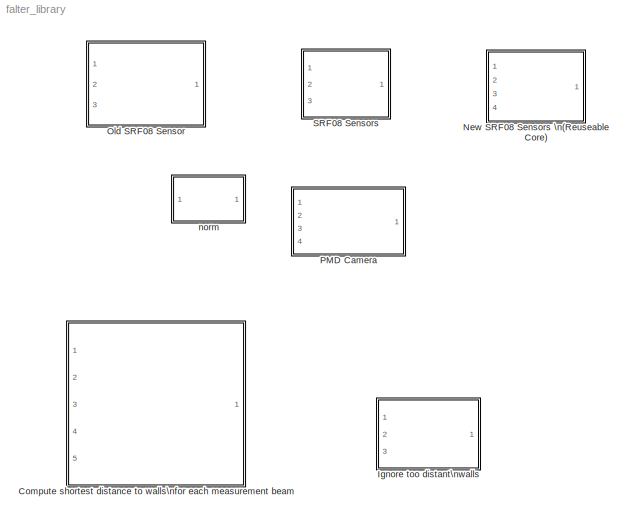
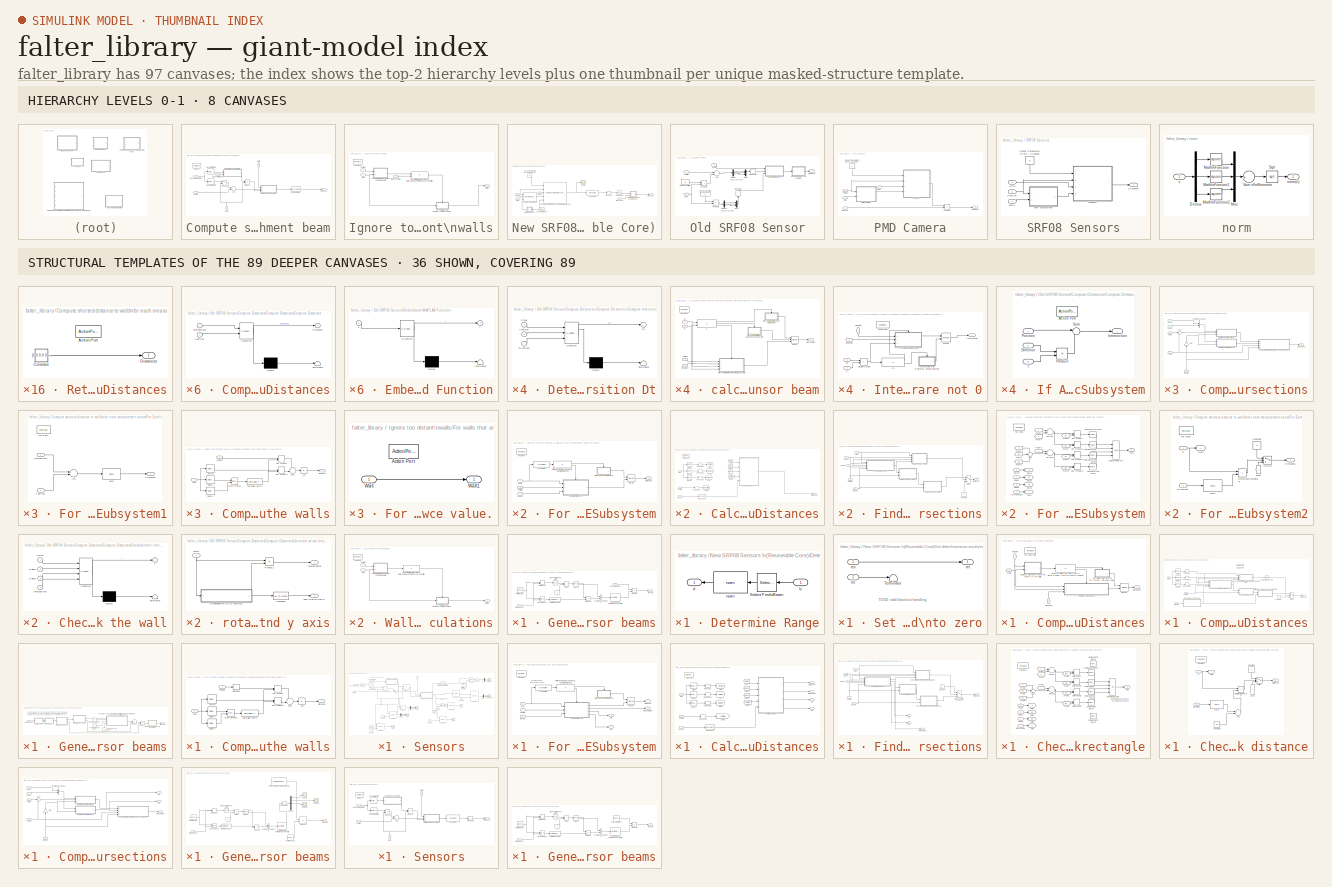
[diagram: thumbnail index - top-2 hierarchy levels (8 canvases) + 36 structural-template representatives of the remaining 89 canvases]
MODEL falter_library
KIND library
BLOCK [SubSystem] Compute shortest distance to walls\nfor each measurement beam
  FunctionWithSeparateData = off
  MaskHideContents = off
  MinAlgLoopOccurrences = off
  Opaque = off
  Ports = [5, 1]
  PropExecContextOutsideSubsystem = off
  RTWSystemCode = Auto
  RequestExecContextInheritance = off
  SID = 1421
  TreatAsAtomicUnit = on
BLOCK [Sum] Compute shortest distance to walls\nfor each measurement beam/Add
  InputSameDT = off
  OutDataTypeStr = Inherit: Inherit via internal rule
  Ports = [2, 1]
  SID = 1427
  SaturateOnIntegerOverflow = off
BLOCK [MATLABFcn] Compute shortest distance to walls\nfor each measurement beam/Column min (!= 0)
  MATLABFcn = columnMinNotNull
  Ports = [1, 1]
  SID = 1428
BLOCK [Inport] Compute shortest distance to walls\nfor each measurement beam/DCM
  IconDisplay = Port number
  Partition = off
  Port = 3
  SID = 1424
BLOCK [Outport] Compute shortest distance to walls\nfor each measurement beam/Distances
  ConcatenationDimension = 1
  IconDisplay = Port number
  SID = 1596
BLOCK [ForEach] Compute shortest distance to walls\nfor each measurement beam/For Each
  DisableCoverage = on
  IndexMode = One-based
  Ports = []
  SID = 1429
BLOCK [SubSystem] Compute shortest distance to walls\nfor each measurement beam/For Each\nSubsystem
  FunctionWithSeparateData = off
  MaskHideContents = off
  MinAlgLoopOccurrences = off
  Opaque = off
  Ports = [3, 1]
  PropExecContextOutsideSubsystem = off
  RTWSystemCode = Auto
  RequestExecContextInheritance = off
  SID = 1430
  TreatAsAtomicUnit = on
BLOCK [SubSystem] Compute shortest distance to walls\nfor each measurement beam/For Each\nSubsystem/Calculate Distances
  FunctionWithSeparateData = off
  MaskHideContents = off
  MinAlgLoopOccurrences = off
  Opaque = off
  Ports = [3, 1, 0, 0, 0, 0, 0, 1]
  PropExecContextOutsideSubsystem = off
  RTWSystemCode = Auto
  RequestExecContextInheritance = off
  SID = 1434
  TreatAsAtomicUnit = on
BLOCK [ActionPort] Compute shortest distance to walls\nfor each measurement beam/For Each\nSubsystem/Calculate Distances/Action Port
  SID = 1438
BLOCK [Outport] Compute shortest distance to walls\nfor each measurement beam/For Each\nSubsystem/Calculate Distances/Distances
  IconDisplay = Port number
  SID = 1566
BLOCK [Selector] Compute shortest distance to walls\nfor each measurement beam/For Each\nSubsystem/Calculate Distances/Edge 1
  IndexOptions = Select all,Index vector (dialog)
  Indices = [1 2 3],[4 5 6]
  InputPortWidth = 3
  NumberOfDimensions = 2
  OutputSizes = 1,1
  Ports = [1, 1]
  SID = 1439
BLOCK [Selector] Compute shortest distance to walls\nfor each measurement beam/For Each\nSubsystem/Calculate Distances/Edge 2
  IndexOptions = Select all,Index vector (dialog)
  Indices = [1 2 3],[7 8 9]
  InputPortWidth = 3
  NumberOfDimensions = 2
  OutputSizes = 1,1
  Ports = [1, 1]
  SID = 1440
BLOCK [SubSystem] Compute shortest distance to walls\nfor each measurement beam/For Each\nSubsystem/Calculate Distances/Find Intersections
  FunctionWithSeparateData = off
  MaskHideContents = off
  MinAlgLoopOccurrences = off
  Opaque = off
  Ports = [5, 1]
  PropExecContextOutsideSubsystem = off
  RTWSystemCode = Auto
  RequestExecContextInheritance = off
  SID = 1441
BLOCK [Inport] Compute shortest distance to walls\nfor each measurement beam/For Each\nSubsystem/Calculate Distances/Find Intersections/Beams
  IconDisplay = Port number
  Port = 5
  SID = 1446
BLOCK [SubSystem] Compute shortest distance to walls\nfor each measurement beam/For Each\nSubsystem/Calculate Distances/Find Intersections/Compute Intersections
  FunctionWithSeparateData = off
  MaskHideContents = off
  MinAlgLoopOccurrences = off
  Opaque = off
  Ports = [5, 1]
  PropExecContextOutsideSubsystem = off
  RTWSystemCode = Auto
  RequestExecContextInheritance = off
  SID = 1447
BLOCK [SubSystem] Compute shortest distance to walls\nfor each measurement beam/For Each\nSubsystem/Calculate Distances/Find Intersections/Compute Intersections/Determinates with directions D
  ErrorFcn = Stateflow.Translate.translate
  FunctionWithSeparateData = off
  MaskHideContents = off
  MinAlgLoopOccurrences = off
  Opaque = off
  PermitHierarchicalResolution = ExplicitOnly
  Ports = [2, 1]
  PropExecContextOutsideSubsystem = off
  RTWSystemCode = Auto
  RequestExecContextInheritance = off
  SFBlockType = MATLAB Function
  SID = 1453
  TreatAsAtomicUnit = on
BLOCK [Demux] Compute shortest distance to walls\nfor each measurement beam/For Each\nSubsystem/Calculate Distances/Find Intersections/Compute Intersections/Determinates with directions D/ Demux 
  Outputs = 1
  Ports = [1, 1]
  SID = 1453::20
BLOCK [S-Function] Compute shortest distance to walls\nfor each measurement beam/For Each\nSubsystem/Calculate Distances/Find Intersections/Compute Intersections/Determinates with directions D/ SFunction 
  EnableBusSupport = off
  FunctionName = sf_sfun
  PortCounts = [2 2]
  Ports = [2, 2]
  SID = 1453::19
  Tag = Stateflow S-Function falter_library 2
BLOCK [Terminator] Compute shortest distance to walls\nfor each measurement beam/For Each\nSubsystem/Calculate Distances/Find Intersections/Compute Intersections/Determinates with directions D/ Terminator 
  SID = 1453::21
BLOCK [Outport] Compute shortest distance to walls\nfor each measurement beam/For Each\nSubsystem/Calculate Distances/Find Intersections/Compute Intersections/Determinates with directions D/D
  IconDisplay = Port number
  SID = 1453::5
BLOCK [Inport] Compute shortest distance to walls\nfor each measurement beam/For Each\nSubsystem/Calculate Distances/Find Intersections/Compute Intersections/Determinates with directions D/Directions
  IconDisplay = Port number
  Port = 2
  SID = 1453::18
BLOCK [Inport] Compute shortest distance to walls\nfor each measurement beam/For Each\nSubsystem/Calculate Distances/Find Intersections/Compute Intersections/Determinates with directions D/Plane
  IconDisplay = Port number
  SID = 1453::1
BLOCK [SubSystem] Compute shortest distance to walls\nfor each measurement beam/For Each\nSubsystem/Calculate Distances/Find Intersections/Compute Intersections/Determinates with position Dt
  ErrorFcn = Stateflow.Translate.translate
  FunctionWithSeparateData = off
  MaskHideContents = off
  MinAlgLoopOccurrences = off
  Opaque = off
  PermitHierarchicalResolution = ExplicitOnly
  Ports = [3, 1]
  PropExecContextOutsideSubsystem = off
  RTWSystemCode = Auto
  RequestExecContextInheritance = off
  SFBlockType = MATLAB Function
  SID = 1454
  TreatAsAtomicUnit = on
BLOCK [Demux] Compute shortest distance to walls\nfor each measurement beam/For Each\nSubsystem/Calculate Distances/Find Intersections/Compute Intersections/Determinates with position Dt/ Demux 
  Outputs = 1
  Ports = [1, 1]
  SID = 1454::21
BLOCK [S-Function] Compute shortest distance to walls\nfor each measurement beam/For Each\nSubsystem/Calculate Distances/Find Intersections/Compute Intersections/Determinates with position Dt/ SFunction 
  EnableBusSupport = off
  FunctionName = sf_sfun
  PortCounts = [3 2]
  Ports = [3, 2]
  SID = 1454::20
  Tag = Stateflow S-Function falter_library 3
BLOCK [Terminator] Compute shortest distance to walls\nfor each measurement beam/For Each\nSubsystem/Calculate Distances/Find Intersections/Compute Intersections/Determinates with position Dt/ Terminator 
  SID = 1454::22
BLOCK [Inport] Compute shortest distance to walls\nfor each measurement beam/For Each\nSubsystem/Calculate Distances/Find Intersections/Compute Intersections/Determinates with position Dt/Directions
  IconDisplay = Port number
  Port = 3
  SID = 1454::19
BLOCK [Outport] Compute shortest distance to walls\nfor each measurement beam/For Each\nSubsystem/Calculate Distances/Find Intersections/Compute Intersections/Determinates with position Dt/Dt
  IconDisplay = Port number
  SID = 1454::5
BLOCK [Inport] Compute shortest distance to walls\nfor each measurement beam/For Each\nSubsystem/Calculate Distances/Find Intersections/Compute Intersections/Determinates with position Dt/Plane
  IconDisplay = Port number
  SID = 1454::1
BLOCK [Inport] Compute shortest distance to walls\nfor each measurement beam/For Each\nSubsystem/Calculate Distances/Find Intersections/Compute Intersections/Determinates with position Dt/Position
  IconDisplay = Port number
  Port = 2
  SID = 1454::18
BLOCK [Inport] Compute shortest distance to walls\nfor each measurement beam/For Each\nSubsystem/Calculate Distances/Find Intersections/Compute Intersections/Direction
  IconDisplay = Port number
  Port = 5
  SID = 1452
BLOCK [Inport] Compute shortest distance to walls\nfor each measurement beam/For Each\nSubsystem/Calculate Distances/Find Intersections/Compute Intersections/Edge 1
  IconDisplay = Port number
  Port = 2
  SID = 1449
BLOCK [Inport] Compute shortest distance to walls\nfor each measurement beam/For Each\nSubsystem/Calculate Distances/Find Intersections/Compute Intersections/Edge 2
  IconDisplay = Port number
  Port = 3
  SID = 1450
BLOCK [Gain] Compute shortest distance to walls\nfor each measurement beam/For Each\nSubsystem/Calculate Distances/Find Intersections/Compute Intersections/Gain
  Gain = -1
  OutDataTypeStr = Inherit: Inherit via internal rule
  ParamDataTypeStr = Inherit: Inherit via internal rule
  SID = 1455
  SaturateOnIntegerOverflow = off
BLOCK [Outport] Compute shortest distance to walls\nfor each measurement beam/For Each\nSubsystem/Calculate Distances/Find Intersections/Compute Intersections/Intersections
  IconDisplay = Port number
  SID = 1497
BLOCK [Inport] Compute shortest distance to walls\nfor each measurement beam/For Each\nSubsystem/Calculate Distances/Find Intersections/Compute Intersections/Position
  IconDisplay = Port number
  Port = 4
  SID = 1451
BLOCK [Sum] Compute shortest distance to walls\nfor each measurement beam/For Each\nSubsystem/Calculate Distances/Find Intersections/Compute Intersections/Sum
  IconShape = round
  InputSameDT = off
  Inputs = |-+
  OutDataTypeStr = Inherit: Inherit via internal rule
  Ports = [2, 1]
  SID = 1456
  SaturateOnIntegerOverflow = off
BLOCK [Concatenate] Compute shortest distance to walls\nfor each measurement beam/For Each\nSubsystem/Calculate Distances/Find Intersections/Compute Intersections/Vector\nConcatenate
  ConcatenateDimension = 2
  Mode = Multidimensional array
  Ports = [2, 1]
  SID = 1457
BLOCK [Inport] Compute shortest distance to walls\nfor each measurement beam/For Each\nSubsystem/Calculate Distances/Find Intersections/Compute Intersections/Vertex
  IconDisplay = Port number
  SID = 1448
BLOCK [SubSystem] Compute shortest distance to walls\nfor each measurement beam/For Each\nSubsystem/Calculate Distances/Find Intersections/Compute Intersections/calculate intersection for\nevery sensor beam
  FunctionWithSeparateData = off
  MaskHideContents = off
  MinAlgLoopOccurrences = off
  Opaque = off
  Ports = [4, 1]
  PropExecContextOutsideSubsystem = off
  RTWSystemCode = Auto
  RequestExecContextInheritance = off
  SID = 1458
  TreatAsAtomicUnit = on
BLOCK [Inport] Compute shortest distance to walls\nfor each measurement beam/For Each\nSubsystem/Calculate Distances/Find Intersections/Compute Intersections/calculate intersection for\nevery sensor beam/D
  IconDisplay = Port number
  Partition = on
  PartitionDimension = 1
  PartitionWidth = 1
  Port = 2
  SID = 1460
BLOCK [Inport] Compute shortest distance to walls\nfor each measurement beam/For Each\nSubsystem/Calculate Distances/Find Intersections/Compute Intersections/calculate intersection for\nevery sensor beam/Directions
  IconDisplay = Port number
  Partition = on
  PartitionDimension = 2
  PartitionWidth = 1
  Port = 4
  SID = 1462
BLOCK [Inport] Compute shortest distance to walls\nfor each measurement beam/For Each\nSubsystem/Calculate Distances/Find Intersections/Compute Intersections/calculate intersection for\nevery sensor beam/Dt
  IconDisplay = Port number
  Partition = on
  PartitionDimension = 1
  PartitionWidth = 1
  SID = 1459
BLOCK [ForEach] Compute shortest distance to walls\nfor each measurement beam/For Each\nSubsystem/Calculate Distances/Find Intersections/Compute Intersections/calculate intersection for\nevery sensor beam/For Each
  DisableCoverage = on
  IndexMode = One-based
  Ports = []
  SID = 1463
BLOCK [If] Compute shortest distance to walls\nfor each measurement beam/For Each\nSubsystem/Calculate Distances/Find Intersections/Compute Intersections/calculate intersection for\nevery sensor beam/If
  ElseIfExpressions = u1 ~= 0 & u2 == 0
  IfExpression = u1 == 0 & u2 == 0
  NumInputs = 2
  Ports = [2, 3]
  SID = 1464
BLOCK [SubSystem] Compute shortest distance to walls\nfor each measurement beam/For Each\nSubsystem/Calculate Distances/Find Intersections/Compute Intersections/calculate intersection for\nevery sensor beam/Intersection if both\ndeterminates are not 0
  FunctionWithSeparateData = off
  MaskHideContents = off
  MinAlgLoopOccurrences = off
  Opaque = off
  Ports = [4, 1, 0, 0, 0, 0, 0, 1]
  PropExecContextOutsideSubsystem = off
  RTWSystemCode = Auto
  RequestExecContextInheritance = off
  SID = 1465
  TreatAsAtomicUnit = on
BLOCK [ActionPort] Compute shortest distance to walls\nfor each measurement beam/For Each\nSubsystem/Calculate Distances/Find Intersections/Compute Intersections/calculate intersection for\nevery sensor beam/Intersection if both\ndeterminates are not 0/Action Port
  SID = 1470
BLOCK [Inport] Compute shortest distance to walls\nfor each measurement beam/For Each\nSubsystem/Calculate Distances/Find Intersections/Compute Intersections/calculate intersection for\nevery sensor beam/Intersection if both\ndeterminates are not 0/D
  IconDisplay = Port number
  Port = 2
  SID = 1467
BLOCK [Inport] Compute shortest distance to walls\nfor each measurement beam/For Each\nSubsystem/Calculate Distances/Find Intersections/Compute Intersections/calculate intersection for\nevery sensor beam/Intersection if both\ndeterminates are not 0/Direction
  IconDisplay = Port number
  Port = 4
  SID = 1469
BLOCK [Inport] Compute shortest distance to walls\nfor each measurement beam/For Each\nSubsystem/Calculate Distances/Find Intersections/Compute Intersections/calculate intersection for\nevery sensor beam/Intersection if both\ndeterminates are not 0/Dt
  IconDisplay = Port number
  SID = 1466
BLOCK [SubSystem] Compute shortest distance to walls\nfor each measurement beam/For Each\nSubsystem/Calculate Distances/Find Intersections/Compute Intersections/calculate intersection for\nevery sensor beam/Intersection if both\ndeterminates are not 0/If Action\nSubsystem
  FunctionWithSeparateData = off
  MaskHideContents = off
  MinAlgLoopOccurrences = off
  Opaque = off
  Ports = [3, 1, 0, 0, 0, 0, 0, 1]
  PropExecContextOutsideSubsystem = off
  RTWSystemCode = Auto
  RequestExecContextInheritance = off
  SID = 1471
  TreatAsAtomicUnit = on
BLOCK [ActionPort] Compute shortest distance to walls\nfor each measurement beam/For Each\nSubsystem/Calculate Distances/Find Intersections/Compute Intersections/calculate intersection for\nevery sensor beam/Intersection if both\ndeterminates are not 0/If Action\nSubsystem/Action Port
  SID = 1475
BLOCK [Inport] Compute shortest distance to walls\nfor each measurement beam/For Each\nSubsystem/Calculate Distances/Find Intersections/Compute Intersections/calculate intersection for\nevery sensor beam/Intersection if both\ndeterminates are not 0/If Action\nSubsystem/Direction
  IconDisplay = Port number
  Port = 2
  SID = 1473
BLOCK [Outport] Compute shortest distance to walls\nfor each measurement beam/For Each\nSubsystem/Calculate Distances/Find Intersections/Compute Intersections/calculate intersection for\nevery sensor beam/Intersection if both\ndeterminates are not 0/If Action\nSubsystem/Intersection
  IconDisplay = Port number
  SID = 1478
BLOCK [Inport] Compute shortest distance to walls\nfor each measurement beam/For Each\nSubsystem/Calculate Distances/Find Intersections/Compute Intersections/calculate intersection for\nevery sensor beam/Intersection if both\ndeterminates are not 0/If Action\nSubsystem/Position
  IconDisplay = Port number
  SID = 1472
BLOCK [Product] Compute shortest distance to walls\nfor each measurement beam/For Each\nSubsystem/Calculate Distances/Find Intersections/Compute Intersections/calculate intersection for\nevery sensor beam/Intersection if both\ndeterminates are not 0/If Action\nSubsystem/Product
  InputSameDT = off
  Inputs = **
  OutDataTypeStr = Inherit: Inherit via internal rule
  Ports = [2, 1]
  RndMeth = Floor
  SID = 1476
  SaturateOnIntegerOverflow = off
BLOCK [Sum] Compute shortest distance to walls\nfor each measurement beam/For Each\nSubsystem/Calculate Distances/Find Intersections/Compute Intersections/calculate intersection for\nevery sensor beam/Intersection if both\ndeterminates are not 0/If Action\nSubsystem/Sum
  IconShape = round
  InputSameDT = off
  Inputs = |++
  OutDataTypeStr = Inherit: Inherit via internal rule
  Ports = [2, 1]
  SID = 1477
  SaturateOnIntegerOverflow = off
BLOCK [Inport] Compute shortest distance to walls\nfor each measurement beam/For Each\nSubsystem/Calculate Distances/Find Intersections/Compute Intersections/calculate intersection for\nevery sensor beam/Intersection if both\ndeterminates are not 0/If Action\nSubsystem/t
  IconDisplay = Port number
  Port = 3
  SID = 1474
BLOCK [If] Compute shortest distance to walls\nfor each measurement beam/For Each\nSubsystem/Calculate Distances/Find Intersections/Compute Intersections/calculate intersection for\nevery sensor beam/Intersection if both\ndeterminates are not 0/If1
  Ports = [1, 2]
  SID = 1479
BLOCK [Outport] Compute shortest distance to walls\nfor each measurement beam/For Each\nSubsystem/Calculate Distances/Find Intersections/Compute Intersections/calculate intersection for\nevery sensor beam/Intersection if both\ndeterminates are not 0/Intersection
  IconDisplay = Port number
  InitialOutput = [0;0;0]
  SID = 1486
BLOCK [SubSystem] Compute shortest distance to walls\nfor each measurement beam/For Each\nSubsystem/Calculate Distances/Find Intersections/Compute Intersections/calculate intersection for\nevery sensor beam/Intersection if both\ndeterminates are not 0/Intersection is inf if\nintersection point is\nin the wrong direction
  FunctionWithSeparateData = off
  MaskHideContents = off
  MinAlgLoopOccurrences = off
  Opaque = off
  Ports = [0, 1, 0, 0, 0, 0, 0, 1]
  PropExecContextOutsideSubsystem = off
  RTWSystemCode = Auto
  RequestExecContextInheritance = off
  SID = 1480
  TreatAsAtomicUnit = on
BLOCK [ActionPort] Compute shortest distance to walls\nfor each measurement beam/For Each\nSubsystem/Calculate Distances/Find Intersections/Compute Intersections/calculate intersection for\nevery sensor beam/Intersection if both\ndeterminates are not 0/Intersection is inf if\nintersection point is\nin the wrong direction/Action Port
  SID = 1481
BLOCK [Constant] Compute shortest distance to walls\nfor each measurement beam/For Each\nSubsystem/Calculate Distances/Find Intersections/Compute Intersections/calculate intersection for\nevery sensor beam/Intersection if both\ndeterminates are not 0/Intersection is inf if\nintersection point is\nin the wrong direction/Constant
  SID = 1482
  Value = [inf;inf;inf]
BLOCK [Outport] Compute shortest distance to walls\nfor each measurement beam/For Each\nSubsystem/Calculate Distances/Find Intersections/Compute Intersections/calculate intersection for\nevery sensor beam/Intersection if both\ndeterminates are not 0/Intersection is inf if\nintersection point is\nin the wrong direction/Intersection
  IconDisplay = Port number
  InitialOutput = [0;0;0]
  SID = 1483
BLOCK [Merge] Compute shortest distance to walls\nfor each measurement beam/For Each\nSubsystem/Calculate Distances/Find Intersections/Compute Intersections/calculate intersection for\nevery sensor beam/Intersection if both\ndeterminates are not 0/Merge
  InitialOutput = [0;0;0]
  Ports = [2, 1]
  SID = 1484
BLOCK [Inport] Compute shortest distance to walls\nfor each measurement beam/For Each\nSubsystem/Calculate Distances/Find Intersections/Compute Intersections/calculate intersection for\nevery sensor beam/Intersection if both\ndeterminates are not 0/Position
  IconDisplay = Port number
  Port = 3
  SID = 1468
BLOCK [Product] Compute shortest distance to walls\nfor each measurement beam/For Each\nSubsystem/Calculate Distances/Find Intersections/Compute Intersections/calculate intersection for\nevery sensor beam/Intersection if both\ndeterminates are not 0/calculate scalar
  InputSameDT = off
  Inputs = */
  OutDataTypeStr = Inherit: Inherit via internal rule
  Ports = [2, 1]
  RndMeth = Floor
  SID = 1485
  SaturateOnIntegerOverflow = off
BLOCK [SubSystem] Compute shortest distance to walls\nfor each measurement beam/For Each\nSubsystem/Calculate Distances/Find Intersections/Compute Intersections/calculate intersection for\nevery sensor beam/Intersection is 0 if\nsensor is in the plane
  FunctionWithSeparateData = off
  MaskHideContents = off
  MinAlgLoopOccurrences = off
  Opaque = off
  Ports = [0, 1, 0, 0, 0, 0, 0, 1]
  PropExecContextOutsideSubsystem = off
  RTWSystemCode = Auto
  RequestExecContextInheritance = off
  SID = 1487
  TreatAsAtomicUnit = on
BLOCK [ActionPort] Compute shortest distance to walls\nfor each measurement beam/For Each\nSubsystem/Calculate Distances/Find Intersections/Compute Intersections/calculate intersection for\nevery sensor beam/Intersection is 0 if\nsensor is in the plane/Action Port
  SID = 1488
BLOCK [Constant] Compute shortest distance to walls\nfor each measurement beam/For Each\nSubsystem/Calculate Distances/Find Intersections/Compute Intersections/calculate intersection for\nevery sensor beam/Intersection is 0 if\nsensor is in the plane/Constant
  SID = 1489
  Value = [0;0;0]
BLOCK [Outport] Compute shortest distance to walls\nfor each measurement beam/For Each\nSubsystem/Calculate Distances/Find Intersections/Compute Intersections/calculate intersection for\nevery sensor beam/Intersection is 0 if\nsensor is in the plane/Intersection
  IconDisplay = Port number
  InitialOutput = [0;0;0]
  SID = 1490
BLOCK [SubSystem] Compute shortest distance to walls\nfor each measurement beam/For Each\nSubsystem/Calculate Distances/Find Intersections/Compute Intersections/calculate intersection for\nevery sensor beam/Intersection is inf if\nplane and sensor are paralell
  FunctionWithSeparateData = off
  MaskHideContents = off
  MinAlgLoopOccurrences = off
  Opaque = off
  Ports = [0, 1, 0, 0, 0, 0, 0, 1]
  PropExecContextOutsideSubsystem = off
  RTWSystemCode = Auto
  RequestExecContextInheritance = off
  SID = 1491
  TreatAsAtomicUnit = on
BLOCK [ActionPort] Compute shortest distance to walls\nfor each measurement beam/For Each\nSubsystem/Calculate Distances/Find Intersections/Compute Intersections/calculate intersection for\nevery sensor beam/Intersection is inf if\nplane and sensor are paralell/Action Port
  SID = 1492
BLOCK [Constant] Compute shortest distance to walls\nfor each measurement beam/For Each\nSubsystem/Calculate Distances/Find Intersections/Compute Intersections/calculate intersection for\nevery sensor beam/Intersection is inf if\nplane and sensor are paralell/Constant
  SID = 1493
  Value = [inf;inf;inf]
BLOCK [Outport] Compute shortest distance to walls\nfor each measurement beam/For Each\nSubsystem/Calculate Distances/Find Intersections/Compute Intersections/calculate intersection for\nevery sensor beam/Intersection is inf if\nplane and sensor are paralell/Intersection
  IconDisplay = Port number
  InitialOutput = [0;0;0]
  SID = 1494
BLOCK [Outport] Compute shortest distance to walls\nfor each measurement beam/For Each\nSubsystem/Calculate Distances/Find Intersections/Compute Intersections/calculate intersection for\nevery sensor beam/Intersections
  ConcatenationDimension = 2
  IconDisplay = Port number
  SID = 1496
BLOCK [Merge] Compute shortest distance to walls\nfor each measurement beam/For Each\nSubsystem/Calculate Distances/Find Intersections/Compute Intersections/calculate intersection for\nevery sensor beam/Merge
  InitialOutput = [0;0;0]
  Inputs = 3
  Ports = [3, 1]
  SID = 1495
BLOCK [Inport] Compute shortest distance to walls\nfor each measurement beam/For Each\nSubsystem/Calculate Distances/Find Intersections/Compute Intersections/calculate intersection for\nevery sensor beam/Position
  IconDisplay = Port number
  Partition = off
  Port = 3
  SID = 1461
BLOCK [Constant] Compute shortest distance to walls\nfor each measurement beam/For Each\nSubsystem/Calculate Distances/Find Intersections/Constant
  SID = 1498
  Value = 0
BLOCK [Outport] Compute shortest distance to walls\nfor each measurement beam/For Each\nSubsystem/Calculate Distances/Find Intersections/Distances
  IconDisplay = Port number
  SID = 1551
BLOCK [Inport] Compute shortest distance to walls\nfor each measurement beam/For Each\nSubsystem/Calculate Distances/Find Intersections/Edge 1
  IconDisplay = Port number
  Port = 2
  SID = 1443
BLOCK [Inport] Compute shortest distance to walls\nfor each measurement beam/For Each\nSubsystem/Calculate Distances/Find Intersections/Edge 2
  IconDisplay = Port number
  Port = 3
  SID = 1444
BLOCK [SubSystem] Compute shortest distance to walls\nfor each measurement beam/For Each\nSubsystem/Calculate Distances/Find Intersections/For Each\nSubsystem
  FunctionWithSeparateData = off
  MaskHideContents = off
  MinAlgLoopOccurrences = off
  Opaque = off
  Ports = [4, 1]
  PropExecContextOutsideSubsystem = off
  RTWSystemCode = Auto
  RequestExecContextInheritance = off
  SID = 1499
  TreatAsAtomicUnit = on
BLOCK [Reference] Compute shortest distance to walls\nfor each measurement beam/For Each\nSubsystem/Calculate Distances/Find Intersections/For Each\nSubsystem/Compare\nTo Zero  REF=simulink/Logic and Bit\nOperations/Compare\nTo Zero
  OutDataTypeStr = boolean
  Ports = [1, 1]
  SID = 1504
  SourceBlock = simulink/Logic and Bit\nOperations/Compare\nTo Zero
  SourceType = Compare To Zero
  ZeroCross = on
  relop = >=
BLOCK [Reference] Compute shortest distance to walls\nfor each measurement beam/For Each\nSubsystem/Calculate Distances/Find Intersections/For Each\nSubsystem/Compare\nTo Zero1  REF=simulink/Logic and Bit\nOperations/Compare\nTo Zero
  OutDataTypeStr = boolean
  Ports = [1, 1]
  SID = 1505
  SourceBlock = simulink/Logic and Bit\nOperations/Compare\nTo Zero
  SourceType = Compare To Zero
  ZeroCross = on
  relop = >=
BLOCK [Reference] Compute shortest distance to walls\nfor each measurement beam/For Each\nSubsystem/Calculate Distances/Find Intersections/For Each\nSubsystem/Compare\nTo Zero2  REF=simulink/Logic and Bit\nOperations/Compare\nTo Zero
  OutDataTypeStr = boolean
  Ports = [1, 1]
  SID = 1506
  SourceBlock = simulink/Logic and Bit\nOperations/Compare\nTo Zero
  SourceType = Compare To Zero
  ZeroCross = on
  relop = <=
BLOCK [Reference] Compute shortest distance to walls\nfor each measurement beam/For Each\nSubsystem/Calculate Distances/Find Intersections/For Each\nSubsystem/Compare\nTo Zero3  REF=simulink/Logic and Bit\nOperations/Compare\nTo Zero
  OutDataTypeStr = boolean
  Ports = [1, 1]
  SID = 1507
  SourceBlock = simulink/Logic and Bit\nOperations/Compare\nTo Zero
  SourceType = Compare To Zero
  ZeroCross = on
  relop = <=
BLOCK [DotProduct] Compute shortest distance to walls\nfor each measurement beam/For Each\nSubsystem/Calculate Distances/Find Intersections/For Each\nSubsystem/Dot Product
  OutDataTypeStr = Inherit: Inherit via internal rule
  SID = 1508
BLOCK [DotProduct] Compute shortest distance to walls\nfor each measurement beam/For Each\nSubsystem/Calculate Distances/Find Intersections/For Each\nSubsystem/Dot Product1
  OutDataTypeStr = Inherit: Inherit via internal rule
  SID = 1509
BLOCK [DotProduct] Compute shortest distance to walls\nfor each measurement beam/For Each\nSubsystem/Calculate Distances/Find Intersections/For Each\nSubsystem/Dot Product2
  OutDataTypeStr = Inherit: Inherit via internal rule
  SID = 1510
BLOCK [DotProduct] Compute shortest distance to walls\nfor each measurement beam/For Each\nSubsystem/Calculate Distances/Find Intersections/For Each\nSubsystem/Dot Product3
  OutDataTypeStr = Inherit: Inherit via internal rule
  SID = 1511
BLOCK [Inport] Compute shortest distance to walls\nfor each measurement beam/For Each\nSubsystem/Calculate Distances/Find Intersections/For Each\nSubsystem/Edge1
  IconDisplay = Port number
  Partition = off
  Port = 2
  SID = 1501
BLOCK [Inport] Compute shortest distance to walls\nfor each measurement beam/For Each\nSubsystem/Calculate Distances/Find Intersections/For Each\nSubsystem/Edge2
  IconDisplay = Port number
  Partition = off
  Port = 3
  SID = 1502
BLOCK [ForEach] Compute shortest distance to walls\nfor each measurement beam/For Each\nSubsystem/Calculate Distances/Find Intersections/For Each\nSubsystem/For Each
  DisableCoverage = on
  IndexMode = One-based
  Ports = []
  SID = 1512
BLOCK [From] Compute shortest distance to walls\nfor each measurement beam/For Each\nSubsystem/Calculate Distances/Find Intersections/For Each\nSubsystem/From
  GotoTag = I
  SID = 1513
BLOCK [From] Compute shortest distance to walls\nfor each measurement beam/For Each\nSubsystem/Calculate Distances/Find Intersections/For Each\nSubsystem/From1
  GotoTag = V
  SID = 1514
BLOCK [From] Compute shortest distance to walls\nfor each measurement beam/For Each\nSubsystem/Calculate Distances/Find Intersections/For Each\nSubsystem/From2
  GotoTag = E1
  SID = 1515
BLOCK [From] Compute shortest distance to walls\nfor each measurement beam/For Each\nSubsystem/Calculate Distances/Find Intersections/For Each\nSubsystem/From3
  GotoTag = E2
  SID = 1516
BLOCK [From] Compute shortest distance to walls\nfor each measurement beam/For Each\nSubsystem/Calculate Distances/Find Intersections/For Each\nSubsystem/From4
  GotoTag = V
  SID = 1517
BLOCK [From] Compute shortest distance to walls\nfor each measurement beam/For Each\nSubsystem/Calculate Distances/Find Intersections/For Each\nSubsystem/From5
  GotoTag = E1
  SID = 1518
BLOCK [From] Compute shortest distance to walls\nfor each measurement beam/For Each\nSubsystem/Calculate Distances/Find Intersections/For Each\nSubsystem/From6
  GotoTag = E1
  SID = 1519
BLOCK [From] Compute shortest distance to walls\nfor each measurement beam/For Each\nSubsystem/Calculate Distances/Find Intersections/For Each\nSubsystem/From7
  GotoTag = E2
  SID = 1520
BLOCK [From] Compute shortest distance to walls\nfor each measurement beam/For Each\nSubsystem/Calculate Distances/Find Intersections/For Each\nSubsystem/From8
  GotoTag = E2
  SID = 1521
BLOCK [From] Compute shortest distance to walls\nfor each measurement beam/For Each\nSubsystem/Calculate Distances/Find Intersections/For Each\nSubsystem/From9
  GotoTag = I
  SID = 1522
BLOCK [Goto] Compute shortest distance to walls\nfor each measurement beam/For Each\nSubsystem/Calculate Distances/Find Intersections/For Each\nSubsystem/Goto
  GotoTag = I
  SID = 1523
BLOCK [Goto] Compute shortest distance to walls\nfor each measurement beam/For Each\nSubsystem/Calculate Distances/Find Intersections/For Each\nSubsystem/Goto1
  GotoTag = V
  SID = 1524
BLOCK [Goto] Compute shortest distance to walls\nfor each measurement beam/For Each\nSubsystem/Calculate Distances/Find Intersections/For Each\nSubsystem/Goto2
  GotoTag = E1
  SID = 1525
BLOCK [Goto] Compute shortest distance to walls\nfor each measurement beam/For Each\nSubsystem/Calculate Distances/Find Intersections/For Each\nSubsystem/Goto3
  GotoTag = E2
  SID = 1526
BLOCK [Inport] Compute shortest distance to walls\nfor each measurement beam/For Each\nSubsystem/Calculate Distances/Find Intersections/For Each\nSubsystem/Intersections
  IconDisplay = Port number
  Partition = on
  PartitionDimension = 2
  PartitionWidth = 1
  Port = 4
  SID = 1503
BLOCK [Logic] Compute shortest distance to walls\nfor each measurement beam/For Each\nSubsystem/Calculate Distances/Find Intersections/For Each\nSubsystem/Logical\nOperator
  AllPortsSameDT = off
  Inputs = 4
  Operator = NXOR
  OutDataTypeStr = boolean
  Ports = [4, 1]
  SID = 1527
BLOCK [Outport] Compute shortest distance to walls\nfor each measurement beam/For Each\nSubsystem/Calculate Distances/Find Intersections/For Each\nSubsystem/Out1
  ConcatenationDimension = 2
  IconDisplay = Port number
  SID = 1531
BLOCK [Sum] Compute shortest distance to walls\nfor each measurement beam/For Each\nSubsystem/Calculate Distances/Find Intersections/For Each\nSubsystem/Sum
  IconShape = round
  InputSameDT = off
  Inputs = +++
  OutDataTypeStr = Inherit: Inherit via internal rule
  Ports = [3, 1]
  SID = 1528
  SaturateOnIntegerOverflow = off
BLOCK [Sum] Compute shortest distance to walls\nfor each measurement beam/For Each\nSubsystem/Calculate Distances/Find Intersections/For Each\nSubsystem/Sutract
  InputSameDT = off
  Inputs = +-
  OutDataTypeStr = Inherit: Inherit via internal rule
  Ports = [2, 1]
  SID = 1529
  SaturateOnIntegerOverflow = off
BLOCK [Sum] Compute shortest distance to walls\nfor each measurement beam/For Each\nSubsystem/Calculate Distances/Find Intersections/For Each\nSubsystem/Sutract1
  InputSameDT = off
  Inputs = +-
  OutDataTypeStr = Inherit: Inherit via internal rule
  Ports = [2, 1]
  SID = 1530
  SaturateOnIntegerOverflow = off
BLOCK [Inport] Compute shortest distance to walls\nfor each measurement beam/For Each\nSubsystem/Calculate Distances/Find Intersections/For Each\nSubsystem/Vertex
  IconDisplay = Port number
  Partition = off
  SID = 1500
BLOCK [SubSystem] Compute shortest distance to walls\nfor each measurement beam/For Each\nSubsystem/Calculate Distances/Find Intersections/For Each\nSubsystem1
  FunctionWithSeparateData = off
  MaskHideContents = off
  MinAlgLoopOccurrences = off
  Opaque = off
  Ports = [2, 1]
  PropExecContextOutsideSubsystem = off
  RTWSystemCode = Auto
  RequestExecContextInheritance = off
  SID = 1532
  TreatAsAtomicUnit = on
BLOCK [Sum] Compute shortest distance to walls\nfor each measurement beam/For Each\nSubsystem/Calculate Distances/Find Intersections/For Each\nSubsystem1/Add
  InputSameDT = off
  Inputs = +-
  OutDataTypeStr = Inherit: Inherit via internal rule
  Ports = [2, 1]
  SID = 1535
  SaturateOnIntegerOverflow = off
BLOCK [Outport] Compute shortest distance to walls\nfor each measurement beam/For Each\nSubsystem/Calculate Distances/Find Intersections/For Each\nSubsystem1/Distances
  ConcatenationDimension = 1
  IconDisplay = Port number
  SID = 1538
BLOCK [ForEach] Compute shortest distance to walls\nfor each measurement beam/For Each\nSubsystem/Calculate Distances/Find Intersections/For Each\nSubsystem1/For Each
  DisableCoverage = on
  IndexMode = One-based
  Ports = []
  SID = 1536
BLOCK [Inport] Compute shortest distance to walls\nfor each measurement beam/For Each\nSubsystem/Calculate Distances/Find Intersections/For Each\nSubsystem1/Intersections
  IconDisplay = Port number
  Partition = on
  PartitionDimension = 2
  PartitionWidth = 1
  SID = 1533
BLOCK [Inport] Compute shortest distance to walls\nfor each measurement beam/For Each\nSubsystem/Calculate Distances/Find Intersections/For Each\nSubsystem1/Position
  IconDisplay = Port number
  Partition = off
  Port = 2
  SID = 1534
BLOCK [Reference] Compute shortest distance to walls\nfor each measurement beam/For Each\nSubsystem/Calculate Distances/Find Intersections/For Each\nSubsystem1/norm  REF=falter_library/norm
  Ports = [1, 1]
  SID = 1537
  SourceBlock = falter_library/norm
  SourceType = SubSystem
BLOCK [SubSystem] Compute shortest distance to walls\nfor each measurement beam/For Each\nSubsystem/Calculate Distances/Find Intersections/For Each\nSubsystem2
  FunctionWithSeparateData = off
  MaskHideContents = off
  MinAlgLoopOccurrences = off
  Opaque = off
  Ports = [2, 1]
  PropExecContextOutsideSubsystem = off
  RTWSystemCode = Auto
  RequestExecContextInheritance = off
  SID = 1539
  TreatAsAtomicUnit = on
BLOCK [Constant] Compute shortest distance to walls\nfor each measurement beam/For Each\nSubsystem/Calculate Distances/Find Intersections/For Each\nSubsystem2/Constant
  SID = 1542
  Value = 0
BLOCK [Inport] Compute shortest distance to walls\nfor each measurement beam/For Each\nSubsystem/Calculate Distances/Find Intersections/For Each\nSubsystem2/D
  IconDisplay = Port number
  Partition = on
  PartitionDimension = 1
  PartitionWidth = 1
  SID = 1540
BLOCK [Inport] Compute shortest distance to walls\nfor each measurement beam/For Each\nSubsystem/Calculate Distances/Find Intersections/For Each\nSubsystem2/Directions
  IconDisplay = Port number
  Partition = on
  PartitionDimension = 2
  PartitionWidth = 1
  Port = 2
  SID = 1541
BLOCK [Outport] Compute shortest distance to walls\nfor each measurement beam/For Each\nSubsystem/Calculate Distances/Find Intersections/For Each\nSubsystem2/Distances
  ConcatenationDimension = 1
  IconDisplay = Port number
  SID = 1549
BLOCK [ForEach] Compute shortest distance to walls\nfor each measurement beam/For Each\nSubsystem/Calculate Distances/Find Intersections/For Each\nSubsystem2/For Each
  DisableCoverage = on
  IndexMode = One-based
  Ports = []
  SID = 1543
BLOCK [From] Compute shortest distance to walls\nfor each measurement beam/For Each\nSubsystem/Calculate Distances/Find Intersections/For Each\nSubsystem2/From
  SID = 1544
BLOCK [Goto] Compute shortest distance to walls\nfor each measurement beam/For Each\nSubsystem/Calculate Distances/Find Intersections/For Each\nSubsystem2/Goto
  SID = 1545
BLOCK [RelationalOperator] Compute shortest distance to walls\nfor each measurement beam/For Each\nSubsystem/Calculate Distances/Find Intersections/For Each\nSubsystem2/Relational\nOperator
  InputSameDT = off
  Operator = >
  OutDataTypeStr = boolean
  Ports = [2, 1]
  SID = 1546
BLOCK [Switch] Compute shortest distance to walls\nfor each measurement beam/For Each\nSubsystem/Calculate Distances/Find Intersections/For Each\nSubsystem2/Switch
  Criteria = u2 ~= 0
  InputSameDT = off
  SID = 1547
  SaturateOnIntegerOverflow = off
BLOCK [Reference] Compute shortest distance to walls\nfor each measurement beam/For Each\nSubsystem/Calculate Distances/Find Intersections/For Each\nSubsystem2/norm  REF=falter_library/norm
  Ports = [1, 1]
  SID = 1548
  SourceBlock = falter_library/norm
  SourceType = SubSystem
BLOCK [Inport] Compute shortest distance to walls\nfor each measurement beam/For Each\nSubsystem/Calculate Distances/Find Intersections/Position
  IconDisplay = Port number
  Port = 4
  SID = 1445
BLOCK [Switch] Compute shortest distance to walls\nfor each measurement beam/For Each\nSubsystem/Calculate Distances/Find Intersections/Switch
  Criteria = u2 ~= 0
  InputSameDT = off
  SID = 1550
  SaturateOnIntegerOverflow = off
BLOCK [Inport] Compute shortest distance to walls\nfor each measurement beam/For Each\nSubsystem/Calculate Distances/Find Intersections/Vertex
  IconDisplay = Port number
  SID = 1442
BLOCK [From] Compute shortest distance to walls\nfor each measurement beam/For Each\nSubsystem/Calculate Distances/From
  GotoTag = Vertex
  SID = 1552
BLOCK [From] Compute shortest distance to walls\nfor each measurement beam/For Each\nSubsystem/Calculate Distances/From1
  GotoTag = Edge1
  SID = 1553
BLOCK [From] Compute shortest distance to walls\nfor each measurement beam/For Each\nSubsystem/Calculate Distances/From2
  GotoTag = Edge2
  SID = 1554
BLOCK [From] Compute shortest distance to walls\nfor each measurement beam/For Each\nSubsystem/Calculate Distances/From3
  GotoTag = Position
  SID = 1555
BLOCK [Goto] Compute shortest distance to walls\nfor each measurement beam/For Each\nSubsystem/Calculate Distances/Goto
  GotoTag = Vertex
  SID = 1556
BLOCK [Goto] Compute shortest distance to walls\nfor each measurement beam/For Each\nSubsystem/Calculate Distances/Goto1
  GotoTag = Edge1
  SID = 1557
BLOCK [Goto] Compute shortest distance to walls\nfor each measurement beam/For Each\nSubsystem/Calculate Distances/Goto2
  GotoTag = Edge2
  SID = 1558
BLOCK [Goto] Compute shortest distance to walls\nfor each measurement beam/For Each\nSubsystem/Calculate Distances/Goto3
  GotoTag = Position
  SID = 1559
BLOCK [Inport] Compute shortest distance to walls\nfor each measurement beam/For Each\nSubsystem/Calculate Distances/Position
  IconDisplay = Port number
  Port = 2
  SID = 1436
BLOCK [Reshape] Compute shortest distance to walls\nfor each measurement beam/For Each\nSubsystem/Calculate Distances/Reshape
  Ports = [1, 1]
  SID = 1560
BLOCK [Reshape] Compute shortest distance to walls\nfor each measurement beam/For Each\nSubsystem/Calculate Distances/Reshape1
  Ports = [1, 1]
  SID = 1561
BLOCK [Reshape] Compute shortest distance to walls\nfor each measurement beam/For Each\nSubsystem/Calculate Distances/Reshape2
  Ports = [1, 1]
  SID = 1562
BLOCK [Reshape] Compute shortest distance to walls\nfor each measurement beam/For Each\nSubsystem/Calculate Distances/Reshape3
  Ports = [1, 1]
  SID = 1563
BLOCK [Inport] Compute shortest distance to walls\nfor each measurement beam/For Each\nSubsystem/Calculate Distances/Sensor
  IconDisplay = Port number
  Port = 3
  SID = 1437
BLOCK [Selector] Compute shortest distance to walls\nfor each measurement beam/For Each\nSubsystem/Calculate Distances/Vertex
  IndexOptions = Select all,Index vector (dialog)
  Indices = [1 2 3],[1 2 3]
  InputPortWidth = 3
  NumberOfDimensions = 2
  OutputSizes = 1,1
  Ports = [1, 1]
  SID = 1564
BLOCK [Inport] Compute shortest distance to walls\nfor each measurement beam/For Each\nSubsystem/Calculate Distances/Wall
  IconDisplay = Port number
  SID = 1435
BLOCK [MATLABFcn] Compute shortest distance to walls\nfor each measurement beam/For Each\nSubsystem/Calculate Distances/transpond
  MATLABFcn = '
  Output1D = off
  Ports = [1, 1]
  SID = 1565
BLOCK [Outport] Compute shortest distance to walls\nfor each measurement beam/For Each\nSubsystem/Distances
  ConcatenationDimension = 1
  IconDisplay = Port number
  SID = 1575
BLOCK [ForEach] Compute shortest distance to walls\nfor each measurement beam/For Each\nSubsystem/For Each
  DisableCoverage = on
  IndexMode = One-based
  Ports = []
  SID = 1567
BLOCK [If] Compute shortest distance to walls\nfor each measurement beam/For Each\nSubsystem/If wall consists of zeros\ndo not calculate distances
  IfExpression = u1 == 0
  Ports = [1, 2]
  SID = 1568
BLOCK [Merge] Compute shortest distance to walls\nfor each measurement beam/For Each\nSubsystem/Merge
  InitialOutput = [0 0 0 0 0 0 0 0 0 0 0 0 0 0 0 0 0]
  Ports = [2, 1]
  SID = 1569
BLOCK [Inport] Compute shortest distance to walls\nfor each measurement beam/For Each\nSubsystem/Position
  IconDisplay = Port number
  Partition = off
  Port = 2
  SID = 1432
BLOCK [SubSystem] Compute shortest distance to walls\nfor each measurement beam/For Each\nSubsystem/Return zeros as Distances
  FunctionWithSeparateData = off
  MaskHideContents = off
  MinAlgLoopOccurrences = off
  Opaque = off
  Ports = [0, 1, 0, 0, 0, 0, 0, 1]
  PropExecContextOutsideSubsystem = off
  RTWSystemCode = Auto
  RequestExecContextInheritance = off
  SID = 1570
  TreatAsAtomicUnit = on
BLOCK [ActionPort] Compute shortest distance to walls\nfor each measurement beam/For Each\nSubsystem/Return zeros as Distances/Action Port
  SID = 1571
BLOCK [Constant] Compute shortest distance to walls\nfor each measurement beam/For Each\nSubsystem/Return zeros as Distances/Constant
  SID = 1572
  Value = [0 0 0 0 0 0 0 0 0 0 0 0 0 0 0 0 0]
BLOCK [Outport] Compute shortest distance to walls\nfor each measurement beam/For Each\nSubsystem/Return zeros as Distances/Distances
  IconDisplay = Port number
  InitialOutput = [0 0 0 0 0 0 0 0 0 0 0 0 0 0 0 0 0]
  SID = 1573
BLOCK [S-Function] Compute shortest distance to walls\nfor each measurement beam/For Each\nSubsystem/S-Function
  EnableBusSupport = off
  FunctionName = checkForZeroWall
  Ports = [1, 1]
  SID = 1574
BLOCK [Inport] Compute shortest distance to walls\nfor each measurement beam/For Each\nSubsystem/Sensor
  IconDisplay = Port number
  Partition = off
  Port = 3
  SID = 1433
BLOCK [Inport] Compute shortest distance to walls\nfor each measurement beam/For Each\nSubsystem/Wall
  IconDisplay = Port number
  Partition = on
  PartitionDimension = 1
  PartitionWidth = 1
  SID = 1431
BLOCK [SubSystem] Compute shortest distance to walls\nfor each measurement beam/Generate sensor beams
  FunctionWithSeparateData = off
  MaskHideContents = off
  MinAlgLoopOccurrences = off
  Opaque = off
  Ports = [2, 1]
  PropExecContextOutsideSubsystem = off
  RTWSystemCode = Auto
  RequestExecContextInheritance = off
  SID = 1576
BLOCK [Constant] Compute shortest distance to walls\nfor each measurement beam/Generate sensor beams/2
  SID = 1579
  Value = 2
  VectorParams1D = off
BLOCK [Outport] Compute shortest distance to walls\nfor each measurement beam/Generate sensor beams/All beams
  IconDisplay = Port number
  SID = 1591
BLOCK [Reference] Compute shortest distance to walls\nfor each measurement beam/Generate sensor beams/Cross Product  REF=vrlib/Utilities/Cross Product
  Ports = [2, 1]
  SID = 1580
  SourceBlock = vrlib/Utilities/Cross Product
  SourceType = Cross Product
BLOCK [Product] Compute shortest distance to walls\nfor each measurement beam/Generate sensor beams/Divide
  InputSameDT = off
  Inputs = */
  OutDataTypeStr = Inherit: Inherit via internal rule
  Ports = [2, 1]
  RndMeth = Floor
  SID = 1581
  SaturateOnIntegerOverflow = off
BLOCK [DotProduct] Compute shortest distance to walls\nfor each measurement beam/Generate sensor beams/Dot Product
  OutDataTypeStr = Inherit: Inherit via internal rule
  SID = 1582
BLOCK [Inport] Compute shortest distance to walls\nfor each measurement beam/Generate sensor beams/Middle beam
  IconDisplay = Port number
  SID = 1577
BLOCK [Reference] Compute shortest distance to walls\nfor each measurement beam/Generate sensor beams/Normalize Vector  REF=vrlib/Utilities/Normalize Vector
  Ports = [1, 1]
  SID = 1583
  SourceBlock = vrlib/Utilities/Normalize Vector
  SourceType = Normalize Vector
  maxzero = 0
BLOCK [Product] Compute shortest distance to walls\nfor each measurement beam/Generate sensor beams/Product2
  InputSameDT = off
  Inputs = **
  OutDataTypeStr = Inherit: Inherit via internal rule
  Ports = [2, 1]
  RndMeth = Floor
  SID = 1584
  SaturateOnIntegerOverflow = off
BLOCK [Product] Compute shortest distance to walls\nfor each measurement beam/Generate sensor beams/Product3
  InputSameDT = off
  Multiplication = Matrix(*)
  OutDataTypeStr = Inherit: Inherit via internal rule
  Ports = [2, 1]
  SID = 1585
  SaturateOnIntegerOverflow = off
BLOCK [Reference] Compute shortest distance to walls\nfor each measurement beam/Generate sensor beams/Quaternions to \nDirection Cosine Matrix  REF=aerolibtransform2/Quaternions to \nDirection Cosine Matrix
  Ports = [1, 1]
  SID = 1586
  SourceBlock = aerolibtransform2/Quaternions to \nDirection Cosine Matrix
  SourceType = Quaternion2DCM
BLOCK [Constant] Compute shortest distance to walls\nfor each measurement beam/Generate sensor beams/Rotation goal
  SID = 1587
  Value = [1 0 0]
  VectorParams1D = off
BLOCK [Inport] Compute shortest distance to walls\nfor each measurement beam/Generate sensor beams/Sensor Prototype
  IconDisplay = Port number
  Port = 2
  SID = 1578
BLOCK [Reference] Compute shortest distance to walls\nfor each measurement beam/Generate sensor beams/SinCos  REF=aerolibobsolete/SinCos
  Ports = [1, 2]
  SID = 1588
  SourceBlock = aerolibobsolete/SinCos
  SourceType = SinCos
BLOCK [Trigonometry] Compute shortest distance to walls\nfor each measurement beam/Generate sensor beams/Trigonometric\nFunction
  Operator = acos
  Ports = [1, 1]
  SID = 1589
BLOCK [Concatenate] Compute shortest distance to walls\nfor each measurement beam/Generate sensor beams/Vector\nConcatenate
  Ports = [2, 1]
  SID = 1590
BLOCK [Inport] Compute shortest distance to walls\nfor each measurement beam/Position
  IconDisplay = Port number
  Partition = off
  Port = 2
  SID = 1423
BLOCK [Product] Compute shortest distance to walls\nfor each measurement beam/Product
  InputSameDT = off
  Multiplication = Matrix(*)
  OutDataTypeStr = Inherit: Inherit via internal rule
  Ports = [2, 1]
  SID = 1592
  SaturateOnIntegerOverflow = off
BLOCK [Product] Compute shortest distance to walls\nfor each measurement beam/Product1
  InputSameDT = off
  Multiplication = Matrix(*)
  OutDataTypeStr = Inherit: Inherit via internal rule
  Ports = [2, 1]
  SID = 1593
  SaturateOnIntegerOverflow = off
BLOCK [Selector] Compute shortest distance to walls\nfor each measurement beam/Sensor Direction
  IndexOptions = Index vector (dialog)
  Indices = [4 5 6]
  InputPortWidth = 6
  OutputSizes = 1
  Ports = [1, 1]
  SID = 1594
BLOCK [Inport] Compute shortest distance to walls\nfor each measurement beam/Sensor Parameters
  IconDisplay = Port number
  Partition = on
  PartitionDimension = 1
  PartitionWidth = 1
  SID = 1422
BLOCK [Selector] Compute shortest distance to walls\nfor each measurement beam/Sensor Position
  IndexOptions = Index vector (dialog)
  Indices = [1 2 3]
  InputPortWidth = 6
  OutputSizes = 1
  Ports = [1, 1]
  SID = 1595
BLOCK [Inport] Compute shortest distance to walls\nfor each measurement beam/Sensor Prototype
  IconDisplay = Port number
  Partition = off
  Port = 5
  SID = 1426
BLOCK [Inport] Compute shortest distance to walls\nfor each measurement beam/Walls
  IconDisplay = Port number
  Partition = off
  Port = 4
  SID = 1425
BLOCK [SubSystem] Ignore too distant\nwalls
  FunctionWithSeparateData = off
  MaskHideContents = off
  MinAlgLoopOccurrences = off
  Opaque = off
  Ports = [3, 1]
  PropExecContextOutsideSubsystem = off
  RTWSystemCode = Auto
  RequestExecContextInheritance = off
  SID = 1597
  TreatAsAtomicUnit = on
BLOCK [If] Ignore too distant\nwalls/Check if wall is not more than u2 meters\naway from the sensors position
  IfExpression = u1 <= u2
  NumInputs = 2
  Ports = [2, 1]
  SID = 1600
  ShowElse = off
BLOCK [SubSystem] Ignore too distant\nwalls/Compute distance from\nthe copter to the walls
  FunctionWithSeparateData = off
  MaskHideContents = off
  MinAlgLoopOccurrences = off
  Opaque = off
  Ports = [2, 1]
  PropExecContextOutsideSubsystem = off
  RTWSystemCode = Auto
  RequestExecContextInheritance = off
  SID = 1601
BLOCK [Abs] Ignore too distant\nwalls/Compute distance from\nthe copter to the walls/Abs
  SID = 1604
  SaturateOnIntegerOverflow = off
BLOCK [Reference] Ignore too distant\nwalls/Compute distance from\nthe copter to the walls/Cross Product  REF=vrlib/Utilities/Cross Product
  Ports = [2, 1]
  SID = 1605
  SourceBlock = vrlib/Utilities/Cross Product
  SourceType = Cross Product
BLOCK [Outport] Ignore too distant\nwalls/Compute distance from\nthe copter to the walls/Distance
  IconDisplay = Port number
  SID = 1613
BLOCK [DotProduct] Ignore too distant\nwalls/Compute distance from\nthe copter to the walls/Dot Product
  OutDataTypeStr = Inherit: Inherit via internal rule
  SID = 1606
BLOCK [DotProduct] Ignore too distant\nwalls/Compute distance from\nthe copter to the walls/Dot Product1
  OutDataTypeStr = Inherit: Inherit via internal rule
  SID = 1607
BLOCK [Selector] Ignore too distant\nwalls/Compute distance from\nthe copter to the walls/Edge 1
  IndexOptions = Select all,Index vector (dialog)
  Indices = [1 2 3],[4 5 6]
  InputPortWidth = 3
  NumberOfDimensions = 2
  OutputSizes = 1,1
  Ports = [1, 1]
  SID = 1608
BLOCK [Selector] Ignore too distant\nwalls/Compute distance from\nthe copter to the walls/Edge 2
  IndexOptions = Select all,Index vector (dialog)
  Indices = [1 2 3],[7 8 9]
  InputPortWidth = 3
  NumberOfDimensions = 2
  OutputSizes = 1,1
  Ports = [1, 1]
  SID = 1609
BLOCK [Reference] Ignore too distant\nwalls/Compute distance from\nthe copter to the walls/Normalize Vector  REF=vrlib/Utilities/Normalize Vector
  Ports = [1, 1]
  SID = 1610
  SourceBlock = vrlib/Utilities/Normalize Vector
  SourceType = Normalize Vector
  maxzero = 0
BLOCK [Inport] Ignore too distant\nwalls/Compute distance from\nthe copter to the walls/Position
  IconDisplay = Port number
  SID = 1602
BLOCK [Sum] Ignore too distant\nwalls/Compute distance from\nthe copter to the walls/Sum
  IconShape = round
  InputSameDT = off
  Inputs = +-|
  OutDataTypeStr = Inherit: Inherit via internal rule
  Ports = [2, 1]
  SID = 1611
  SaturateOnIntegerOverflow = off
BLOCK [Selector] Ignore too distant\nwalls/Compute distance from\nthe copter to the walls/Vertex
  IndexOptions = Select all,Index vector (dialog)
  Indices = [1 2 3],[1 2 3]
  InputPortWidth = 3
  NumberOfDimensions = 2
  OutputSizes = 1,1
  Ports = [1, 1]
  SID = 1612
BLOCK [Inport] Ignore too distant\nwalls/Compute distance from\nthe copter to the walls/Wall
  IconDisplay = Port number
  Port = 2
  SID = 1603
BLOCK [Inport] Ignore too distant\nwalls/Distance\nLimit
  IconDisplay = Port number
  Partition = off
  Port = 3
  SID = 1632
BLOCK [ForEach] Ignore too distant\nwalls/For Each
  DisableCoverage = on
  IndexMode = One-based
  Ports = []
  SID = 1614
BLOCK [SubSystem] Ignore too distant\nwalls/For walls that are to far,\ntake 0 as distance value.
  FunctionWithSeparateData = off
  MaskHideContents = off
  MinAlgLoopOccurrences = off
  Opaque = off
  Ports = [1, 1, 0, 0, 0, 0, 0, 1]
  PropExecContextOutsideSubsystem = off
  RTWSystemCode = Auto
  RequestExecContextInheritance = off
  SID = 1615
  TreatAsAtomicUnit = on
BLOCK [ActionPort] Ignore too distant\nwalls/For walls that are to far,\ntake 0 as distance value./Action Port
  SID = 1617
BLOCK [Inport] Ignore too distant\nwalls/For walls that are to far,\ntake 0 as distance value./Wall
  IconDisplay = Port number
  SID = 1616
BLOCK [Outport] Ignore too distant\nwalls/For walls that are to far,\ntake 0 as distance value./Wall1
  IconDisplay = Port number
  SID = 1618
BLOCK [Inport] Ignore too distant\nwalls/Position
  IconDisplay = Port number
  Partition = off
  SID = 1598
BLOCK [Inport] Ignore too distant\nwalls/Walls
  IconDisplay = Port number
  Partition = on
  PartitionDimension = 1
  PartitionWidth = 1
  Port = 2
  SID = 1599
BLOCK [Outport] Ignore too distant\nwalls/Walls1
  ConcatenationDimension = 1
  IconDisplay = Port number
  SID = 1619
BLOCK [SubSystem] New SRF08 Sensors \n(Reuseable Core)
  FunctionWithSeparateData = off
  MaskHideContents = off
  MinAlgLoopOccurrences = off
  Opaque = off
  Ports = [4, 1]
  PropExecContextOutsideSubsystem = off
  RTWSystemCode = Auto
  RequestExecContextInheritance = off
  SID = 1620
BLOCK [Inport] New SRF08 Sensors \n(Reuseable Core)/Blackouts
  IconDisplay = Port number
  Port = 4
  SID = 1850
  SampleTime = t
BLOCK [Reference] New SRF08 Sensors \n(Reuseable Core)/Compute shortest distances to walls\nfor all sensors  REF=falter_library/Compute shortest distance to walls\nfor each measurement beam
  Ports = [5, 1]
  SID = 1624
  SourceBlock = falter_library/Compute shortest distance to walls\nfor each measurement beam
  SourceType = SubSystem
BLOCK [Inport] New SRF08 Sensors \n(Reuseable Core)/DCM
  IconDisplay = Port number
  Port = 3
  SID = 1623
  SampleTime = t
BLOCK [SubSystem] New SRF08 Sensors \n(Reuseable Core)/Determine Range
  FunctionWithSeparateData = off
  MaskHideContents = off
  MinAlgLoopOccurrences = off
  Opaque = off
  Ports = [1, 1]
  PropExecContextOutsideSubsystem = off
  RTWSystemCode = Auto
  RequestExecContextInheritance = off
  SID = 1855
BLOCK [Selector] New SRF08 Sensors \n(Reuseable Core)/Determine Range/Select First\nBeam
  IndexOptions = Index vector (dialog),Index vector (dialog)
  Indices = 1,[1 2 3]
  InputPortWidth = 6
  NumberOfDimensions = 2
  OutputSizes = 1,1
  Ports = [1, 1]
  SID = 1637
BLOCK [Inport] New SRF08 Sensors \n(Reuseable Core)/Determine Range/b
  IconDisplay = Port number
  SID = 1856
BLOCK [Outport] New SRF08 Sensors \n(Reuseable Core)/Determine Range/d
  IconDisplay = Port number
  SID = 1857
BLOCK [Reference] New SRF08 Sensors \n(Reuseable Core)/Determine Range/norm  REF=falter_library/norm
  Ports = [1, 1]
  SID = 1635
  SourceBlock = falter_library/norm
  SourceType = SubSystem
BLOCK [Outport] New SRF08 Sensors \n(Reuseable Core)/Distances
  IconDisplay = Port number
  PortDimensions = [8,17]
  SID = 1631
  SampleTime = t
BLOCK [Reference] New SRF08 Sensors \n(Reuseable Core)/Ignore too distant\nwalls  REF=falter_library/Ignore too distant\nwalls
  Ports = [3, 1]
  SID = 1638
  SourceBlock = falter_library/Ignore too distant\nwalls
  SourceType = SubSystem
BLOCK [Inport] New SRF08 Sensors \n(Reuseable Core)/Position
  IconDisplay = Port number
  Port = 2
  SID = 1622
  SampleTime = t
BLOCK [Reshape] New SRF08 Sensors \n(Reuseable Core)/Reshape
  OutputDimensionality = Customize
  OutputDimensions = [17, size(a,1)]
  Ports = [1, 1]
  SID = 1625
BLOCK [S-Function] New SRF08 Sensors \n(Reuseable Core)/S-Function
  EnableBusSupport = off
  FunctionName = minSensorResults
  Parameters = num_sensors
  Ports = [1, 1]
  SID = 1626
BLOCK [Scope] New SRF08 Sensors \n(Reuseable Core)/Scope
  DataFormat = StructureWithTime
  Floating = off
  NumInputPorts = 1
  Ports = [1]
  SID = 1861
  SampleTime = 0
  SaveName = ScopeData27
  ShowLegends = off
  TimeRange = 0.0004885993485342355
  YMax = 3.109683794466403
  YMin = 3.08596837944664
BLOCK [Constant] New SRF08 Sensors \n(Reuseable Core)/Sensor Parameters\nThe first three values of each row are the position of the sensor.\nThe second three values are the direction of th sensor.
  SID = 1627
  Value = a
BLOCK [Constant] New SRF08 Sensors \n(Reuseable Core)/Sensor prototype
  SID = 1628
  Value = [6.0000         0         0;    5.8000         0    0.5800 ;   5.8000         0   -0.5800 ;   5.8000    0.5800         0 ;   5.8000   -0.5800         0 ;   5.8000    0.4101    0.4101  ;  5.8000    0.4101   -0.4101  ;  5.8000   -0.4101    0.4101;    5.8000   -0.4101   -0.4101;    4.8000         0    1.4400;    4.8000         0   -1.4400;    4.8000    1.4400         0;    4.8000   -1.4400         0;...<+124ch>
  VectorParams1D = off
BLOCK [SubSystem] New SRF08 Sensors \n(Reuseable Core)/Set defect\nsensors results\nto zero
  FunctionWithSeparateData = off
  MaskHideContents = off
  MinAlgLoopOccurrences = off
  Opaque = off
  Ports = [2, 1]
  PropExecContextOutsideSubsystem = off
  RTWSystemCode = Auto
  RequestExecContextInheritance = off
  SID = 1851
BLOCK [Terminator] New SRF08 Sensors \n(Reuseable Core)/Set defect\nsensors results\nto zero/Terminator
  SID = 1864
BLOCK [Inport] New SRF08 Sensors \n(Reuseable Core)/Set defect\nsensors results\nto zero/bo
  IconDisplay = Port number
  Port = 2
  SID = 1854
BLOCK [Inport] New SRF08 Sensors \n(Reuseable Core)/Set defect\nsensors results\nto zero/res
  IconDisplay = Port number
  SID = 1852
BLOCK [Outport] New SRF08 Sensors \n(Reuseable Core)/Set defect\nsensors results\nto zero/ret
  IconDisplay = Port number
  SID = 1853
BLOCK [Math] New SRF08 Sensors \n(Reuseable Core)/Transpose
  Operator = transpose
  Ports = [1, 1]
  SID = 1629
BLOCK [Inport] New SRF08 Sensors \n(Reuseable Core)/Walls
  IconDisplay = Port number
  SID = 1621
  SampleTime = t
BLOCK [SubSystem] Old SRF08 Sensor
  FunctionWithSeparateData = off
  MaskHideContents = off
  MinAlgLoopOccurrences = off
  Opaque = off
  Ports = [3, 1]
  PropExecContextOutsideSubsystem = off
  RTWSystemCode = Auto
  RequestExecContextInheritance = off
  SID = 117
BLOCK [Sum] Old SRF08 Sensor/Add
  InputSameDT = off
  OutDataTypeStr = Inherit: Inherit via internal rule
  Ports = [2, 1]
  SID = 121
  SaturateOnIntegerOverflow = off
BLOCK [SubSystem] Old SRF08 Sensor/Compute Distances
  FunctionWithSeparateData = off
  MaskHideContents = off
  MinAlgLoopOccurrences = off
  Opaque = off
  Ports = [3, 1]
  PropExecContextOutsideSubsystem = off
  RTWSystemCode = Auto
  RequestExecContextInheritance = off
  SID = 122
  TreatAsAtomicUnit = on
BLOCK [If] Old SRF08 Sensor/Compute Distances/Check if wall is not more than 7 meters\naway from the sensors position
  IfExpression = u1 >= 7
  Ports = [1, 2]
  SID = 227
BLOCK [SubSystem] Old SRF08 Sensor/Compute Distances/Compute Distances
  FunctionWithSeparateData = off
  MaskHideContents = off
  MinAlgLoopOccurrences = off
  Opaque = off
  Ports = [3, 1, 0, 0, 0, 0, 0, 1]
  PropExecContextOutsideSubsystem = off
  RTWSystemCode = Auto
  RequestExecContextInheritance = off
  SID = 127
  TreatAsAtomicUnit = on
BLOCK [ActionPort] Old SRF08 Sensor/Compute Distances/Compute Distances/Action Port
  SID = 131
BLOCK [SubSystem] Old SRF08 Sensor/Compute Distances/Compute Distances/Check whether intersections\nare lying on the wall
  ErrorFcn = Stateflow.Translate.translate
  FunctionWithSeparateData = off
  MaskHideContents = off
  MinAlgLoopOccurrences = off
  Opaque = off
  PermitHierarchicalResolution = ExplicitOnly
  Ports = [4, 1]
  PropExecContextOutsideSubsystem = off
  RTWSystemCode = Auto
  RequestExecContextInheritance = off
  SFBlockType = MATLAB Function
  SID = 132
  TreatAsAtomicUnit = on
BLOCK [Demux] Old SRF08 Sensor/Compute Distances/Compute Distances/Check whether intersections\nare lying on the wall/ Demux 
  Outputs = 1
  Ports = [1, 1]
  SID = 132::114
BLOCK [S-Function] Old SRF08 Sensor/Compute Distances/Compute Distances/Check whether intersections\nare lying on the wall/ SFunction 
  EnableBusSupport = off
  FunctionName = sf_sfun
  PortCounts = [4 2]
  Ports = [4, 2]
  SID = 132::113
  Tag = Stateflow S-Function falter_library 33
BLOCK [Terminator] Old SRF08 Sensor/Compute Distances/Compute Distances/Check whether intersections\nare lying on the wall/ Terminator 
  SID = 132::115
BLOCK [Inport] Old SRF08 Sensor/Compute Distances/Compute Distances/Check whether intersections\nare lying on the wall/Edge1
  IconDisplay = Port number
  Port = 2
  SID = 132::19
BLOCK [Inport] Old SRF08 Sensor/Compute Distances/Compute Distances/Check whether intersections\nare lying on the wall/Edge2
  IconDisplay = Port number
  Port = 3
  SID = 132::20
BLOCK [Inport] Old SRF08 Sensor/Compute Distances/Compute Distances/Check whether intersections\nare lying on the wall/Intersections
  IconDisplay = Port number
  Port = 4
  SID = 132::18
BLOCK [Inport] Old SRF08 Sensor/Compute Distances/Compute Distances/Check whether intersections\nare lying on the wall/Vertex
  IconDisplay = Port number
  SID = 132::1
BLOCK [Outport] Old SRF08 Sensor/Compute Distances/Compute Distances/Check whether intersections\nare lying on the wall/y
  IconDisplay = Port number
  SID = 132::5
BLOCK [Reference] Old SRF08 Sensor/Compute Distances/Compute Distances/Compare\nTo Zero  REF=simulink/Logic and Bit\nOperations/Compare\nTo Zero
  OutDataTypeStr = boolean
  Ports = [1, 1]
  SID = 133
  SourceBlock = simulink/Logic and Bit\nOperations/Compare\nTo Zero
  SourceType = Compare To Zero
  ZeroCross = on
  relop = ==
BLOCK [SubSystem] Old SRF08 Sensor/Compute Distances/Compute Distances/Compute Distances
  ErrorFcn = Stateflow.Translate.translate
  FunctionWithSeparateData = off
  MaskHideContents = off
  MinAlgLoopOccurrences = off
  Opaque = off
  PermitHierarchicalResolution = ExplicitOnly
  Ports = [2, 1]
  PropExecContextOutsideSubsystem = off
  RTWSystemCode = Auto
  RequestExecContextInheritance = off
  SFBlockType = MATLAB Function
  SID = 134
  TreatAsAtomicUnit = on
BLOCK [Demux] Old SRF08 Sensor/Compute Distances/Compute Distances/Compute Distances/ Demux 
  Outputs = 1
  Ports = [1, 1]
  SID = 134::112
BLOCK [S-Function] Old SRF08 Sensor/Compute Distances/Compute Distances/Compute Distances/ SFunction 
  EnableBusSupport = off
  FunctionName = sf_sfun
  PortCounts = [2 2]
  Ports = [2, 2]
  SID = 134::111
  Tag = Stateflow S-Function falter_library 34
BLOCK [Terminator] Old SRF08 Sensor/Compute Distances/Compute Distances/Compute Distances/ Terminator 
  SID = 134::113
BLOCK [Outport] Old SRF08 Sensor/Compute Distances/Compute Distances/Compute Distances/Distances
  IconDisplay = Port number
  SID = 134::5
BLOCK [Inport] Old SRF08 Sensor/Compute Distances/Compute Distances/Compute Distances/Intersections
  IconDisplay = Port number
  SID = 134::1
BLOCK [Inport] Old SRF08 Sensor/Compute Distances/Compute Distances/Compute Distances/Position
  IconDisplay = Port number
  Port = 2
  SID = 134::18
BLOCK [SubSystem] Old SRF08 Sensor/Compute Distances/Compute Distances/Compute Intersections
  FunctionWithSeparateData = off
  MaskHideContents = off
  MinAlgLoopOccurrences = off
  Opaque = off
  Ports = [5, 1]
  PropExecContextOutsideSubsystem = off
  RTWSystemCode = Auto
  RequestExecContextInheritance = off
  SID = 135
BLOCK [SubSystem] Old SRF08 Sensor/Compute Distances/Compute Distances/Compute Intersections/Determinates with directions D
  ErrorFcn = Stateflow.Translate.translate
  FunctionWithSeparateData = off
  MaskHideContents = off
  MinAlgLoopOccurrences = off
  Opaque = off
  PermitHierarchicalResolution = ExplicitOnly
  Ports = [2, 1]
  PropExecContextOutsideSubsystem = off
  RTWSystemCode = Auto
  RequestExecContextInheritance = off
  SFBlockType = MATLAB Function
  SID = 141
  TreatAsAtomicUnit = on
BLOCK [Demux] Old SRF08 Sensor/Compute Distances/Compute Distances/Compute Intersections/Determinates with directions D/ Demux 
  Outputs = 1
  Ports = [1, 1]
  SID = 141::112
BLOCK [S-Function] Old SRF08 Sensor/Compute Distances/Compute Distances/Compute Intersections/Determinates with directions D/ SFunction 
  EnableBusSupport = off
  FunctionName = sf_sfun
  PortCounts = [2 2]
  Ports = [2, 2]
  SID = 141::111
  Tag = Stateflow S-Function falter_library 35
BLOCK [Terminator] Old SRF08 Sensor/Compute Distances/Compute Distances/Compute Intersections/Determinates with directions D/ Terminator 
  SID = 141::113
BLOCK [Outport] Old SRF08 Sensor/Compute Distances/Compute Distances/Compute Intersections/Determinates with directions D/D
  IconDisplay = Port number
  SID = 141::5
BLOCK [Inport] Old SRF08 Sensor/Compute Distances/Compute Distances/Compute Intersections/Determinates with directions D/Directions
  IconDisplay = Port number
  Port = 2
  SID = 141::18
BLOCK [Inport] Old SRF08 Sensor/Compute Distances/Compute Distances/Compute Intersections/Determinates with directions D/Plane
  IconDisplay = Port number
  SID = 141::1
BLOCK [SubSystem] Old SRF08 Sensor/Compute Distances/Compute Distances/Compute Intersections/Determinates with position Dt
  ErrorFcn = Stateflow.Translate.translate
  FunctionWithSeparateData = off
  MaskHideContents = off
  MinAlgLoopOccurrences = off
  Opaque = off
  PermitHierarchicalResolution = ExplicitOnly
  Ports = [3, 1]
  PropExecContextOutsideSubsystem = off
  RTWSystemCode = Auto
  RequestExecContextInheritance = off
  SFBlockType = MATLAB Function
  SID = 142
  TreatAsAtomicUnit = on
BLOCK [Demux] Old SRF08 Sensor/Compute Distances/Compute Distances/Compute Intersections/Determinates with position Dt/ Demux 
  Outputs = 1
  Ports = [1, 1]
  SID = 142::113
BLOCK [S-Function] Old SRF08 Sensor/Compute Distances/Compute Distances/Compute Intersections/Determinates with position Dt/ SFunction 
  EnableBusSupport = off
  FunctionName = sf_sfun
  PortCounts = [3 2]
  Ports = [3, 2]
  SID = 142::112
  Tag = Stateflow S-Function falter_library 36
BLOCK [Terminator] Old SRF08 Sensor/Compute Distances/Compute Distances/Compute Intersections/Determinates with position Dt/ Terminator 
  SID = 142::114
BLOCK [Inport] Old SRF08 Sensor/Compute Distances/Compute Distances/Compute Intersections/Determinates with position Dt/Directions
  IconDisplay = Port number
  Port = 3
  SID = 142::19
BLOCK [Outport] Old SRF08 Sensor/Compute Distances/Compute Distances/Compute Intersections/Determinates with position Dt/Dt
  IconDisplay = Port number
  SID = 142::5
BLOCK [Inport] Old SRF08 Sensor/Compute Distances/Compute Distances/Compute Intersections/Determinates with position Dt/Plane
  IconDisplay = Port number
  SID = 142::1
BLOCK [Inport] Old SRF08 Sensor/Compute Distances/Compute Distances/Compute Intersections/Determinates with position Dt/Position
  IconDisplay = Port number
  Port = 2
  SID = 142::18
BLOCK [Inport] Old SRF08 Sensor/Compute Distances/Compute Distances/Compute Intersections/Direction
  IconDisplay = Port number
  Port = 5
  SID = 140
BLOCK [Inport] Old SRF08 Sensor/Compute Distances/Compute Distances/Compute Intersections/Edge 1
  IconDisplay = Port number
  Port = 2
  SID = 137
BLOCK [Inport] Old SRF08 Sensor/Compute Distances/Compute Distances/Compute Intersections/Edge 2
  IconDisplay = Port number
  Port = 3
  SID = 138
BLOCK [Gain] Old SRF08 Sensor/Compute Distances/Compute Distances/Compute Intersections/Gain
  Gain = -1
  OutDataTypeStr = Inherit: Inherit via internal rule
  ParamDataTypeStr = Inherit: Inherit via internal rule
  SID = 143
  SaturateOnIntegerOverflow = off
BLOCK [Outport] Old SRF08 Sensor/Compute Distances/Compute Distances/Compute Intersections/Intersections
  IconDisplay = Port number
  SID = 173
BLOCK [Inport] Old SRF08 Sensor/Compute Distances/Compute Distances/Compute Intersections/Position
  IconDisplay = Port number
  Port = 4
  SID = 139
BLOCK [Sum] Old SRF08 Sensor/Compute Distances/Compute Distances/Compute Intersections/Sum
  IconShape = round
  InputSameDT = off
  Inputs = |-+
  OutDataTypeStr = Inherit: Inherit via internal rule
  Ports = [2, 1]
  SID = 144
  SaturateOnIntegerOverflow = off
BLOCK [Concatenate] Old SRF08 Sensor/Compute Distances/Compute Distances/Compute Intersections/Vector\nConcatenate
  ConcatenateDimension = 2
  Mode = Multidimensional array
  Ports = [2, 1]
  SID = 145
BLOCK [Inport] Old SRF08 Sensor/Compute Distances/Compute Distances/Compute Intersections/Vertex
  IconDisplay = Port number
  SID = 136
BLOCK [SubSystem] Old SRF08 Sensor/Compute Distances/Compute Distances/Compute Intersections/calculate intersection for\nevery sensor beam
  FunctionWithSeparateData = off
  MaskHideContents = off
  MinAlgLoopOccurrences = off
  Opaque = off
  Ports = [4, 1]
  PropExecContextOutsideSubsystem = off
  RTWSystemCode = Auto
  RequestExecContextInheritance = off
  SID = 146
  TreatAsAtomicUnit = on
BLOCK [Inport] Old SRF08 Sensor/Compute Distances/Compute Distances/Compute Intersections/calculate intersection for\nevery sensor beam/D
  IconDisplay = Port number
  Partition = on
  PartitionDimension = 1
  PartitionWidth = 1
  Port = 2
  SID = 148
BLOCK [Inport] Old SRF08 Sensor/Compute Distances/Compute Distances/Compute Intersections/calculate intersection for\nevery sensor beam/Directions
  IconDisplay = Port number
  Partition = on
  PartitionDimension = 2
  PartitionWidth = 1
  Port = 4
  SID = 150
BLOCK [Inport] Old SRF08 Sensor/Compute Distances/Compute Distances/Compute Intersections/calculate intersection for\nevery sensor beam/Dt
  IconDisplay = Port number
  Partition = on
  PartitionDimension = 1
  PartitionWidth = 1
  SID = 147
BLOCK [ForEach] Old SRF08 Sensor/Compute Distances/Compute Distances/Compute Intersections/calculate intersection for\nevery sensor beam/For Each
  DisableCoverage = on
  IndexMode = One-based
  Ports = []
  SID = 151
BLOCK [If] Old SRF08 Sensor/Compute Distances/Compute Distances/Compute Intersections/calculate intersection for\nevery sensor beam/If
  ElseIfExpressions = u1 ~= 0 & u2 == 0
  IfExpression = u1 == 0 & u2 == 0
  NumInputs = 2
  Ports = [2, 3]
  SID = 152
BLOCK [SubSystem] Old SRF08 Sensor/Compute Distances/Compute Distances/Compute Intersections/calculate intersection for\nevery sensor beam/Intersection if both\ndeterminates are not 0
  FunctionWithSeparateData = off
  MaskHideContents = off
  MinAlgLoopOccurrences = off
  Opaque = off
  Ports = [4, 1, 0, 0, 0, 0, 0, 1]
  PropExecContextOutsideSubsystem = off
  RTWSystemCode = Auto
  RequestExecContextInheritance = off
  SID = 153
  TreatAsAtomicUnit = on
BLOCK [ActionPort] Old SRF08 Sensor/Compute Distances/Compute Distances/Compute Intersections/calculate intersection for\nevery sensor beam/Intersection if both\ndeterminates are not 0/Action Port
  SID = 158
BLOCK [Inport] Old SRF08 Sensor/Compute Distances/Compute Distances/Compute Intersections/calculate intersection for\nevery sensor beam/Intersection if both\ndeterminates are not 0/D
  IconDisplay = Port number
  Port = 4
  SID = 260
BLOCK [Inport] Old SRF08 Sensor/Compute Distances/Compute Distances/Compute Intersections/calculate intersection for\nevery sensor beam/Intersection if both\ndeterminates are not 0/Direction
  IconDisplay = Port number
  Port = 2
  SID = 157
BLOCK [Inport] Old SRF08 Sensor/Compute Distances/Compute Distances/Compute Intersections/calculate intersection for\nevery sensor beam/Intersection if both\ndeterminates are not 0/Dt
  IconDisplay = Port number
  Port = 3
  SID = 154
BLOCK [SubSystem] Old SRF08 Sensor/Compute Distances/Compute Distances/Compute Intersections/calculate intersection for\nevery sensor beam/Intersection if both\ndeterminates are not 0/If Action\nSubsystem
  FunctionWithSeparateData = off
  MaskHideContents = off
  MinAlgLoopOccurrences = off
  Opaque = off
  Ports = [3, 1, 0, 0, 0, 0, 0, 1]
  PropExecContextOutsideSubsystem = off
  RTWSystemCode = Auto
  RequestExecContextInheritance = off
  SID = 266
  TreatAsAtomicUnit = on
BLOCK [ActionPort] Old SRF08 Sensor/Compute Distances/Compute Distances/Compute Intersections/calculate intersection for\nevery sensor beam/Intersection if both\ndeterminates are not 0/If Action\nSubsystem/Action Port
  SID = 268
BLOCK [Inport] Old SRF08 Sensor/Compute Distances/Compute Distances/Compute Intersections/calculate intersection for\nevery sensor beam/Intersection if both\ndeterminates are not 0/If Action\nSubsystem/Direction
  IconDisplay = Port number
  Port = 2
  SID = 270
BLOCK [Outport] Old SRF08 Sensor/Compute Distances/Compute Distances/Compute Intersections/calculate intersection for\nevery sensor beam/Intersection if both\ndeterminates are not 0/If Action\nSubsystem/Intersection
  IconDisplay = Port number
  SID = 269
BLOCK [Inport] Old SRF08 Sensor/Compute Distances/Compute Distances/Compute Intersections/calculate intersection for\nevery sensor beam/Intersection if both\ndeterminates are not 0/If Action\nSubsystem/Position
  IconDisplay = Port number
  SID = 267
BLOCK [Product] Old SRF08 Sensor/Compute Distances/Compute Distances/Compute Intersections/calculate intersection for\nevery sensor beam/Intersection if both\ndeterminates are not 0/If Action\nSubsystem/Product
  InputSameDT = off
  Inputs = **
  OutDataTypeStr = Inherit: Inherit via internal rule
  Ports = [2, 1]
  RndMeth = Floor
  SID = 272
  SaturateOnIntegerOverflow = off
BLOCK [Sum] Old SRF08 Sensor/Compute Distances/Compute Distances/Compute Intersections/calculate intersection for\nevery sensor beam/Intersection if both\ndeterminates are not 0/If Action\nSubsystem/Sum
  IconShape = round
  InputSameDT = off
  Inputs = |++
  OutDataTypeStr = Inherit: Inherit via internal rule
  Ports = [2, 1]
  SID = 273
  SaturateOnIntegerOverflow = off
BLOCK [Inport] Old SRF08 Sensor/Compute Distances/Compute Distances/Compute Intersections/calculate intersection for\nevery sensor beam/Intersection if both\ndeterminates are not 0/If Action\nSubsystem/t
  IconDisplay = Port number
  Port = 3
  SID = 271
BLOCK [If] Old SRF08 Sensor/Compute Distances/Compute Distances/Compute Intersections/calculate intersection for\nevery sensor beam/Intersection if both\ndeterminates are not 0/If1
  Ports = [1, 2]
  SID = 262
BLOCK [Outport] Old SRF08 Sensor/Compute Distances/Compute Distances/Compute Intersections/calculate intersection for\nevery sensor beam/Intersection if both\ndeterminates are not 0/Intersection
  IconDisplay = Port number
  SID = 162
BLOCK [SubSystem] Old SRF08 Sensor/Compute Distances/Compute Distances/Compute Intersections/calculate intersection for\nevery sensor beam/Intersection if both\ndeterminates are not 0/Intersection is inf if\nintersection point is\nin the wrong direction
  FunctionWithSeparateData = off
  MaskHideContents = off
  MinAlgLoopOccurrences = off
  Opaque = off
  Ports = [0, 1, 0, 0, 0, 0, 0, 1]
  PropExecContextOutsideSubsystem = off
  RTWSystemCode = Auto
  RequestExecContextInheritance = off
  SID = 254
  TreatAsAtomicUnit = on
BLOCK [ActionPort] Old SRF08 Sensor/Compute Distances/Compute Distances/Compute Intersections/calculate intersection for\nevery sensor beam/Intersection if both\ndeterminates are not 0/Intersection is inf if\nintersection point is\nin the wrong direction/Action Port
  SID = 255
BLOCK [Constant] Old SRF08 Sensor/Compute Distances/Compute Distances/Compute Intersections/calculate intersection for\nevery sensor beam/Intersection if both\ndeterminates are not 0/Intersection is inf if\nintersection point is\nin the wrong direction/Constant
  SID = 256
  Value = [inf;inf;inf]
BLOCK [Outport] Old SRF08 Sensor/Compute Distances/Compute Distances/Compute Intersections/calculate intersection for\nevery sensor beam/Intersection if both\ndeterminates are not 0/Intersection is inf if\nintersection point is\nin the wrong direction/Intersection
  IconDisplay = Port number
  SID = 257
BLOCK [Merge] Old SRF08 Sensor/Compute Distances/Compute Distances/Compute Intersections/calculate intersection for\nevery sensor beam/Intersection if both\ndeterminates are not 0/Merge
  Ports = [2, 1]
  SID = 261
BLOCK [Inport] Old SRF08 Sensor/Compute Distances/Compute Distances/Compute Intersections/calculate intersection for\nevery sensor beam/Intersection if both\ndeterminates are not 0/Position
  IconDisplay = Port number
  SID = 156
BLOCK [Product] Old SRF08 Sensor/Compute Distances/Compute Distances/Compute Intersections/calculate intersection for\nevery sensor beam/Intersection if both\ndeterminates are not 0/calculate scalar
  InputSameDT = off
  Inputs = */
  OutDataTypeStr = Inherit: Inherit via internal rule
  Ports = [2, 1]
  RndMeth = Floor
  SID = 258
  SaturateOnIntegerOverflow = off
BLOCK [SubSystem] Old SRF08 Sensor/Compute Distances/Compute Distances/Compute Intersections/calculate intersection for\nevery sensor beam/Intersection is 0 if\nsensor is in the plane
  FunctionWithSeparateData = off
  MaskHideContents = off
  MinAlgLoopOccurrences = off
  Opaque = off
  Ports = [0, 1, 0, 0, 0, 0, 0, 1]
  PropExecContextOutsideSubsystem = off
  RTWSystemCode = Auto
  RequestExecContextInheritance = off
  SID = 163
  TreatAsAtomicUnit = on
BLOCK [ActionPort] Old SRF08 Sensor/Compute Distances/Compute Distances/Compute Intersections/calculate intersection for\nevery sensor beam/Intersection is 0 if\nsensor is in the plane/Action Port
  SID = 164
BLOCK [Constant] Old SRF08 Sensor/Compute Distances/Compute Distances/Compute Intersections/calculate intersection for\nevery sensor beam/Intersection is 0 if\nsensor is in the plane/Constant
  SID = 165
  Value = [0;0;0]
BLOCK [Outport] Old SRF08 Sensor/Compute Distances/Compute Distances/Compute Intersections/calculate intersection for\nevery sensor beam/Intersection is 0 if\nsensor is in the plane/Intersection
  IconDisplay = Port number
  SID = 166
BLOCK [SubSystem] Old SRF08 Sensor/Compute Distances/Compute Distances/Compute Intersections/calculate intersection for\nevery sensor beam/Intersection is inf if\nplane and sensor are paralell
  FunctionWithSeparateData = off
  MaskHideContents = off
  MinAlgLoopOccurrences = off
  Opaque = off
  Ports = [0, 1, 0, 0, 0, 0, 0, 1]
  PropExecContextOutsideSubsystem = off
  RTWSystemCode = Auto
  RequestExecContextInheritance = off
  SID = 167
  TreatAsAtomicUnit = on
BLOCK [ActionPort] Old SRF08 Sensor/Compute Distances/Compute Distances/Compute Intersections/calculate intersection for\nevery sensor beam/Intersection is inf if\nplane and sensor are paralell/Action Port
  SID = 168
BLOCK [Constant] Old SRF08 Sensor/Compute Distances/Compute Distances/Compute Intersections/calculate intersection for\nevery sensor beam/Intersection is inf if\nplane and sensor are paralell/Constant
  SID = 169
  Value = [inf;inf;inf]
BLOCK [Outport] Old SRF08 Sensor/Compute Distances/Compute Distances/Compute Intersections/calculate intersection for\nevery sensor beam/Intersection is inf if\nplane and sensor are paralell/Intersection
  IconDisplay = Port number
  SID = 170
BLOCK [Outport] Old SRF08 Sensor/Compute Distances/Compute Distances/Compute Intersections/calculate intersection for\nevery sensor beam/Intersections
  ConcatenationDimension = 2
  IconDisplay = Port number
  SID = 172
BLOCK [Merge] Old SRF08 Sensor/Compute Distances/Compute Distances/Compute Intersections/calculate intersection for\nevery sensor beam/Merge
  Inputs = 3
  Ports = [3, 1]
  SID = 171
BLOCK [Inport] Old SRF08 Sensor/Compute Distances/Compute Distances/Compute Intersections/calculate intersection for\nevery sensor beam/Position
  IconDisplay = Port number
  Partition = off
  Port = 3
  SID = 149
BLOCK [Constant] Old SRF08 Sensor/Compute Distances/Compute Distances/Constant
  SID = 174
  Value = 0
BLOCK [Inport] Old SRF08 Sensor/Compute Distances/Compute Distances/Direction
  IconDisplay = Port number
  Port = 3
  SID = 130
BLOCK [Outport] Old SRF08 Sensor/Compute Distances/Compute Distances/Distances
  IconDisplay = Port number
  SID = 209
BLOCK [Selector] Old SRF08 Sensor/Compute Distances/Compute Distances/Edge 1
  IndexOptions = Select all,Index vector (dialog)
  Indices = [1 2 3],[4 6 5]
  InputPortWidth = 3
  NumberOfDimensions = 2
  OutputSizes = 1,1
  Ports = [1, 1]
  SID = 175
BLOCK [Selector] Old SRF08 Sensor/Compute Distances/Compute Distances/Edge 2
  IndexOptions = Select all,Index vector (dialog)
  Indices = [1 2 3],[7 9 8]
  InputPortWidth = 3
  NumberOfDimensions = 2
  OutputSizes = 1,1
  Ports = [1, 1]
  SID = 176
BLOCK [SubSystem] Old SRF08 Sensor/Compute Distances/Compute Distances/Generate sensor beams
  FunctionWithSeparateData = off
  MaskHideContents = off
  MinAlgLoopOccurrences = off
  Opaque = off
  Ports = [1, 1]
  PropExecContextOutsideSubsystem = off
  RTWSystemCode = Auto
  RequestExecContextInheritance = off
  SID = 177
BLOCK [Outport] Old SRF08 Sensor/Compute Distances/Compute Distances/Generate sensor beams/All beams
  IconDisplay = Port number
  SID = 202
BLOCK [SubSystem] Old SRF08 Sensor/Compute Distances/Compute Distances/Generate sensor beams/Embedded\nMATLAB Function2
  ErrorFcn = Stateflow.Translate.translate
  FunctionWithSeparateData = off
  MaskHideContents = off
  MinAlgLoopOccurrences = off
  Opaque = off
  PermitHierarchicalResolution = ExplicitOnly
  Ports = [1, 1]
  PropExecContextOutsideSubsystem = off
  RTWSystemCode = Auto
  RequestExecContextInheritance = off
  SFBlockType = MATLAB Function
  SID = 179
  TreatAsAtomicUnit = on
BLOCK [Demux] Old SRF08 Sensor/Compute Distances/Compute Distances/Generate sensor beams/Embedded\nMATLAB Function2/ Demux 
  Outputs = 1
  Ports = [1, 1]
  SID = 179::111
BLOCK [S-Function] Old SRF08 Sensor/Compute Distances/Compute Distances/Generate sensor beams/Embedded\nMATLAB Function2/ SFunction 
  EnableBusSupport = off
  FunctionName = sf_sfun
  PortCounts = [1 2]
  Ports = [1, 2]
  SID = 179::110
  Tag = Stateflow S-Function falter_library 37
BLOCK [Terminator] Old SRF08 Sensor/Compute Distances/Compute Distances/Generate sensor beams/Embedded\nMATLAB Function2/ Terminator 
  SID = 179::112
BLOCK [Inport] Old SRF08 Sensor/Compute Distances/Compute Distances/Generate sensor beams/Embedded\nMATLAB Function2/u
  IconDisplay = Port number
  SID = 179::1
BLOCK [Outport] Old SRF08 Sensor/Compute Distances/Compute Distances/Generate sensor beams/Embedded\nMATLAB Function2/y
  IconDisplay = Port number
  SID = 179::5
BLOCK [Inport] Old SRF08 Sensor/Compute Distances/Compute Distances/Generate sensor beams/Middle beam
  IconDisplay = Port number
  SID = 178
BLOCK [SubSystem] Old SRF08 Sensor/Compute Distances/Compute Distances/Generate sensor beams/Norm vector
  ErrorFcn = Stateflow.Translate.translate
  FunctionWithSeparateData = off
  MaskHideContents = off
  MinAlgLoopOccurrences = off
  Opaque = off
  PermitHierarchicalResolution = ExplicitOnly
  Ports = [1, 1]
  PropExecContextOutsideSubsystem = off
  RTWSystemCode = Auto
  RequestExecContextInheritance = off
  SFBlockType = MATLAB Function
  SID = 180
  TreatAsAtomicUnit = on
BLOCK [Demux] Old SRF08 Sensor/Compute Distances/Compute Distances/Generate sensor beams/Norm vector/ Demux 
  Outputs = 1
  Ports = [1, 1]
  SID = 180::111
BLOCK [S-Function] Old SRF08 Sensor/Compute Distances/Compute Distances/Generate sensor beams/Norm vector/ SFunction 
  EnableBusSupport = off
  FunctionName = sf_sfun
  PortCounts = [1 2]
  Ports = [1, 2]
  SID = 180::110
  Tag = Stateflow S-Function falter_library 38
BLOCK [Terminator] Old SRF08 Sensor/Compute Distances/Compute Distances/Generate sensor beams/Norm vector/ Terminator 
  SID = 180::112
BLOCK [Inport] Old SRF08 Sensor/Compute Distances/Compute Distances/Generate sensor beams/Norm vector/u
  IconDisplay = Port number
  SID = 180::1
BLOCK [Outport] Old SRF08 Sensor/Compute Distances/Compute Distances/Generate sensor beams/Norm vector/y
  IconDisplay = Port number
  SID = 180::5
BLOCK [Product] Old SRF08 Sensor/Compute Distances/Compute Distances/Generate sensor beams/Product
  InputSameDT = off
  Multiplication = Matrix(*)
  OutDataTypeStr = Inherit: Inherit via internal rule
  Ports = [2, 1]
  SID = 181
  SaturateOnIntegerOverflow = off
BLOCK [Product] Old SRF08 Sensor/Compute Distances/Compute Distances/Generate sensor beams/Product1
  InputSameDT = off
  Multiplication = Matrix(*)
  OutDataTypeStr = Inherit: Inherit via internal rule
  Ports = [2, 1]
  SID = 182
  SaturateOnIntegerOverflow = off
BLOCK [SubSystem] Old SRF08 Sensor/Compute Distances/Compute Distances/Generate sensor beams/generate 17 sensor beam lines\nwith the given length factors. The\nresulting length will be factor+1
  ErrorFcn = Stateflow.Translate.translate
  FunctionWithSeparateData = off
  MaskHideContents = off
  MinAlgLoopOccurrences = off
  Opaque = off
  PermitHierarchicalResolution = ExplicitOnly
  Ports = [4, 1]
  PropExecContextOutsideSubsystem = off
  RTWSystemCode = Auto
  RequestExecContextInheritance = off
  SFBlockType = MATLAB Function
  SID = 183
  TreatAsAtomicUnit = on
BLOCK [Demux] Old SRF08 Sensor/Compute Distances/Compute Distances/Generate sensor beams/generate 17 sensor beam lines\nwith the given length factors. The\nresulting length will be factor+1/ Demux 
  Outputs = 1
  Ports = [1, 1]
  SID = 183::116
BLOCK [S-Function] Old SRF08 Sensor/Compute Distances/Compute Distances/Generate sensor beams/generate 17 sensor beam lines\nwith the given length factors. The\nresulting length will be factor+1/ SFunction 
  EnableBusSupport = off
  FunctionName = sf_sfun
  PortCounts = [4 2]
  Ports = [4, 2]
  SID = 183::115
  Tag = Stateflow S-Function falter_library 40
BLOCK [Terminator] Old SRF08 Sensor/Compute Distances/Compute Distances/Generate sensor beams/generate 17 sensor beam lines\nwith the given length factors. The\nresulting length will be factor+1/ Terminator 
  SID = 183::117
BLOCK [Outport] Old SRF08 Sensor/Compute Distances/Compute Distances/Generate sensor beams/generate 17 sensor beam lines\nwith the given length factors. The\nresulting length will be factor+1/A
  IconDisplay = Port number
  SID = 183::5
BLOCK [Inport] Old SRF08 Sensor/Compute Distances/Compute Distances/Generate sensor beams/generate 17 sensor beam lines\nwith the given length factors. The\nresulting length will be factor+1/innerFactor
  IconDisplay = Port number
  Port = 3
  SID = 183::20
BLOCK [Inport] Old SRF08 Sensor/Compute Distances/Compute Distances/Generate sensor beams/generate 17 sensor beam lines\nwith the given length factors. The\nresulting length will be factor+1/middleFactor
  IconDisplay = Port number
  Port = 2
  SID = 183::18
BLOCK [Inport] Old SRF08 Sensor/Compute Distances/Compute Distances/Generate sensor beams/generate 17 sensor beam lines\nwith the given length factors. The\nresulting length will be factor+1/outerFactor
  IconDisplay = Port number
  Port = 4
  SID = 183::22
BLOCK [Inport] Old SRF08 Sensor/Compute Distances/Compute Distances/Generate sensor beams/generate 17 sensor beam lines\nwith the given length factors. The\nresulting length will be factor+1/v
  IconDisplay = Port number
  SID = 183::1
BLOCK [Constant] Old SRF08 Sensor/Compute Distances/Compute Distances/Generate sensor beams/inner circle length factor
  SID = 184
  Value = 4.8
BLOCK [Constant] Old SRF08 Sensor/Compute Distances/Compute Distances/Generate sensor beams/middle length factor
  SID = 185
  Value = 5
BLOCK [Constant] Old SRF08 Sensor/Compute Distances/Compute Distances/Generate sensor beams/outer circle length factor
  SID = 186
  Value = 3.8
BLOCK [SubSystem] Old SRF08 Sensor/Compute Distances/Compute Distances/Generate sensor beams/rotate around y axis
  FunctionWithSeparateData = off
  MaskHideContents = off
  MinAlgLoopOccurrences = off
  Opaque = off
  Ports = [1, 2]
  PropExecContextOutsideSubsystem = off
  RTWSystemCode = Auto
  RequestExecContextInheritance = off
  SID = 187
BLOCK [SubSystem] Old SRF08 Sensor/Compute Distances/Compute Distances/Generate sensor beams/rotate around y axis/Embedded\nMATLAB Function1
  ErrorFcn = Stateflow.Translate.translate
  FunctionWithSeparateData = off
  MaskHideContents = off
  MinAlgLoopOccurrences = off
  Opaque = off
  PermitHierarchicalResolution = ExplicitOnly
  Ports = [1, 1]
  PropExecContextOutsideSubsystem = off
  RTWSystemCode = Auto
  RequestExecContextInheritance = off
  SFBlockType = MATLAB Function
  SID = 189
  TreatAsAtomicUnit = on
BLOCK [Demux] Old SRF08 Sensor/Compute Distances/Compute Distances/Generate sensor beams/rotate around y axis/Embedded\nMATLAB Function1/ Demux 
  Outputs = 1
  Ports = [1, 1]
  SID = 189::111
BLOCK [S-Function] Old SRF08 Sensor/Compute Distances/Compute Distances/Generate sensor beams/rotate around y axis/Embedded\nMATLAB Function1/ SFunction 
  EnableBusSupport = off
  FunctionName = sf_sfun
  PortCounts = [1 2]
  Ports = [1, 2]
  SID = 189::110
  Tag = Stateflow S-Function falter_library 41
BLOCK [Terminator] Old SRF08 Sensor/Compute Distances/Compute Distances/Generate sensor beams/rotate around y axis/Embedded\nMATLAB Function1/ Terminator 
  SID = 189::112
BLOCK [Outport] Old SRF08 Sensor/Compute Distances/Compute Distances/Generate sensor beams/rotate around y axis/Embedded\nMATLAB Function1/erg
  IconDisplay = Port number
  SID = 189::5
BLOCK [Inport] Old SRF08 Sensor/Compute Distances/Compute Distances/Generate sensor beams/rotate around y axis/Embedded\nMATLAB Function1/u
  IconDisplay = Port number
  SID = 189::1
BLOCK [Product] Old SRF08 Sensor/Compute Distances/Compute Distances/Generate sensor beams/rotate around y axis/Product1
  InputSameDT = off
  Multiplication = Matrix(*)
  OutDataTypeStr = Inherit: Inherit via internal rule
  Ports = [2, 1]
  SID = 190
  SaturateOnIntegerOverflow = off
BLOCK [Outport] Old SRF08 Sensor/Compute Distances/Compute Distances/Generate sensor beams/rotate around y axis/back rotation matrix
  IconDisplay = Port number
  Port = 2
  SID = 193
BLOCK [Outport] Old SRF08 Sensor/Compute Distances/Compute Distances/Generate sensor beams/rotate around y axis/rotated vector
  IconDisplay = Port number
  SID = 192
BLOCK [MATLABFcn] Old SRF08 Sensor/Compute Distances/Compute Distances/Generate sensor beams/rotate around y axis/transpond
  MATLABFcn = '
  Output1D = off
  Ports = [1, 1]
  SID = 191
BLOCK [Inport] Old SRF08 Sensor/Compute Distances/Compute Distances/Generate sensor beams/rotate around y axis/vector
  IconDisplay = Port number
  SID = 188
BLOCK [SubSystem] Old SRF08 Sensor/Compute Distances/Compute Distances/Generate sensor beams/rotate around z axis
  FunctionWithSeparateData = off
  MaskHideContents = off
  MinAlgLoopOccurrences = off
  Opaque = off
  Ports = [1, 2]
  PropExecContextOutsideSubsystem = off
  RTWSystemCode = Auto
  RequestExecContextInheritance = off
  SID = 194
BLOCK [SubSystem] Old SRF08 Sensor/Compute Distances/Compute Distances/Generate sensor beams/rotate around z axis/Embedded\nMATLAB Function
  ErrorFcn = Stateflow.Translate.translate
  FunctionWithSeparateData = off
  MaskHideContents = off
  MinAlgLoopOccurrences = off
  Opaque = off
  PermitHierarchicalResolution = ExplicitOnly
  Ports = [1, 1]
  PropExecContextOutsideSubsystem = off
  RTWSystemCode = Auto
  RequestExecContextInheritance = off
  SFBlockType = MATLAB Function
  SID = 196
  TreatAsAtomicUnit = on
BLOCK [Demux] Old SRF08 Sensor/Compute Distances/Compute Distances/Generate sensor beams/rotate around z axis/Embedded\nMATLAB Function/ Demux 
  Outputs = 1
  Ports = [1, 1]
  SID = 196::111
BLOCK [S-Function] Old SRF08 Sensor/Compute Distances/Compute Distances/Generate sensor beams/rotate around z axis/Embedded\nMATLAB Function/ SFunction 
  EnableBusSupport = off
  FunctionName = sf_sfun
  PortCounts = [1 2]
  Ports = [1, 2]
  SID = 196::110
  Tag = Stateflow S-Function falter_library 42
BLOCK [Terminator] Old SRF08 Sensor/Compute Distances/Compute Distances/Generate sensor beams/rotate around z axis/Embedded\nMATLAB Function/ Terminator 
  SID = 196::112
BLOCK [Outport] Old SRF08 Sensor/Compute Distances/Compute Distances/Generate sensor beams/rotate around z axis/Embedded\nMATLAB Function/erg
  IconDisplay = Port number
  SID = 196::5
BLOCK [Inport] Old SRF08 Sensor/Compute Distances/Compute Distances/Generate sensor beams/rotate around z axis/Embedded\nMATLAB Function/u
  IconDisplay = Port number
  SID = 196::1
BLOCK [Product] Old SRF08 Sensor/Compute Distances/Compute Distances/Generate sensor beams/rotate around z axis/Product
  InputSameDT = off
  Multiplication = Matrix(*)
  OutDataTypeStr = Inherit: Inherit via internal rule
  Ports = [2, 1]
  SID = 197
  SaturateOnIntegerOverflow = off
BLOCK [Outport] Old SRF08 Sensor/Compute Distances/Compute Distances/Generate sensor beams/rotate around z axis/back rotation matrix
  IconDisplay = Port number
  Port = 2
  SID = 200
BLOCK [Outport] Old SRF08 Sensor/Compute Distances/Compute Distances/Generate sensor beams/rotate around z axis/rotated vector
  IconDisplay = Port number
  SID = 199
BLOCK [MATLABFcn] Old SRF08 Sensor/Compute Distances/Compute Distances/Generate sensor beams/rotate around z axis/transpond
  MATLABFcn = '
  Output1D = off
  Ports = [1, 1]
  SID = 198
BLOCK [Inport] Old SRF08 Sensor/Compute Distances/Compute Distances/Generate sensor beams/rotate around z axis/vector
  IconDisplay = Port number
  SID = 195
BLOCK [SubSystem] Old SRF08 Sensor/Compute Distances/Compute Distances/Generate sensor beams/transpose
  ErrorFcn = Stateflow.Translate.translate
  FunctionWithSeparateData = off
  MaskHideContents = off
  MinAlgLoopOccurrences = off
  Opaque = off
  PermitHierarchicalResolution = ExplicitOnly
  Ports = [1, 1]
  PropExecContextOutsideSubsystem = off
  RTWSystemCode = Auto
  RequestExecContextInheritance = off
  SFBlockType = MATLAB Function
  SID = 201
  TreatAsAtomicUnit = on
BLOCK [Demux] Old SRF08 Sensor/Compute Distances/Compute Distances/Generate sensor beams/transpose/ Demux 
  Outputs = 1
  Ports = [1, 1]
  SID = 201::111
BLOCK [S-Function] Old SRF08 Sensor/Compute Distances/Compute Distances/Generate sensor beams/transpose/ SFunction 
  EnableBusSupport = off
  FunctionName = sf_sfun
  PortCounts = [1 2]
  Ports = [1, 2]
  SID = 201::110
  Tag = Stateflow S-Function falter_library 43
BLOCK [Terminator] Old SRF08 Sensor/Compute Distances/Compute Distances/Generate sensor beams/transpose/ Terminator 
  SID = 201::112
BLOCK [Inport] Old SRF08 Sensor/Compute Distances/Compute Distances/Generate sensor beams/transpose/u
  IconDisplay = Port number
  SID = 201::1
BLOCK [Outport] Old SRF08 Sensor/Compute Distances/Compute Distances/Generate sensor beams/transpose/y
  IconDisplay = Port number
  SID = 201::5
BLOCK [SubSystem] Old SRF08 Sensor/Compute Distances/Compute Distances/Limit Distances to\nsensor beam length
  ErrorFcn = Stateflow.Translate.translate
  FunctionWithSeparateData = off
  MaskHideContents = off
  MinAlgLoopOccurrences = off
  Opaque = off
  PermitHierarchicalResolution = ExplicitOnly
  Ports = [2, 1]
  PropExecContextOutsideSubsystem = off
  RTWSystemCode = Auto
  RequestExecContextInheritance = off
  SFBlockType = MATLAB Function
  SID = 203
  TreatAsAtomicUnit = on
BLOCK [Demux] Old SRF08 Sensor/Compute Distances/Compute Distances/Limit Distances to\nsensor beam length/ Demux 
  Outputs = 1
  Ports = [1, 1]
  SID = 203::112
BLOCK [S-Function] Old SRF08 Sensor/Compute Distances/Compute Distances/Limit Distances to\nsensor beam length/ SFunction 
  EnableBusSupport = off
  FunctionName = sf_sfun
  PortCounts = [2 2]
  Ports = [2, 2]
  SID = 203::111
  Tag = Stateflow S-Function falter_library 44
BLOCK [Terminator] Old SRF08 Sensor/Compute Distances/Compute Distances/Limit Distances to\nsensor beam length/ Terminator 
  SID = 203::113
BLOCK [Inport] Old SRF08 Sensor/Compute Distances/Compute Distances/Limit Distances to\nsensor beam length/D
  IconDisplay = Port number
  SID = 203::1
BLOCK [Inport] Old SRF08 Sensor/Compute Distances/Compute Distances/Limit Distances to\nsensor beam length/Directions
  IconDisplay = Port number
  Port = 2
  SID = 203::18
BLOCK [Outport] Old SRF08 Sensor/Compute Distances/Compute Distances/Limit Distances to\nsensor beam length/Distances
  IconDisplay = Port number
  SID = 203::5
BLOCK [Inport] Old SRF08 Sensor/Compute Distances/Compute Distances/Position
  IconDisplay = Port number
  Port = 2
  SID = 129
BLOCK [Reshape] Old SRF08 Sensor/Compute Distances/Compute Distances/Reshape
  Ports = [1, 1]
  SID = 204
BLOCK [Reshape] Old SRF08 Sensor/Compute Distances/Compute Distances/Reshape1
  Ports = [1, 1]
  SID = 205
BLOCK [Reshape] Old SRF08 Sensor/Compute Distances/Compute Distances/Reshape2
  Ports = [1, 1]
  SID = 206
BLOCK [Switch] Old SRF08 Sensor/Compute Distances/Compute Distances/Switch
  Criteria = u2 ~= 0
  InputSameDT = off
  SID = 207
  SaturateOnIntegerOverflow = off
BLOCK [Selector] Old SRF08 Sensor/Compute Distances/Compute Distances/Vertex
  IndexOptions = Select all,Index vector (dialog)
  Indices = [1 2 3],[1 3 2]
  InputPortWidth = 3
  NumberOfDimensions = 2
  OutputSizes = 1,1
  Ports = [1, 1]
  SID = 208
BLOCK [Inport] Old SRF08 Sensor/Compute Distances/Compute Distances/Wall
  IconDisplay = Port number
  SID = 128
BLOCK [SubSystem] Old SRF08 Sensor/Compute Distances/Compute distance from\nthe copter to the walls
  FunctionWithSeparateData = off
  MaskHideContents = off
  MinAlgLoopOccurrences = off
  Opaque = off
  Ports = [2, 1]
  PropExecContextOutsideSubsystem = off
  RTWSystemCode = Auto
  RequestExecContextInheritance = off
  SID = 210
BLOCK [Abs] Old SRF08 Sensor/Compute Distances/Compute distance from\nthe copter to the walls/Abs
  SID = 291
  SaturateOnIntegerOverflow = off
BLOCK [Reference] Old SRF08 Sensor/Compute Distances/Compute distance from\nthe copter to the walls/Cross Product  REF=vrlib/Utilities/Cross Product
  Ports = [2, 1]
  SID = 241
  SourceBlock = vrlib/Utilities/Cross Product
  SourceType = Cross Product
BLOCK [Outport] Old SRF08 Sensor/Compute Distances/Compute distance from\nthe copter to the walls/Distance
  IconDisplay = Port number
  SID = 222
BLOCK [DotProduct] Old SRF08 Sensor/Compute Distances/Compute distance from\nthe copter to the walls/Dot Product
  OutDataTypeStr = Inherit: Inherit via internal rule
  SID = 214
BLOCK [DotProduct] Old SRF08 Sensor/Compute Distances/Compute distance from\nthe copter to the walls/Dot Product1
  OutDataTypeStr = Inherit: Inherit via internal rule
  SID = 215
BLOCK [Selector] Old SRF08 Sensor/Compute Distances/Compute distance from\nthe copter to the walls/Edge 1
  IndexOptions = Select all,Index vector (dialog)
  Indices = [1 2 3],[4 6 5]
  InputPortWidth = 3
  NumberOfDimensions = 2
  OutputSizes = 1,1
  Ports = [1, 1]
  SID = 216
BLOCK [Selector] Old SRF08 Sensor/Compute Distances/Compute distance from\nthe copter to the walls/Edge 2
  IndexOptions = Select all,Index vector (dialog)
  Indices = [1 2 3],[7 9 8]
  InputPortWidth = 3
  NumberOfDimensions = 2
  OutputSizes = 1,1
  Ports = [1, 1]
  SID = 217
BLOCK [Reference] Old SRF08 Sensor/Compute Distances/Compute distance from\nthe copter to the walls/Normalize Vector  REF=vrlib/Utilities/Normalize Vector
  Ports = [1, 1]
  SID = 242
  SourceBlock = vrlib/Utilities/Normalize Vector
  SourceType = Normalize Vector
  maxzero = 0
BLOCK [Inport] Old SRF08 Sensor/Compute Distances/Compute distance from\nthe copter to the walls/Position
  IconDisplay = Port number
  SID = 211
BLOCK [Reshape] Old SRF08 Sensor/Compute Distances/Compute distance from\nthe copter to the walls/Reshape
  Ports = [1, 1]
  SID = 219
BLOCK [Sum] Old SRF08 Sensor/Compute Distances/Compute distance from\nthe copter to the walls/Sum
  IconShape = round
  InputSameDT = off
  Inputs = +-|
  OutDataTypeStr = Inherit: Inherit via internal rule
  Ports = [2, 1]
  SID = 220
  SaturateOnIntegerOverflow = off
BLOCK [Selector] Old SRF08 Sensor/Compute Distances/Compute distance from\nthe copter to the walls/Vertex
  IndexOptions = Select all,Index vector (dialog)
  Indices = [1 2 3],[1 3 2]
  InputPortWidth = 3
  NumberOfDimensions = 2
  OutputSizes = 1,1
  Ports = [1, 1]
  SID = 221
BLOCK [Inport] Old SRF08 Sensor/Compute Distances/Compute distance from\nthe copter to the walls/Wall
  IconDisplay = Port number
  Port = 2
  SID = 212
BLOCK [Inport] Old SRF08 Sensor/Compute Distances/Direction
  IconDisplay = Port number
  Partition = off
  Port = 3
  SID = 125
BLOCK [Outport] Old SRF08 Sensor/Compute Distances/Distances
  ConcatenationDimension = 1
  IconDisplay = Port number
  SID = 232
BLOCK [ForEach] Old SRF08 Sensor/Compute Distances/For Each wall
  DisableCoverage = on
  IndexMode = One-based
  Ports = []
  SID = 224
BLOCK [SubSystem] Old SRF08 Sensor/Compute Distances/For walls that are to far,\ntake 0 as distance value.
  FunctionWithSeparateData = off
  MaskHideContents = off
  MinAlgLoopOccurrences = off
  Opaque = off
  Ports = [0, 1, 0, 0, 0, 0, 0, 1]
  PropExecContextOutsideSubsystem = off
  RTWSystemCode = Auto
  RequestExecContextInheritance = off
  SID = 228
  TreatAsAtomicUnit = on
BLOCK [ActionPort] Old SRF08 Sensor/Compute Distances/For walls that are to far,\ntake 0 as distance value./Action Port
  SID = 229
BLOCK [Constant] Old SRF08 Sensor/Compute Distances/For walls that are to far,\ntake 0 as distance value./Constant
  SID = 230
  Value = [0 0 0 0 0 0 0 0 0 0 0 0 0 0 0 0 0]
  VectorParams1D = off
BLOCK [Outport] Old SRF08 Sensor/Compute Distances/For walls that are to far,\ntake 0 as distance value./Distances
  IconDisplay = Port number
  SID = 231
BLOCK [Merge] Old SRF08 Sensor/Compute Distances/Merge1
  Ports = [2, 1]
  SID = 225
BLOCK [Inport] Old SRF08 Sensor/Compute Distances/Position
  IconDisplay = Port number
  Partition = off
  Port = 2
  SID = 124
BLOCK [Inport] Old SRF08 Sensor/Compute Distances/Walls
  IconDisplay = Port number
  Partition = on
  PartitionDimension = 1
  PartitionWidth = 1
  SID = 123
BLOCK [Inport] Old SRF08 Sensor/DCM
  IconDisplay = Port number
  Port = 3
  SID = 120
BLOCK [Demux] Old SRF08 Sensor/Demux
  DisplayOption = bar
  Outputs = 3
  Ports = [1, 3]
  SID = 278
BLOCK [Demux] Old SRF08 Sensor/Demux1
  DisplayOption = bar
  Outputs = 3
  Ports = [1, 3]
  SID = 280
BLOCK [Outport] Old SRF08 Sensor/Distances
  IconDisplay = Port number
  SID = 240
BLOCK [SubSystem] Old SRF08 Sensor/Embedded\nMATLAB Function
  ErrorFcn = Stateflow.Translate.translate
  FunctionWithSeparateData = off
  MaskHideContents = off
  MinAlgLoopOccurrences = off
  Opaque = off
  PermitHierarchicalResolution = ExplicitOnly
  Ports = [1, 1]
  PropExecContextOutsideSubsystem = off
  RTWSystemCode = Auto
  RequestExecContextInheritance = off
  SFBlockType = MATLAB Function
  SID = 233
  TreatAsAtomicUnit = on
BLOCK [Demux] Old SRF08 Sensor/Embedded\nMATLAB Function/ Demux 
  Outputs = 1
  Ports = [1, 1]
  SID = 233::111
BLOCK [S-Function] Old SRF08 Sensor/Embedded\nMATLAB Function/ SFunction 
  EnableBusSupport = off
  FunctionName = sf_sfun
  PortCounts = [1 2]
  Ports = [1, 2]
  SID = 233::110
  Tag = Stateflow S-Function falter_library 45
BLOCK [Terminator] Old SRF08 Sensor/Embedded\nMATLAB Function/ Terminator 
  SID = 233::112
BLOCK [Inport] Old SRF08 Sensor/Embedded\nMATLAB Function/u
  IconDisplay = Port number
  SID = 233::1
BLOCK [Outport] Old SRF08 Sensor/Embedded\nMATLAB Function/y
  IconDisplay = Port number
  SID = 233::5
BLOCK [Mux] Old SRF08 Sensor/Mux1
  DisplayOption = bar
  Inputs = 3
  Ports = [3, 1]
  SID = 281
BLOCK [Mux] Old SRF08 Sensor/Mux2
  DisplayOption = bar
  Inputs = 3
  Ports = [3, 1]
  SID = 279
BLOCK [Inport] Old SRF08 Sensor/Position
  IconDisplay = Port number
  Port = 2
  SID = 119
BLOCK [Product] Old SRF08 Sensor/Product
  InputSameDT = off
  Multiplication = Matrix(*)
  OutDataTypeStr = Inherit: Inherit via internal rule
  Ports = [2, 1]
  SID = 236
  SaturateOnIntegerOverflow = off
BLOCK [Product] Old SRF08 Sensor/Product1
  InputSameDT = off
  Multiplication = Matrix(*)
  OutDataTypeStr = Inherit: Inherit via internal rule
  Ports = [2, 1]
  SID = 237
  SaturateOnIntegerOverflow = off
BLOCK [Reshape] Old SRF08 Sensor/Reshape
  OutputDimensionality = Column vector (2-D)
  Ports = [1, 1]
  SID = 238
BLOCK [Reshape] Old SRF08 Sensor/Reshape1
  OutputDimensionality = Column vector (2-D)
  Ports = [1, 1]
  SID = 239
BLOCK [Constant] Old SRF08 Sensor/Sensor Direction
  SID = 234
  Value = b
  VectorParams1D = off
BLOCK [Constant] Old SRF08 Sensor/Sensor Position
  SID = 235
  Value = a
  VectorParams1D = off
BLOCK [Inport] Old SRF08 Sensor/Walls
  IconDisplay = Port number
  SID = 118
BLOCK [SubSystem] PMD Camera
  FunctionWithSeparateData = off
  MaskHideContents = off
  MinAlgLoopOccurrences = off
  Opaque = off
  Ports = [4, 1]
  PropExecContextOutsideSubsystem = off
  RTWSystemCode = Auto
  RequestExecContextInheritance = off
  SID = 1215
BLOCK [Inport] PMD Camera/Blackout
  IconDisplay = Port number
  Port = 4
  SID = 1751
  SampleTime = 1/t
BLOCK [Inport] PMD Camera/DCM
  IconDisplay = Port number
  Port = 3
  SID = 1218
  SampleTime = 1/t
BLOCK [Outport] PMD Camera/Distances
  IconDisplay = Port number
  SID = 1420
  SampleTime = 1/t
BLOCK [Inport] PMD Camera/Position
  IconDisplay = Port number
  Port = 2
  SID = 1217
  SampleTime = 1/t
BLOCK [Product] PMD Camera/Product
  InputSameDT = off
  OutDataTypeStr = Inherit: Inherit via back propagation
  Ports = [2, 1]
  SID = 1752
  SaturateOnIntegerOverflow = off
BLOCK [Constant] PMD Camera/Sensor Parameters\nThe first three values of each row are the position of the sensor.\nThe second three values are the direction of th sensor.
  SID = 1219
  Value = a
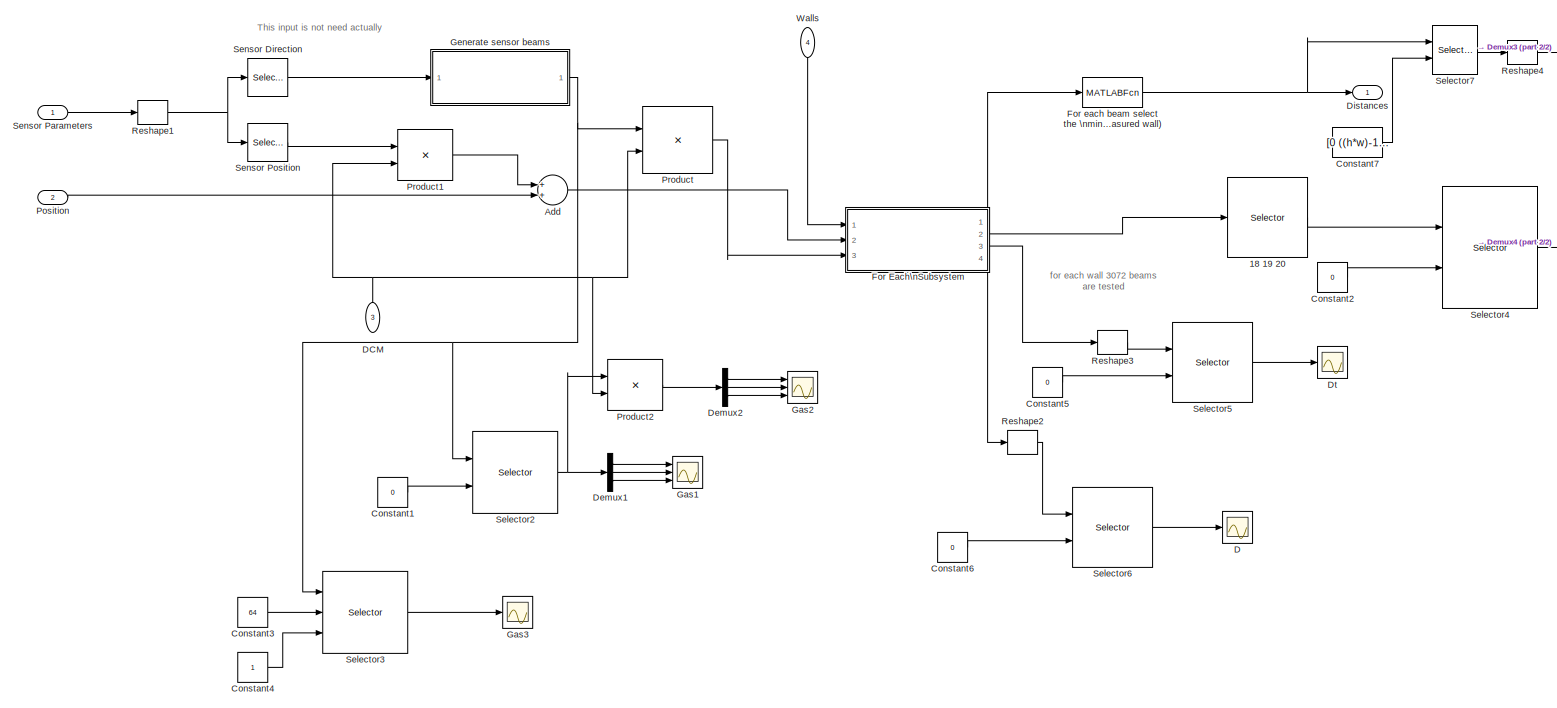
[diagram: PMD Camera/Sensors - part 1/2, most of the canvas]
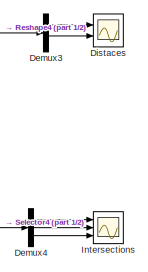
[diagram: PMD Camera/Sensors - part 2/2, top right region]
BLOCK [SubSystem] PMD Camera/Sensors
  FunctionWithSeparateData = off
  MaskHideContents = off
  MinAlgLoopOccurrences = off
  Opaque = off
  Ports = [4, 1]
  PropExecContextOutsideSubsystem = off
  RTWSystemCode = Auto
  RequestExecContextInheritance = off
  SID = 1220
  TreatAsAtomicUnit = on
BLOCK [Selector] PMD Camera/Sensors/18 19 20
  IndexMode = Zero-based
  IndexOptions = Index vector (dialog),Select all
  Indices = [0 1 2],[0 1 2]
  InputPortWidth = 3
  NumberOfDimensions = 2
  OutputSizes = 1,1
  Ports = [1, 1]
  SID = 1793
BLOCK [Sum] PMD Camera/Sensors/Add
  InputSameDT = off
  OutDataTypeStr = Inherit: Inherit via internal rule
  Ports = [2, 1]
  SID = 1225
  SaturateOnIntegerOverflow = off
BLOCK [Constant] PMD Camera/Sensors/Constant1
  SID = 1773
  Value = 0
BLOCK [Constant] PMD Camera/Sensors/Constant2
  SID = 1807
  Value = 0
BLOCK [Constant] PMD Camera/Sensors/Constant3
  SID = 1796
  Value = 64
BLOCK [Constant] PMD Camera/Sensors/Constant4
  SID = 1797
BLOCK [Constant] PMD Camera/Sensors/Constant5
  SID = 1823
  Value = 0
BLOCK [Constant] PMD Camera/Sensors/Constant6
  SID = 1824
  Value = 0
BLOCK [Constant] PMD Camera/Sensors/Constant7
  SID = 1835
  Value = [0 ((h*w)-1)]
BLOCK [Scope] PMD Camera/Sensors/D
  DataFormat = StructureWithTime
  Floating = off
  NumInputPorts = 1
  Ports = [1]
  SID = 1826
  SampleInput = on
  SaveName = ScopeData22
  ShowLegends = off
  YMax = 1
  YMin = -1
BLOCK [Inport] PMD Camera/Sensors/DCM
  IconDisplay = Port number
  Port = 3
  SID = 1223
BLOCK [Demux] PMD Camera/Sensors/Demux1
  DisplayOption = bar
  Outputs = 3
  Ports = [1, 3]
  SID = 1774
BLOCK [Demux] PMD Camera/Sensors/Demux2
  DisplayOption = bar
  Outputs = 3
  Ports = [1, 3]
  SID = 1788
BLOCK [Demux] PMD Camera/Sensors/Demux3
  DisplayOption = bar
  Outputs = 2
  Ports = [1, 2]
  SID = 1837
BLOCK [Demux] PMD Camera/Sensors/Demux4
  DisplayOption = bar
  Outputs = 3
  Ports = [1, 3]
  SID = 1808
BLOCK [Scope] PMD Camera/Sensors/Distaces
  DataFormat = StructureWithTime
  Floating = off
  NumInputPorts = 2
  Ports = [2]
  SID = 1834
  SampleInput = on
  SaveName = ScopeData23
  ShowLegends = off
  TimeRange = 0.5
  YMax = 1.8~0.55
  YMin = 1.6~0.5
BLOCK [Outport] PMD Camera/Sensors/Distances
  IconDisplay = Port number
  SID = 1396
BLOCK [Scope] PMD Camera/Sensors/Dt
  DataFormat = StructureWithTime
  Floating = off
  NumInputPorts = 1
  Ports = [1]
  SID = 1825
  SampleInput = on
  SaveName = ScopeData20
  ShowLegends = off
  YMax = 1
  YMin = -1
BLOCK [SubSystem] PMD Camera/Sensors/For Each\nSubsystem
  FunctionWithSeparateData = off
  MaskHideContents = off
  MinAlgLoopOccurrences = off
  Opaque = off
  Ports = [3, 4]
  PropExecContextOutsideSubsystem = off
  RTWSystemCode = Auto
  RequestExecContextInheritance = off
  SID = 1227
  TreatAsAtomicUnit = on
BLOCK [SubSystem] PMD Camera/Sensors/For Each\nSubsystem/Calculate Distances
  FunctionWithSeparateData = off
  MaskHideContents = off
  MinAlgLoopOccurrences = off
  Opaque = off
  Ports = [3, 4, 0, 0, 0, 0, 0, 1]
  PropExecContextOutsideSubsystem = off
  RTWSystemCode = Auto
  RequestExecContextInheritance = off
  SID = 1231
  TreatAsAtomicUnit = on
BLOCK [ActionPort] PMD Camera/Sensors/For Each\nSubsystem/Calculate Distances/Action Port
  SID = 1235
BLOCK [Outport] PMD Camera/Sensors/For Each\nSubsystem/Calculate Distances/Distances
  IconDisplay = Port number
  SID = 1363
BLOCK [Outport] PMD Camera/Sensors/For Each\nSubsystem/Calculate Distances/Ds
  IconDisplay = Port number
  Port = 4
  SID = 1817
BLOCK [Outport] PMD Camera/Sensors/For Each\nSubsystem/Calculate Distances/Dts
  IconDisplay = Port number
  Port = 3
  SID = 1816
BLOCK [Selector] PMD Camera/Sensors/For Each\nSubsystem/Calculate Distances/Edge 1
  IndexOptions = Select all,Index vector (dialog)
  Indices = [1 2 3],[4 5 6]
  InputPortWidth = 3
  NumberOfDimensions = 2
  OutputSizes = 1,1
  Ports = [1, 1]
  SID = 1236
BLOCK [Selector] PMD Camera/Sensors/For Each\nSubsystem/Calculate Distances/Edge 2
  IndexOptions = Select all,Index vector (dialog)
  Indices = [1 2 3],[7 8 9]
  InputPortWidth = 3
  NumberOfDimensions = 2
  OutputSizes = 1,1
  Ports = [1, 1]
  SID = 1237
BLOCK [SubSystem] PMD Camera/Sensors/For Each\nSubsystem/Calculate Distances/Find Intersections
  FunctionWithSeparateData = off
  MaskHideContents = off
  MinAlgLoopOccurrences = off
  Opaque = off
  Ports = [5, 4]
  PropExecContextOutsideSubsystem = off
  RTWSystemCode = Auto
  RequestExecContextInheritance = off
  SID = 1238
BLOCK [Inport] PMD Camera/Sensors/For Each\nSubsystem/Calculate Distances/Find Intersections/Beams
  IconDisplay = Port number
  Port = 5
  SID = 1243
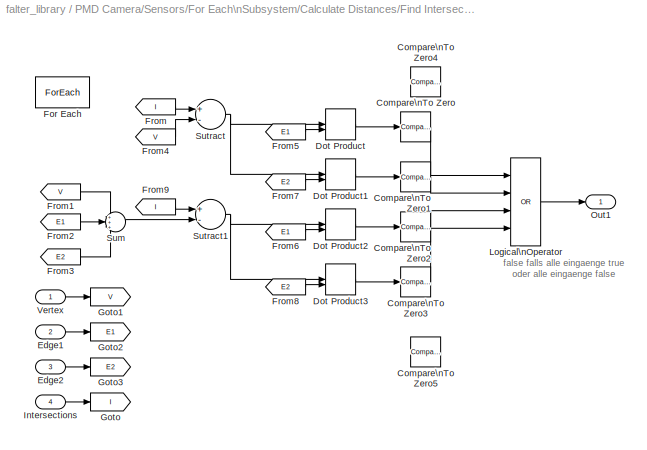
BLOCK [SubSystem] PMD Camera/Sensors/For Each\nSubsystem/Calculate Distances/Find Intersections/Check if intersection\noutside rectangle
  FunctionWithSeparateData = off
  MaskHideContents = off
  MinAlgLoopOccurrences = off
  Opaque = off
  Ports = [4, 1]
  PropExecContextOutsideSubsystem = off
  RTWSystemCode = Auto
  RequestExecContextInheritance = off
  SID = 1296
  TreatAsAtomicUnit = on
BLOCK [Reference] PMD Camera/Sensors/For Each\nSubsystem/Calculate Distances/Find Intersections/Check if intersection\noutside rectangle/Compare\nTo Zero  REF=simulink/Logic and Bit\nOperations/Compare\nTo Zero
  OutDataTypeStr = boolean
  Ports = [1, 1]
  SID = 1301
  SourceBlock = simulink/Logic and Bit\nOperations/Compare\nTo Zero
  SourceType = Compare To Zero
  ZeroCross = on
  relop = <
BLOCK [Reference] PMD Camera/Sensors/For Each\nSubsystem/Calculate Distances/Find Intersections/Check if intersection\noutside rectangle/Compare\nTo Zero1  REF=simulink/Logic and Bit\nOperations/Compare\nTo Zero
  OutDataTypeStr = boolean
  Ports = [1, 1]
  SID = 1302
  SourceBlock = simulink/Logic and Bit\nOperations/Compare\nTo Zero
  SourceType = Compare To Zero
  ZeroCross = on
  relop = <
BLOCK [Reference] PMD Camera/Sensors/For Each\nSubsystem/Calculate Distances/Find Intersections/Check if intersection\noutside rectangle/Compare\nTo Zero2  REF=simulink/Logic and Bit\nOperations/Compare\nTo Zero
  OutDataTypeStr = boolean
  Ports = [1, 1]
  SID = 1303
  SourceBlock = simulink/Logic and Bit\nOperations/Compare\nTo Zero
  SourceType = Compare To Zero
  ZeroCross = on
  relop = >
BLOCK [Reference] PMD Camera/Sensors/For Each\nSubsystem/Calculate Distances/Find Intersections/Check if intersection\noutside rectangle/Compare\nTo Zero3  REF=simulink/Logic and Bit\nOperations/Compare\nTo Zero
  OutDataTypeStr = boolean
  Ports = [1, 1]
  SID = 1304
  SourceBlock = simulink/Logic and Bit\nOperations/Compare\nTo Zero
  SourceType = Compare To Zero
  ZeroCross = on
  relop = >
BLOCK [Reference] PMD Camera/Sensors/For Each\nSubsystem/Calculate Distances/Find Intersections/Check if intersection\noutside rectangle/Compare\nTo Zero4  REF=simulink/Logic and Bit\nOperations/Compare\nTo Zero
  OutDataTypeStr = boolean
  Ports = [1, 1]
  SID = 1841
  SourceBlock = simulink/Logic and Bit\nOperations/Compare\nTo Zero
  SourceType = Compare To Zero
  ZeroCross = on
  relop = >=
BLOCK [Reference] PMD Camera/Sensors/For Each\nSubsystem/Calculate Distances/Find Intersections/Check if intersection\noutside rectangle/Compare\nTo Zero5  REF=simulink/Logic and Bit\nOperations/Compare\nTo Zero
  OutDataTypeStr = boolean
  Ports = [1, 1]
  SID = 1842
  SourceBlock = simulink/Logic and Bit\nOperations/Compare\nTo Zero
  SourceType = Compare To Zero
  ZeroCross = on
  relop = <=
BLOCK [DotProduct] PMD Camera/Sensors/For Each\nSubsystem/Calculate Distances/Find Intersections/Check if intersection\noutside rectangle/Dot Product
  OutDataTypeStr = Inherit: Inherit via internal rule
  SID = 1305
BLOCK [DotProduct] PMD Camera/Sensors/For Each\nSubsystem/Calculate Distances/Find Intersections/Check if intersection\noutside rectangle/Dot Product1
  OutDataTypeStr = Inherit: Inherit via internal rule
  SID = 1306
BLOCK [DotProduct] PMD Camera/Sensors/For Each\nSubsystem/Calculate Distances/Find Intersections/Check if intersection\noutside rectangle/Dot Product2
  OutDataTypeStr = Inherit: Inherit via internal rule
  SID = 1307
BLOCK [DotProduct] PMD Camera/Sensors/For Each\nSubsystem/Calculate Distances/Find Intersections/Check if intersection\noutside rectangle/Dot Product3
  OutDataTypeStr = Inherit: Inherit via internal rule
  SID = 1308
BLOCK [Inport] PMD Camera/Sensors/For Each\nSubsystem/Calculate Distances/Find Intersections/Check if intersection\noutside rectangle/Edge1
  IconDisplay = Port number
  Partition = off
  Port = 2
  SID = 1298
BLOCK [Inport] PMD Camera/Sensors/For Each\nSubsystem/Calculate Distances/Find Intersections/Check if intersection\noutside rectangle/Edge2
  IconDisplay = Port number
  Partition = off
  Port = 3
  SID = 1299
BLOCK [ForEach] PMD Camera/Sensors/For Each\nSubsystem/Calculate Distances/Find Intersections/Check if intersection\noutside rectangle/For Each
  DisableCoverage = on
  IndexMode = One-based
  Ports = []
  SID = 1309
BLOCK [From] PMD Camera/Sensors/For Each\nSubsystem/Calculate Distances/Find Intersections/Check if intersection\noutside rectangle/From
  GotoTag = I
  SID = 1310
BLOCK [From] PMD Camera/Sensors/For Each\nSubsystem/Calculate Distances/Find Intersections/Check if intersection\noutside rectangle/From1
  GotoTag = V
  SID = 1311
BLOCK [From] PMD Camera/Sensors/For Each\nSubsystem/Calculate Distances/Find Intersections/Check if intersection\noutside rectangle/From2
  GotoTag = E1
  SID = 1312
BLOCK [From] PMD Camera/Sensors/For Each\nSubsystem/Calculate Distances/Find Intersections/Check if intersection\noutside rectangle/From3
  GotoTag = E2
  SID = 1313
BLOCK [From] PMD Camera/Sensors/For Each\nSubsystem/Calculate Distances/Find Intersections/Check if intersection\noutside rectangle/From4
  GotoTag = V
  SID = 1314
BLOCK [From] PMD Camera/Sensors/For Each\nSubsystem/Calculate Distances/Find Intersections/Check if intersection\noutside rectangle/From5
  GotoTag = E1
  SID = 1315
BLOCK [From] PMD Camera/Sensors/For Each\nSubsystem/Calculate Distances/Find Intersections/Check if intersection\noutside rectangle/From6
  GotoTag = E1
  SID = 1316
BLOCK [From] PMD Camera/Sensors/For Each\nSubsystem/Calculate Distances/Find Intersections/Check if intersection\noutside rectangle/From7
  GotoTag = E2
  SID = 1317
BLOCK [From] PMD Camera/Sensors/For Each\nSubsystem/Calculate Distances/Find Intersections/Check if intersection\noutside rectangle/From8
  GotoTag = E2
  SID = 1318
BLOCK [From] PMD Camera/Sensors/For Each\nSubsystem/Calculate Distances/Find Intersections/Check if intersection\noutside rectangle/From9
  GotoTag = I
  SID = 1319
BLOCK [Goto] PMD Camera/Sensors/For Each\nSubsystem/Calculate Distances/Find Intersections/Check if intersection\noutside rectangle/Goto
  GotoTag = I
  SID = 1320
BLOCK [Goto] PMD Camera/Sensors/For Each\nSubsystem/Calculate Distances/Find Intersections/Check if intersection\noutside rectangle/Goto1
  GotoTag = V
  SID = 1321
BLOCK [Goto] PMD Camera/Sensors/For Each\nSubsystem/Calculate Distances/Find Intersections/Check if intersection\noutside rectangle/Goto2
  GotoTag = E1
  SID = 1322
BLOCK [Goto] PMD Camera/Sensors/For Each\nSubsystem/Calculate Distances/Find Intersections/Check if intersection\noutside rectangle/Goto3
  GotoTag = E2
  SID = 1323
BLOCK [Inport] PMD Camera/Sensors/For Each\nSubsystem/Calculate Distances/Find Intersections/Check if intersection\noutside rectangle/Intersections
  IconDisplay = Port number
  Partition = on
  PartitionDimension = 2
  PartitionWidth = 1
  Port = 4
  SID = 1300
BLOCK [Logic] PMD Camera/Sensors/For Each\nSubsystem/Calculate Distances/Find Intersections/Check if intersection\noutside rectangle/Logical\nOperator
  AllPortsSameDT = off
  Inputs = 4
  Operator = OR
  OutDataTypeStr = boolean
  Ports = [4, 1]
  SID = 1324
BLOCK [Outport] PMD Camera/Sensors/For Each\nSubsystem/Calculate Distances/Find Intersections/Check if intersection\noutside rectangle/Out1
  ConcatenationDimension = 2
  IconDisplay = Port number
  SID = 1328
BLOCK [Sum] PMD Camera/Sensors/For Each\nSubsystem/Calculate Distances/Find Intersections/Check if intersection\noutside rectangle/Sum
  IconShape = round
  InputSameDT = off
  Inputs = +++
  OutDataTypeStr = Inherit: Inherit via internal rule
  Ports = [3, 1]
  SID = 1325
  SaturateOnIntegerOverflow = off
BLOCK [Sum] PMD Camera/Sensors/For Each\nSubsystem/Calculate Distances/Find Intersections/Check if intersection\noutside rectangle/Sutract
  InputSameDT = off
  Inputs = +-
  OutDataTypeStr = Inherit: Inherit via internal rule
  Ports = [2, 1]
  SID = 1326
  SaturateOnIntegerOverflow = off
BLOCK [Sum] PMD Camera/Sensors/For Each\nSubsystem/Calculate Distances/Find Intersections/Check if intersection\noutside rectangle/Sutract1
  InputSameDT = off
  Inputs = +-
  OutDataTypeStr = Inherit: Inherit via internal rule
  Ports = [2, 1]
  SID = 1327
  SaturateOnIntegerOverflow = off
BLOCK [Inport] PMD Camera/Sensors/For Each\nSubsystem/Calculate Distances/Find Intersections/Check if intersection\noutside rectangle/Vertex
  IconDisplay = Port number
  Partition = off
  SID = 1297
BLOCK [SubSystem] PMD Camera/Sensors/For Each\nSubsystem/Calculate Distances/Find Intersections/Check if length of beam than the distance
  FunctionWithSeparateData = off
  MaskHideContents = off
  MinAlgLoopOccurrences = off
  Opaque = off
  Ports = [2, 1]
  PropExecContextOutsideSubsystem = off
  RTWSystemCode = Auto
  RequestExecContextInheritance = off
  SID = 1336
  TreatAsAtomicUnit = on
BLOCK [Sum] PMD Camera/Sensors/For Each\nSubsystem/Calculate Distances/Find Intersections/Check if length of beam than the distance/Add
  InputSameDT = off
  OutDataTypeStr = Inherit: Inherit via internal rule
  Ports = [2, 1]
  SID = 1832
  SaturateOnIntegerOverflow = off
BLOCK [Constant] PMD Camera/Sensors/For Each\nSubsystem/Calculate Distances/Find Intersections/Check if length of beam than the distance/Constant
  SID = 1339
  Value = 0
BLOCK [Constant] PMD Camera/Sensors/For Each\nSubsystem/Calculate Distances/Find Intersections/Check if length of beam than the distance/Constant1
  SID = 1830
  Value = 20
BLOCK [Inport] PMD Camera/Sensors/For Each\nSubsystem/Calculate Distances/Find Intersections/Check if length of beam than the distance/D
  IconDisplay = Port number
  Partition = on
  PartitionDimension = 1
  PartitionWidth = 1
  SID = 1337
BLOCK [Inport] PMD Camera/Sensors/For Each\nSubsystem/Calculate Distances/Find Intersections/Check if length of beam than the distance/Directions
  IconDisplay = Port number
  Partition = on
  PartitionDimension = 2
  PartitionWidth = 1
  Port = 2
  SID = 1338
BLOCK [Outport] PMD Camera/Sensors/For Each\nSubsystem/Calculate Distances/Find Intersections/Check if length of beam than the distance/Distances
  ConcatenationDimension = 1
  IconDisplay = Port number
  SID = 1346
BLOCK [ForEach] PMD Camera/Sensors/For Each\nSubsystem/Calculate Distances/Find Intersections/Check if length of beam than the distance/For Each
  DisableCoverage = on
  IndexMode = One-based
  Ports = []
  SID = 1340
BLOCK [From] PMD Camera/Sensors/For Each\nSubsystem/Calculate Distances/Find Intersections/Check if length of beam than the distance/From
  SID = 1341
BLOCK [Goto] PMD Camera/Sensors/For Each\nSubsystem/Calculate Distances/Find Intersections/Check if length of beam than the distance/Goto
  SID = 1342
BLOCK [RelationalOperator] PMD Camera/Sensors/For Each\nSubsystem/Calculate Distances/Find Intersections/Check if length of beam than the distance/Relational\nOperator
  InputSameDT = off
  Operator = >
  OutDataTypeStr = boolean
  Ports = [2, 1]
  SID = 1343
BLOCK [Switch] PMD Camera/Sensors/For Each\nSubsystem/Calculate Distances/Find Intersections/Check if length of beam than the distance/Switch
  InputSameDT = off
  SID = 1344
  SaturateOnIntegerOverflow = off
BLOCK [Reference] PMD Camera/Sensors/For Each\nSubsystem/Calculate Distances/Find Intersections/Check if length of beam than the distance/norm  REF=falter_library/norm
  Ports = [1, 1]
  SID = 1345
  SourceBlock = falter_library/norm
  SourceType = SubSystem
BLOCK [SubSystem] PMD Camera/Sensors/For Each\nSubsystem/Calculate Distances/Find Intersections/Compute Distances
  FunctionWithSeparateData = off
  MaskHideContents = off
  MinAlgLoopOccurrences = off
  Opaque = off
  Ports = [2, 1]
  PropExecContextOutsideSubsystem = off
  RTWSystemCode = Auto
  RequestExecContextInheritance = off
  SID = 1329
  TreatAsAtomicUnit = on
BLOCK [Sum] PMD Camera/Sensors/For Each\nSubsystem/Calculate Distances/Find Intersections/Compute Distances/Add
  InputSameDT = off
  Inputs = +-
  OutDataTypeStr = Inherit: Inherit via internal rule
  Ports = [2, 1]
  SID = 1332
  SaturateOnIntegerOverflow = off
BLOCK [Outport] PMD Camera/Sensors/For Each\nSubsystem/Calculate Distances/Find Intersections/Compute Distances/Distances
  ConcatenationDimension = 1
  IconDisplay = Port number
  SID = 1335
BLOCK [ForEach] PMD Camera/Sensors/For Each\nSubsystem/Calculate Distances/Find Intersections/Compute Distances/For Each
  DisableCoverage = on
  IndexMode = One-based
  Ports = []
  SID = 1333
BLOCK [Inport] PMD Camera/Sensors/For Each\nSubsystem/Calculate Distances/Find Intersections/Compute Distances/Intersections
  IconDisplay = Port number
  Partition = on
  PartitionDimension = 2
  PartitionWidth = 1
  SID = 1330
BLOCK [Inport] PMD Camera/Sensors/For Each\nSubsystem/Calculate Distances/Find Intersections/Compute Distances/Position
  IconDisplay = Port number
  Partition = off
  Port = 2
  SID = 1331
BLOCK [Reference] PMD Camera/Sensors/For Each\nSubsystem/Calculate Distances/Find Intersections/Compute Distances/norm  REF=falter_library/norm
  Ports = [1, 1]
  SID = 1334
  SourceBlock = falter_library/norm
  SourceType = SubSystem
BLOCK [SubSystem] PMD Camera/Sensors/For Each\nSubsystem/Calculate Distances/Find Intersections/Compute Intersections
  FunctionWithSeparateData = off
  MaskHideContents = off
  MinAlgLoopOccurrences = off
  Opaque = off
  Ports = [5, 3]
  PropExecContextOutsideSubsystem = off
  RTWSystemCode = Auto
  RequestExecContextInheritance = off
  SID = 1244
BLOCK [SubSystem] PMD Camera/Sensors/For Each\nSubsystem/Calculate Distances/Find Intersections/Compute Intersections/Determinates with directions D
  ErrorFcn = Stateflow.Translate.translate
  FunctionWithSeparateData = off
  MaskHideContents = off
  MinAlgLoopOccurrences = off
  Opaque = off
  PermitHierarchicalResolution = ExplicitOnly
  Ports = [2, 1]
  PropExecContextOutsideSubsystem = off
  RTWSystemCode = Auto
  RequestExecContextInheritance = off
  SFBlockType = MATLAB Function
  SID = 1250
  TreatAsAtomicUnit = on
BLOCK [Demux] PMD Camera/Sensors/For Each\nSubsystem/Calculate Distances/Find Intersections/Compute Intersections/Determinates with directions D/ Demux 
  Outputs = 1
  Ports = [1, 1]
  SID = 1250::20
BLOCK [S-Function] PMD Camera/Sensors/For Each\nSubsystem/Calculate Distances/Find Intersections/Compute Intersections/Determinates with directions D/ SFunction 
  EnableBusSupport = off
  FunctionName = sf_sfun
  PortCounts = [2 2]
  Ports = [2, 2]
  SID = 1250::19
  Tag = Stateflow S-Function falter_library 1
BLOCK [Terminator] PMD Camera/Sensors/For Each\nSubsystem/Calculate Distances/Find Intersections/Compute Intersections/Determinates with directions D/ Terminator 
  SID = 1250::21
BLOCK [Outport] PMD Camera/Sensors/For Each\nSubsystem/Calculate Distances/Find Intersections/Compute Intersections/Determinates with directions D/D
  IconDisplay = Port number
  SID = 1250::5
BLOCK [Inport] PMD Camera/Sensors/For Each\nSubsystem/Calculate Distances/Find Intersections/Compute Intersections/Determinates with directions D/Directions
  IconDisplay = Port number
  Port = 2
  SID = 1250::18
BLOCK [Inport] PMD Camera/Sensors/For Each\nSubsystem/Calculate Distances/Find Intersections/Compute Intersections/Determinates with directions D/Plane
  IconDisplay = Port number
  SID = 1250::1
BLOCK [SubSystem] PMD Camera/Sensors/For Each\nSubsystem/Calculate Distances/Find Intersections/Compute Intersections/Determinates with position Dt
  ErrorFcn = Stateflow.Translate.translate
  FunctionWithSeparateData = off
  MaskHideContents = off
  MinAlgLoopOccurrences = off
  Opaque = off
  PermitHierarchicalResolution = ExplicitOnly
  Ports = [3, 1]
  PropExecContextOutsideSubsystem = off
  RTWSystemCode = Auto
  RequestExecContextInheritance = off
  SFBlockType = MATLAB Function
  SID = 1251
  TreatAsAtomicUnit = on
BLOCK [Demux] PMD Camera/Sensors/For Each\nSubsystem/Calculate Distances/Find Intersections/Compute Intersections/Determinates with position Dt/ Demux 
  Outputs = 1
  Ports = [1, 1]
  SID = 1251::21
BLOCK [S-Function] PMD Camera/Sensors/For Each\nSubsystem/Calculate Distances/Find Intersections/Compute Intersections/Determinates with position Dt/ SFunction 
  EnableBusSupport = off
  FunctionName = sf_sfun
  PortCounts = [3 2]
  Ports = [3, 2]
  SID = 1251::20
  Tag = Stateflow S-Function falter_library 4
BLOCK [Terminator] PMD Camera/Sensors/For Each\nSubsystem/Calculate Distances/Find Intersections/Compute Intersections/Determinates with position Dt/ Terminator 
  SID = 1251::22
BLOCK [Inport] PMD Camera/Sensors/For Each\nSubsystem/Calculate Distances/Find Intersections/Compute Intersections/Determinates with position Dt/Directions
  IconDisplay = Port number
  Port = 3
  SID = 1251::19
BLOCK [Outport] PMD Camera/Sensors/For Each\nSubsystem/Calculate Distances/Find Intersections/Compute Intersections/Determinates with position Dt/Dt
  IconDisplay = Port number
  SID = 1251::5
BLOCK [Inport] PMD Camera/Sensors/For Each\nSubsystem/Calculate Distances/Find Intersections/Compute Intersections/Determinates with position Dt/Plane
  IconDisplay = Port number
  SID = 1251::1
BLOCK [Inport] PMD Camera/Sensors/For Each\nSubsystem/Calculate Distances/Find Intersections/Compute Intersections/Determinates with position Dt/Position
  IconDisplay = Port number
  Port = 2
  SID = 1251::18
BLOCK [Inport] PMD Camera/Sensors/For Each\nSubsystem/Calculate Distances/Find Intersections/Compute Intersections/Direction
  IconDisplay = Port number
  Port = 5
  SID = 1249
BLOCK [Outport] PMD Camera/Sensors/For Each\nSubsystem/Calculate Distances/Find Intersections/Compute Intersections/Ds
  IconDisplay = Port number
  Port = 3
  SID = 1813
BLOCK [Outport] PMD Camera/Sensors/For Each\nSubsystem/Calculate Distances/Find Intersections/Compute Intersections/Dts
  IconDisplay = Port number
  Port = 2
  SID = 1812
BLOCK [Inport] PMD Camera/Sensors/For Each\nSubsystem/Calculate Distances/Find Intersections/Compute Intersections/Edge 1
  IconDisplay = Port number
  Port = 2
  SID = 1246
BLOCK [Inport] PMD Camera/Sensors/For Each\nSubsystem/Calculate Distances/Find Intersections/Compute Intersections/Edge 2
  IconDisplay = Port number
  Port = 3
  SID = 1247
BLOCK [Gain] PMD Camera/Sensors/For Each\nSubsystem/Calculate Distances/Find Intersections/Compute Intersections/Gain
  Gain = -1
  OutDataTypeStr = Inherit: Inherit via internal rule
  ParamDataTypeStr = Inherit: Inherit via internal rule
  SID = 1252
  SaturateOnIntegerOverflow = off
BLOCK [Outport] PMD Camera/Sensors/For Each\nSubsystem/Calculate Distances/Find Intersections/Compute Intersections/Intersections
  IconDisplay = Port number
  SID = 1294
BLOCK [Inport] PMD Camera/Sensors/For Each\nSubsystem/Calculate Distances/Find Intersections/Compute Intersections/Position
  IconDisplay = Port number
  Port = 4
  SID = 1248
BLOCK [Sum] PMD Camera/Sensors/For Each\nSubsystem/Calculate Distances/Find Intersections/Compute Intersections/Sum
  IconShape = round
  InputSameDT = off
  Inputs = |-+
  OutDataTypeStr = Inherit: Inherit via internal rule
  Ports = [2, 1]
  SID = 1253
  SaturateOnIntegerOverflow = off
BLOCK [Concatenate] PMD Camera/Sensors/For Each\nSubsystem/Calculate Distances/Find Intersections/Compute Intersections/Vector\nConcatenate
  ConcatenateDimension = 2
  Mode = Multidimensional array
  Ports = [2, 1]
  SID = 1254
BLOCK [Inport] PMD Camera/Sensors/For Each\nSubsystem/Calculate Distances/Find Intersections/Compute Intersections/Vertex
  IconDisplay = Port number
  SID = 1245
BLOCK [SubSystem] PMD Camera/Sensors/For Each\nSubsystem/Calculate Distances/Find Intersections/Compute Intersections/calculate intersection for\nevery sensor beam
  FunctionWithSeparateData = off
  MaskHideContents = off
  MinAlgLoopOccurrences = off
  Opaque = off
  Ports = [4, 1]
  PropExecContextOutsideSubsystem = off
  RTWSystemCode = Auto
  RequestExecContextInheritance = off
  SID = 1255
  TreatAsAtomicUnit = on
BLOCK [Inport] PMD Camera/Sensors/For Each\nSubsystem/Calculate Distances/Find Intersections/Compute Intersections/calculate intersection for\nevery sensor beam/D
  IconDisplay = Port number
  Partition = on
  PartitionDimension = 1
  PartitionWidth = 1
  Port = 2
  SID = 1257
BLOCK [Inport] PMD Camera/Sensors/For Each\nSubsystem/Calculate Distances/Find Intersections/Compute Intersections/calculate intersection for\nevery sensor beam/Directions
  IconDisplay = Port number
  Partition = on
  PartitionDimension = 2
  PartitionWidth = 1
  Port = 4
  SID = 1259
BLOCK [Inport] PMD Camera/Sensors/For Each\nSubsystem/Calculate Distances/Find Intersections/Compute Intersections/calculate intersection for\nevery sensor beam/Dt
  IconDisplay = Port number
  Partition = on
  PartitionDimension = 1
  PartitionWidth = 1
  SID = 1256
BLOCK [ForEach] PMD Camera/Sensors/For Each\nSubsystem/Calculate Distances/Find Intersections/Compute Intersections/calculate intersection for\nevery sensor beam/For Each
  DisableCoverage = on
  IndexMode = One-based
  Ports = []
  SID = 1260
BLOCK [If] PMD Camera/Sensors/For Each\nSubsystem/Calculate Distances/Find Intersections/Compute Intersections/calculate intersection for\nevery sensor beam/If
  ElseIfExpressions = u1 ~= 0 & u2 == 0
  IfExpression = u1 == 0 & u2 == 0
  NumInputs = 2
  Ports = [2, 3]
  SID = 1261
BLOCK [SubSystem] PMD Camera/Sensors/For Each\nSubsystem/Calculate Distances/Find Intersections/Compute Intersections/calculate intersection for\nevery sensor beam/Intersection if both\ndeterminates are not 0
  FunctionWithSeparateData = off
  MaskHideContents = off
  MinAlgLoopOccurrences = off
  Opaque = off
  Ports = [4, 1, 0, 0, 0, 0, 0, 1]
  PropExecContextOutsideSubsystem = off
  RTWSystemCode = Auto
  RequestExecContextInheritance = off
  SID = 1262
  TreatAsAtomicUnit = on
BLOCK [ActionPort] PMD Camera/Sensors/For Each\nSubsystem/Calculate Distances/Find Intersections/Compute Intersections/calculate intersection for\nevery sensor beam/Intersection if both\ndeterminates are not 0/Action Port
  SID = 1267
BLOCK [Inport] PMD Camera/Sensors/For Each\nSubsystem/Calculate Distances/Find Intersections/Compute Intersections/calculate intersection for\nevery sensor beam/Intersection if both\ndeterminates are not 0/D
  IconDisplay = Port number
  Port = 2
  SID = 1264
BLOCK [Inport] PMD Camera/Sensors/For Each\nSubsystem/Calculate Distances/Find Intersections/Compute Intersections/calculate intersection for\nevery sensor beam/Intersection if both\ndeterminates are not 0/Direction
  IconDisplay = Port number
  Port = 4
  SID = 1266
BLOCK [Inport] PMD Camera/Sensors/For Each\nSubsystem/Calculate Distances/Find Intersections/Compute Intersections/calculate intersection for\nevery sensor beam/Intersection if both\ndeterminates are not 0/Dt
  IconDisplay = Port number
  SID = 1263
BLOCK [SubSystem] PMD Camera/Sensors/For Each\nSubsystem/Calculate Distances/Find Intersections/Compute Intersections/calculate intersection for\nevery sensor beam/Intersection if both\ndeterminates are not 0/If Action\nSubsystem
  FunctionWithSeparateData = off
  MaskHideContents = off
  MinAlgLoopOccurrences = off
  Opaque = off
  Ports = [3, 1, 0, 0, 0, 0, 0, 1]
  PropExecContextOutsideSubsystem = off
  RTWSystemCode = Auto
  RequestExecContextInheritance = off
  SID = 1268
  TreatAsAtomicUnit = on
BLOCK [ActionPort] PMD Camera/Sensors/For Each\nSubsystem/Calculate Distances/Find Intersections/Compute Intersections/calculate intersection for\nevery sensor beam/Intersection if both\ndeterminates are not 0/If Action\nSubsystem/Action Port
  SID = 1272
BLOCK [Inport] PMD Camera/Sensors/For Each\nSubsystem/Calculate Distances/Find Intersections/Compute Intersections/calculate intersection for\nevery sensor beam/Intersection if both\ndeterminates are not 0/If Action\nSubsystem/Direction
  IconDisplay = Port number
  Port = 2
  SID = 1270
BLOCK [Outport] PMD Camera/Sensors/For Each\nSubsystem/Calculate Distances/Find Intersections/Compute Intersections/calculate intersection for\nevery sensor beam/Intersection if both\ndeterminates are not 0/If Action\nSubsystem/Intersection
  IconDisplay = Port number
  SID = 1275
BLOCK [Inport] PMD Camera/Sensors/For Each\nSubsystem/Calculate Distances/Find Intersections/Compute Intersections/calculate intersection for\nevery sensor beam/Intersection if both\ndeterminates are not 0/If Action\nSubsystem/Position
  IconDisplay = Port number
  SID = 1269
BLOCK [Product] PMD Camera/Sensors/For Each\nSubsystem/Calculate Distances/Find Intersections/Compute Intersections/calculate intersection for\nevery sensor beam/Intersection if both\ndeterminates are not 0/If Action\nSubsystem/Product
  InputSameDT = off
  Inputs = **
  OutDataTypeStr = Inherit: Inherit via internal rule
  Ports = [2, 1]
  RndMeth = Floor
  SID = 1273
  SaturateOnIntegerOverflow = off
BLOCK [Sum] PMD Camera/Sensors/For Each\nSubsystem/Calculate Distances/Find Intersections/Compute Intersections/calculate intersection for\nevery sensor beam/Intersection if both\ndeterminates are not 0/If Action\nSubsystem/Sum
  IconShape = round
  InputSameDT = off
  Inputs = |++
  OutDataTypeStr = Inherit: Inherit via internal rule
  Ports = [2, 1]
  SID = 1274
  SaturateOnIntegerOverflow = off
BLOCK [Inport] PMD Camera/Sensors/For Each\nSubsystem/Calculate Distances/Find Intersections/Compute Intersections/calculate intersection for\nevery sensor beam/Intersection if both\ndeterminates are not 0/If Action\nSubsystem/t
  IconDisplay = Port number
  Port = 3
  SID = 1271
BLOCK [If] PMD Camera/Sensors/For Each\nSubsystem/Calculate Distances/Find Intersections/Compute Intersections/calculate intersection for\nevery sensor beam/Intersection if both\ndeterminates are not 0/If1
  Ports = [1, 2]
  SID = 1276
BLOCK [Outport] PMD Camera/Sensors/For Each\nSubsystem/Calculate Distances/Find Intersections/Compute Intersections/calculate intersection for\nevery sensor beam/Intersection if both\ndeterminates are not 0/Intersection
  IconDisplay = Port number
  InitialOutput = [0;0;0]
  SID = 1283
BLOCK [SubSystem] PMD Camera/Sensors/For Each\nSubsystem/Calculate Distances/Find Intersections/Compute Intersections/calculate intersection for\nevery sensor beam/Intersection if both\ndeterminates are not 0/Intersection is inf if\nintersection point is\nin the wrong direction
  FunctionWithSeparateData = off
  MaskHideContents = off
  MinAlgLoopOccurrences = off
  Opaque = off
  Ports = [0, 1, 0, 0, 0, 0, 0, 1]
  PropExecContextOutsideSubsystem = off
  RTWSystemCode = Auto
  RequestExecContextInheritance = off
  SID = 1277
  TreatAsAtomicUnit = on
BLOCK [ActionPort] PMD Camera/Sensors/For Each\nSubsystem/Calculate Distances/Find Intersections/Compute Intersections/calculate intersection for\nevery sensor beam/Intersection if both\ndeterminates are not 0/Intersection is inf if\nintersection point is\nin the wrong direction/Action Port
  SID = 1278
BLOCK [Constant] PMD Camera/Sensors/For Each\nSubsystem/Calculate Distances/Find Intersections/Compute Intersections/calculate intersection for\nevery sensor beam/Intersection if both\ndeterminates are not 0/Intersection is inf if\nintersection point is\nin the wrong direction/Constant
  SID = 1279
  Value = [inf;inf;inf]
BLOCK [Outport] PMD Camera/Sensors/For Each\nSubsystem/Calculate Distances/Find Intersections/Compute Intersections/calculate intersection for\nevery sensor beam/Intersection if both\ndeterminates are not 0/Intersection is inf if\nintersection point is\nin the wrong direction/Intersection
  IconDisplay = Port number
  InitialOutput = [0;0;0]
  SID = 1280
BLOCK [Merge] PMD Camera/Sensors/For Each\nSubsystem/Calculate Distances/Find Intersections/Compute Intersections/calculate intersection for\nevery sensor beam/Intersection if both\ndeterminates are not 0/Merge
  InitialOutput = [0;0;0]
  Ports = [2, 1]
  SID = 1281
BLOCK [Inport] PMD Camera/Sensors/For Each\nSubsystem/Calculate Distances/Find Intersections/Compute Intersections/calculate intersection for\nevery sensor beam/Intersection if both\ndeterminates are not 0/Position
  IconDisplay = Port number
  Port = 3
  SID = 1265
BLOCK [Product] PMD Camera/Sensors/For Each\nSubsystem/Calculate Distances/Find Intersections/Compute Intersections/calculate intersection for\nevery sensor beam/Intersection if both\ndeterminates are not 0/calculate scalar
  InputSameDT = off
  Inputs = */
  OutDataTypeStr = Inherit: Inherit via internal rule
  Ports = [2, 1]
  RndMeth = Floor
  SID = 1282
  SaturateOnIntegerOverflow = off
BLOCK [SubSystem] PMD Camera/Sensors/For Each\nSubsystem/Calculate Distances/Find Intersections/Compute Intersections/calculate intersection for\nevery sensor beam/Intersection is 0 if\nsensor is in the plane
  FunctionWithSeparateData = off
  MaskHideContents = off
  MinAlgLoopOccurrences = off
  Opaque = off
  Ports = [0, 1, 0, 0, 0, 0, 0, 1]
  PropExecContextOutsideSubsystem = off
  RTWSystemCode = Auto
  RequestExecContextInheritance = off
  SID = 1284
  TreatAsAtomicUnit = on
BLOCK [ActionPort] PMD Camera/Sensors/For Each\nSubsystem/Calculate Distances/Find Intersections/Compute Intersections/calculate intersection for\nevery sensor beam/Intersection is 0 if\nsensor is in the plane/Action Port
  SID = 1285
BLOCK [Constant] PMD Camera/Sensors/For Each\nSubsystem/Calculate Distances/Find Intersections/Compute Intersections/calculate intersection for\nevery sensor beam/Intersection is 0 if\nsensor is in the plane/Constant
  SID = 1286
  Value = [0;0;0]
BLOCK [Outport] PMD Camera/Sensors/For Each\nSubsystem/Calculate Distances/Find Intersections/Compute Intersections/calculate intersection for\nevery sensor beam/Intersection is 0 if\nsensor is in the plane/Intersection
  IconDisplay = Port number
  InitialOutput = [0;0;0]
  SID = 1287
BLOCK [SubSystem] PMD Camera/Sensors/For Each\nSubsystem/Calculate Distances/Find Intersections/Compute Intersections/calculate intersection for\nevery sensor beam/Intersection is inf if\nplane and sensor are paralell
  FunctionWithSeparateData = off
  MaskHideContents = off
  MinAlgLoopOccurrences = off
  Opaque = off
  Ports = [0, 1, 0, 0, 0, 0, 0, 1]
  PropExecContextOutsideSubsystem = off
  RTWSystemCode = Auto
  RequestExecContextInheritance = off
  SID = 1288
  TreatAsAtomicUnit = on
BLOCK [ActionPort] PMD Camera/Sensors/For Each\nSubsystem/Calculate Distances/Find Intersections/Compute Intersections/calculate intersection for\nevery sensor beam/Intersection is inf if\nplane and sensor are paralell/Action Port
  SID = 1289
BLOCK [Constant] PMD Camera/Sensors/For Each\nSubsystem/Calculate Distances/Find Intersections/Compute Intersections/calculate intersection for\nevery sensor beam/Intersection is inf if\nplane and sensor are paralell/Constant
  SID = 1290
  Value = [inf;inf;inf]
BLOCK [Outport] PMD Camera/Sensors/For Each\nSubsystem/Calculate Distances/Find Intersections/Compute Intersections/calculate intersection for\nevery sensor beam/Intersection is inf if\nplane and sensor are paralell/Intersection
  IconDisplay = Port number
  InitialOutput = [0;0;0]
  SID = 1291
BLOCK [Outport] PMD Camera/Sensors/For Each\nSubsystem/Calculate Distances/Find Intersections/Compute Intersections/calculate intersection for\nevery sensor beam/Intersections
  ConcatenationDimension = 2
  IconDisplay = Port number
  SID = 1293
BLOCK [Merge] PMD Camera/Sensors/For Each\nSubsystem/Calculate Distances/Find Intersections/Compute Intersections/calculate intersection for\nevery sensor beam/Merge
  InitialOutput = [0;0;0]
  Inputs = 3
  Ports = [3, 1]
  SID = 1292
BLOCK [Inport] PMD Camera/Sensors/For Each\nSubsystem/Calculate Distances/Find Intersections/Compute Intersections/calculate intersection for\nevery sensor beam/Position
  IconDisplay = Port number
  Partition = off
  Port = 3
  SID = 1258
BLOCK [Constant] PMD Camera/Sensors/For Each\nSubsystem/Calculate Distances/Find Intersections/Constant
  SID = 1295
  Value = 0
BLOCK [Outport] PMD Camera/Sensors/For Each\nSubsystem/Calculate Distances/Find Intersections/Distances
  IconDisplay = Port number
  SID = 1348
BLOCK [Outport] PMD Camera/Sensors/For Each\nSubsystem/Calculate Distances/Find Intersections/Ds
  IconDisplay = Port number
  Port = 4
  SID = 1815
BLOCK [Outport] PMD Camera/Sensors/For Each\nSubsystem/Calculate Distances/Find Intersections/Dts
  IconDisplay = Port number
  Port = 3
  SID = 1814
BLOCK [Inport] PMD Camera/Sensors/For Each\nSubsystem/Calculate Distances/Find Intersections/Edge 1
  IconDisplay = Port number
  Port = 2
  SID = 1240
BLOCK [Inport] PMD Camera/Sensors/For Each\nSubsystem/Calculate Distances/Find Intersections/Edge 2
  IconDisplay = Port number
  Port = 3
  SID = 1241
BLOCK [Outport] PMD Camera/Sensors/For Each\nSubsystem/Calculate Distances/Find Intersections/Intersections
  IconDisplay = Port number
  Port = 2
  SID = 1790
BLOCK [Inport] PMD Camera/Sensors/For Each\nSubsystem/Calculate Distances/Find Intersections/Position
  IconDisplay = Port number
  Port = 4
  SID = 1242
BLOCK [Inport] PMD Camera/Sensors/For Each\nSubsystem/Calculate Distances/Find Intersections/Vertex
  IconDisplay = Port number
  SID = 1239
BLOCK [Switch] PMD Camera/Sensors/For Each\nSubsystem/Calculate Distances/Find Intersections/falls u2 == 0 leite u3 ( = 0) durch
  Criteria = u2 > Threshold
  InputSameDT = off
  SID = 1347
  SaturateOnIntegerOverflow = off
BLOCK [From] PMD Camera/Sensors/For Each\nSubsystem/Calculate Distances/From
  GotoTag = Vertex
  SID = 1349
BLOCK [From] PMD Camera/Sensors/For Each\nSubsystem/Calculate Distances/From1
  GotoTag = Edge1
  SID = 1350
BLOCK [From] PMD Camera/Sensors/For Each\nSubsystem/Calculate Distances/From2
  GotoTag = Edge2
  SID = 1351
BLOCK [From] PMD Camera/Sensors/For Each\nSubsystem/Calculate Distances/From3
  GotoTag = Position
  SID = 1352
BLOCK [Goto] PMD Camera/Sensors/For Each\nSubsystem/Calculate Distances/Goto
  GotoTag = Vertex
  SID = 1353
BLOCK [Goto] PMD Camera/Sensors/For Each\nSubsystem/Calculate Distances/Goto1
  GotoTag = Edge1
  SID = 1354
BLOCK [Goto] PMD Camera/Sensors/For Each\nSubsystem/Calculate Distances/Goto2
  GotoTag = Edge2
  SID = 1355
BLOCK [Goto] PMD Camera/Sensors/For Each\nSubsystem/Calculate Distances/Goto3
  GotoTag = Position
  SID = 1356
BLOCK [Outport] PMD Camera/Sensors/For Each\nSubsystem/Calculate Distances/Intersections
  IconDisplay = Port number
  Port = 2
  SID = 1791
BLOCK [Inport] PMD Camera/Sensors/For Each\nSubsystem/Calculate Distances/Position
  IconDisplay = Port number
  Port = 2
  SID = 1233
BLOCK [Reshape] PMD Camera/Sensors/For Each\nSubsystem/Calculate Distances/Reshape
  Ports = [1, 1]
  SID = 1357
BLOCK [Reshape] PMD Camera/Sensors/For Each\nSubsystem/Calculate Distances/Reshape1
  Ports = [1, 1]
  SID = 1358
BLOCK [Reshape] PMD Camera/Sensors/For Each\nSubsystem/Calculate Distances/Reshape2
  Ports = [1, 1]
  SID = 1359
BLOCK [Reshape] PMD Camera/Sensors/For Each\nSubsystem/Calculate Distances/Reshape3
  Ports = [1, 1]
  SID = 1360
BLOCK [Inport] PMD Camera/Sensors/For Each\nSubsystem/Calculate Distances/Sensor
  IconDisplay = Port number
  Port = 3
  SID = 1234
BLOCK [Selector] PMD Camera/Sensors/For Each\nSubsystem/Calculate Distances/Vertex
  IndexOptions = Select all,Index vector (dialog)
  Indices = [1 2 3],[1 2 3]
  InputPortWidth = 3
  NumberOfDimensions = 2
  OutputSizes = 1,1
  Ports = [1, 1]
  SID = 1361
BLOCK [Inport] PMD Camera/Sensors/For Each\nSubsystem/Calculate Distances/Wall
  IconDisplay = Port number
  SID = 1232
BLOCK [MATLABFcn] PMD Camera/Sensors/For Each\nSubsystem/Calculate Distances/transpond
  MATLABFcn = '
  Output1D = off
  Ports = [1, 1]
  SID = 1362
BLOCK [Outport] PMD Camera/Sensors/For Each\nSubsystem/Distances
  ConcatenationDimension = 1
  IconDisplay = Port number
  SID = 1372
BLOCK [Outport] PMD Camera/Sensors/For Each\nSubsystem/Ds
  ConcatenationDimension = 1
  IconDisplay = Port number
  Port = 4
  SID = 1819
BLOCK [Outport] PMD Camera/Sensors/For Each\nSubsystem/Dts
  ConcatenationDimension = 1
  IconDisplay = Port number
  Port = 3
  SID = 1818
BLOCK [ForEach] PMD Camera/Sensors/For Each\nSubsystem/For Each
  DisableCoverage = on
  IndexMode = One-based
  Ports = []
  SID = 1364
BLOCK [If] PMD Camera/Sensors/For Each\nSubsystem/If wall consists of zeros\ndo not calculate distances
  IfExpression = u1 == 0
  Ports = [1, 2]
  SID = 1365
BLOCK [Outport] PMD Camera/Sensors/For Each\nSubsystem/Intersections
  ConcatenationDimension = 1
  IconDisplay = Port number
  Port = 2
  SID = 1792
BLOCK [Merge] PMD Camera/Sensors/For Each\nSubsystem/Merge
  InitialOutput = zeros(1, (h*w))
  Ports = [2, 1]
  SID = 1366
BLOCK [Inport] PMD Camera/Sensors/For Each\nSubsystem/Position
  IconDisplay = Port number
  Partition = off
  Port = 2
  SID = 1229
BLOCK [SubSystem] PMD Camera/Sensors/For Each\nSubsystem/Return zeros as Distances
  FunctionWithSeparateData = off
  MaskHideContents = off
  MinAlgLoopOccurrences = off
  Opaque = off
  Ports = [0, 1, 0, 0, 0, 0, 0, 1]
  PropExecContextOutsideSubsystem = off
  RTWSystemCode = Auto
  RequestExecContextInheritance = off
  SID = 1367
  TreatAsAtomicUnit = on
BLOCK [ActionPort] PMD Camera/Sensors/For Each\nSubsystem/Return zeros as Distances/Action Port
  SID = 1368
BLOCK [Constant] PMD Camera/Sensors/For Each\nSubsystem/Return zeros as Distances/Constant
  SID = 1369
  Value = Inf(1, (h*w))
BLOCK [Outport] PMD Camera/Sensors/For Each\nSubsystem/Return zeros as Distances/Distances
  IconDisplay = Port number
  InitialOutput = zeros(1, (h*w))
  SID = 1370
BLOCK [S-Function] PMD Camera/Sensors/For Each\nSubsystem/S-Function
  EnableBusSupport = off
  FunctionName = checkForZeroWall
  Ports = [1, 1]
  SID = 1371
BLOCK [Inport] PMD Camera/Sensors/For Each\nSubsystem/Sensor
  IconDisplay = Port number
  Partition = off
  Port = 3
  SID = 1230
BLOCK [Inport] PMD Camera/Sensors/For Each\nSubsystem/Wall
  IconDisplay = Port number
  Partition = on
  PartitionDimension = 1
  PartitionWidth = 1
  SID = 1228
BLOCK [MATLABFcn] PMD Camera/Sensors/For each beam select the \nmin value (which always \ncorresponds to the closest, measured wall)
  MATLABFcn = columnMinNotNull
  Output1D = off
  Ports = [1, 1]
  SID = 1373
BLOCK [Scope] PMD Camera/Sensors/Gas1
  DataFormat = StructureWithTime
  Floating = off
  NumInputPorts = 3
  Ports = [3]
  SID = 1776
  SampleInput = on
  SaveName = ScopeData16
  ShowLegends = off
  YMax = 1~1~1
  YMin = -1~-1~-1
BLOCK [Scope] PMD Camera/Sensors/Gas2
  DataFormat = StructureWithTime
  Floating = off
  NumInputPorts = 3
  Ports = [3]
  SID = 1789
  SampleInput = on
  SaveName = ScopeData18
  ShowLegends = off
  YMax = 1~1~1
  YMin = -1~-1~-1
BLOCK [Scope] PMD Camera/Sensors/Gas3
  DataFormat = StructureWithTime
  Floating = off
  NumInputPorts = 1
  Ports = [1]
  SID = 1798
  SampleInput = on
  SaveName = ScopeData19
  ShowLegends = off
  YMax = 1
  YMin = -1
BLOCK [SubSystem] PMD Camera/Sensors/Generate sensor beams
  FunctionWithSeparateData = off
  MaskHideContents = off
  MinAlgLoopOccurrences = off
  Opaque = off
  Ports = [1, 1]
  PropExecContextOutsideSubsystem = off
  RTWSystemCode = Auto
  RequestExecContextInheritance = off
  SID = 1374
BLOCK [Constant] PMD Camera/Sensors/Generate sensor beams/2
  SID = 1376
  Value = 2
  VectorParams1D = off
BLOCK [Outport] PMD Camera/Sensors/Generate sensor beams/All beams
  IconDisplay = Port number
  SID = 1389
BLOCK [Reference] PMD Camera/Sensors/Generate sensor beams/Cross Product  REF=vrlib/Utilities/Cross Product
  Ports = [2, 1]
  SID = 1377
  SourceBlock = vrlib/Utilities/Cross Product
  SourceType = Cross Product
BLOCK [Demux] PMD Camera/Sensors/Generate sensor beams/Demux
  DisplayOption = bar
  Outputs = 9
  Ports = [1, 9]
  SID = 1756
BLOCK [Product] PMD Camera/Sensors/Generate sensor beams/Divide
  InputSameDT = off
  Inputs = */
  OutDataTypeStr = Inherit: Inherit via internal rule
  Ports = [2, 1]
  RndMeth = Floor
  SID = 1378
  SaturateOnIntegerOverflow = off
BLOCK [DotProduct] PMD Camera/Sensors/Generate sensor beams/Dot Product
  OutDataTypeStr = Inherit: Inherit via internal rule
  SID = 1379
BLOCK [Inport] PMD Camera/Sensors/Generate sensor beams/Middle beam
  IconDisplay = Port number
  SID = 1375
BLOCK [Reference] PMD Camera/Sensors/Generate sensor beams/Normalize Vector  REF=vrlib/Utilities/Normalize Vector
  Ports = [1, 1]
  SID = 1380
  SourceBlock = vrlib/Utilities/Normalize Vector
  SourceType = Normalize Vector
  maxzero = 0
BLOCK [Product] PMD Camera/Sensors/Generate sensor beams/Product2
  InputSameDT = off
  Inputs = **
  OutDataTypeStr = Inherit: Inherit via internal rule
  Ports = [2, 1]
  RndMeth = Floor
  SID = 1381
  SaturateOnIntegerOverflow = off
BLOCK [Product] PMD Camera/Sensors/Generate sensor beams/Product3
  InputSameDT = off
  Multiplication = Matrix(*)
  OutDataTypeStr = Inherit: Inherit via internal rule
  Ports = [2, 1]
  SID = 1382
  SaturateOnIntegerOverflow = off
BLOCK [Constant] PMD Camera/Sensors/Generate sensor beams/Prototype for Measurement Beams
  SID = 1383
  Value = genBeamPrototype(h,w)
BLOCK [Reference] PMD Camera/Sensors/Generate sensor beams/Quaternions to \nDirection Cosine Matrix  REF=aerolibtransform2/Quaternions to \nDirection Cosine Matrix
  Ports = [1, 1]
  SID = 1384
  SourceBlock = aerolibtransform2/Quaternions to \nDirection Cosine Matrix
  SourceType = Quaternion2DCM
BLOCK [Reshape] PMD Camera/Sensors/Generate sensor beams/Reshape1
  OutputDimensionality = Row vector (2-D)
  Ports = [1, 1]
  SID = 1755
BLOCK [Constant] PMD Camera/Sensors/Generate sensor beams/Rotation goal
  SID = 1385
  Value = [1 0 0]
  VectorParams1D = off
BLOCK [Constant] PMD Camera/Sensors/Generate sensor beams/Rotation goal1
  SID = 1754
  Value = [1 0 0; 0 1 0; 0 0 1]
  VectorParams1D = off
BLOCK [Scope] PMD Camera/Sensors/Generate sensor beams/Scope
  DataFormat = StructureWithTime
  Floating = off
  NumInputPorts = 1
  Ports = [1]
  SID = 1758
  SampleTime = 0
  ShowLegends = off
BLOCK [Scope] PMD Camera/Sensors/Generate sensor beams/Scope1
  DataFormat = StructureWithTime
  Floating = off
  NumInputPorts = 1
  Ports = [1]
  SID = 1759
  SampleTime = 0
  SaveName = ScopeData1
  ShowLegends = off
BLOCK [Scope] PMD Camera/Sensors/Generate sensor beams/Scope2
  DataFormat = StructureWithTime
  Floating = off
  NumInputPorts = 1
  Ports = [1]
  SID = 1760
  SampleTime = 0
  SaveName = ScopeData2
  ShowLegends = off
BLOCK [Reference] PMD Camera/Sensors/Generate sensor beams/SinCos  REF=aerolibobsolete/SinCos
  Ports = [1, 2]
  SID = 1386
  SourceBlock = aerolibobsolete/SinCos
  SourceType = SinCos
BLOCK [Trigonometry] PMD Camera/Sensors/Generate sensor beams/Trigonometric\nFunction
  Operator = acos
  Ports = [1, 1]
  SID = 1387
BLOCK [Concatenate] PMD Camera/Sensors/Generate sensor beams/Vector\nConcatenate
  Ports = [2, 1]
  SID = 1388
BLOCK [Scope] PMD Camera/Sensors/Intersections
  DataFormat = StructureWithTime
  Floating = off
  NumInputPorts = 3
  Ports = [3]
  SID = 1809
  SampleInput = on
  SaveName = ScopeData21
  ShowLegends = off
  YMax = 1~1~1
  YMin = -1~-1~-1
BLOCK [Inport] PMD Camera/Sensors/Position
  IconDisplay = Port number
  Port = 2
  SID = 1222
BLOCK [Product] PMD Camera/Sensors/Product
  InputSameDT = off
  Multiplication = Matrix(*)
  OutDataTypeStr = Inherit: Inherit via internal rule
  Ports = [2, 1]
  SID = 1390
  SaturateOnIntegerOverflow = off
BLOCK [Product] PMD Camera/Sensors/Product1
  InputSameDT = off
  Multiplication = Matrix(*)
  OutDataTypeStr = Inherit: Inherit via internal rule
  Ports = [2, 1]
  SID = 1391
  SaturateOnIntegerOverflow = off
BLOCK [Product] PMD Camera/Sensors/Product2
  InputSameDT = off
  Multiplication = Matrix(*)
  OutDataTypeStr = Inherit: Inherit via internal rule
  Ports = [2, 1]
  SID = 1787
  SaturateOnIntegerOverflow = off
BLOCK [Reshape] PMD Camera/Sensors/Reshape1
  OutputDimensionality = Row vector (2-D)
  Ports = [1, 1]
  SID = 1393
BLOCK [Reshape] PMD Camera/Sensors/Reshape2
  OutputDimensionality = Row vector (2-D)
  Ports = [1, 1]
  SID = 1827
BLOCK [Reshape] PMD Camera/Sensors/Reshape3
  OutputDimensionality = Row vector (2-D)
  Ports = [1, 1]
  SID = 1829
BLOCK [Reshape] PMD Camera/Sensors/Reshape4
  OutputDimensionality = Column vector (2-D)
  Ports = [1, 1]
  SID = 1838
BLOCK [Selector] PMD Camera/Sensors/Selector2
  IndexMode = Zero-based
  IndexOptions = Index vector (port),Select all
  Indices = [0 1 2],1
  InputPortWidth = 3
  NumberOfDimensions = 2
  OutputSizes = 1,1
  Ports = [2, 1]
  SID = 1772
BLOCK [Selector] PMD Camera/Sensors/Selector3
  IndexMode = Zero-based
  IndexOptions = Index vector (port),Index vector (port)
  Indices = [0 1 2],1
  InputPortWidth = 3
  NumberOfDimensions = 2
  OutputSizes = 1,1
  Ports = [3, 1]
  SID = 1795
BLOCK [Selector] PMD Camera/Sensors/Selector4
  IndexMode = Zero-based
  IndexOptions = Select all,Index vector (port)
  Indices = [0 1 2],[0 1 2]
  InputPortWidth = 3
  NumberOfDimensions = 2
  OutputSizes = 1,1
  Ports = [2, 1]
  SID = 1806
BLOCK [Selector] PMD Camera/Sensors/Selector5
  IndexMode = Zero-based
  IndexOptions = Select all,Index vector (port)
  Indices = [0 1 2],1
  InputPortWidth = 3
  NumberOfDimensions = 2
  OutputSizes = 1,1
  Ports = [2, 1]
  SID = 1828
BLOCK [Selector] PMD Camera/Sensors/Selector6
  IndexMode = Zero-based
  IndexOptions = Select all,Index vector (port)
  Indices = [0 1 2],1
  InputPortWidth = 3
  NumberOfDimensions = 2
  OutputSizes = 1,1
  Ports = [2, 1]
  SID = 1822
BLOCK [Selector] PMD Camera/Sensors/Selector7
  IndexMode = Zero-based
  IndexOptions = Index vector (port)
  Indices = [0 1 2]
  InputPortWidth = h*w
  OutputSizes = 1
  Ports = [2, 1]
  SID = 1833
BLOCK [Selector] PMD Camera/Sensors/Sensor Direction
  IndexOptions = Index vector (dialog)
  Indices = [4 5 6]
  InputPortWidth = 6
  OutputSizes = 1
  Ports = [1, 1]
  SID = 1394
BLOCK [Inport] PMD Camera/Sensors/Sensor Parameters
  IconDisplay = Port number
  SID = 1221
BLOCK [Selector] PMD Camera/Sensors/Sensor Position
  IndexOptions = Index vector (dialog)
  Indices = [1 2 3]
  InputPortWidth = 6
  OutputSizes = 1
  Ports = [1, 1]
  SID = 1395
BLOCK [Inport] PMD Camera/Sensors/Walls
  IconDisplay = Port number
  Port = 4
  SID = 1224
BLOCK [SubSystem] PMD Camera/Wall calculations
  FunctionWithSeparateData = off
  MaskHideContents = off
  MinAlgLoopOccurrences = off
  Opaque = off
  Ports = [2, 1]
  PropExecContextOutsideSubsystem = off
  RTWSystemCode = Auto
  RequestExecContextInheritance = off
  SID = 1397
  TreatAsAtomicUnit = on
BLOCK [If] PMD Camera/Wall calculations/Check if wall is not more than 7 meters\naway from the sensors position
  IfExpression = u1 <= 15
  Ports = [1, 1]
  SID = 1400
  ShowElse = off
BLOCK [SubSystem] PMD Camera/Wall calculations/Compute distance from\nthe copter to the walls
  FunctionWithSeparateData = off
  MaskHideContents = off
  MinAlgLoopOccurrences = off
  Opaque = off
  Ports = [2, 1]
  PropExecContextOutsideSubsystem = off
  RTWSystemCode = Auto
  RequestExecContextInheritance = off
  SID = 1401
BLOCK [Abs] PMD Camera/Wall calculations/Compute distance from\nthe copter to the walls/Abs
  SID = 1404
  SaturateOnIntegerOverflow = off
BLOCK [Reference] PMD Camera/Wall calculations/Compute distance from\nthe copter to the walls/Cross Product  REF=vrlib/Utilities/Cross Product
  Ports = [2, 1]
  SID = 1405
  SourceBlock = vrlib/Utilities/Cross Product
  SourceType = Cross Product
BLOCK [Outport] PMD Camera/Wall calculations/Compute distance from\nthe copter to the walls/Distance
  IconDisplay = Port number
  SID = 1413
BLOCK [DotProduct] PMD Camera/Wall calculations/Compute distance from\nthe copter to the walls/Dot Product
  OutDataTypeStr = Inherit: Inherit via internal rule
  SID = 1406
BLOCK [DotProduct] PMD Camera/Wall calculations/Compute distance from\nthe copter to the walls/Dot Product1
  OutDataTypeStr = Inherit: Inherit via internal rule
  SID = 1407
BLOCK [Selector] PMD Camera/Wall calculations/Compute distance from\nthe copter to the walls/Edge 1
  IndexOptions = Select all,Index vector (dialog)
  Indices = [1 2 3],[4 5 6]
  InputPortWidth = 3
  NumberOfDimensions = 2
  OutputSizes = 1,1
  Ports = [1, 1]
  SID = 1408
BLOCK [Selector] PMD Camera/Wall calculations/Compute distance from\nthe copter to the walls/Edge 2
  IndexOptions = Select all,Index vector (dialog)
  Indices = [1 2 3],[7 8 9]
  InputPortWidth = 3
  NumberOfDimensions = 2
  OutputSizes = 1,1
  Ports = [1, 1]
  SID = 1409
BLOCK [Reference] PMD Camera/Wall calculations/Compute distance from\nthe copter to the walls/Normalize Vector  REF=vrlib/Utilities/Normalize Vector
  Ports = [1, 1]
  SID = 1410
  SourceBlock = vrlib/Utilities/Normalize Vector
  SourceType = Normalize Vector
  maxzero = 0
BLOCK [Inport] PMD Camera/Wall calculations/Compute distance from\nthe copter to the walls/Position
  IconDisplay = Port number
  SID = 1402
BLOCK [Sum] PMD Camera/Wall calculations/Compute distance from\nthe copter to the walls/Sum
  IconShape = round
  InputSameDT = off
  Inputs = +-|
  OutDataTypeStr = Inherit: Inherit via internal rule
  Ports = [2, 1]
  SID = 1411
  SaturateOnIntegerOverflow = off
BLOCK [Selector] PMD Camera/Wall calculations/Compute distance from\nthe copter to the walls/Vertex
  IndexOptions = Select all,Index vector (dialog)
  Indices = [1 2 3],[1 2 3]
  InputPortWidth = 3
  NumberOfDimensions = 2
  OutputSizes = 1,1
  Ports = [1, 1]
  SID = 1412
BLOCK [Inport] PMD Camera/Wall calculations/Compute distance from\nthe copter to the walls/Wall
  IconDisplay = Port number
  Port = 2
  SID = 1403
BLOCK [ForEach] PMD Camera/Wall calculations/For Each
  DisableCoverage = on
  IndexMode = One-based
  Ports = []
  SID = 1414
BLOCK [SubSystem] PMD Camera/Wall calculations/For walls that are to far,\ntake 0 as distance value.
  FunctionWithSeparateData = off
  MaskHideContents = off
  MinAlgLoopOccurrences = off
  Opaque = off
  Ports = [1, 1, 0, 0, 0, 0, 0, 1]
  PropExecContextOutsideSubsystem = off
  RTWSystemCode = Auto
  RequestExecContextInheritance = off
  SID = 1415
  TreatAsAtomicUnit = on
BLOCK [ActionPort] PMD Camera/Wall calculations/For walls that are to far,\ntake 0 as distance value./Action Port
  SID = 1417
BLOCK [Inport] PMD Camera/Wall calculations/For walls that are to far,\ntake 0 as distance value./Wall
  IconDisplay = Port number
  SID = 1416
BLOCK [Outport] PMD Camera/Wall calculations/For walls that are to far,\ntake 0 as distance value./Wall1
  IconDisplay = Port number
  SID = 1418
BLOCK [Inport] PMD Camera/Wall calculations/Position
  IconDisplay = Port number
  Partition = off
  SID = 1398
BLOCK [Inport] PMD Camera/Wall calculations/Walls
  IconDisplay = Port number
  Partition = on
  PartitionDimension = 1
  PartitionWidth = 1
  Port = 2
  SID = 1399
BLOCK [Outport] PMD Camera/Wall calculations/Walls1
  ConcatenationDimension = 1
  IconDisplay = Port number
  SID = 1419
BLOCK [Inport] PMD Camera/Walls
  IconDisplay = Port number
  SID = 1216
  SampleTime = 1/t
BLOCK [SubSystem] SRF08 Sensors
  FunctionWithSeparateData = off
  MaskHideContents = off
  MinAlgLoopOccurrences = off
  Opaque = off
  Ports = [3, 1]
  PropExecContextOutsideSubsystem = off
  RTWSystemCode = Auto
  RequestExecContextInheritance = off
  SID = 293
BLOCK [Inport] SRF08 Sensors/DCM
  IconDisplay = Port number
  Port = 3
  SID = 1013
  SampleTime = [0;1]
BLOCK [Outport] SRF08 Sensors/Distances
  IconDisplay = Port number
  SID = 1214
BLOCK [Inport] SRF08 Sensors/Position
  IconDisplay = Port number
  Port = 2
  SID = 1012
  SampleTime = [0;1]
BLOCK [Constant] SRF08 Sensors/Sensor Parameters\nThe first three values of each row are the position of the sensor.\nThe second three values are the direction of th sensor.
  SID = 1014
  Value = a
BLOCK [SubSystem] SRF08 Sensors/Sensors
  FunctionWithSeparateData = off
  MaskHideContents = off
  MinAlgLoopOccurrences = off
  Opaque = off
  Ports = [4, 1]
  PropExecContextOutsideSubsystem = off
  RTWSystemCode = Auto
  RequestExecContextInheritance = off
  SID = 1015
  TreatAsAtomicUnit = on
BLOCK [Sum] SRF08 Sensors/Sensors/Add
  InputSameDT = off
  OutDataTypeStr = Inherit: Inherit via internal rule
  Ports = [2, 1]
  SID = 1020
  SaturateOnIntegerOverflow = off
BLOCK [Inport] SRF08 Sensors/Sensors/DCM
  IconDisplay = Port number
  Partition = off
  Port = 3
  SID = 1018
BLOCK [Outport] SRF08 Sensors/Sensors/Distances
  ConcatenationDimension = 1
  IconDisplay = Port number
  SID = 1190
BLOCK [ForEach] SRF08 Sensors/Sensors/For Each
  DisableCoverage = on
  IndexMode = One-based
  Ports = []
  SID = 1021
BLOCK [SubSystem] SRF08 Sensors/Sensors/For Each\nSubsystem
  FunctionWithSeparateData = off
  MaskHideContents = off
  MinAlgLoopOccurrences = off
  Opaque = off
  Ports = [3, 1]
  PropExecContextOutsideSubsystem = off
  RTWSystemCode = Auto
  RequestExecContextInheritance = off
  SID = 1022
  TreatAsAtomicUnit = on
BLOCK [SubSystem] SRF08 Sensors/Sensors/For Each\nSubsystem/Calculate Distances
  FunctionWithSeparateData = off
  MaskHideContents = off
  MinAlgLoopOccurrences = off
  Opaque = off
  Ports = [3, 1, 0, 0, 0, 0, 0, 1]
  PropExecContextOutsideSubsystem = off
  RTWSystemCode = Auto
  RequestExecContextInheritance = off
  SID = 1026
  TreatAsAtomicUnit = on
BLOCK [ActionPort] SRF08 Sensors/Sensors/For Each\nSubsystem/Calculate Distances/Action Port
  SID = 1030
BLOCK [Outport] SRF08 Sensors/Sensors/For Each\nSubsystem/Calculate Distances/Distances
  IconDisplay = Port number
  SID = 1158
BLOCK [Selector] SRF08 Sensors/Sensors/For Each\nSubsystem/Calculate Distances/Edge 1
  IndexOptions = Select all,Index vector (dialog)
  Indices = [1 2 3],[4 5 6]
  InputPortWidth = 3
  NumberOfDimensions = 2
  OutputSizes = 1,1
  Ports = [1, 1]
  SID = 1031
BLOCK [Selector] SRF08 Sensors/Sensors/For Each\nSubsystem/Calculate Distances/Edge 2
  IndexOptions = Select all,Index vector (dialog)
  Indices = [1 2 3],[7 8 9]
  InputPortWidth = 3
  NumberOfDimensions = 2
  OutputSizes = 1,1
  Ports = [1, 1]
  SID = 1032
BLOCK [SubSystem] SRF08 Sensors/Sensors/For Each\nSubsystem/Calculate Distances/Find Intersections
  FunctionWithSeparateData = off
  MaskHideContents = off
  MinAlgLoopOccurrences = off
  Opaque = off
  Ports = [5, 1]
  PropExecContextOutsideSubsystem = off
  RTWSystemCode = Auto
  RequestExecContextInheritance = off
  SID = 1033
BLOCK [Inport] SRF08 Sensors/Sensors/For Each\nSubsystem/Calculate Distances/Find Intersections/Beams
  IconDisplay = Port number
  Port = 5
  SID = 1038
BLOCK [SubSystem] SRF08 Sensors/Sensors/For Each\nSubsystem/Calculate Distances/Find Intersections/Compute Intersections
  FunctionWithSeparateData = off
  MaskHideContents = off
  MinAlgLoopOccurrences = off
  Opaque = off
  Ports = [5, 1]
  PropExecContextOutsideSubsystem = off
  RTWSystemCode = Auto
  RequestExecContextInheritance = off
  SID = 1039
BLOCK [SubSystem] SRF08 Sensors/Sensors/For Each\nSubsystem/Calculate Distances/Find Intersections/Compute Intersections/Determinates with directions D
  ErrorFcn = Stateflow.Translate.translate
  FunctionWithSeparateData = off
  MaskHideContents = off
  MinAlgLoopOccurrences = off
  Opaque = off
  PermitHierarchicalResolution = ExplicitOnly
  Ports = [2, 1]
  PropExecContextOutsideSubsystem = off
  RTWSystemCode = Auto
  RequestExecContextInheritance = off
  SFBlockType = MATLAB Function
  SID = 1045
  TreatAsAtomicUnit = on
BLOCK [Demux] SRF08 Sensors/Sensors/For Each\nSubsystem/Calculate Distances/Find Intersections/Compute Intersections/Determinates with directions D/ Demux 
  Outputs = 1
  Ports = [1, 1]
  SID = 1045::188
BLOCK [S-Function] SRF08 Sensors/Sensors/For Each\nSubsystem/Calculate Distances/Find Intersections/Compute Intersections/Determinates with directions D/ SFunction 
  EnableBusSupport = off
  FunctionName = sf_sfun
  PortCounts = [2 2]
  Ports = [2, 2]
  SID = 1045::187
  Tag = Stateflow S-Function falter_library 12
BLOCK [Terminator] SRF08 Sensors/Sensors/For Each\nSubsystem/Calculate Distances/Find Intersections/Compute Intersections/Determinates with directions D/ Terminator 
  SID = 1045::189
BLOCK [Outport] SRF08 Sensors/Sensors/For Each\nSubsystem/Calculate Distances/Find Intersections/Compute Intersections/Determinates with directions D/D
  IconDisplay = Port number
  SID = 1045::5
BLOCK [Inport] SRF08 Sensors/Sensors/For Each\nSubsystem/Calculate Distances/Find Intersections/Compute Intersections/Determinates with directions D/Directions
  IconDisplay = Port number
  Port = 2
  SID = 1045::18
BLOCK [Inport] SRF08 Sensors/Sensors/For Each\nSubsystem/Calculate Distances/Find Intersections/Compute Intersections/Determinates with directions D/Plane
  IconDisplay = Port number
  SID = 1045::1
BLOCK [SubSystem] SRF08 Sensors/Sensors/For Each\nSubsystem/Calculate Distances/Find Intersections/Compute Intersections/Determinates with position Dt
  ErrorFcn = Stateflow.Translate.translate
  FunctionWithSeparateData = off
  MaskHideContents = off
  MinAlgLoopOccurrences = off
  Opaque = off
  PermitHierarchicalResolution = ExplicitOnly
  Ports = [3, 1]
  PropExecContextOutsideSubsystem = off
  RTWSystemCode = Auto
  RequestExecContextInheritance = off
  SFBlockType = MATLAB Function
  SID = 1046
  TreatAsAtomicUnit = on
BLOCK [Demux] SRF08 Sensors/Sensors/For Each\nSubsystem/Calculate Distances/Find Intersections/Compute Intersections/Determinates with position Dt/ Demux 
  Outputs = 1
  Ports = [1, 1]
  SID = 1046::189
BLOCK [S-Function] SRF08 Sensors/Sensors/For Each\nSubsystem/Calculate Distances/Find Intersections/Compute Intersections/Determinates with position Dt/ SFunction 
  EnableBusSupport = off
  FunctionName = sf_sfun
  PortCounts = [3 2]
  Ports = [3, 2]
  SID = 1046::188
  Tag = Stateflow S-Function falter_library 13
BLOCK [Terminator] SRF08 Sensors/Sensors/For Each\nSubsystem/Calculate Distances/Find Intersections/Compute Intersections/Determinates with position Dt/ Terminator 
  SID = 1046::190
BLOCK [Inport] SRF08 Sensors/Sensors/For Each\nSubsystem/Calculate Distances/Find Intersections/Compute Intersections/Determinates with position Dt/Directions
  IconDisplay = Port number
  Port = 3
  SID = 1046::19
BLOCK [Outport] SRF08 Sensors/Sensors/For Each\nSubsystem/Calculate Distances/Find Intersections/Compute Intersections/Determinates with position Dt/Dt
  IconDisplay = Port number
  SID = 1046::5
BLOCK [Inport] SRF08 Sensors/Sensors/For Each\nSubsystem/Calculate Distances/Find Intersections/Compute Intersections/Determinates with position Dt/Plane
  IconDisplay = Port number
  SID = 1046::1
BLOCK [Inport] SRF08 Sensors/Sensors/For Each\nSubsystem/Calculate Distances/Find Intersections/Compute Intersections/Determinates with position Dt/Position
  IconDisplay = Port number
  Port = 2
  SID = 1046::18
BLOCK [Inport] SRF08 Sensors/Sensors/For Each\nSubsystem/Calculate Distances/Find Intersections/Compute Intersections/Direction
  IconDisplay = Port number
  Port = 5
  SID = 1044
BLOCK [Inport] SRF08 Sensors/Sensors/For Each\nSubsystem/Calculate Distances/Find Intersections/Compute Intersections/Edge 1
  IconDisplay = Port number
  Port = 2
  SID = 1041
BLOCK [Inport] SRF08 Sensors/Sensors/For Each\nSubsystem/Calculate Distances/Find Intersections/Compute Intersections/Edge 2
  IconDisplay = Port number
  Port = 3
  SID = 1042
BLOCK [Gain] SRF08 Sensors/Sensors/For Each\nSubsystem/Calculate Distances/Find Intersections/Compute Intersections/Gain
  Gain = -1
  OutDataTypeStr = Inherit: Inherit via internal rule
  ParamDataTypeStr = Inherit: Inherit via internal rule
  SID = 1047
  SaturateOnIntegerOverflow = off
BLOCK [Outport] SRF08 Sensors/Sensors/For Each\nSubsystem/Calculate Distances/Find Intersections/Compute Intersections/Intersections
  IconDisplay = Port number
  SID = 1089
BLOCK [Inport] SRF08 Sensors/Sensors/For Each\nSubsystem/Calculate Distances/Find Intersections/Compute Intersections/Position
  IconDisplay = Port number
  Port = 4
  SID = 1043
BLOCK [Sum] SRF08 Sensors/Sensors/For Each\nSubsystem/Calculate Distances/Find Intersections/Compute Intersections/Sum
  IconShape = round
  InputSameDT = off
  Inputs = |-+
  OutDataTypeStr = Inherit: Inherit via internal rule
  Ports = [2, 1]
  SID = 1048
  SaturateOnIntegerOverflow = off
BLOCK [Concatenate] SRF08 Sensors/Sensors/For Each\nSubsystem/Calculate Distances/Find Intersections/Compute Intersections/Vector\nConcatenate
  ConcatenateDimension = 2
  Mode = Multidimensional array
  Ports = [2, 1]
  SID = 1049
BLOCK [Inport] SRF08 Sensors/Sensors/For Each\nSubsystem/Calculate Distances/Find Intersections/Compute Intersections/Vertex
  IconDisplay = Port number
  SID = 1040
BLOCK [SubSystem] SRF08 Sensors/Sensors/For Each\nSubsystem/Calculate Distances/Find Intersections/Compute Intersections/calculate intersection for\nevery sensor beam
  FunctionWithSeparateData = off
  MaskHideContents = off
  MinAlgLoopOccurrences = off
  Opaque = off
  Ports = [4, 1]
  PropExecContextOutsideSubsystem = off
  RTWSystemCode = Auto
  RequestExecContextInheritance = off
  SID = 1050
  TreatAsAtomicUnit = on
BLOCK [Inport] SRF08 Sensors/Sensors/For Each\nSubsystem/Calculate Distances/Find Intersections/Compute Intersections/calculate intersection for\nevery sensor beam/D
  IconDisplay = Port number
  Partition = on
  PartitionDimension = 1
  PartitionWidth = 1
  Port = 2
  SID = 1052
BLOCK [Inport] SRF08 Sensors/Sensors/For Each\nSubsystem/Calculate Distances/Find Intersections/Compute Intersections/calculate intersection for\nevery sensor beam/Directions
  IconDisplay = Port number
  Partition = on
  PartitionDimension = 2
  PartitionWidth = 1
  Port = 4
  SID = 1054
BLOCK [Inport] SRF08 Sensors/Sensors/For Each\nSubsystem/Calculate Distances/Find Intersections/Compute Intersections/calculate intersection for\nevery sensor beam/Dt
  IconDisplay = Port number
  Partition = on
  PartitionDimension = 1
  PartitionWidth = 1
  SID = 1051
BLOCK [ForEach] SRF08 Sensors/Sensors/For Each\nSubsystem/Calculate Distances/Find Intersections/Compute Intersections/calculate intersection for\nevery sensor beam/For Each
  DisableCoverage = on
  IndexMode = One-based
  Ports = []
  SID = 1055
BLOCK [If] SRF08 Sensors/Sensors/For Each\nSubsystem/Calculate Distances/Find Intersections/Compute Intersections/calculate intersection for\nevery sensor beam/If
  ElseIfExpressions = u1 ~= 0 & u2 == 0
  IfExpression = u1 == 0 & u2 == 0
  NumInputs = 2
  Ports = [2, 3]
  SID = 1056
BLOCK [SubSystem] SRF08 Sensors/Sensors/For Each\nSubsystem/Calculate Distances/Find Intersections/Compute Intersections/calculate intersection for\nevery sensor beam/Intersection if both\ndeterminates are not 0
  FunctionWithSeparateData = off
  MaskHideContents = off
  MinAlgLoopOccurrences = off
  Opaque = off
  Ports = [4, 1, 0, 0, 0, 0, 0, 1]
  PropExecContextOutsideSubsystem = off
  RTWSystemCode = Auto
  RequestExecContextInheritance = off
  SID = 1057
  TreatAsAtomicUnit = on
BLOCK [ActionPort] SRF08 Sensors/Sensors/For Each\nSubsystem/Calculate Distances/Find Intersections/Compute Intersections/calculate intersection for\nevery sensor beam/Intersection if both\ndeterminates are not 0/Action Port
  SID = 1062
BLOCK [Inport] SRF08 Sensors/Sensors/For Each\nSubsystem/Calculate Distances/Find Intersections/Compute Intersections/calculate intersection for\nevery sensor beam/Intersection if both\ndeterminates are not 0/D
  IconDisplay = Port number
  Port = 2
  SID = 1059
BLOCK [Inport] SRF08 Sensors/Sensors/For Each\nSubsystem/Calculate Distances/Find Intersections/Compute Intersections/calculate intersection for\nevery sensor beam/Intersection if both\ndeterminates are not 0/Direction
  IconDisplay = Port number
  Port = 4
  SID = 1061
BLOCK [Inport] SRF08 Sensors/Sensors/For Each\nSubsystem/Calculate Distances/Find Intersections/Compute Intersections/calculate intersection for\nevery sensor beam/Intersection if both\ndeterminates are not 0/Dt
  IconDisplay = Port number
  SID = 1058
BLOCK [SubSystem] SRF08 Sensors/Sensors/For Each\nSubsystem/Calculate Distances/Find Intersections/Compute Intersections/calculate intersection for\nevery sensor beam/Intersection if both\ndeterminates are not 0/If Action\nSubsystem
  FunctionWithSeparateData = off
  MaskHideContents = off
  MinAlgLoopOccurrences = off
  Opaque = off
  Ports = [3, 1, 0, 0, 0, 0, 0, 1]
  PropExecContextOutsideSubsystem = off
  RTWSystemCode = Auto
  RequestExecContextInheritance = off
  SID = 1063
  TreatAsAtomicUnit = on
BLOCK [ActionPort] SRF08 Sensors/Sensors/For Each\nSubsystem/Calculate Distances/Find Intersections/Compute Intersections/calculate intersection for\nevery sensor beam/Intersection if both\ndeterminates are not 0/If Action\nSubsystem/Action Port
  SID = 1067
BLOCK [Inport] SRF08 Sensors/Sensors/For Each\nSubsystem/Calculate Distances/Find Intersections/Compute Intersections/calculate intersection for\nevery sensor beam/Intersection if both\ndeterminates are not 0/If Action\nSubsystem/Direction
  IconDisplay = Port number
  Port = 2
  SID = 1065
BLOCK [Outport] SRF08 Sensors/Sensors/For Each\nSubsystem/Calculate Distances/Find Intersections/Compute Intersections/calculate intersection for\nevery sensor beam/Intersection if both\ndeterminates are not 0/If Action\nSubsystem/Intersection
  IconDisplay = Port number
  SID = 1070
BLOCK [Inport] SRF08 Sensors/Sensors/For Each\nSubsystem/Calculate Distances/Find Intersections/Compute Intersections/calculate intersection for\nevery sensor beam/Intersection if both\ndeterminates are not 0/If Action\nSubsystem/Position
  IconDisplay = Port number
  SID = 1064
BLOCK [Product] SRF08 Sensors/Sensors/For Each\nSubsystem/Calculate Distances/Find Intersections/Compute Intersections/calculate intersection for\nevery sensor beam/Intersection if both\ndeterminates are not 0/If Action\nSubsystem/Product
  InputSameDT = off
  Inputs = **
  OutDataTypeStr = Inherit: Inherit via internal rule
  Ports = [2, 1]
  RndMeth = Floor
  SID = 1068
  SaturateOnIntegerOverflow = off
BLOCK [Sum] SRF08 Sensors/Sensors/For Each\nSubsystem/Calculate Distances/Find Intersections/Compute Intersections/calculate intersection for\nevery sensor beam/Intersection if both\ndeterminates are not 0/If Action\nSubsystem/Sum
  IconShape = round
  InputSameDT = off
  Inputs = |++
  OutDataTypeStr = Inherit: Inherit via internal rule
  Ports = [2, 1]
  SID = 1069
  SaturateOnIntegerOverflow = off
BLOCK [Inport] SRF08 Sensors/Sensors/For Each\nSubsystem/Calculate Distances/Find Intersections/Compute Intersections/calculate intersection for\nevery sensor beam/Intersection if both\ndeterminates are not 0/If Action\nSubsystem/t
  IconDisplay = Port number
  Port = 3
  SID = 1066
BLOCK [If] SRF08 Sensors/Sensors/For Each\nSubsystem/Calculate Distances/Find Intersections/Compute Intersections/calculate intersection for\nevery sensor beam/Intersection if both\ndeterminates are not 0/If1
  Ports = [1, 2]
  SID = 1071
BLOCK [Outport] SRF08 Sensors/Sensors/For Each\nSubsystem/Calculate Distances/Find Intersections/Compute Intersections/calculate intersection for\nevery sensor beam/Intersection if both\ndeterminates are not 0/Intersection
  IconDisplay = Port number
  InitialOutput = [0;0;0]
  SID = 1078
BLOCK [SubSystem] SRF08 Sensors/Sensors/For Each\nSubsystem/Calculate Distances/Find Intersections/Compute Intersections/calculate intersection for\nevery sensor beam/Intersection if both\ndeterminates are not 0/Intersection is inf if\nintersection point is\nin the wrong direction
  FunctionWithSeparateData = off
  MaskHideContents = off
  MinAlgLoopOccurrences = off
  Opaque = off
  Ports = [0, 1, 0, 0, 0, 0, 0, 1]
  PropExecContextOutsideSubsystem = off
  RTWSystemCode = Auto
  RequestExecContextInheritance = off
  SID = 1072
  TreatAsAtomicUnit = on
BLOCK [ActionPort] SRF08 Sensors/Sensors/For Each\nSubsystem/Calculate Distances/Find Intersections/Compute Intersections/calculate intersection for\nevery sensor beam/Intersection if both\ndeterminates are not 0/Intersection is inf if\nintersection point is\nin the wrong direction/Action Port
  SID = 1073
BLOCK [Constant] SRF08 Sensors/Sensors/For Each\nSubsystem/Calculate Distances/Find Intersections/Compute Intersections/calculate intersection for\nevery sensor beam/Intersection if both\ndeterminates are not 0/Intersection is inf if\nintersection point is\nin the wrong direction/Constant
  SID = 1074
  Value = [inf;inf;inf]
BLOCK [Outport] SRF08 Sensors/Sensors/For Each\nSubsystem/Calculate Distances/Find Intersections/Compute Intersections/calculate intersection for\nevery sensor beam/Intersection if both\ndeterminates are not 0/Intersection is inf if\nintersection point is\nin the wrong direction/Intersection
  IconDisplay = Port number
  InitialOutput = [0;0;0]
  SID = 1075
BLOCK [Merge] SRF08 Sensors/Sensors/For Each\nSubsystem/Calculate Distances/Find Intersections/Compute Intersections/calculate intersection for\nevery sensor beam/Intersection if both\ndeterminates are not 0/Merge
  InitialOutput = [0;0;0]
  Ports = [2, 1]
  SID = 1076
BLOCK [Inport] SRF08 Sensors/Sensors/For Each\nSubsystem/Calculate Distances/Find Intersections/Compute Intersections/calculate intersection for\nevery sensor beam/Intersection if both\ndeterminates are not 0/Position
  IconDisplay = Port number
  Port = 3
  SID = 1060
BLOCK [Product] SRF08 Sensors/Sensors/For Each\nSubsystem/Calculate Distances/Find Intersections/Compute Intersections/calculate intersection for\nevery sensor beam/Intersection if both\ndeterminates are not 0/calculate scalar
  InputSameDT = off
  Inputs = */
  OutDataTypeStr = Inherit: Inherit via internal rule
  Ports = [2, 1]
  RndMeth = Floor
  SID = 1077
  SaturateOnIntegerOverflow = off
BLOCK [SubSystem] SRF08 Sensors/Sensors/For Each\nSubsystem/Calculate Distances/Find Intersections/Compute Intersections/calculate intersection for\nevery sensor beam/Intersection is 0 if\nsensor is in the plane
  FunctionWithSeparateData = off
  MaskHideContents = off
  MinAlgLoopOccurrences = off
  Opaque = off
  Ports = [0, 1, 0, 0, 0, 0, 0, 1]
  PropExecContextOutsideSubsystem = off
  RTWSystemCode = Auto
  RequestExecContextInheritance = off
  SID = 1079
  TreatAsAtomicUnit = on
BLOCK [ActionPort] SRF08 Sensors/Sensors/For Each\nSubsystem/Calculate Distances/Find Intersections/Compute Intersections/calculate intersection for\nevery sensor beam/Intersection is 0 if\nsensor is in the plane/Action Port
  SID = 1080
BLOCK [Constant] SRF08 Sensors/Sensors/For Each\nSubsystem/Calculate Distances/Find Intersections/Compute Intersections/calculate intersection for\nevery sensor beam/Intersection is 0 if\nsensor is in the plane/Constant
  SID = 1081
  Value = [0;0;0]
BLOCK [Outport] SRF08 Sensors/Sensors/For Each\nSubsystem/Calculate Distances/Find Intersections/Compute Intersections/calculate intersection for\nevery sensor beam/Intersection is 0 if\nsensor is in the plane/Intersection
  IconDisplay = Port number
  InitialOutput = [0;0;0]
  SID = 1082
BLOCK [SubSystem] SRF08 Sensors/Sensors/For Each\nSubsystem/Calculate Distances/Find Intersections/Compute Intersections/calculate intersection for\nevery sensor beam/Intersection is inf if\nplane and sensor are paralell
  FunctionWithSeparateData = off
  MaskHideContents = off
  MinAlgLoopOccurrences = off
  Opaque = off
  Ports = [0, 1, 0, 0, 0, 0, 0, 1]
  PropExecContextOutsideSubsystem = off
  RTWSystemCode = Auto
  RequestExecContextInheritance = off
  SID = 1083
  TreatAsAtomicUnit = on
BLOCK [ActionPort] SRF08 Sensors/Sensors/For Each\nSubsystem/Calculate Distances/Find Intersections/Compute Intersections/calculate intersection for\nevery sensor beam/Intersection is inf if\nplane and sensor are paralell/Action Port
  SID = 1084
BLOCK [Constant] SRF08 Sensors/Sensors/For Each\nSubsystem/Calculate Distances/Find Intersections/Compute Intersections/calculate intersection for\nevery sensor beam/Intersection is inf if\nplane and sensor are paralell/Constant
  SID = 1085
  Value = [inf;inf;inf]
BLOCK [Outport] SRF08 Sensors/Sensors/For Each\nSubsystem/Calculate Distances/Find Intersections/Compute Intersections/calculate intersection for\nevery sensor beam/Intersection is inf if\nplane and sensor are paralell/Intersection
  IconDisplay = Port number
  InitialOutput = [0;0;0]
  SID = 1086
BLOCK [Outport] SRF08 Sensors/Sensors/For Each\nSubsystem/Calculate Distances/Find Intersections/Compute Intersections/calculate intersection for\nevery sensor beam/Intersections
  ConcatenationDimension = 2
  IconDisplay = Port number
  SID = 1088
BLOCK [Merge] SRF08 Sensors/Sensors/For Each\nSubsystem/Calculate Distances/Find Intersections/Compute Intersections/calculate intersection for\nevery sensor beam/Merge
  InitialOutput = [0;0;0]
  Inputs = 3
  Ports = [3, 1]
  SID = 1087
BLOCK [Inport] SRF08 Sensors/Sensors/For Each\nSubsystem/Calculate Distances/Find Intersections/Compute Intersections/calculate intersection for\nevery sensor beam/Position
  IconDisplay = Port number
  Partition = off
  Port = 3
  SID = 1053
BLOCK [Constant] SRF08 Sensors/Sensors/For Each\nSubsystem/Calculate Distances/Find Intersections/Constant
  SID = 1090
  Value = 0
BLOCK [Outport] SRF08 Sensors/Sensors/For Each\nSubsystem/Calculate Distances/Find Intersections/Distances
  IconDisplay = Port number
  SID = 1143
BLOCK [Inport] SRF08 Sensors/Sensors/For Each\nSubsystem/Calculate Distances/Find Intersections/Edge 1
  IconDisplay = Port number
  Port = 2
  SID = 1035
BLOCK [Inport] SRF08 Sensors/Sensors/For Each\nSubsystem/Calculate Distances/Find Intersections/Edge 2
  IconDisplay = Port number
  Port = 3
  SID = 1036
BLOCK [SubSystem] SRF08 Sensors/Sensors/For Each\nSubsystem/Calculate Distances/Find Intersections/For Each\nSubsystem
  FunctionWithSeparateData = off
  MaskHideContents = off
  MinAlgLoopOccurrences = off
  Opaque = off
  Ports = [4, 1]
  PropExecContextOutsideSubsystem = off
  RTWSystemCode = Auto
  RequestExecContextInheritance = off
  SID = 1091
  TreatAsAtomicUnit = on
BLOCK [Reference] SRF08 Sensors/Sensors/For Each\nSubsystem/Calculate Distances/Find Intersections/For Each\nSubsystem/Compare\nTo Zero  REF=simulink/Logic and Bit\nOperations/Compare\nTo Zero
  OutDataTypeStr = boolean
  Ports = [1, 1]
  SID = 1096
  SourceBlock = simulink/Logic and Bit\nOperations/Compare\nTo Zero
  SourceType = Compare To Zero
  ZeroCross = on
  relop = >=
BLOCK [Reference] SRF08 Sensors/Sensors/For Each\nSubsystem/Calculate Distances/Find Intersections/For Each\nSubsystem/Compare\nTo Zero1  REF=simulink/Logic and Bit\nOperations/Compare\nTo Zero
  OutDataTypeStr = boolean
  Ports = [1, 1]
  SID = 1097
  SourceBlock = simulink/Logic and Bit\nOperations/Compare\nTo Zero
  SourceType = Compare To Zero
  ZeroCross = on
  relop = >=
BLOCK [Reference] SRF08 Sensors/Sensors/For Each\nSubsystem/Calculate Distances/Find Intersections/For Each\nSubsystem/Compare\nTo Zero2  REF=simulink/Logic and Bit\nOperations/Compare\nTo Zero
  OutDataTypeStr = boolean
  Ports = [1, 1]
  SID = 1098
  SourceBlock = simulink/Logic and Bit\nOperations/Compare\nTo Zero
  SourceType = Compare To Zero
  ZeroCross = on
  relop = <=
BLOCK [Reference] SRF08 Sensors/Sensors/For Each\nSubsystem/Calculate Distances/Find Intersections/For Each\nSubsystem/Compare\nTo Zero3  REF=simulink/Logic and Bit\nOperations/Compare\nTo Zero
  OutDataTypeStr = boolean
  Ports = [1, 1]
  SID = 1099
  SourceBlock = simulink/Logic and Bit\nOperations/Compare\nTo Zero
  SourceType = Compare To Zero
  ZeroCross = on
  relop = <=
BLOCK [DotProduct] SRF08 Sensors/Sensors/For Each\nSubsystem/Calculate Distances/Find Intersections/For Each\nSubsystem/Dot Product
  OutDataTypeStr = Inherit: Inherit via internal rule
  SID = 1100
BLOCK [DotProduct] SRF08 Sensors/Sensors/For Each\nSubsystem/Calculate Distances/Find Intersections/For Each\nSubsystem/Dot Product1
  OutDataTypeStr = Inherit: Inherit via internal rule
  SID = 1101
BLOCK [DotProduct] SRF08 Sensors/Sensors/For Each\nSubsystem/Calculate Distances/Find Intersections/For Each\nSubsystem/Dot Product2
  OutDataTypeStr = Inherit: Inherit via internal rule
  SID = 1102
BLOCK [DotProduct] SRF08 Sensors/Sensors/For Each\nSubsystem/Calculate Distances/Find Intersections/For Each\nSubsystem/Dot Product3
  OutDataTypeStr = Inherit: Inherit via internal rule
  SID = 1103
BLOCK [Inport] SRF08 Sensors/Sensors/For Each\nSubsystem/Calculate Distances/Find Intersections/For Each\nSubsystem/Edge1
  IconDisplay = Port number
  Partition = off
  Port = 2
  SID = 1093
BLOCK [Inport] SRF08 Sensors/Sensors/For Each\nSubsystem/Calculate Distances/Find Intersections/For Each\nSubsystem/Edge2
  IconDisplay = Port number
  Partition = off
  Port = 3
  SID = 1094
BLOCK [ForEach] SRF08 Sensors/Sensors/For Each\nSubsystem/Calculate Distances/Find Intersections/For Each\nSubsystem/For Each
  DisableCoverage = on
  IndexMode = One-based
  Ports = []
  SID = 1104
BLOCK [From] SRF08 Sensors/Sensors/For Each\nSubsystem/Calculate Distances/Find Intersections/For Each\nSubsystem/From
  GotoTag = I
  SID = 1105
BLOCK [From] SRF08 Sensors/Sensors/For Each\nSubsystem/Calculate Distances/Find Intersections/For Each\nSubsystem/From1
  GotoTag = V
  SID = 1106
BLOCK [From] SRF08 Sensors/Sensors/For Each\nSubsystem/Calculate Distances/Find Intersections/For Each\nSubsystem/From2
  GotoTag = E1
  SID = 1107
BLOCK [From] SRF08 Sensors/Sensors/For Each\nSubsystem/Calculate Distances/Find Intersections/For Each\nSubsystem/From3
  GotoTag = E2
  SID = 1108
BLOCK [From] SRF08 Sensors/Sensors/For Each\nSubsystem/Calculate Distances/Find Intersections/For Each\nSubsystem/From4
  GotoTag = V
  SID = 1109
BLOCK [From] SRF08 Sensors/Sensors/For Each\nSubsystem/Calculate Distances/Find Intersections/For Each\nSubsystem/From5
  GotoTag = E1
  SID = 1110
BLOCK [From] SRF08 Sensors/Sensors/For Each\nSubsystem/Calculate Distances/Find Intersections/For Each\nSubsystem/From6
  GotoTag = E1
  SID = 1111
BLOCK [From] SRF08 Sensors/Sensors/For Each\nSubsystem/Calculate Distances/Find Intersections/For Each\nSubsystem/From7
  GotoTag = E2
  SID = 1112
BLOCK [From] SRF08 Sensors/Sensors/For Each\nSubsystem/Calculate Distances/Find Intersections/For Each\nSubsystem/From8
  GotoTag = E2
  SID = 1113
BLOCK [From] SRF08 Sensors/Sensors/For Each\nSubsystem/Calculate Distances/Find Intersections/For Each\nSubsystem/From9
  GotoTag = I
  SID = 1114
BLOCK [Goto] SRF08 Sensors/Sensors/For Each\nSubsystem/Calculate Distances/Find Intersections/For Each\nSubsystem/Goto
  GotoTag = I
  SID = 1115
BLOCK [Goto] SRF08 Sensors/Sensors/For Each\nSubsystem/Calculate Distances/Find Intersections/For Each\nSubsystem/Goto1
  GotoTag = V
  SID = 1116
BLOCK [Goto] SRF08 Sensors/Sensors/For Each\nSubsystem/Calculate Distances/Find Intersections/For Each\nSubsystem/Goto2
  GotoTag = E1
  SID = 1117
BLOCK [Goto] SRF08 Sensors/Sensors/For Each\nSubsystem/Calculate Distances/Find Intersections/For Each\nSubsystem/Goto3
  GotoTag = E2
  SID = 1118
BLOCK [Inport] SRF08 Sensors/Sensors/For Each\nSubsystem/Calculate Distances/Find Intersections/For Each\nSubsystem/Intersections
  IconDisplay = Port number
  Partition = on
  PartitionDimension = 2
  PartitionWidth = 1
  Port = 4
  SID = 1095
BLOCK [Logic] SRF08 Sensors/Sensors/For Each\nSubsystem/Calculate Distances/Find Intersections/For Each\nSubsystem/Logical\nOperator
  AllPortsSameDT = off
  Inputs = 4
  Operator = NXOR
  OutDataTypeStr = boolean
  Ports = [4, 1]
  SID = 1119
BLOCK [Outport] SRF08 Sensors/Sensors/For Each\nSubsystem/Calculate Distances/Find Intersections/For Each\nSubsystem/Out1
  ConcatenationDimension = 2
  IconDisplay = Port number
  SID = 1123
BLOCK [Sum] SRF08 Sensors/Sensors/For Each\nSubsystem/Calculate Distances/Find Intersections/For Each\nSubsystem/Sum
  IconShape = round
  InputSameDT = off
  Inputs = +++
  OutDataTypeStr = Inherit: Inherit via internal rule
  Ports = [3, 1]
  SID = 1120
  SaturateOnIntegerOverflow = off
BLOCK [Sum] SRF08 Sensors/Sensors/For Each\nSubsystem/Calculate Distances/Find Intersections/For Each\nSubsystem/Sutract
  InputSameDT = off
  Inputs = +-
  OutDataTypeStr = Inherit: Inherit via internal rule
  Ports = [2, 1]
  SID = 1121
  SaturateOnIntegerOverflow = off
BLOCK [Sum] SRF08 Sensors/Sensors/For Each\nSubsystem/Calculate Distances/Find Intersections/For Each\nSubsystem/Sutract1
  InputSameDT = off
  Inputs = +-
  OutDataTypeStr = Inherit: Inherit via internal rule
  Ports = [2, 1]
  SID = 1122
  SaturateOnIntegerOverflow = off
BLOCK [Inport] SRF08 Sensors/Sensors/For Each\nSubsystem/Calculate Distances/Find Intersections/For Each\nSubsystem/Vertex
  IconDisplay = Port number
  Partition = off
  SID = 1092
BLOCK [SubSystem] SRF08 Sensors/Sensors/For Each\nSubsystem/Calculate Distances/Find Intersections/For Each\nSubsystem1
  FunctionWithSeparateData = off
  MaskHideContents = off
  MinAlgLoopOccurrences = off
  Opaque = off
  Ports = [2, 1]
  PropExecContextOutsideSubsystem = off
  RTWSystemCode = Auto
  RequestExecContextInheritance = off
  SID = 1124
  TreatAsAtomicUnit = on
BLOCK [Sum] SRF08 Sensors/Sensors/For Each\nSubsystem/Calculate Distances/Find Intersections/For Each\nSubsystem1/Add
  InputSameDT = off
  Inputs = +-
  OutDataTypeStr = Inherit: Inherit via internal rule
  Ports = [2, 1]
  SID = 1127
  SaturateOnIntegerOverflow = off
BLOCK [Outport] SRF08 Sensors/Sensors/For Each\nSubsystem/Calculate Distances/Find Intersections/For Each\nSubsystem1/Distances
  ConcatenationDimension = 1
  IconDisplay = Port number
  SID = 1130
BLOCK [ForEach] SRF08 Sensors/Sensors/For Each\nSubsystem/Calculate Distances/Find Intersections/For Each\nSubsystem1/For Each
  DisableCoverage = on
  IndexMode = One-based
  Ports = []
  SID = 1128
BLOCK [Inport] SRF08 Sensors/Sensors/For Each\nSubsystem/Calculate Distances/Find Intersections/For Each\nSubsystem1/Intersections
  IconDisplay = Port number
  Partition = on
  PartitionDimension = 2
  PartitionWidth = 1
  SID = 1125
BLOCK [Inport] SRF08 Sensors/Sensors/For Each\nSubsystem/Calculate Distances/Find Intersections/For Each\nSubsystem1/Position
  IconDisplay = Port number
  Partition = off
  Port = 2
  SID = 1126
BLOCK [Reference] SRF08 Sensors/Sensors/For Each\nSubsystem/Calculate Distances/Find Intersections/For Each\nSubsystem1/norm  REF=falter_library/norm
  Ports = [1, 1]
  SID = 1129
  SourceBlock = falter_library/norm
  SourceType = SubSystem
BLOCK [SubSystem] SRF08 Sensors/Sensors/For Each\nSubsystem/Calculate Distances/Find Intersections/For Each\nSubsystem2
  FunctionWithSeparateData = off
  MaskHideContents = off
  MinAlgLoopOccurrences = off
  Opaque = off
  Ports = [2, 1]
  PropExecContextOutsideSubsystem = off
  RTWSystemCode = Auto
  RequestExecContextInheritance = off
  SID = 1131
  TreatAsAtomicUnit = on
BLOCK [Constant] SRF08 Sensors/Sensors/For Each\nSubsystem/Calculate Distances/Find Intersections/For Each\nSubsystem2/Constant
  SID = 1134
  Value = 0
BLOCK [Inport] SRF08 Sensors/Sensors/For Each\nSubsystem/Calculate Distances/Find Intersections/For Each\nSubsystem2/D
  IconDisplay = Port number
  Partition = on
  PartitionDimension = 1
  PartitionWidth = 1
  SID = 1132
BLOCK [Inport] SRF08 Sensors/Sensors/For Each\nSubsystem/Calculate Distances/Find Intersections/For Each\nSubsystem2/Directions
  IconDisplay = Port number
  Partition = on
  PartitionDimension = 2
  PartitionWidth = 1
  Port = 2
  SID = 1133
BLOCK [Outport] SRF08 Sensors/Sensors/For Each\nSubsystem/Calculate Distances/Find Intersections/For Each\nSubsystem2/Distances
  ConcatenationDimension = 1
  IconDisplay = Port number
  SID = 1141
BLOCK [ForEach] SRF08 Sensors/Sensors/For Each\nSubsystem/Calculate Distances/Find Intersections/For Each\nSubsystem2/For Each
  DisableCoverage = on
  IndexMode = One-based
  Ports = []
  SID = 1135
BLOCK [From] SRF08 Sensors/Sensors/For Each\nSubsystem/Calculate Distances/Find Intersections/For Each\nSubsystem2/From
  SID = 1136
BLOCK [Goto] SRF08 Sensors/Sensors/For Each\nSubsystem/Calculate Distances/Find Intersections/For Each\nSubsystem2/Goto
  SID = 1137
BLOCK [RelationalOperator] SRF08 Sensors/Sensors/For Each\nSubsystem/Calculate Distances/Find Intersections/For Each\nSubsystem2/Relational\nOperator
  InputSameDT = off
  Operator = >
  OutDataTypeStr = boolean
  Ports = [2, 1]
  SID = 1138
BLOCK [Switch] SRF08 Sensors/Sensors/For Each\nSubsystem/Calculate Distances/Find Intersections/For Each\nSubsystem2/Switch
  InputSameDT = off
  SID = 1139
  SaturateOnIntegerOverflow = off
BLOCK [Reference] SRF08 Sensors/Sensors/For Each\nSubsystem/Calculate Distances/Find Intersections/For Each\nSubsystem2/norm  REF=falter_library/norm
  Ports = [1, 1]
  SID = 1140
  SourceBlock = falter_library/norm
  SourceType = SubSystem
BLOCK [Inport] SRF08 Sensors/Sensors/For Each\nSubsystem/Calculate Distances/Find Intersections/Position
  IconDisplay = Port number
  Port = 4
  SID = 1037
BLOCK [Switch] SRF08 Sensors/Sensors/For Each\nSubsystem/Calculate Distances/Find Intersections/Switch
  Criteria = u2 ~= 0
  InputSameDT = off
  SID = 1142
  SaturateOnIntegerOverflow = off
BLOCK [Inport] SRF08 Sensors/Sensors/For Each\nSubsystem/Calculate Distances/Find Intersections/Vertex
  IconDisplay = Port number
  SID = 1034
BLOCK [From] SRF08 Sensors/Sensors/For Each\nSubsystem/Calculate Distances/From
  GotoTag = Vertex
  SID = 1144
BLOCK [From] SRF08 Sensors/Sensors/For Each\nSubsystem/Calculate Distances/From1
  GotoTag = Edge1
  SID = 1145
BLOCK [From] SRF08 Sensors/Sensors/For Each\nSubsystem/Calculate Distances/From2
  GotoTag = Edge2
  SID = 1146
BLOCK [From] SRF08 Sensors/Sensors/For Each\nSubsystem/Calculate Distances/From3
  GotoTag = Position
  SID = 1147
BLOCK [Goto] SRF08 Sensors/Sensors/For Each\nSubsystem/Calculate Distances/Goto
  GotoTag = Vertex
  SID = 1148
BLOCK [Goto] SRF08 Sensors/Sensors/For Each\nSubsystem/Calculate Distances/Goto1
  GotoTag = Edge1
  SID = 1149
BLOCK [Goto] SRF08 Sensors/Sensors/For Each\nSubsystem/Calculate Distances/Goto2
  GotoTag = Edge2
  SID = 1150
BLOCK [Goto] SRF08 Sensors/Sensors/For Each\nSubsystem/Calculate Distances/Goto3
  GotoTag = Position
  SID = 1151
BLOCK [Inport] SRF08 Sensors/Sensors/For Each\nSubsystem/Calculate Distances/Position
  IconDisplay = Port number
  Port = 2
  SID = 1028
BLOCK [Reshape] SRF08 Sensors/Sensors/For Each\nSubsystem/Calculate Distances/Reshape
  Ports = [1, 1]
  SID = 1152
BLOCK [Reshape] SRF08 Sensors/Sensors/For Each\nSubsystem/Calculate Distances/Reshape1
  Ports = [1, 1]
  SID = 1153
BLOCK [Reshape] SRF08 Sensors/Sensors/For Each\nSubsystem/Calculate Distances/Reshape2
  Ports = [1, 1]
  SID = 1154
BLOCK [Reshape] SRF08 Sensors/Sensors/For Each\nSubsystem/Calculate Distances/Reshape3
  Ports = [1, 1]
  SID = 1155
BLOCK [Inport] SRF08 Sensors/Sensors/For Each\nSubsystem/Calculate Distances/Sensor
  IconDisplay = Port number
  Port = 3
  SID = 1029
BLOCK [Selector] SRF08 Sensors/Sensors/For Each\nSubsystem/Calculate Distances/Vertex
  IndexOptions = Select all,Index vector (dialog)
  Indices = [1 2 3],[1 2 3]
  InputPortWidth = 3
  NumberOfDimensions = 2
  OutputSizes = 1,1
  Ports = [1, 1]
  SID = 1156
BLOCK [Inport] SRF08 Sensors/Sensors/For Each\nSubsystem/Calculate Distances/Wall
  IconDisplay = Port number
  SID = 1027
BLOCK [MATLABFcn] SRF08 Sensors/Sensors/For Each\nSubsystem/Calculate Distances/transpond
  MATLABFcn = '
  Output1D = off
  Ports = [1, 1]
  SID = 1157
BLOCK [Outport] SRF08 Sensors/Sensors/For Each\nSubsystem/Distances
  ConcatenationDimension = 1
  IconDisplay = Port number
  SID = 1167
BLOCK [ForEach] SRF08 Sensors/Sensors/For Each\nSubsystem/For Each
  DisableCoverage = on
  IndexMode = One-based
  Ports = []
  SID = 1159
BLOCK [If] SRF08 Sensors/Sensors/For Each\nSubsystem/If wall consists of zeros\ndo not calculate distances
  IfExpression = u1 == 0
  Ports = [1, 2]
  SID = 1160
BLOCK [Merge] SRF08 Sensors/Sensors/For Each\nSubsystem/Merge
  InitialOutput = [0 0 0 0 0 0 0 0 0 0 0 0 0 0 0 0 0]
  Ports = [2, 1]
  SID = 1161
BLOCK [Inport] SRF08 Sensors/Sensors/For Each\nSubsystem/Position
  IconDisplay = Port number
  Partition = off
  Port = 2
  SID = 1024
BLOCK [SubSystem] SRF08 Sensors/Sensors/For Each\nSubsystem/Return zeros as Distances
  FunctionWithSeparateData = off
  MaskHideContents = off
  MinAlgLoopOccurrences = off
  Opaque = off
  Ports = [0, 1, 0, 0, 0, 0, 0, 1]
  PropExecContextOutsideSubsystem = off
  RTWSystemCode = Auto
  RequestExecContextInheritance = off
  SID = 1162
  TreatAsAtomicUnit = on
BLOCK [ActionPort] SRF08 Sensors/Sensors/For Each\nSubsystem/Return zeros as Distances/Action Port
  SID = 1163
BLOCK [Constant] SRF08 Sensors/Sensors/For Each\nSubsystem/Return zeros as Distances/Constant
  SID = 1164
  Value = [0 0 0 0 0 0 0 0 0 0 0 0 0 0 0 0 0]
BLOCK [Outport] SRF08 Sensors/Sensors/For Each\nSubsystem/Return zeros as Distances/Distances
  IconDisplay = Port number
  InitialOutput = [0 0 0 0 0 0 0 0 0 0 0 0 0 0 0 0 0]
  SID = 1165
BLOCK [S-Function] SRF08 Sensors/Sensors/For Each\nSubsystem/S-Function
  EnableBusSupport = off
  FunctionName = checkForZeroWall
  Ports = [1, 1]
  SID = 1166
BLOCK [Inport] SRF08 Sensors/Sensors/For Each\nSubsystem/Sensor
  IconDisplay = Port number
  Partition = off
  Port = 3
  SID = 1025
BLOCK [Inport] SRF08 Sensors/Sensors/For Each\nSubsystem/Wall
  IconDisplay = Port number
  Partition = on
  PartitionDimension = 1
  PartitionWidth = 1
  SID = 1023
BLOCK [SubSystem] SRF08 Sensors/Sensors/Generate sensor beams
  FunctionWithSeparateData = off
  MaskHideContents = off
  MinAlgLoopOccurrences = off
  Opaque = off
  Ports = [1, 1]
  PropExecContextOutsideSubsystem = off
  RTWSystemCode = Auto
  RequestExecContextInheritance = off
  SID = 1168
BLOCK [Constant] SRF08 Sensors/Sensors/Generate sensor beams/2
  SID = 1170
  Value = 2
  VectorParams1D = off
BLOCK [Outport] SRF08 Sensors/Sensors/Generate sensor beams/All beams
  IconDisplay = Port number
  SID = 1183
BLOCK [Reference] SRF08 Sensors/Sensors/Generate sensor beams/Cross Product  REF=vrlib/Utilities/Cross Product
  Ports = [2, 1]
  SID = 1171
  SourceBlock = vrlib/Utilities/Cross Product
  SourceType = Cross Product
BLOCK [Product] SRF08 Sensors/Sensors/Generate sensor beams/Divide
  InputSameDT = off
  Inputs = */
  OutDataTypeStr = Inherit: Inherit via internal rule
  Ports = [2, 1]
  RndMeth = Floor
  SID = 1172
  SaturateOnIntegerOverflow = off
BLOCK [DotProduct] SRF08 Sensors/Sensors/Generate sensor beams/Dot Product
  OutDataTypeStr = Inherit: Inherit via internal rule
  SID = 1173
BLOCK [Inport] SRF08 Sensors/Sensors/Generate sensor beams/Middle beam
  IconDisplay = Port number
  SID = 1169
BLOCK [Reference] SRF08 Sensors/Sensors/Generate sensor beams/Normalize Vector  REF=vrlib/Utilities/Normalize Vector
  Ports = [1, 1]
  SID = 1174
  SourceBlock = vrlib/Utilities/Normalize Vector
  SourceType = Normalize Vector
  maxzero = 0
BLOCK [Product] SRF08 Sensors/Sensors/Generate sensor beams/Product2
  InputSameDT = off
  Inputs = **
  OutDataTypeStr = Inherit: Inherit via internal rule
  Ports = [2, 1]
  RndMeth = Floor
  SID = 1175
  SaturateOnIntegerOverflow = off
BLOCK [Product] SRF08 Sensors/Sensors/Generate sensor beams/Product3
  InputSameDT = off
  Multiplication = Matrix(*)
  OutDataTypeStr = Inherit: Inherit via internal rule
  Ports = [2, 1]
  SID = 1176
  SaturateOnIntegerOverflow = off
BLOCK [Reference] SRF08 Sensors/Sensors/Generate sensor beams/Quaternions to \nDirection Cosine Matrix  REF=aerolibtransform2/Quaternions to \nDirection Cosine Matrix
  Ports = [1, 1]
  SID = 1177
  SourceBlock = aerolibtransform2/Quaternions to \nDirection Cosine Matrix
  SourceType = Quaternion2DCM
BLOCK [Constant] SRF08 Sensors/Sensors/Generate sensor beams/Rotation goal
  SID = 1178
  Value = [1 0 0]
  VectorParams1D = off
BLOCK [Constant] SRF08 Sensors/Sensors/Generate sensor beams/Sensor prototype
  SID = 1179
  Value = [6.0000         0         0;    5.8000         0    0.5800 ;   5.8000         0   -0.5800 ;   5.8000    0.5800         0 ;   5.8000   -0.5800         0 ;   5.8000    0.4101    0.4101  ;  5.8000    0.4101   -0.4101  ;  5.8000   -0.4101    0.4101;    5.8000   -0.4101   -0.4101;    4.8000         0    1.4400;    4.8000         0   -1.4400;    4.8000    1.4400         0;    4.8000   -1.4400         0;...<+124ch>
  VectorParams1D = off
BLOCK [Reference] SRF08 Sensors/Sensors/Generate sensor beams/SinCos  REF=aerolibobsolete/SinCos
  Ports = [1, 2]
  SID = 1180
  SourceBlock = aerolibobsolete/SinCos
  SourceType = SinCos
BLOCK [Trigonometry] SRF08 Sensors/Sensors/Generate sensor beams/Trigonometric\nFunction
  Operator = acos
  Ports = [1, 1]
  SID = 1181
BLOCK [Concatenate] SRF08 Sensors/Sensors/Generate sensor beams/Vector\nConcatenate
  Ports = [2, 1]
  SID = 1182
BLOCK [Inport] SRF08 Sensors/Sensors/Position
  IconDisplay = Port number
  Partition = off
  Port = 2
  SID = 1017
BLOCK [Product] SRF08 Sensors/Sensors/Product
  InputSameDT = off
  Multiplication = Matrix(*)
  OutDataTypeStr = Inherit: Inherit via internal rule
  Ports = [2, 1]
  SID = 1184
  SaturateOnIntegerOverflow = off
BLOCK [Product] SRF08 Sensors/Sensors/Product1
  InputSameDT = off
  Multiplication = Matrix(*)
  OutDataTypeStr = Inherit: Inherit via internal rule
  Ports = [2, 1]
  SID = 1185
  SaturateOnIntegerOverflow = off
BLOCK [Reshape] SRF08 Sensors/Sensors/Reshape
  OutputDimensionality = Row vector (2-D)
  Ports = [1, 1]
  SID = 1186
BLOCK [S-Function] SRF08 Sensors/Sensors/S-Function
  EnableBusSupport = off
  FunctionName = minSensorResults_old
  Ports = [1, 1]
  SID = 1187
BLOCK [Selector] SRF08 Sensors/Sensors/Sensor Direction
  IndexOptions = Index vector (dialog)
  Indices = [4 5 6]
  InputPortWidth = 6
  OutputSizes = 1
  Ports = [1, 1]
  SID = 1188
BLOCK [Inport] SRF08 Sensors/Sensors/Sensor Parameters
  IconDisplay = Port number
  Partition = on
  PartitionDimension = 1
  PartitionWidth = 1
  SID = 1016
BLOCK [Selector] SRF08 Sensors/Sensors/Sensor Position
  IndexOptions = Index vector (dialog)
  Indices = [1 2 3]
  InputPortWidth = 6
  OutputSizes = 1
  Ports = [1, 1]
  SID = 1189
BLOCK [Inport] SRF08 Sensors/Sensors/Walls
  IconDisplay = Port number
  Partition = off
  Port = 4
  SID = 1019
BLOCK [SubSystem] SRF08 Sensors/Wall calculations
  FunctionWithSeparateData = off
  MaskHideContents = off
  MinAlgLoopOccurrences = off
  Opaque = off
  Ports = [2, 1]
  PropExecContextOutsideSubsystem = off
  RTWSystemCode = Auto
  RequestExecContextInheritance = off
  SID = 1191
  TreatAsAtomicUnit = on
BLOCK [If] SRF08 Sensors/Wall calculations/Check if wall is not more than 7 meters\naway from the sensors position
  IfExpression = u1 <= 7
  Ports = [1, 1]
  SID = 1194
  ShowElse = off
BLOCK [SubSystem] SRF08 Sensors/Wall calculations/Compute distance from\nthe copter to the walls
  FunctionWithSeparateData = off
  MaskHideContents = off
  MinAlgLoopOccurrences = off
  Opaque = off
  Ports = [2, 1]
  PropExecContextOutsideSubsystem = off
  RTWSystemCode = Auto
  RequestExecContextInheritance = off
  SID = 1195
BLOCK [Abs] SRF08 Sensors/Wall calculations/Compute distance from\nthe copter to the walls/Abs
  SID = 1198
  SaturateOnIntegerOverflow = off
BLOCK [Reference] SRF08 Sensors/Wall calculations/Compute distance from\nthe copter to the walls/Cross Product  REF=vrlib/Utilities/Cross Product
  Ports = [2, 1]
  SID = 1199
  SourceBlock = vrlib/Utilities/Cross Product
  SourceType = Cross Product
BLOCK [Outport] SRF08 Sensors/Wall calculations/Compute distance from\nthe copter to the walls/Distance
  IconDisplay = Port number
  SID = 1207
BLOCK [DotProduct] SRF08 Sensors/Wall calculations/Compute distance from\nthe copter to the walls/Dot Product
  OutDataTypeStr = Inherit: Inherit via internal rule
  SID = 1200
BLOCK [DotProduct] SRF08 Sensors/Wall calculations/Compute distance from\nthe copter to the walls/Dot Product1
  OutDataTypeStr = Inherit: Inherit via internal rule
  SID = 1201
BLOCK [Selector] SRF08 Sensors/Wall calculations/Compute distance from\nthe copter to the walls/Edge 1
  IndexOptions = Select all,Index vector (dialog)
  Indices = [1 2 3],[4 5 6]
  InputPortWidth = 3
  NumberOfDimensions = 2
  OutputSizes = 1,1
  Ports = [1, 1]
  SID = 1202
BLOCK [Selector] SRF08 Sensors/Wall calculations/Compute distance from\nthe copter to the walls/Edge 2
  IndexOptions = Select all,Index vector (dialog)
  Indices = [1 2 3],[7 8 9]
  InputPortWidth = 3
  NumberOfDimensions = 2
  OutputSizes = 1,1
  Ports = [1, 1]
  SID = 1203
BLOCK [Reference] SRF08 Sensors/Wall calculations/Compute distance from\nthe copter to the walls/Normalize Vector  REF=vrlib/Utilities/Normalize Vector
  Ports = [1, 1]
  SID = 1204
  SourceBlock = vrlib/Utilities/Normalize Vector
  SourceType = Normalize Vector
  maxzero = 0
BLOCK [Inport] SRF08 Sensors/Wall calculations/Compute distance from\nthe copter to the walls/Position
  IconDisplay = Port number
  SID = 1196
BLOCK [Sum] SRF08 Sensors/Wall calculations/Compute distance from\nthe copter to the walls/Sum
  IconShape = round
  InputSameDT = off
  Inputs = +-|
  OutDataTypeStr = Inherit: Inherit via internal rule
  Ports = [2, 1]
  SID = 1205
  SaturateOnIntegerOverflow = off
BLOCK [Selector] SRF08 Sensors/Wall calculations/Compute distance from\nthe copter to the walls/Vertex
  IndexOptions = Select all,Index vector (dialog)
  Indices = [1 2 3],[1 2 3]
  InputPortWidth = 3
  NumberOfDimensions = 2
  OutputSizes = 1,1
  Ports = [1, 1]
  SID = 1206
BLOCK [Inport] SRF08 Sensors/Wall calculations/Compute distance from\nthe copter to the walls/Wall
  IconDisplay = Port number
  Port = 2
  SID = 1197
BLOCK [ForEach] SRF08 Sensors/Wall calculations/For Each
  DisableCoverage = on
  IndexMode = One-based
  Ports = []
  SID = 1208
BLOCK [SubSystem] SRF08 Sensors/Wall calculations/For walls that are to far,\ntake 0 as distance value.
  FunctionWithSeparateData = off
  MaskHideContents = off
  MinAlgLoopOccurrences = off
  Opaque = off
  Ports = [1, 1, 0, 0, 0, 0, 0, 1]
  PropExecContextOutsideSubsystem = off
  RTWSystemCode = Auto
  RequestExecContextInheritance = off
  SID = 1209
  TreatAsAtomicUnit = on
BLOCK [ActionPort] SRF08 Sensors/Wall calculations/For walls that are to far,\ntake 0 as distance value./Action Port
  SID = 1211
BLOCK [Inport] SRF08 Sensors/Wall calculations/For walls that are to far,\ntake 0 as distance value./Wall
  IconDisplay = Port number
  SID = 1210
BLOCK [Outport] SRF08 Sensors/Wall calculations/For walls that are to far,\ntake 0 as distance value./Wall1
  IconDisplay = Port number
  SID = 1212
BLOCK [Inport] SRF08 Sensors/Wall calculations/Position
  IconDisplay = Port number
  Partition = off
  SID = 1192
BLOCK [Inport] SRF08 Sensors/Wall calculations/Walls
  IconDisplay = Port number
  Partition = on
  PartitionDimension = 1
  PartitionWidth = 1
  Port = 2
  SID = 1193
BLOCK [Outport] SRF08 Sensors/Wall calculations/Walls1
  ConcatenationDimension = 1
  IconDisplay = Port number
  SID = 1213
BLOCK [Inport] SRF08 Sensors/Walls
  IconDisplay = Port number
  SID = 1011
  SampleTime = [0,1]
BLOCK [SubSystem] norm
  FunctionWithSeparateData = off
  MaskHideContents = off
  MinAlgLoopOccurrences = off
  Opaque = off
  Ports = [1, 1]
  PropExecContextOutsideSubsystem = off
  RTWSystemCode = Auto
  RequestExecContextInheritance = off
  SID = 447
BLOCK [Demux] norm/Demux
  DisplayOption = bar
  Outputs = 3
  Ports = [1, 3]
  SID = 449
BLOCK [Math] norm/Math\nFunction
  Operator = square
  Ports = [1, 1]
  SID = 450
BLOCK [Math] norm/Math\nFunction2
  Operator = square
  Ports = [1, 1]
  SID = 451
BLOCK [Math] norm/Math\nFuncton1
  Operator = square
  Ports = [1, 1]
  SID = 452
BLOCK [Mux] norm/Mux
  DisplayOption = bar
  Inputs = 3
  Ports = [3, 1]
  SID = 453
BLOCK [Sqrt] norm/Sqrt
  AlgorithmType = Newton-Raphson
  SID = 454
BLOCK [Sum] norm/Sum of\nElements
  InputSameDT = off
  Inputs = +
  OutDataTypeStr = Inherit: Inherit via internal rule
  Ports = [1, 1]
  SID = 455
  SaturateOnIntegerOverflow = off
BLOCK [Outport] norm/norm(v)
  IconDisplay = Port number
  SID = 456
BLOCK [Inport] norm/v
  IconDisplay = Port number
  SID = 448
ANNOTATION New SRF08 Sensors \n(Reuseable Core)/Set defect\nsensors results\nto zero: TODO: add blackout handling
ANNOTATION Old SRF08 Sensor: Swap y and z value
ANNOTATION Old SRF08 Sensor/Compute Distances/Compute Distances/Generate sensor beams: To get the different sensor beams, direction of the sensor is normalized\nand duplicated. Then the duplicates are set to point to the left and the\nright of the sensor beam. This emulates the kegel from the sensor
ANNOTATION PMD Camera/Sensors: This input is not need actually
ANNOTATION PMD Camera/Sensors: for each wall 3072 beams\n are tested
ANNOTATION PMD Camera/Sensors/For Each\nSubsystem: Funktion addiert \nalle Werte der wall auf
ANNOTATION PMD Camera/Sensors/For Each\nSubsystem/Calculate Distances/Find Intersections/Check if intersection\noutside rectangle: false falls alle eingaenge true\noder alle eingaenge false
LINE Compute shortest distance to walls\nfor each measurement beam/Add:1 -> Compute shortest distance to walls\nfor each measurement beam/For Each\nSubsystem:2
LINE Compute shortest distance to walls\nfor each measurement beam/Column min (!= 0):1 -> Compute shortest distance to walls\nfor each measurement beam/Distances:1
NET Compute shortest distance to walls\nfor each measurement beam/DCM:1 -> Compute shortest distance to walls\nfor each measurement beam/Product1:2, Compute shortest distance to walls\nfor each measurement beam/Product:2
LINE Compute shortest distance to walls\nfor each measurement beam/For Each\nSubsystem/Calculate Distances/Edge 1:1 -> Compute shortest distance to walls\nfor each measurement beam/For Each\nSubsystem/Calculate Distances/Reshape1:1
LINE Compute shortest distance to walls\nfor each measurement beam/For Each\nSubsystem/Calculate Distances/Edge 2:1 -> Compute shortest distance to walls\nfor each measurement beam/For Each\nSubsystem/Calculate Distances/Reshape2:1
NET Compute shortest distance to walls\nfor each measurement beam/For Each\nSubsystem/Calculate Distances/Find Intersections/Beams:1 -> Compute shortest distance to walls\nfor each measurement beam/For Each\nSubsystem/Calculate Distances/Find Intersections/Compute Intersections:5, Compute shortest distance to walls\nfor each measurement beam/For Each\nSubsystem/Calculate Distances/Find Intersections/For Each\nSubsystem2:2
LINE Compute shortest distance to walls\nfor each measurement beam/For Each\nSubsystem/Calculate Distances/Find Intersections/Compute Intersections/Determinates with directions D/ Demux :1 -> Compute shortest distance to walls\nfor each measurement beam/For Each\nSubsystem/Calculate Distances/Find Intersections/Compute Intersections/Determinates with directions D/ Terminator :1
LINE Compute shortest distance to walls\nfor each measurement beam/For Each\nSubsystem/Calculate Distances/Find Intersections/Compute Intersections/Determinates with directions D/ SFunction :1 -> Compute shortest distance to walls\nfor each measurement beam/For Each\nSubsystem/Calculate Distances/Find Intersections/Compute Intersections/Determinates with directions D/ Demux :1
LINE Compute shortest distance to walls\nfor each measurement beam/For Each\nSubsystem/Calculate Distances/Find Intersections/Compute Intersections/Determinates with directions D/ SFunction :2 -> Compute shortest distance to walls\nfor each measurement beam/For Each\nSubsystem/Calculate Distances/Find Intersections/Compute Intersections/Determinates with directions D/D:1
LINE Compute shortest distance to walls\nfor each measurement beam/For Each\nSubsystem/Calculate Distances/Find Intersections/Compute Intersections/Determinates with directions D/Directions:1 -> Compute shortest distance to walls\nfor each measurement beam/For Each\nSubsystem/Calculate Distances/Find Intersections/Compute Intersections/Determinates with directions D/ SFunction :2
LINE Compute shortest distance to walls\nfor each measurement beam/For Each\nSubsystem/Calculate Distances/Find Intersections/Compute Intersections/Determinates with directions D/Plane:1 -> Compute shortest distance to walls\nfor each measurement beam/For Each\nSubsystem/Calculate Distances/Find Intersections/Compute Intersections/Determinates with directions D/ SFunction :1
LINE Compute shortest distance to walls\nfor each measurement beam/For Each\nSubsystem/Calculate Distances/Find Intersections/Compute Intersections/Determinates with directions D:1 -> Compute shortest distance to walls\nfor each measurement beam/For Each\nSubsystem/Calculate Distances/Find Intersections/Compute Intersections/calculate intersection for\nevery sensor beam:2
LINE Compute shortest distance to walls\nfor each measurement beam/For Each\nSubsystem/Calculate Distances/Find Intersections/Compute Intersections/Determinates with position Dt/ Demux :1 -> Compute shortest distance to walls\nfor each measurement beam/For Each\nSubsystem/Calculate Distances/Find Intersections/Compute Intersections/Determinates with position Dt/ Terminator :1
LINE Compute shortest distance to walls\nfor each measurement beam/For Each\nSubsystem/Calculate Distances/Find Intersections/Compute Intersections/Determinates with position Dt/ SFunction :1 -> Compute shortest distance to walls\nfor each measurement beam/For Each\nSubsystem/Calculate Distances/Find Intersections/Compute Intersections/Determinates with position Dt/ Demux :1
LINE Compute shortest distance to walls\nfor each measurement beam/For Each\nSubsystem/Calculate Distances/Find Intersections/Compute Intersections/Determinates with position Dt/ SFunction :2 -> Compute shortest distance to walls\nfor each measurement beam/For Each\nSubsystem/Calculate Distances/Find Intersections/Compute Intersections/Determinates with position Dt/Dt:1
LINE Compute shortest distance to walls\nfor each measurement beam/For Each\nSubsystem/Calculate Distances/Find Intersections/Compute Intersections/Determinates with position Dt/Directions:1 -> Compute shortest distance to walls\nfor each measurement beam/For Each\nSubsystem/Calculate Distances/Find Intersections/Compute Intersections/Determinates with position Dt/ SFunction :3
LINE Compute shortest distance to walls\nfor each measurement beam/For Each\nSubsystem/Calculate Distances/Find Intersections/Compute Intersections/Determinates with position Dt/Plane:1 -> Compute shortest distance to walls\nfor each measurement beam/For Each\nSubsystem/Calculate Distances/Find Intersections/Compute Intersections/Determinates with position Dt/ SFunction :1
LINE Compute shortest distance to walls\nfor each measurement beam/For Each\nSubsystem/Calculate Distances/Find Intersections/Compute Intersections/Determinates with position Dt/Position:1 -> Compute shortest distance to walls\nfor each measurement beam/For Each\nSubsystem/Calculate Distances/Find Intersections/Compute Intersections/Determinates with position Dt/ SFunction :2
LINE Compute shortest distance to walls\nfor each measurement beam/For Each\nSubsystem/Calculate Distances/Find Intersections/Compute Intersections/Determinates with position Dt:1 -> Compute shortest distance to walls\nfor each measurement beam/For Each\nSubsystem/Calculate Distances/Find Intersections/Compute Intersections/calculate intersection for\nevery sensor beam:1
NET Compute shortest distance to walls\nfor each measurement beam/For Each\nSubsystem/Calculate Distances/Find Intersections/Compute Intersections/Direction:1 -> Compute shortest distance to walls\nfor each measurement beam/For Each\nSubsystem/Calculate Distances/Find Intersections/Compute Intersections/Gain:1, Compute shortest distance to walls\nfor each measurement beam/For Each\nSubsystem/Calculate Distances/Find Intersections/Compute Intersections/calculate intersection for\nevery sensor beam:4
LINE Compute shortest distance to walls\nfor each measurement beam/For Each\nSubsystem/Calculate Distances/Find Intersections/Compute Intersections/Edge 1:1 -> Compute shortest distance to walls\nfor each measurement beam/For Each\nSubsystem/Calculate Distances/Find Intersections/Compute Intersections/Vector\nConcatenate:1
LINE Compute shortest distance to walls\nfor each measurement beam/For Each\nSubsystem/Calculate Distances/Find Intersections/Compute Intersections/Edge 2:1 -> Compute shortest distance to walls\nfor each measurement beam/For Each\nSubsystem/Calculate Distances/Find Intersections/Compute Intersections/Vector\nConcatenate:2
NET Compute shortest distance to walls\nfor each measurement beam/For Each\nSubsystem/Calculate Distances/Find Intersections/Compute Intersections/Gain:1 -> Compute shortest distance to walls\nfor each measurement beam/For Each\nSubsystem/Calculate Distances/Find Intersections/Compute Intersections/Determinates with directions D:2, Compute shortest distance to walls\nfor each measurement beam/For Each\nSubsystem/Calculate Distances/Find Intersections/Compute Intersections/Determinates with position Dt:3
NET Compute shortest distance to walls\nfor each measurement beam/For Each\nSubsystem/Calculate Distances/Find Intersections/Compute Intersections/Position:1 -> Compute shortest distance to walls\nfor each measurement beam/For Each\nSubsystem/Calculate Distances/Find Intersections/Compute Intersections/Sum:2, Compute shortest distance to walls\nfor each measurement beam/For Each\nSubsystem/Calculate Distances/Find Intersections/Compute Intersections/calculate intersection for\nevery sensor beam:3
LINE Compute shortest distance to walls\nfor each measurement beam/For Each\nSubsystem/Calculate Distances/Find Intersections/Compute Intersections/Sum:1 -> Compute shortest distance to walls\nfor each measurement beam/For Each\nSubsystem/Calculate Distances/Find Intersections/Compute Intersections/Determinates with position Dt:2
NET Compute shortest distance to walls\nfor each measurement beam/For Each\nSubsystem/Calculate Distances/Find Intersections/Compute Intersections/Vector\nConcatenate:1 -> Compute shortest distance to walls\nfor each measurement beam/For Each\nSubsystem/Calculate Distances/Find Intersections/Compute Intersections/Determinates with directions D:1, Compute shortest distance to walls\nfor each measurement beam/For Each\nSubsystem/Calculate Distances/Find Intersections/Compute Intersections/Determinates with position Dt:1
LINE Compute shortest distance to walls\nfor each measurement beam/For Each\nSubsystem/Calculate Distances/Find Intersections/Compute Intersections/Vertex:1 -> Compute shortest distance to walls\nfor each measurement beam/For Each\nSubsystem/Calculate Distances/Find Intersections/Compute Intersections/Sum:1
NET Compute shortest distance to walls\nfor each measurement beam/For Each\nSubsystem/Calculate Distances/Find Intersections/Compute Intersections/calculate intersection for\nevery sensor beam/D:1 -> Compute shortest distance to walls\nfor each measurement beam/For Each\nSubsystem/Calculate Distances/Find Intersections/Compute Intersections/calculate intersection for\nevery sensor beam/If:2, Compute shortest distance to walls\nfor each measurement beam/For Each\nSubsystem/Calculate Distances/Find Intersections/Compute Intersections/calculate intersection for\nevery sensor beam/Intersection if both\ndeterminates are not 0:2
LINE Compute shortest distance to walls\nfor each measurement beam/For Each\nSubsystem/Calculate Distances/Find Intersections/Compute Intersections/calculate intersection for\nevery sensor beam/Directions:1 -> Compute shortest distance to walls\nfor each measurement beam/For Each\nSubsystem/Calculate Distances/Find Intersections/Compute Intersections/calculate intersection for\nevery sensor beam/Intersection if both\ndeterminates are not 0:4
NET Compute shortest distance to walls\nfor each measurement beam/For Each\nSubsystem/Calculate Distances/Find Intersections/Compute Intersections/calculate intersection for\nevery sensor beam/Dt:1 -> Compute shortest distance to walls\nfor each measurement beam/For Each\nSubsystem/Calculate Distances/Find Intersections/Compute Intersections/calculate intersection for\nevery sensor beam/If:1, Compute shortest distance to walls\nfor each measurement beam/For Each\nSubsystem/Calculate Distances/Find Intersections/Compute Intersections/calculate intersection for\nevery sensor beam/Intersection if both\ndeterminates are not 0:1
LINE Compute shortest distance to walls\nfor each measurement beam/For Each\nSubsystem/Calculate Distances/Find Intersections/Compute Intersections/calculate intersection for\nevery sensor beam/If:1 -> Compute shortest distance to walls\nfor each measurement beam/For Each\nSubsystem/Calculate Distances/Find Intersections/Compute Intersections/calculate intersection for\nevery sensor beam/Intersection is 0 if\nsensor is in the plane:ifaction
LINE Compute shortest distance to walls\nfor each measurement beam/For Each\nSubsystem/Calculate Distances/Find Intersections/Compute Intersections/calculate intersection for\nevery sensor beam/If:2 -> Compute shortest distance to walls\nfor each measurement beam/For Each\nSubsystem/Calculate Distances/Find Intersections/Compute Intersections/calculate intersection for\nevery sensor beam/Intersection is inf if\nplane and sensor are paralell:ifaction
LINE Compute shortest distance to walls\nfor each measurement beam/For Each\nSubsystem/Calculate Distances/Find Intersections/Compute Intersections/calculate intersection for\nevery sensor beam/If:3 -> Compute shortest distance to walls\nfor each measurement beam/For Each\nSubsystem/Calculate Distances/Find Intersections/Compute Intersections/calculate intersection for\nevery sensor beam/Intersection if both\ndeterminates are not 0:ifaction
LINE Compute shortest distance to walls\nfor each measurement beam/For Each\nSubsystem/Calculate Distances/Find Intersections/Compute Intersections/calculate intersection for\nevery sensor beam/Intersection if both\ndeterminates are not 0/D:1 -> Compute shortest distance to walls\nfor each measurement beam/For Each\nSubsystem/Calculate Distances/Find Intersections/Compute Intersections/calculate intersection for\nevery sensor beam/Intersection if both\ndeterminates are not 0/calculate scalar:2
LINE Compute shortest distance to walls\nfor each measurement beam/For Each\nSubsystem/Calculate Distances/Find Intersections/Compute Intersections/calculate intersection for\nevery sensor beam/Intersection if both\ndeterminates are not 0/Direction:1 -> Compute shortest distance to walls\nfor each measurement beam/For Each\nSubsystem/Calculate Distances/Find Intersections/Compute Intersections/calculate intersection for\nevery sensor beam/Intersection if both\ndeterminates are not 0/If Action\nSubsystem:2
LINE Compute shortest distance to walls\nfor each measurement beam/For Each\nSubsystem/Calculate Distances/Find Intersections/Compute Intersections/calculate intersection for\nevery sensor beam/Intersection if both\ndeterminates are not 0/Dt:1 -> Compute shortest distance to walls\nfor each measurement beam/For Each\nSubsystem/Calculate Distances/Find Intersections/Compute Intersections/calculate intersection for\nevery sensor beam/Intersection if both\ndeterminates are not 0/calculate scalar:1
LINE Compute shortest distance to walls\nfor each measurement beam/For Each\nSubsystem/Calculate Distances/Find Intersections/Compute Intersections/calculate intersection for\nevery sensor beam/Intersection if both\ndeterminates are not 0/If Action\nSubsystem/Direction:1 -> Compute shortest distance to walls\nfor each measurement beam/For Each\nSubsystem/Calculate Distances/Find Intersections/Compute Intersections/calculate intersection for\nevery sensor beam/Intersection if both\ndeterminates are not 0/If Action\nSubsystem/Product:1
LINE Compute shortest distance to walls\nfor each measurement beam/For Each\nSubsystem/Calculate Distances/Find Intersections/Compute Intersections/calculate intersection for\nevery sensor beam/Intersection if both\ndeterminates are not 0/If Action\nSubsystem/Position:1 -> Compute shortest distance to walls\nfor each measurement beam/For Each\nSubsystem/Calculate Distances/Find Intersections/Compute Intersections/calculate intersection for\nevery sensor beam/Intersection if both\ndeterminates are not 0/If Action\nSubsystem/Sum:1
LINE Compute shortest distance to walls\nfor each measurement beam/For Each\nSubsystem/Calculate Distances/Find Intersections/Compute Intersections/calculate intersection for\nevery sensor beam/Intersection if both\ndeterminates are not 0/If Action\nSubsystem/Product:1 -> Compute shortest distance to walls\nfor each measurement beam/For Each\nSubsystem/Calculate Distances/Find Intersections/Compute Intersections/calculate intersection for\nevery sensor beam/Intersection if both\ndeterminates are not 0/If Action\nSubsystem/Sum:2
LINE Compute shortest distance to walls\nfor each measurement beam/For Each\nSubsystem/Calculate Distances/Find Intersections/Compute Intersections/calculate intersection for\nevery sensor beam/Intersection if both\ndeterminates are not 0/If Action\nSubsystem/Sum:1 -> Compute shortest distance to walls\nfor each measurement beam/For Each\nSubsystem/Calculate Distances/Find Intersections/Compute Intersections/calculate intersection for\nevery sensor beam/Intersection if both\ndeterminates are not 0/If Action\nSubsystem/Intersection:1
LINE Compute shortest distance to walls\nfor each measurement beam/For Each\nSubsystem/Calculate Distances/Find Intersections/Compute Intersections/calculate intersection for\nevery sensor beam/Intersection if both\ndeterminates are not 0/If Action\nSubsystem/t:1 -> Compute shortest distance to walls\nfor each measurement beam/For Each\nSubsystem/Calculate Distances/Find Intersections/Compute Intersections/calculate intersection for\nevery sensor beam/Intersection if both\ndeterminates are not 0/If Action\nSubsystem/Product:2
LINE Compute shortest distance to walls\nfor each measurement beam/For Each\nSubsystem/Calculate Distances/Find Intersections/Compute Intersections/calculate intersection for\nevery sensor beam/Intersection if both\ndeterminates are not 0/If Action\nSubsystem:1 -> Compute shortest distance to walls\nfor each measurement beam/For Each\nSubsystem/Calculate Distances/Find Intersections/Compute Intersections/calculate intersection for\nevery sensor beam/Intersection if both\ndeterminates are not 0/Merge:1
LINE Compute shortest distance to walls\nfor each measurement beam/For Each\nSubsystem/Calculate Distances/Find Intersections/Compute Intersections/calculate intersection for\nevery sensor beam/Intersection if both\ndeterminates are not 0/If1:1 -> Compute shortest distance to walls\nfor each measurement beam/For Each\nSubsystem/Calculate Distances/Find Intersections/Compute Intersections/calculate intersection for\nevery sensor beam/Intersection if both\ndeterminates are not 0/If Action\nSubsystem:ifaction
LINE Compute shortest distance to walls\nfor each measurement beam/For Each\nSubsystem/Calculate Distances/Find Intersections/Compute Intersections/calculate intersection for\nevery sensor beam/Intersection if both\ndeterminates are not 0/If1:2 -> Compute shortest distance to walls\nfor each measurement beam/For Each\nSubsystem/Calculate Distances/Find Intersections/Compute Intersections/calculate intersection for\nevery sensor beam/Intersection if both\ndeterminates are not 0/Intersection is inf if\nintersection point is\nin the wrong direction:ifaction
LINE Compute shortest distance to walls\nfor each measurement beam/For Each\nSubsystem/Calculate Distances/Find Intersections/Compute Intersections/calculate intersection for\nevery sensor beam/Intersection if both\ndeterminates are not 0/Intersection is inf if\nintersection point is\nin the wrong direction/Constant:1 -> Compute shortest distance to walls\nfor each measurement beam/For Each\nSubsystem/Calculate Distances/Find Intersections/Compute Intersections/calculate intersection for\nevery sensor beam/Intersection if both\ndeterminates are not 0/Intersection is inf if\nintersection point is\nin the wrong direction/Intersection:1
LINE Compute shortest distance to walls\nfor each measurement beam/For Each\nSubsystem/Calculate Distances/Find Intersections/Compute Intersections/calculate intersection for\nevery sensor beam/Intersection if both\ndeterminates are not 0/Intersection is inf if\nintersection point is\nin the wrong direction:1 -> Compute shortest distance to walls\nfor each measurement beam/For Each\nSubsystem/Calculate Distances/Find Intersections/Compute Intersections/calculate intersection for\nevery sensor beam/Intersection if both\ndeterminates are not 0/Merge:2
LINE Compute shortest distance to walls\nfor each measurement beam/For Each\nSubsystem/Calculate Distances/Find Intersections/Compute Intersections/calculate intersection for\nevery sensor beam/Intersection if both\ndeterminates are not 0/Merge:1 -> Compute shortest distance to walls\nfor each measurement beam/For Each\nSubsystem/Calculate Distances/Find Intersections/Compute Intersections/calculate intersection for\nevery sensor beam/Intersection if both\ndeterminates are not 0/Intersection:1
LINE Compute shortest distance to walls\nfor each measurement beam/For Each\nSubsystem/Calculate Distances/Find Intersections/Compute Intersections/calculate intersection for\nevery sensor beam/Intersection if both\ndeterminates are not 0/Position:1 -> Compute shortest distance to walls\nfor each measurement beam/For Each\nSubsystem/Calculate Distances/Find Intersections/Compute Intersections/calculate intersection for\nevery sensor beam/Intersection if both\ndeterminates are not 0/If Action\nSubsystem:1
NET Compute shortest distance to walls\nfor each measurement beam/For Each\nSubsystem/Calculate Distances/Find Intersections/Compute Intersections/calculate intersection for\nevery sensor beam/Intersection if both\ndeterminates are not 0/calculate scalar:1 -> Compute shortest distance to walls\nfor each measurement beam/For Each\nSubsystem/Calculate Distances/Find Intersections/Compute Intersections/calculate intersection for\nevery sensor beam/Intersection if both\ndeterminates are not 0/If Action\nSubsystem:3, Compute shortest distance to walls\nfor each measurement beam/For Each\nSubsystem/Calculate Distances/Find Intersections/Compute Intersections/calculate intersection for\nevery sensor beam/Intersection if both\ndeterminates are not 0/If1:1
LINE Compute shortest distance to walls\nfor each measurement beam/For Each\nSubsystem/Calculate Distances/Find Intersections/Compute Intersections/calculate intersection for\nevery sensor beam/Intersection if both\ndeterminates are not 0:1 -> Compute shortest distance to walls\nfor each measurement beam/For Each\nSubsystem/Calculate Distances/Find Intersections/Compute Intersections/calculate intersection for\nevery sensor beam/Merge:3
LINE Compute shortest distance to walls\nfor each measurement beam/For Each\nSubsystem/Calculate Distances/Find Intersections/Compute Intersections/calculate intersection for\nevery sensor beam/Intersection is 0 if\nsensor is in the plane/Constant:1 -> Compute shortest distance to walls\nfor each measurement beam/For Each\nSubsystem/Calculate Distances/Find Intersections/Compute Intersections/calculate intersection for\nevery sensor beam/Intersection is 0 if\nsensor is in the plane/Intersection:1
LINE Compute shortest distance to walls\nfor each measurement beam/For Each\nSubsystem/Calculate Distances/Find Intersections/Compute Intersections/calculate intersection for\nevery sensor beam/Intersection is 0 if\nsensor is in the plane:1 -> Compute shortest distance to walls\nfor each measurement beam/For Each\nSubsystem/Calculate Distances/Find Intersections/Compute Intersections/calculate intersection for\nevery sensor beam/Merge:1
LINE Compute shortest distance to walls\nfor each measurement beam/For Each\nSubsystem/Calculate Distances/Find Intersections/Compute Intersections/calculate intersection for\nevery sensor beam/Intersection is inf if\nplane and sensor are paralell/Constant:1 -> Compute shortest distance to walls\nfor each measurement beam/For Each\nSubsystem/Calculate Distances/Find Intersections/Compute Intersections/calculate intersection for\nevery sensor beam/Intersection is inf if\nplane and sensor are paralell/Intersection:1
LINE Compute shortest distance to walls\nfor each measurement beam/For Each\nSubsystem/Calculate Distances/Find Intersections/Compute Intersections/calculate intersection for\nevery sensor beam/Intersection is inf if\nplane and sensor are paralell:1 -> Compute shortest distance to walls\nfor each measurement beam/For Each\nSubsystem/Calculate Distances/Find Intersections/Compute Intersections/calculate intersection for\nevery sensor beam/Merge:2
LINE Compute shortest distance to walls\nfor each measurement beam/For Each\nSubsystem/Calculate Distances/Find Intersections/Compute Intersections/calculate intersection for\nevery sensor beam/Merge:1 -> Compute shortest distance to walls\nfor each measurement beam/For Each\nSubsystem/Calculate Distances/Find Intersections/Compute Intersections/calculate intersection for\nevery sensor beam/Intersections:1
LINE Compute shortest distance to walls\nfor each measurement beam/For Each\nSubsystem/Calculate Distances/Find Intersections/Compute Intersections/calculate intersection for\nevery sensor beam/Position:1 -> Compute shortest distance to walls\nfor each measurement beam/For Each\nSubsystem/Calculate Distances/Find Intersections/Compute Intersections/calculate intersection for\nevery sensor beam/Intersection if both\ndeterminates are not 0:3
LINE Compute shortest distance to walls\nfor each measurement beam/For Each\nSubsystem/Calculate Distances/Find Intersections/Compute Intersections/calculate intersection for\nevery sensor beam:1 -> Compute shortest distance to walls\nfor each measurement beam/For Each\nSubsystem/Calculate Distances/Find Intersections/Compute Intersections/Intersections:1
NET Compute shortest distance to walls\nfor each measurement beam/For Each\nSubsystem/Calculate Distances/Find Intersections/Compute Intersections:1 -> Compute shortest distance to walls\nfor each measurement beam/For Each\nSubsystem/Calculate Distances/Find Intersections/For Each\nSubsystem1:1, Compute shortest distance to walls\nfor each measurement beam/For Each\nSubsystem/Calculate Distances/Find Intersections/For Each\nSubsystem:4
LINE Compute shortest distance to walls\nfor each measurement beam/For Each\nSubsystem/Calculate Distances/Find Intersections/Constant:1 -> Compute shortest distance to walls\nfor each measurement beam/For Each\nSubsystem/Calculate Distances/Find Intersections/Switch:3
NET Compute shortest distance to walls\nfor each measurement beam/For Each\nSubsystem/Calculate Distances/Find Intersections/Edge 1:1 -> Compute shortest distance to walls\nfor each measurement beam/For Each\nSubsystem/Calculate Distances/Find Intersections/Compute Intersections:2, Compute shortest distance to walls\nfor each measurement beam/For Each\nSubsystem/Calculate Distances/Find Intersections/For Each\nSubsystem:2
NET Compute shortest distance to walls\nfor each measurement beam/For Each\nSubsystem/Calculate Distances/Find Intersections/Edge 2:1 -> Compute shortest distance to walls\nfor each measurement beam/For Each\nSubsystem/Calculate Distances/Find Intersections/Compute Intersections:3, Compute shortest distance to walls\nfor each measurement beam/For Each\nSubsystem/Calculate Distances/Find Intersections/For Each\nSubsystem:3
LINE Compute shortest distance to walls\nfor each measurement beam/For Each\nSubsystem/Calculate Distances/Find Intersections/For Each\nSubsystem/Compare\nTo Zero1:1 -> Compute shortest distance to walls\nfor each measurement beam/For Each\nSubsystem/Calculate Distances/Find Intersections/For Each\nSubsystem/Logical\nOperator:2
LINE Compute shortest distance to walls\nfor each measurement beam/For Each\nSubsystem/Calculate Distances/Find Intersections/For Each\nSubsystem/Compare\nTo Zero2:1 -> Compute shortest distance to walls\nfor each measurement beam/For Each\nSubsystem/Calculate Distances/Find Intersections/For Each\nSubsystem/Logical\nOperator:3
LINE Compute shortest distance to walls\nfor each measurement beam/For Each\nSubsystem/Calculate Distances/Find Intersections/For Each\nSubsystem/Compare\nTo Zero3:1 -> Compute shortest distance to walls\nfor each measurement beam/For Each\nSubsystem/Calculate Distances/Find Intersections/For Each\nSubsystem/Logical\nOperator:4
LINE Compute shortest distance to walls\nfor each measurement beam/For Each\nSubsystem/Calculate Distances/Find Intersections/For Each\nSubsystem/Compare\nTo Zero:1 -> Compute shortest distance to walls\nfor each measurement beam/For Each\nSubsystem/Calculate Distances/Find Intersections/For Each\nSubsystem/Logical\nOperator:1
LINE Compute shortest distance to walls\nfor each measurement beam/For Each\nSubsystem/Calculate Distances/Find Intersections/For Each\nSubsystem/Dot Product1:1 -> Compute shortest distance to walls\nfor each measurement beam/For Each\nSubsystem/Calculate Distances/Find Intersections/For Each\nSubsystem/Compare\nTo Zero1:1
LINE Compute shortest distance to walls\nfor each measurement beam/For Each\nSubsystem/Calculate Distances/Find Intersections/For Each\nSubsystem/Dot Product2:1 -> Compute shortest distance to walls\nfor each measurement beam/For Each\nSubsystem/Calculate Distances/Find Intersections/For Each\nSubsystem/Compare\nTo Zero2:1
LINE Compute shortest distance to walls\nfor each measurement beam/For Each\nSubsystem/Calculate Distances/Find Intersections/For Each\nSubsystem/Dot Product3:1 -> Compute shortest distance to walls\nfor each measurement beam/For Each\nSubsystem/Calculate Distances/Find Intersections/For Each\nSubsystem/Compare\nTo Zero3:1
LINE Compute shortest distance to walls\nfor each measurement beam/For Each\nSubsystem/Calculate Distances/Find Intersections/For Each\nSubsystem/Dot Product:1 -> Compute shortest distance to walls\nfor each measurement beam/For Each\nSubsystem/Calculate Distances/Find Intersections/For Each\nSubsystem/Compare\nTo Zero:1
LINE Compute shortest distance to walls\nfor each measurement beam/For Each\nSubsystem/Calculate Distances/Find Intersections/For Each\nSubsystem/Edge1:1 -> Compute shortest distance to walls\nfor each measurement beam/For Each\nSubsystem/Calculate Distances/Find Intersections/For Each\nSubsystem/Goto2:1
LINE Compute shortest distance to walls\nfor each measurement beam/For Each\nSubsystem/Calculate Distances/Find Intersections/For Each\nSubsystem/Edge2:1 -> Compute shortest distance to walls\nfor each measurement beam/For Each\nSubsystem/Calculate Distances/Find Intersections/For Each\nSubsystem/Goto3:1
LINE Compute shortest distance to walls\nfor each measurement beam/For Each\nSubsystem/Calculate Distances/Find Intersections/For Each\nSubsystem/From1:1 -> Compute shortest distance to walls\nfor each measurement beam/For Each\nSubsystem/Calculate Distances/Find Intersections/For Each\nSubsystem/Sum:1
LINE Compute shortest distance to walls\nfor each measurement beam/For Each\nSubsystem/Calculate Distances/Find Intersections/For Each\nSubsystem/From2:1 -> Compute shortest distance to walls\nfor each measurement beam/For Each\nSubsystem/Calculate Distances/Find Intersections/For Each\nSubsystem/Sum:2
LINE Compute shortest distance to walls\nfor each measurement beam/For Each\nSubsystem/Calculate Distances/Find Intersections/For Each\nSubsystem/From3:1 -> Compute shortest distance to walls\nfor each measurement beam/For Each\nSubsystem/Calculate Distances/Find Intersections/For Each\nSubsystem/Sum:3
LINE Compute shortest distance to walls\nfor each measurement beam/For Each\nSubsystem/Calculate Distances/Find Intersections/For Each\nSubsystem/From4:1 -> Compute shortest distance to walls\nfor each measurement beam/For Each\nSubsystem/Calculate Distances/Find Intersections/For Each\nSubsystem/Sutract:2
LINE Compute shortest distance to walls\nfor each measurement beam/For Each\nSubsystem/Calculate Distances/Find Intersections/For Each\nSubsystem/From5:1 -> Compute shortest distance to walls\nfor each measurement beam/For Each\nSubsystem/Calculate Distances/Find Intersections/For Each\nSubsystem/Dot Product:2
LINE Compute shortest distance to walls\nfor each measurement beam/For Each\nSubsystem/Calculate Distances/Find Intersections/For Each\nSubsystem/From6:1 -> Compute shortest distance to walls\nfor each measurement beam/For Each\nSubsystem/Calculate Distances/Find Intersections/For Each\nSubsystem/Dot Product2:2
LINE Compute shortest distance to walls\nfor each measurement beam/For Each\nSubsystem/Calculate Distances/Find Intersections/For Each\nSubsystem/From7:1 -> Compute shortest distance to walls\nfor each measurement beam/For Each\nSubsystem/Calculate Distances/Find Intersections/For Each\nSubsystem/Dot Product1:2
LINE Compute shortest distance to walls\nfor each measurement beam/For Each\nSubsystem/Calculate Distances/Find Intersections/For Each\nSubsystem/From8:1 -> Compute shortest distance to walls\nfor each measurement beam/For Each\nSubsystem/Calculate Distances/Find Intersections/For Each\nSubsystem/Dot Product3:2
LINE Compute shortest distance to walls\nfor each measurement beam/For Each\nSubsystem/Calculate Distances/Find Intersections/For Each\nSubsystem/From9:1 -> Compute shortest distance to walls\nfor each measurement beam/For Each\nSubsystem/Calculate Distances/Find Intersections/For Each\nSubsystem/Sutract1:1
LINE Compute shortest distance to walls\nfor each measurement beam/For Each\nSubsystem/Calculate Distances/Find Intersections/For Each\nSubsystem/From:1 -> Compute shortest distance to walls\nfor each measurement beam/For Each\nSubsystem/Calculate Distances/Find Intersections/For Each\nSubsystem/Sutract:1
LINE Compute shortest distance to walls\nfor each measurement beam/For Each\nSubsystem/Calculate Distances/Find Intersections/For Each\nSubsystem/Intersections:1 -> Compute shortest distance to walls\nfor each measurement beam/For Each\nSubsystem/Calculate Distances/Find Intersections/For Each\nSubsystem/Goto:1
LINE Compute shortest distance to walls\nfor each measurement beam/For Each\nSubsystem/Calculate Distances/Find Intersections/For Each\nSubsystem/Logical\nOperator:1 -> Compute shortest distance to walls\nfor each measurement beam/For Each\nSubsystem/Calculate Distances/Find Intersections/For Each\nSubsystem/Out1:1
LINE Compute shortest distance to walls\nfor each measurement beam/For Each\nSubsystem/Calculate Distances/Find Intersections/For Each\nSubsystem/Sum:1 -> Compute shortest distance to walls\nfor each measurement beam/For Each\nSubsystem/Calculate Distances/Find Intersections/For Each\nSubsystem/Sutract1:2
NET Compute shortest distance to walls\nfor each measurement beam/For Each\nSubsystem/Calculate Distances/Find Intersections/For Each\nSubsystem/Sutract1:1 -> Compute shortest distance to walls\nfor each measurement beam/For Each\nSubsystem/Calculate Distances/Find Intersections/For Each\nSubsystem/Dot Product2:1, Compute shortest distance to walls\nfor each measurement beam/For Each\nSubsystem/Calculate Distances/Find Intersections/For Each\nSubsystem/Dot Product3:1
NET Compute shortest distance to walls\nfor each measurement beam/For Each\nSubsystem/Calculate Distances/Find Intersections/For Each\nSubsystem/Sutract:1 -> Compute shortest distance to walls\nfor each measurement beam/For Each\nSubsystem/Calculate Distances/Find Intersections/For Each\nSubsystem/Dot Product1:1, Compute shortest distance to walls\nfor each measurement beam/For Each\nSubsystem/Calculate Distances/Find Intersections/For Each\nSubsystem/Dot Product:1
LINE Compute shortest distance to walls\nfor each measurement beam/For Each\nSubsystem/Calculate Distances/Find Intersections/For Each\nSubsystem/Vertex:1 -> Compute shortest distance to walls\nfor each measurement beam/For Each\nSubsystem/Calculate Distances/Find Intersections/For Each\nSubsystem/Goto1:1
LINE Compute shortest distance to walls\nfor each measurement beam/For Each\nSubsystem/Calculate Distances/Find Intersections/For Each\nSubsystem1/Add:1 -> Compute shortest distance to walls\nfor each measurement beam/For Each\nSubsystem/Calculate Distances/Find Intersections/For Each\nSubsystem1/norm:1
LINE Compute shortest distance to walls\nfor each measurement beam/For Each\nSubsystem/Calculate Distances/Find Intersections/For Each\nSubsystem1/Intersections:1 -> Compute shortest distance to walls\nfor each measurement beam/For Each\nSubsystem/Calculate Distances/Find Intersections/For Each\nSubsystem1/Add:1
LINE Compute shortest distance to walls\nfor each measurement beam/For Each\nSubsystem/Calculate Distances/Find Intersections/For Each\nSubsystem1/Position:1 -> Compute shortest distance to walls\nfor each measurement beam/For Each\nSubsystem/Calculate Distances/Find Intersections/For Each\nSubsystem1/Add:2
LINE Compute shortest distance to walls\nfor each measurement beam/For Each\nSubsystem/Calculate Distances/Find Intersections/For Each\nSubsystem1/norm:1 -> Compute shortest distance to walls\nfor each measurement beam/For Each\nSubsystem/Calculate Distances/Find Intersections/For Each\nSubsystem1/Distances:1
LINE Compute shortest distance to walls\nfor each measurement beam/For Each\nSubsystem/Calculate Distances/Find Intersections/For Each\nSubsystem1:1 -> Compute shortest distance to walls\nfor each measurement beam/For Each\nSubsystem/Calculate Distances/Find Intersections/For Each\nSubsystem2:1
LINE Compute shortest distance to walls\nfor each measurement beam/For Each\nSubsystem/Calculate Distances/Find Intersections/For Each\nSubsystem2/Constant:1 -> Compute shortest distance to walls\nfor each measurement beam/For Each\nSubsystem/Calculate Distances/Find Intersections/For Each\nSubsystem2/Switch:1
NET Compute shortest distance to walls\nfor each measurement beam/For Each\nSubsystem/Calculate Distances/Find Intersections/For Each\nSubsystem2/D:1 -> Compute shortest distance to walls\nfor each measurement beam/For Each\nSubsystem/Calculate Distances/Find Intersections/For Each\nSubsystem2/Goto:1, Compute shortest distance to walls\nfor each measurement beam/For Each\nSubsystem/Calculate Distances/Find Intersections/For Each\nSubsystem2/Relational\nOperator:1
LINE Compute shortest distance to walls\nfor each measurement beam/For Each\nSubsystem/Calculate Distances/Find Intersections/For Each\nSubsystem2/Directions:1 -> Compute shortest distance to walls\nfor each measurement beam/For Each\nSubsystem/Calculate Distances/Find Intersections/For Each\nSubsystem2/norm:1
LINE Compute shortest distance to walls\nfor each measurement beam/For Each\nSubsystem/Calculate Distances/Find Intersections/For Each\nSubsystem2/From:1 -> Compute shortest distance to walls\nfor each measurement beam/For Each\nSubsystem/Calculate Distances/Find Intersections/For Each\nSubsystem2/Switch:3
LINE Compute shortest distance to walls\nfor each measurement beam/For Each\nSubsystem/Calculate Distances/Find Intersections/For Each\nSubsystem2/Relational\nOperator:1 -> Compute shortest distance to walls\nfor each measurement beam/For Each\nSubsystem/Calculate Distances/Find Intersections/For Each\nSubsystem2/Switch:2
LINE Compute shortest distance to walls\nfor each measurement beam/For Each\nSubsystem/Calculate Distances/Find Intersections/For Each\nSubsystem2/Switch:1 -> Compute shortest distance to walls\nfor each measurement beam/For Each\nSubsystem/Calculate Distances/Find Intersections/For Each\nSubsystem2/Distances:1
LINE Compute shortest distance to walls\nfor each measurement beam/For Each\nSubsystem/Calculate Distances/Find Intersections/For Each\nSubsystem2/norm:1 -> Compute shortest distance to walls\nfor each measurement beam/For Each\nSubsystem/Calculate Distances/Find Intersections/For Each\nSubsystem2/Relational\nOperator:2
LINE Compute shortest distance to walls\nfor each measurement beam/For Each\nSubsystem/Calculate Distances/Find Intersections/For Each\nSubsystem2:1 -> Compute shortest distance to walls\nfor each measurement beam/For Each\nSubsystem/Calculate Distances/Find Intersections/Switch:1
LINE Compute shortest distance to walls\nfor each measurement beam/For Each\nSubsystem/Calculate Distances/Find Intersections/For Each\nSubsystem:1 -> Compute shortest distance to walls\nfor each measurement beam/For Each\nSubsystem/Calculate Distances/Find Intersections/Switch:2
NET Compute shortest distance to walls\nfor each measurement beam/For Each\nSubsystem/Calculate Distances/Find Intersections/Position:1 -> Compute shortest distance to walls\nfor each measurement beam/For Each\nSubsystem/Calculate Distances/Find Intersections/Compute Intersections:4, Compute shortest distance to walls\nfor each measurement beam/For Each\nSubsystem/Calculate Distances/Find Intersections/For Each\nSubsystem1:2
LINE Compute shortest distance to walls\nfor each measurement beam/For Each\nSubsystem/Calculate Distances/Find Intersections/Switch:1 -> Compute shortest distance to walls\nfor each measurement beam/For Each\nSubsystem/Calculate Distances/Find Intersections/Distances:1
NET Compute shortest distance to walls\nfor each measurement beam/For Each\nSubsystem/Calculate Distances/Find Intersections/Vertex:1 -> Compute shortest distance to walls\nfor each measurement beam/For Each\nSubsystem/Calculate Distances/Find Intersections/Compute Intersections:1, Compute shortest distance to walls\nfor each measurement beam/For Each\nSubsystem/Calculate Distances/Find Intersections/For Each\nSubsystem:1
LINE Compute shortest distance to walls\nfor each measurement beam/For Each\nSubsystem/Calculate Distances/Find Intersections:1 -> Compute shortest distance to walls\nfor each measurement beam/For Each\nSubsystem/Calculate Distances/Distances:1
LINE Compute shortest distance to walls\nfor each measurement beam/For Each\nSubsystem/Calculate Distances/From1:1 -> Compute shortest distance to walls\nfor each measurement beam/For Each\nSubsystem/Calculate Distances/Find Intersections:2
LINE Compute shortest distance to walls\nfor each measurement beam/For Each\nSubsystem/Calculate Distances/From2:1 -> Compute shortest distance to walls\nfor each measurement beam/For Each\nSubsystem/Calculate Distances/Find Intersections:3
LINE Compute shortest distance to walls\nfor each measurement beam/For Each\nSubsystem/Calculate Distances/From3:1 -> Compute shortest distance to walls\nfor each measurement beam/For Each\nSubsystem/Calculate Distances/Find Intersections:4
LINE Compute shortest distance to walls\nfor each measurement beam/For Each\nSubsystem/Calculate Distances/From:1 -> Compute shortest distance to walls\nfor each measurement beam/For Each\nSubsystem/Calculate Distances/Find Intersections:1
LINE Compute shortest distance to walls\nfor each measurement beam/For Each\nSubsystem/Calculate Distances/Position:1 -> Compute shortest distance to walls\nfor each measurement beam/For Each\nSubsystem/Calculate Distances/Reshape3:1
LINE Compute shortest distance to walls\nfor each measurement beam/For Each\nSubsystem/Calculate Distances/Reshape1:1 -> Compute shortest distance to walls\nfor each measurement beam/For Each\nSubsystem/Calculate Distances/Goto1:1
LINE Compute shortest distance to walls\nfor each measurement beam/For Each\nSubsystem/Calculate Distances/Reshape2:1 -> Compute shortest distance to walls\nfor each measurement beam/For Each\nSubsystem/Calculate Distances/Goto2:1
LINE Compute shortest distance to walls\nfor each measurement beam/For Each\nSubsystem/Calculate Distances/Reshape3:1 -> Compute shortest distance to walls\nfor each measurement beam/For Each\nSubsystem/Calculate Distances/Goto3:1
LINE Compute shortest distance to walls\nfor each measurement beam/For Each\nSubsystem/Calculate Distances/Reshape:1 -> Compute shortest distance to walls\nfor each measurement beam/For Each\nSubsystem/Calculate Distances/Goto:1
LINE Compute shortest distance to walls\nfor each measurement beam/For Each\nSubsystem/Calculate Distances/Sensor:1 -> Compute shortest distance to walls\nfor each measurement beam/For Each\nSubsystem/Calculate Distances/transpond:1
LINE Compute shortest distance to walls\nfor each measurement beam/For Each\nSubsystem/Calculate Distances/Vertex:1 -> Compute shortest distance to walls\nfor each measurement beam/For Each\nSubsystem/Calculate Distances/Reshape:1
NET Compute shortest distance to walls\nfor each measurement beam/For Each\nSubsystem/Calculate Distances/Wall:1 -> Compute shortest distance to walls\nfor each measurement beam/For Each\nSubsystem/Calculate Distances/Edge 1:1, Compute shortest distance to walls\nfor each measurement beam/For Each\nSubsystem/Calculate Distances/Edge 2:1, Compute shortest distance to walls\nfor each measurement beam/For Each\nSubsystem/Calculate Distances/Vertex:1
LINE Compute shortest distance to walls\nfor each measurement beam/For Each\nSubsystem/Calculate Distances/transpond:1 -> Compute shortest distance to walls\nfor each measurement beam/For Each\nSubsystem/Calculate Distances/Find Intersections:5
LINE Compute shortest distance to walls\nfor each measurement beam/For Each\nSubsystem/Calculate Distances:1 -> Compute shortest distance to walls\nfor each measurement beam/For Each\nSubsystem/Merge:2
LINE Compute shortest distance to walls\nfor each measurement beam/For Each\nSubsystem/If wall consists of zeros\ndo not calculate distances:1 -> Compute shortest distance to walls\nfor each measurement beam/For Each\nSubsystem/Return zeros as Distances:ifaction
LINE Compute shortest distance to walls\nfor each measurement beam/For Each\nSubsystem/If wall consists of zeros\ndo not calculate distances:2 -> Compute shortest distance to walls\nfor each measurement beam/For Each\nSubsystem/Calculate Distances:ifaction
LINE Compute shortest distance to walls\nfor each measurement beam/For Each\nSubsystem/Merge:1 -> Compute shortest distance to walls\nfor each measurement beam/For Each\nSubsystem/Distances:1
LINE Compute shortest distance to walls\nfor each measurement beam/For Each\nSubsystem/Position:1 -> Compute shortest distance to walls\nfor each measurement beam/For Each\nSubsystem/Calculate Distances:2
LINE Compute shortest distance to walls\nfor each measurement beam/For Each\nSubsystem/Return zeros as Distances/Constant:1 -> Compute shortest distance to walls\nfor each measurement beam/For Each\nSubsystem/Return zeros as Distances/Distances:1
LINE Compute shortest distance to walls\nfor each measurement beam/For Each\nSubsystem/Return zeros as Distances:1 -> Compute shortest distance to walls\nfor each measurement beam/For Each\nSubsystem/Merge:1
LINE Compute shortest distance to walls\nfor each measurement beam/For Each\nSubsystem/S-Function:1 -> Compute shortest distance to walls\nfor each measurement beam/For Each\nSubsystem/If wall consists of zeros\ndo not calculate distances:1
LINE Compute shortest distance to walls\nfor each measurement beam/For Each\nSubsystem/Sensor:1 -> Compute shortest distance to walls\nfor each measurement beam/For Each\nSubsystem/Calculate Distances:3
NET Compute shortest distance to walls\nfor each measurement beam/For Each\nSubsystem/Wall:1 -> Compute shortest distance to walls\nfor each measurement beam/For Each\nSubsystem/Calculate Distances:1, Compute shortest distance to walls\nfor each measurement beam/For Each\nSubsystem/S-Function:1
LINE Compute shortest distance to walls\nfor each measurement beam/For Each\nSubsystem:1 -> Compute shortest distance to walls\nfor each measurement beam/Column min (!= 0):1
LINE Compute shortest distance to walls\nfor each measurement beam/Generate sensor beams/2:1 -> Compute shortest distance to walls\nfor each measurement beam/Generate sensor beams/Divide:2
LINE Compute shortest distance to walls\nfor each measurement beam/Generate sensor beams/Cross Product:1 -> Compute shortest distance to walls\nfor each measurement beam/Generate sensor beams/Normalize Vector:1
LINE Compute shortest distance to walls\nfor each measurement beam/Generate sensor beams/Divide:1 -> Compute shortest distance to walls\nfor each measurement beam/Generate sensor beams/SinCos:1
LINE Compute shortest distance to walls\nfor each measurement beam/Generate sensor beams/Dot Product:1 -> Compute shortest distance to walls\nfor each measurement beam/Generate sensor beams/Trigonometric\nFunction:1
NET Compute shortest distance to walls\nfor each measurement beam/Generate sensor beams/Middle beam:1 -> Compute shortest distance to walls\nfor each measurement beam/Generate sensor beams/Cross Product:2, Compute shortest distance to walls\nfor each measurement beam/Generate sensor beams/Dot Product:2
LINE Compute shortest distance to walls\nfor each measurement beam/Generate sensor beams/Normalize Vector:1 -> Compute shortest distance to walls\nfor each measurement beam/Generate sensor beams/Product2:2
LINE Compute shortest distance to walls\nfor each measurement beam/Generate sensor beams/Product2:1 -> Compute shortest distance to walls\nfor each measurement beam/Generate sensor beams/Vector\nConcatenate:2
LINE Compute shortest distance to walls\nfor each measurement beam/Generate sensor beams/Product3:1 -> Compute shortest distance to walls\nfor each measurement beam/Generate sensor beams/All beams:1
LINE Compute shortest distance to walls\nfor each measurement beam/Generate sensor beams/Quaternions to \nDirection Cosine Matrix:1 -> Compute shortest distance to walls\nfor each measurement beam/Generate sensor beams/Product3:2
NET Compute shortest distance to walls\nfor each measurement beam/Generate sensor beams/Rotation goal:1 -> Compute shortest distance to walls\nfor each measurement beam/Generate sensor beams/Cross Product:1, Compute shortest distance to walls\nfor each measurement beam/Generate sensor beams/Dot Product:1
LINE Compute shortest distance to walls\nfor each measurement beam/Generate sensor beams/Sensor Prototype:1 -> Compute shortest distance to walls\nfor each measurement beam/Generate sensor beams/Product3:1
LINE Compute shortest distance to walls\nfor each measurement beam/Generate sensor beams/SinCos:1 -> Compute shortest distance to walls\nfor each measurement beam/Generate sensor beams/Product2:1
LINE Compute shortest distance to walls\nfor each measurement beam/Generate sensor beams/SinCos:2 -> Compute shortest distance to walls\nfor each measurement beam/Generate sensor beams/Vector\nConcatenate:1
LINE Compute shortest distance to walls\nfor each measurement beam/Generate sensor beams/Trigonometric\nFunction:1 -> Compute shortest distance to walls\nfor each measurement beam/Generate sensor beams/Divide:1
LINE Compute shortest distance to walls\nfor each measurement beam/Generate sensor beams/Vector\nConcatenate:1 -> Compute shortest distance to walls\nfor each measurement beam/Generate sensor beams/Quaternions to \nDirection Cosine Matrix:1
LINE Compute shortest distance to walls\nfor each measurement beam/Generate sensor beams:1 -> Compute shortest distance to walls\nfor each measurement beam/Product:1
LINE Compute shortest distance to walls\nfor each measurement beam/Position:1 -> Compute shortest distance to walls\nfor each measurement beam/Add:2
LINE Compute shortest distance to walls\nfor each measurement beam/Product1:1 -> Compute shortest distance to walls\nfor each measurement beam/Add:1
LINE Compute shortest distance to walls\nfor each measurement beam/Product:1 -> Compute shortest distance to walls\nfor each measurement beam/For Each\nSubsystem:3
LINE Compute shortest distance to walls\nfor each measurement beam/Sensor Direction:1 -> Compute shortest distance to walls\nfor each measurement beam/Generate sensor beams:1
NET Compute shortest distance to walls\nfor each measurement beam/Sensor Parameters:1 -> Compute shortest distance to walls\nfor each measurement beam/Sensor Direction:1, Compute shortest distance to walls\nfor each measurement beam/Sensor Position:1
LINE Compute shortest distance to walls\nfor each measurement beam/Sensor Position:1 -> Compute shortest distance to walls\nfor each measurement beam/Product1:1
LINE Compute shortest distance to walls\nfor each measurement beam/Sensor Prototype:1 -> Compute shortest distance to walls\nfor each measurement beam/Generate sensor beams:2
LINE Compute shortest distance to walls\nfor each measurement beam/Walls:1 -> Compute shortest distance to walls\nfor each measurement beam/For Each\nSubsystem:1
LINE Ignore too distant\nwalls/Check if wall is not more than u2 meters\naway from the sensors position:1 -> Ignore too distant\nwalls/For walls that are to far,\ntake 0 as distance value.:ifaction
LINE Ignore too distant\nwalls/Compute distance from\nthe copter to the walls/Abs:1 -> Ignore too distant\nwalls/Compute distance from\nthe copter to the walls/Distance:1
LINE Ignore too distant\nwalls/Compute distance from\nthe copter to the walls/Cross Product:1 -> Ignore too distant\nwalls/Compute distance from\nthe copter to the walls/Normalize Vector:1
LINE Ignore too distant\nwalls/Compute distance from\nthe copter to the walls/Dot Product1:1 -> Ignore too distant\nwalls/Compute distance from\nthe copter to the walls/Sum:2
LINE Ignore too distant\nwalls/Compute distance from\nthe copter to the walls/Dot Product:1 -> Ignore too distant\nwalls/Compute distance from\nthe copter to the walls/Sum:1
LINE Ignore too distant\nwalls/Compute distance from\nthe copter to the walls/Edge 1:1 -> Ignore too distant\nwalls/Compute distance from\nthe copter to the walls/Cross Product:1
LINE Ignore too distant\nwalls/Compute distance from\nthe copter to the walls/Edge 2:1 -> Ignore too distant\nwalls/Compute distance from\nthe copter to the walls/Cross Product:2
NET Ignore too distant\nwalls/Compute distance from\nthe copter to the walls/Normalize Vector:1 -> Ignore too distant\nwalls/Compute distance from\nthe copter to the walls/Dot Product1:2, Ignore too distant\nwalls/Compute distance from\nthe copter to the walls/Dot Product:2
LINE Ignore too distant\nwalls/Compute distance from\nthe copter to the walls/Position:1 -> Ignore too distant\nwalls/Compute distance from\nthe copter to the walls/Dot Product:1
LINE Ignore too distant\nwalls/Compute distance from\nthe copter to the walls/Sum:1 -> Ignore too distant\nwalls/Compute distance from\nthe copter to the walls/Abs:1
LINE Ignore too distant\nwalls/Compute distance from\nthe copter to the walls/Vertex:1 -> Ignore too distant\nwalls/Compute distance from\nthe copter to the walls/Dot Product1:1
NET Ignore too distant\nwalls/Compute distance from\nthe copter to the walls/Wall:1 -> Ignore too distant\nwalls/Compute distance from\nthe copter to the walls/Edge 1:1, Ignore too distant\nwalls/Compute distance from\nthe copter to the walls/Edge 2:1, Ignore too distant\nwalls/Compute distance from\nthe copter to the walls/Vertex:1
LINE Ignore too distant\nwalls/Compute distance from\nthe copter to the walls:1 -> Ignore too distant\nwalls/Check if wall is not more than u2 meters\naway from the sensors position:1
LINE Ignore too distant\nwalls/Distance\nLimit:1 -> Ignore too distant\nwalls/Check if wall is not more than u2 meters\naway from the sensors position:2
LINE Ignore too distant\nwalls/For walls that are to far,\ntake 0 as distance value./Wall:1 -> Ignore too distant\nwalls/For walls that are to far,\ntake 0 as distance value./Wall1:1
LINE Ignore too distant\nwalls/For walls that are to far,\ntake 0 as distance value.:1 -> Ignore too distant\nwalls/Walls1:1
LINE Ignore too distant\nwalls/Position:1 -> Ignore too distant\nwalls/Compute distance from\nthe copter to the walls:1
NET Ignore too distant\nwalls/Walls:1 -> Ignore too distant\nwalls/Compute distance from\nthe copter to the walls:2, Ignore too distant\nwalls/For walls that are to far,\ntake 0 as distance value.:1
LINE New SRF08 Sensors \n(Reuseable Core)/Blackouts:1 -> New SRF08 Sensors \n(Reuseable Core)/Set defect\nsensors results\nto zero:2
NET New SRF08 Sensors \n(Reuseable Core)/Compute shortest distances to walls\nfor all sensors:1 -> New SRF08 Sensors \n(Reuseable Core)/S-Function:1, New SRF08 Sensors \n(Reuseable Core)/Scope:1
LINE New SRF08 Sensors \n(Reuseable Core)/DCM:1 -> New SRF08 Sensors \n(Reuseable Core)/Compute shortest distances to walls\nfor all sensors:3
LINE New SRF08 Sensors \n(Reuseable Core)/Determine Range/Select First\nBeam:1 -> New SRF08 Sensors \n(Reuseable Core)/Determine Range/norm:1
LINE New SRF08 Sensors \n(Reuseable Core)/Determine Range/b:1 -> New SRF08 Sensors \n(Reuseable Core)/Determine Range/Select First\nBeam:1
LINE New SRF08 Sensors \n(Reuseable Core)/Determine Range/norm:1 -> New SRF08 Sensors \n(Reuseable Core)/Determine Range/d:1
LINE New SRF08 Sensors \n(Reuseable Core)/Determine Range:1 -> New SRF08 Sensors \n(Reuseable Core)/Ignore too distant\nwalls:3
LINE New SRF08 Sensors \n(Reuseable Core)/Ignore too distant\nwalls:1 -> New SRF08 Sensors \n(Reuseable Core)/Compute shortest distances to walls\nfor all sensors:4
NET New SRF08 Sensors \n(Reuseable Core)/Position:1 -> New SRF08 Sensors \n(Reuseable Core)/Compute shortest distances to walls\nfor all sensors:2, New SRF08 Sensors \n(Reuseable Core)/Ignore too distant\nwalls:1
LINE New SRF08 Sensors \n(Reuseable Core)/Reshape:1 -> New SRF08 Sensors \n(Reuseable Core)/Transpose:1
LINE New SRF08 Sensors \n(Reuseable Core)/S-Function:1 -> New SRF08 Sensors \n(Reuseable Core)/Reshape:1
LINE New SRF08 Sensors \n(Reuseable Core)/Sensor Parameters\nThe first three values of each row are the position of the sensor.\nThe second three values are the direction of th sensor.:1 -> New SRF08 Sensors \n(Reuseable Core)/Compute shortest distances to walls\nfor all sensors:1
NET New SRF08 Sensors \n(Reuseable Core)/Sensor prototype:1 -> New SRF08 Sensors \n(Reuseable Core)/Compute shortest distances to walls\nfor all sensors:5, New SRF08 Sensors \n(Reuseable Core)/Determine Range:1
LINE New SRF08 Sensors \n(Reuseable Core)/Set defect\nsensors results\nto zero/bo:1 -> New SRF08 Sensors \n(Reuseable Core)/Set defect\nsensors results\nto zero/Terminator:1
LINE New SRF08 Sensors \n(Reuseable Core)/Set defect\nsensors results\nto zero/res:1 -> New SRF08 Sensors \n(Reuseable Core)/Set defect\nsensors results\nto zero/ret:1
LINE New SRF08 Sensors \n(Reuseable Core)/Set defect\nsensors results\nto zero:1 -> New SRF08 Sensors \n(Reuseable Core)/Distances:1
LINE New SRF08 Sensors \n(Reuseable Core)/Transpose:1 -> New SRF08 Sensors \n(Reuseable Core)/Set defect\nsensors results\nto zero:1
LINE New SRF08 Sensors \n(Reuseable Core)/Walls:1 -> New SRF08 Sensors \n(Reuseable Core)/Ignore too distant\nwalls:2
LINE Old SRF08 Sensor/Add:1 -> Old SRF08 Sensor/Demux:1
LINE Old SRF08 Sensor/Compute Distances/Check if wall is not more than 7 meters\naway from the sensors position:1 -> Old SRF08 Sensor/Compute Distances/For walls that are to far,\ntake 0 as distance value.:ifaction
LINE Old SRF08 Sensor/Compute Distances/Check if wall is not more than 7 meters\naway from the sensors position:2 -> Old SRF08 Sensor/Compute Distances/Compute Distances:ifaction
LINE Old SRF08 Sensor/Compute Distances/Compute Distances/Check whether intersections\nare lying on the wall/ Demux :1 -> Old SRF08 Sensor/Compute Distances/Compute Distances/Check whether intersections\nare lying on the wall/ Terminator :1
LINE Old SRF08 Sensor/Compute Distances/Compute Distances/Check whether intersections\nare lying on the wall/ SFunction :1 -> Old SRF08 Sensor/Compute Distances/Compute Distances/Check whether intersections\nare lying on the wall/ Demux :1
LINE Old SRF08 Sensor/Compute Distances/Compute Distances/Check whether intersections\nare lying on the wall/ SFunction :2 -> Old SRF08 Sensor/Compute Distances/Compute Distances/Check whether intersections\nare lying on the wall/y:1
LINE Old SRF08 Sensor/Compute Distances/Compute Distances/Check whether intersections\nare lying on the wall/Edge1:1 -> Old SRF08 Sensor/Compute Distances/Compute Distances/Check whether intersections\nare lying on the wall/ SFunction :2
LINE Old SRF08 Sensor/Compute Distances/Compute Distances/Check whether intersections\nare lying on the wall/Edge2:1 -> Old SRF08 Sensor/Compute Distances/Compute Distances/Check whether intersections\nare lying on the wall/ SFunction :3
LINE Old SRF08 Sensor/Compute Distances/Compute Distances/Check whether intersections\nare lying on the wall/Intersections:1 -> Old SRF08 Sensor/Compute Distances/Compute Distances/Check whether intersections\nare lying on the wall/ SFunction :4
LINE Old SRF08 Sensor/Compute Distances/Compute Distances/Check whether intersections\nare lying on the wall/Vertex:1 -> Old SRF08 Sensor/Compute Distances/Compute Distances/Check whether intersections\nare lying on the wall/ SFunction :1
LINE Old SRF08 Sensor/Compute Distances/Compute Distances/Check whether intersections\nare lying on the wall:1 -> Old SRF08 Sensor/Compute Distances/Compute Distances/Compare\nTo Zero:1
LINE Old SRF08 Sensor/Compute Distances/Compute Distances/Compare\nTo Zero:1 -> Old SRF08 Sensor/Compute Distances/Compute Distances/Switch:2
LINE Old SRF08 Sensor/Compute Distances/Compute Distances/Compute Distances/ Demux :1 -> Old SRF08 Sensor/Compute Distances/Compute Distances/Compute Distances/ Terminator :1
LINE Old SRF08 Sensor/Compute Distances/Compute Distances/Compute Distances/ SFunction :1 -> Old SRF08 Sensor/Compute Distances/Compute Distances/Compute Distances/ Demux :1
LINE Old SRF08 Sensor/Compute Distances/Compute Distances/Compute Distances/ SFunction :2 -> Old SRF08 Sensor/Compute Distances/Compute Distances/Compute Distances/Distances:1
LINE Old SRF08 Sensor/Compute Distances/Compute Distances/Compute Distances/Intersections:1 -> Old SRF08 Sensor/Compute Distances/Compute Distances/Compute Distances/ SFunction :1
LINE Old SRF08 Sensor/Compute Distances/Compute Distances/Compute Distances/Position:1 -> Old SRF08 Sensor/Compute Distances/Compute Distances/Compute Distances/ SFunction :2
LINE Old SRF08 Sensor/Compute Distances/Compute Distances/Compute Distances:1 -> Old SRF08 Sensor/Compute Distances/Compute Distances/Limit Distances to\nsensor beam length:1
LINE Old SRF08 Sensor/Compute Distances/Compute Distances/Compute Intersections/Determinates with directions D/ Demux :1 -> Old SRF08 Sensor/Compute Distances/Compute Distances/Compute Intersections/Determinates with directions D/ Terminator :1
LINE Old SRF08 Sensor/Compute Distances/Compute Distances/Compute Intersections/Determinates with directions D/ SFunction :1 -> Old SRF08 Sensor/Compute Distances/Compute Distances/Compute Intersections/Determinates with directions D/ Demux :1
LINE Old SRF08 Sensor/Compute Distances/Compute Distances/Compute Intersections/Determinates with directions D/ SFunction :2 -> Old SRF08 Sensor/Compute Distances/Compute Distances/Compute Intersections/Determinates with directions D/D:1
LINE Old SRF08 Sensor/Compute Distances/Compute Distances/Compute Intersections/Determinates with directions D/Directions:1 -> Old SRF08 Sensor/Compute Distances/Compute Distances/Compute Intersections/Determinates with directions D/ SFunction :2
LINE Old SRF08 Sensor/Compute Distances/Compute Distances/Compute Intersections/Determinates with directions D/Plane:1 -> Old SRF08 Sensor/Compute Distances/Compute Distances/Compute Intersections/Determinates with directions D/ SFunction :1
LINE Old SRF08 Sensor/Compute Distances/Compute Distances/Compute Intersections/Determinates with directions D:1 -> Old SRF08 Sensor/Compute Distances/Compute Distances/Compute Intersections/calculate intersection for\nevery sensor beam:2
LINE Old SRF08 Sensor/Compute Distances/Compute Distances/Compute Intersections/Determinates with position Dt/ Demux :1 -> Old SRF08 Sensor/Compute Distances/Compute Distances/Compute Intersections/Determinates with position Dt/ Terminator :1
LINE Old SRF08 Sensor/Compute Distances/Compute Distances/Compute Intersections/Determinates with position Dt/ SFunction :1 -> Old SRF08 Sensor/Compute Distances/Compute Distances/Compute Intersections/Determinates with position Dt/ Demux :1
LINE Old SRF08 Sensor/Compute Distances/Compute Distances/Compute Intersections/Determinates with position Dt/ SFunction :2 -> Old SRF08 Sensor/Compute Distances/Compute Distances/Compute Intersections/Determinates with position Dt/Dt:1
LINE Old SRF08 Sensor/Compute Distances/Compute Distances/Compute Intersections/Determinates with position Dt/Directions:1 -> Old SRF08 Sensor/Compute Distances/Compute Distances/Compute Intersections/Determinates with position Dt/ SFunction :3
LINE Old SRF08 Sensor/Compute Distances/Compute Distances/Compute Intersections/Determinates with position Dt/Plane:1 -> Old SRF08 Sensor/Compute Distances/Compute Distances/Compute Intersections/Determinates with position Dt/ SFunction :1
LINE Old SRF08 Sensor/Compute Distances/Compute Distances/Compute Intersections/Determinates with position Dt/Position:1 -> Old SRF08 Sensor/Compute Distances/Compute Distances/Compute Intersections/Determinates with position Dt/ SFunction :2
LINE Old SRF08 Sensor/Compute Distances/Compute Distances/Compute Intersections/Determinates with position Dt:1 -> Old SRF08 Sensor/Compute Distances/Compute Distances/Compute Intersections/calculate intersection for\nevery sensor beam:1
NET Old SRF08 Sensor/Compute Distances/Compute Distances/Compute Intersections/Direction:1 -> Old SRF08 Sensor/Compute Distances/Compute Distances/Compute Intersections/Gain:1, Old SRF08 Sensor/Compute Distances/Compute Distances/Compute Intersections/calculate intersection for\nevery sensor beam:4
LINE Old SRF08 Sensor/Compute Distances/Compute Distances/Compute Intersections/Edge 1:1 -> Old SRF08 Sensor/Compute Distances/Compute Distances/Compute Intersections/Vector\nConcatenate:1
LINE Old SRF08 Sensor/Compute Distances/Compute Distances/Compute Intersections/Edge 2:1 -> Old SRF08 Sensor/Compute Distances/Compute Distances/Compute Intersections/Vector\nConcatenate:2
NET Old SRF08 Sensor/Compute Distances/Compute Distances/Compute Intersections/Gain:1 -> Old SRF08 Sensor/Compute Distances/Compute Distances/Compute Intersections/Determinates with directions D:2, Old SRF08 Sensor/Compute Distances/Compute Distances/Compute Intersections/Determinates with position Dt:3
NET Old SRF08 Sensor/Compute Distances/Compute Distances/Compute Intersections/Position:1 -> Old SRF08 Sensor/Compute Distances/Compute Distances/Compute Intersections/Sum:2, Old SRF08 Sensor/Compute Distances/Compute Distances/Compute Intersections/calculate intersection for\nevery sensor beam:3
LINE Old SRF08 Sensor/Compute Distances/Compute Distances/Compute Intersections/Sum:1 -> Old SRF08 Sensor/Compute Distances/Compute Distances/Compute Intersections/Determinates with position Dt:2
NET Old SRF08 Sensor/Compute Distances/Compute Distances/Compute Intersections/Vector\nConcatenate:1 -> Old SRF08 Sensor/Compute Distances/Compute Distances/Compute Intersections/Determinates with directions D:1, Old SRF08 Sensor/Compute Distances/Compute Distances/Compute Intersections/Determinates with position Dt:1
LINE Old SRF08 Sensor/Compute Distances/Compute Distances/Compute Intersections/Vertex:1 -> Old SRF08 Sensor/Compute Distances/Compute Distances/Compute Intersections/Sum:1
NET Old SRF08 Sensor/Compute Distances/Compute Distances/Compute Intersections/calculate intersection for\nevery sensor beam/D:1 -> Old SRF08 Sensor/Compute Distances/Compute Distances/Compute Intersections/calculate intersection for\nevery sensor beam/If:2, Old SRF08 Sensor/Compute Distances/Compute Distances/Compute Intersections/calculate intersection for\nevery sensor beam/Intersection if both\ndeterminates are not 0:4
LINE Old SRF08 Sensor/Compute Distances/Compute Distances/Compute Intersections/calculate intersection for\nevery sensor beam/Directions:1 -> Old SRF08 Sensor/Compute Distances/Compute Distances/Compute Intersections/calculate intersection for\nevery sensor beam/Intersection if both\ndeterminates are not 0:2
NET Old SRF08 Sensor/Compute Distances/Compute Distances/Compute Intersections/calculate intersection for\nevery sensor beam/Dt:1 -> Old SRF08 Sensor/Compute Distances/Compute Distances/Compute Intersections/calculate intersection for\nevery sensor beam/If:1, Old SRF08 Sensor/Compute Distances/Compute Distances/Compute Intersections/calculate intersection for\nevery sensor beam/Intersection if both\ndeterminates are not 0:3
LINE Old SRF08 Sensor/Compute Distances/Compute Distances/Compute Intersections/calculate intersection for\nevery sensor beam/If:1 -> Old SRF08 Sensor/Compute Distances/Compute Distances/Compute Intersections/calculate intersection for\nevery sensor beam/Intersection is 0 if\nsensor is in the plane:ifaction
LINE Old SRF08 Sensor/Compute Distances/Compute Distances/Compute Intersections/calculate intersection for\nevery sensor beam/If:2 -> Old SRF08 Sensor/Compute Distances/Compute Distances/Compute Intersections/calculate intersection for\nevery sensor beam/Intersection is inf if\nplane and sensor are paralell:ifaction
LINE Old SRF08 Sensor/Compute Distances/Compute Distances/Compute Intersections/calculate intersection for\nevery sensor beam/If:3 -> Old SRF08 Sensor/Compute Distances/Compute Distances/Compute Intersections/calculate intersection for\nevery sensor beam/Intersection if both\ndeterminates are not 0:ifaction
LINE Old SRF08 Sensor/Compute Distances/Compute Distances/Compute Intersections/calculate intersection for\nevery sensor beam/Intersection if both\ndeterminates are not 0/D:1 -> Old SRF08 Sensor/Compute Distances/Compute Distances/Compute Intersections/calculate intersection for\nevery sensor beam/Intersection if both\ndeterminates are not 0/calculate scalar:2
LINE Old SRF08 Sensor/Compute Distances/Compute Distances/Compute Intersections/calculate intersection for\nevery sensor beam/Intersection if both\ndeterminates are not 0/Direction:1 -> Old SRF08 Sensor/Compute Distances/Compute Distances/Compute Intersections/calculate intersection for\nevery sensor beam/Intersection if both\ndeterminates are not 0/If Action\nSubsystem:2
LINE Old SRF08 Sensor/Compute Distances/Compute Distances/Compute Intersections/calculate intersection for\nevery sensor beam/Intersection if both\ndeterminates are not 0/Dt:1 -> Old SRF08 Sensor/Compute Distances/Compute Distances/Compute Intersections/calculate intersection for\nevery sensor beam/Intersection if both\ndeterminates are not 0/calculate scalar:1
LINE Old SRF08 Sensor/Compute Distances/Compute Distances/Compute Intersections/calculate intersection for\nevery sensor beam/Intersection if both\ndeterminates are not 0/If Action\nSubsystem/Direction:1 -> Old SRF08 Sensor/Compute Distances/Compute Distances/Compute Intersections/calculate intersection for\nevery sensor beam/Intersection if both\ndeterminates are not 0/If Action\nSubsystem/Product:1
LINE Old SRF08 Sensor/Compute Distances/Compute Distances/Compute Intersections/calculate intersection for\nevery sensor beam/Intersection if both\ndeterminates are not 0/If Action\nSubsystem/Position:1 -> Old SRF08 Sensor/Compute Distances/Compute Distances/Compute Intersections/calculate intersection for\nevery sensor beam/Intersection if both\ndeterminates are not 0/If Action\nSubsystem/Sum:1
LINE Old SRF08 Sensor/Compute Distances/Compute Distances/Compute Intersections/calculate intersection for\nevery sensor beam/Intersection if both\ndeterminates are not 0/If Action\nSubsystem/Product:1 -> Old SRF08 Sensor/Compute Distances/Compute Distances/Compute Intersections/calculate intersection for\nevery sensor beam/Intersection if both\ndeterminates are not 0/If Action\nSubsystem/Sum:2
LINE Old SRF08 Sensor/Compute Distances/Compute Distances/Compute Intersections/calculate intersection for\nevery sensor beam/Intersection if both\ndeterminates are not 0/If Action\nSubsystem/Sum:1 -> Old SRF08 Sensor/Compute Distances/Compute Distances/Compute Intersections/calculate intersection for\nevery sensor beam/Intersection if both\ndeterminates are not 0/If Action\nSubsystem/Intersection:1
LINE Old SRF08 Sensor/Compute Distances/Compute Distances/Compute Intersections/calculate intersection for\nevery sensor beam/Intersection if both\ndeterminates are not 0/If Action\nSubsystem/t:1 -> Old SRF08 Sensor/Compute Distances/Compute Distances/Compute Intersections/calculate intersection for\nevery sensor beam/Intersection if both\ndeterminates are not 0/If Action\nSubsystem/Product:2
LINE Old SRF08 Sensor/Compute Distances/Compute Distances/Compute Intersections/calculate intersection for\nevery sensor beam/Intersection if both\ndeterminates are not 0/If Action\nSubsystem:1 -> Old SRF08 Sensor/Compute Distances/Compute Distances/Compute Intersections/calculate intersection for\nevery sensor beam/Intersection if both\ndeterminates are not 0/Merge:1
LINE Old SRF08 Sensor/Compute Distances/Compute Distances/Compute Intersections/calculate intersection for\nevery sensor beam/Intersection if both\ndeterminates are not 0/If1:1 -> Old SRF08 Sensor/Compute Distances/Compute Distances/Compute Intersections/calculate intersection for\nevery sensor beam/Intersection if both\ndeterminates are not 0/If Action\nSubsystem:ifaction
LINE Old SRF08 Sensor/Compute Distances/Compute Distances/Compute Intersections/calculate intersection for\nevery sensor beam/Intersection if both\ndeterminates are not 0/If1:2 -> Old SRF08 Sensor/Compute Distances/Compute Distances/Compute Intersections/calculate intersection for\nevery sensor beam/Intersection if both\ndeterminates are not 0/Intersection is inf if\nintersection point is\nin the wrong direction:ifaction
LINE Old SRF08 Sensor/Compute Distances/Compute Distances/Compute Intersections/calculate intersection for\nevery sensor beam/Intersection if both\ndeterminates are not 0/Intersection is inf if\nintersection point is\nin the wrong direction/Constant:1 -> Old SRF08 Sensor/Compute Distances/Compute Distances/Compute Intersections/calculate intersection for\nevery sensor beam/Intersection if both\ndeterminates are not 0/Intersection is inf if\nintersection point is\nin the wrong direction/Intersection:1
LINE Old SRF08 Sensor/Compute Distances/Compute Distances/Compute Intersections/calculate intersection for\nevery sensor beam/Intersection if both\ndeterminates are not 0/Intersection is inf if\nintersection point is\nin the wrong direction:1 -> Old SRF08 Sensor/Compute Distances/Compute Distances/Compute Intersections/calculate intersection for\nevery sensor beam/Intersection if both\ndeterminates are not 0/Merge:2
LINE Old SRF08 Sensor/Compute Distances/Compute Distances/Compute Intersections/calculate intersection for\nevery sensor beam/Intersection if both\ndeterminates are not 0/Merge:1 -> Old SRF08 Sensor/Compute Distances/Compute Distances/Compute Intersections/calculate intersection for\nevery sensor beam/Intersection if both\ndeterminates are not 0/Intersection:1
LINE Old SRF08 Sensor/Compute Distances/Compute Distances/Compute Intersections/calculate intersection for\nevery sensor beam/Intersection if both\ndeterminates are not 0/Position:1 -> Old SRF08 Sensor/Compute Distances/Compute Distances/Compute Intersections/calculate intersection for\nevery sensor beam/Intersection if both\ndeterminates are not 0/If Action\nSubsystem:1
NET Old SRF08 Sensor/Compute Distances/Compute Distances/Compute Intersections/calculate intersection for\nevery sensor beam/Intersection if both\ndeterminates are not 0/calculate scalar:1 -> Old SRF08 Sensor/Compute Distances/Compute Distances/Compute Intersections/calculate intersection for\nevery sensor beam/Intersection if both\ndeterminates are not 0/If Action\nSubsystem:3, Old SRF08 Sensor/Compute Distances/Compute Distances/Compute Intersections/calculate intersection for\nevery sensor beam/Intersection if both\ndeterminates are not 0/If1:1
LINE Old SRF08 Sensor/Compute Distances/Compute Distances/Compute Intersections/calculate intersection for\nevery sensor beam/Intersection if both\ndeterminates are not 0:1 -> Old SRF08 Sensor/Compute Distances/Compute Distances/Compute Intersections/calculate intersection for\nevery sensor beam/Merge:3
LINE Old SRF08 Sensor/Compute Distances/Compute Distances/Compute Intersections/calculate intersection for\nevery sensor beam/Intersection is 0 if\nsensor is in the plane/Constant:1 -> Old SRF08 Sensor/Compute Distances/Compute Distances/Compute Intersections/calculate intersection for\nevery sensor beam/Intersection is 0 if\nsensor is in the plane/Intersection:1
LINE Old SRF08 Sensor/Compute Distances/Compute Distances/Compute Intersections/calculate intersection for\nevery sensor beam/Intersection is 0 if\nsensor is in the plane:1 -> Old SRF08 Sensor/Compute Distances/Compute Distances/Compute Intersections/calculate intersection for\nevery sensor beam/Merge:1
LINE Old SRF08 Sensor/Compute Distances/Compute Distances/Compute Intersections/calculate intersection for\nevery sensor beam/Intersection is inf if\nplane and sensor are paralell/Constant:1 -> Old SRF08 Sensor/Compute Distances/Compute Distances/Compute Intersections/calculate intersection for\nevery sensor beam/Intersection is inf if\nplane and sensor are paralell/Intersection:1
LINE Old SRF08 Sensor/Compute Distances/Compute Distances/Compute Intersections/calculate intersection for\nevery sensor beam/Intersection is inf if\nplane and sensor are paralell:1 -> Old SRF08 Sensor/Compute Distances/Compute Distances/Compute Intersections/calculate intersection for\nevery sensor beam/Merge:2
LINE Old SRF08 Sensor/Compute Distances/Compute Distances/Compute Intersections/calculate intersection for\nevery sensor beam/Merge:1 -> Old SRF08 Sensor/Compute Distances/Compute Distances/Compute Intersections/calculate intersection for\nevery sensor beam/Intersections:1
LINE Old SRF08 Sensor/Compute Distances/Compute Distances/Compute Intersections/calculate intersection for\nevery sensor beam/Position:1 -> Old SRF08 Sensor/Compute Distances/Compute Distances/Compute Intersections/calculate intersection for\nevery sensor beam/Intersection if both\ndeterminates are not 0:1
LINE Old SRF08 Sensor/Compute Distances/Compute Distances/Compute Intersections/calculate intersection for\nevery sensor beam:1 -> Old SRF08 Sensor/Compute Distances/Compute Distances/Compute Intersections/Intersections:1
NET Old SRF08 Sensor/Compute Distances/Compute Distances/Compute Intersections:1 -> Old SRF08 Sensor/Compute Distances/Compute Distances/Check whether intersections\nare lying on the wall:4, Old SRF08 Sensor/Compute Distances/Compute Distances/Compute Distances:1
LINE Old SRF08 Sensor/Compute Distances/Compute Distances/Constant:1 -> Old SRF08 Sensor/Compute Distances/Compute Distances/Switch:3
LINE Old SRF08 Sensor/Compute Distances/Compute Distances/Direction:1 -> Old SRF08 Sensor/Compute Distances/Compute Distances/Generate sensor beams:1
LINE Old SRF08 Sensor/Compute Distances/Compute Distances/Edge 1:1 -> Old SRF08 Sensor/Compute Distances/Compute Distances/Reshape1:1
LINE Old SRF08 Sensor/Compute Distances/Compute Distances/Edge 2:1 -> Old SRF08 Sensor/Compute Distances/Compute Distances/Reshape2:1
LINE Old SRF08 Sensor/Compute Distances/Compute Distances/Generate sensor beams/Embedded\nMATLAB Function2/ Demux :1 -> Old SRF08 Sensor/Compute Distances/Compute Distances/Generate sensor beams/Embedded\nMATLAB Function2/ Terminator :1
LINE Old SRF08 Sensor/Compute Distances/Compute Distances/Generate sensor beams/Embedded\nMATLAB Function2/ SFunction :1 -> Old SRF08 Sensor/Compute Distances/Compute Distances/Generate sensor beams/Embedded\nMATLAB Function2/ Demux :1
LINE Old SRF08 Sensor/Compute Distances/Compute Distances/Generate sensor beams/Embedded\nMATLAB Function2/ SFunction :2 -> Old SRF08 Sensor/Compute Distances/Compute Distances/Generate sensor beams/Embedded\nMATLAB Function2/y:1
LINE Old SRF08 Sensor/Compute Distances/Compute Distances/Generate sensor beams/Embedded\nMATLAB Function2/u:1 -> Old SRF08 Sensor/Compute Distances/Compute Distances/Generate sensor beams/Embedded\nMATLAB Function2/ SFunction :1
LINE Old SRF08 Sensor/Compute Distances/Compute Distances/Generate sensor beams/Embedded\nMATLAB Function2:1 -> Old SRF08 Sensor/Compute Distances/Compute Distances/Generate sensor beams/All beams:1
LINE Old SRF08 Sensor/Compute Distances/Compute Distances/Generate sensor beams/Middle beam:1 -> Old SRF08 Sensor/Compute Distances/Compute Distances/Generate sensor beams/Norm vector:1
LINE Old SRF08 Sensor/Compute Distances/Compute Distances/Generate sensor beams/Norm vector/ Demux :1 -> Old SRF08 Sensor/Compute Distances/Compute Distances/Generate sensor beams/Norm vector/ Terminator :1
LINE Old SRF08 Sensor/Compute Distances/Compute Distances/Generate sensor beams/Norm vector/ SFunction :1 -> Old SRF08 Sensor/Compute Distances/Compute Distances/Generate sensor beams/Norm vector/ Demux :1
LINE Old SRF08 Sensor/Compute Distances/Compute Distances/Generate sensor beams/Norm vector/ SFunction :2 -> Old SRF08 Sensor/Compute Distances/Compute Distances/Generate sensor beams/Norm vector/y:1
LINE Old SRF08 Sensor/Compute Distances/Compute Distances/Generate sensor beams/Norm vector/u:1 -> Old SRF08 Sensor/Compute Distances/Compute Distances/Generate sensor beams/Norm vector/ SFunction :1
LINE Old SRF08 Sensor/Compute Distances/Compute Distances/Generate sensor beams/Norm vector:1 -> Old SRF08 Sensor/Compute Distances/Compute Distances/Generate sensor beams/transpose:1
LINE Old SRF08 Sensor/Compute Distances/Compute Distances/Generate sensor beams/Product1:1 -> Old SRF08 Sensor/Compute Distances/Compute Distances/Generate sensor beams/Embedded\nMATLAB Function2:1
LINE Old SRF08 Sensor/Compute Distances/Compute Distances/Generate sensor beams/Product:1 -> Old SRF08 Sensor/Compute Distances/Compute Distances/Generate sensor beams/Product1:1
LINE Old SRF08 Sensor/Compute Distances/Compute Distances/Generate sensor beams/generate 17 sensor beam lines\nwith the given length factors. The\nresulting length will be factor+1/ Demux :1 -> Old SRF08 Sensor/Compute Distances/Compute Distances/Generate sensor beams/generate 17 sensor beam lines\nwith the given length factors. The\nresulting length will be factor+1/ Terminator :1
LINE Old SRF08 Sensor/Compute Distances/Compute Distances/Generate sensor beams/generate 17 sensor beam lines\nwith the given length factors. The\nresulting length will be factor+1/ SFunction :1 -> Old SRF08 Sensor/Compute Distances/Compute Distances/Generate sensor beams/generate 17 sensor beam lines\nwith the given length factors. The\nresulting length will be factor+1/ Demux :1
LINE Old SRF08 Sensor/Compute Distances/Compute Distances/Generate sensor beams/generate 17 sensor beam lines\nwith the given length factors. The\nresulting length will be factor+1/ SFunction :2 -> Old SRF08 Sensor/Compute Distances/Compute Distances/Generate sensor beams/generate 17 sensor beam lines\nwith the given length factors. The\nresulting length will be factor+1/A:1
LINE Old SRF08 Sensor/Compute Distances/Compute Distances/Generate sensor beams/generate 17 sensor beam lines\nwith the given length factors. The\nresulting length will be factor+1/innerFactor:1 -> Old SRF08 Sensor/Compute Distances/Compute Distances/Generate sensor beams/generate 17 sensor beam lines\nwith the given length factors. The\nresulting length will be factor+1/ SFunction :3
LINE Old SRF08 Sensor/Compute Distances/Compute Distances/Generate sensor beams/generate 17 sensor beam lines\nwith the given length factors. The\nresulting length will be factor+1/middleFactor:1 -> Old SRF08 Sensor/Compute Distances/Compute Distances/Generate sensor beams/generate 17 sensor beam lines\nwith the given length factors. The\nresulting length will be factor+1/ SFunction :2
LINE Old SRF08 Sensor/Compute Distances/Compute Distances/Generate sensor beams/generate 17 sensor beam lines\nwith the given length factors. The\nresulting length will be factor+1/outerFactor:1 -> Old SRF08 Sensor/Compute Distances/Compute Distances/Generate sensor beams/generate 17 sensor beam lines\nwith the given length factors. The\nresulting length will be factor+1/ SFunction :4
LINE Old SRF08 Sensor/Compute Distances/Compute Distances/Generate sensor beams/generate 17 sensor beam lines\nwith the given length factors. The\nresulting length will be factor+1/v:1 -> Old SRF08 Sensor/Compute Distances/Compute Distances/Generate sensor beams/generate 17 sensor beam lines\nwith the given length factors. The\nresulting length will be factor+1/ SFunction :1
LINE Old SRF08 Sensor/Compute Distances/Compute Distances/Generate sensor beams/generate 17 sensor beam lines\nwith the given length factors. The\nresulting length will be factor+1:1 -> Old SRF08 Sensor/Compute Distances/Compute Distances/Generate sensor beams/Product:1
LINE Old SRF08 Sensor/Compute Distances/Compute Distances/Generate sensor beams/inner circle length factor:1 -> Old SRF08 Sensor/Compute Distances/Compute Distances/Generate sensor beams/generate 17 sensor beam lines\nwith the given length factors. The\nresulting length will be factor+1:3
LINE Old SRF08 Sensor/Compute Distances/Compute Distances/Generate sensor beams/middle length factor:1 -> Old SRF08 Sensor/Compute Distances/Compute Distances/Generate sensor beams/generate 17 sensor beam lines\nwith the given length factors. The\nresulting length will be factor+1:2
LINE Old SRF08 Sensor/Compute Distances/Compute Distances/Generate sensor beams/outer circle length factor:1 -> Old SRF08 Sensor/Compute Distances/Compute Distances/Generate sensor beams/generate 17 sensor beam lines\nwith the given length factors. The\nresulting length will be factor+1:4
LINE Old SRF08 Sensor/Compute Distances/Compute Distances/Generate sensor beams/rotate around y axis/Embedded\nMATLAB Function1/ Demux :1 -> Old SRF08 Sensor/Compute Distances/Compute Distances/Generate sensor beams/rotate around y axis/Embedded\nMATLAB Function1/ Terminator :1
LINE Old SRF08 Sensor/Compute Distances/Compute Distances/Generate sensor beams/rotate around y axis/Embedded\nMATLAB Function1/ SFunction :1 -> Old SRF08 Sensor/Compute Distances/Compute Distances/Generate sensor beams/rotate around y axis/Embedded\nMATLAB Function1/ Demux :1
LINE Old SRF08 Sensor/Compute Distances/Compute Distances/Generate sensor beams/rotate around y axis/Embedded\nMATLAB Function1/ SFunction :2 -> Old SRF08 Sensor/Compute Distances/Compute Distances/Generate sensor beams/rotate around y axis/Embedded\nMATLAB Function1/erg:1
LINE Old SRF08 Sensor/Compute Distances/Compute Distances/Generate sensor beams/rotate around y axis/Embedded\nMATLAB Function1/u:1 -> Old SRF08 Sensor/Compute Distances/Compute Distances/Generate sensor beams/rotate around y axis/Embedded\nMATLAB Function1/ SFunction :1
NET Old SRF08 Sensor/Compute Distances/Compute Distances/Generate sensor beams/rotate around y axis/Embedded\nMATLAB Function1:1 -> Old SRF08 Sensor/Compute Distances/Compute Distances/Generate sensor beams/rotate around y axis/Product1:2, Old SRF08 Sensor/Compute Distances/Compute Distances/Generate sensor beams/rotate around y axis/transpond:1
LINE Old SRF08 Sensor/Compute Distances/Compute Distances/Generate sensor beams/rotate around y axis/Product1:1 -> Old SRF08 Sensor/Compute Distances/Compute Distances/Generate sensor beams/rotate around y axis/rotated vector:1
LINE Old SRF08 Sensor/Compute Distances/Compute Distances/Generate sensor beams/rotate around y axis/transpond:1 -> Old SRF08 Sensor/Compute Distances/Compute Distances/Generate sensor beams/rotate around y axis/back rotation matrix:1
NET Old SRF08 Sensor/Compute Distances/Compute Distances/Generate sensor beams/rotate around y axis/vector:1 -> Old SRF08 Sensor/Compute Distances/Compute Distances/Generate sensor beams/rotate around y axis/Embedded\nMATLAB Function1:1, Old SRF08 Sensor/Compute Distances/Compute Distances/Generate sensor beams/rotate around y axis/Product1:1
LINE Old SRF08 Sensor/Compute Distances/Compute Distances/Generate sensor beams/rotate around y axis:1 -> Old SRF08 Sensor/Compute Distances/Compute Distances/Generate sensor beams/generate 17 sensor beam lines\nwith the given length factors. The\nresulting length will be factor+1:1
LINE Old SRF08 Sensor/Compute Distances/Compute Distances/Generate sensor beams/rotate around y axis:2 -> Old SRF08 Sensor/Compute Distances/Compute Distances/Generate sensor beams/Product:2
LINE Old SRF08 Sensor/Compute Distances/Compute Distances/Generate sensor beams/rotate around z axis/Embedded\nMATLAB Function/ Demux :1 -> Old SRF08 Sensor/Compute Distances/Compute Distances/Generate sensor beams/rotate around z axis/Embedded\nMATLAB Function/ Terminator :1
LINE Old SRF08 Sensor/Compute Distances/Compute Distances/Generate sensor beams/rotate around z axis/Embedded\nMATLAB Function/ SFunction :1 -> Old SRF08 Sensor/Compute Distances/Compute Distances/Generate sensor beams/rotate around z axis/Embedded\nMATLAB Function/ Demux :1
LINE Old SRF08 Sensor/Compute Distances/Compute Distances/Generate sensor beams/rotate around z axis/Embedded\nMATLAB Function/ SFunction :2 -> Old SRF08 Sensor/Compute Distances/Compute Distances/Generate sensor beams/rotate around z axis/Embedded\nMATLAB Function/erg:1
LINE Old SRF08 Sensor/Compute Distances/Compute Distances/Generate sensor beams/rotate around z axis/Embedded\nMATLAB Function/u:1 -> Old SRF08 Sensor/Compute Distances/Compute Distances/Generate sensor beams/rotate around z axis/Embedded\nMATLAB Function/ SFunction :1
NET Old SRF08 Sensor/Compute Distances/Compute Distances/Generate sensor beams/rotate around z axis/Embedded\nMATLAB Function:1 -> Old SRF08 Sensor/Compute Distances/Compute Distances/Generate sensor beams/rotate around z axis/Product:2, Old SRF08 Sensor/Compute Distances/Compute Distances/Generate sensor beams/rotate around z axis/transpond:1
LINE Old SRF08 Sensor/Compute Distances/Compute Distances/Generate sensor beams/rotate around z axis/Product:1 -> Old SRF08 Sensor/Compute Distances/Compute Distances/Generate sensor beams/rotate around z axis/rotated vector:1
LINE Old SRF08 Sensor/Compute Distances/Compute Distances/Generate sensor beams/rotate around z axis/transpond:1 -> Old SRF08 Sensor/Compute Distances/Compute Distances/Generate sensor beams/rotate around z axis/back rotation matrix:1
NET Old SRF08 Sensor/Compute Distances/Compute Distances/Generate sensor beams/rotate around z axis/vector:1 -> Old SRF08 Sensor/Compute Distances/Compute Distances/Generate sensor beams/rotate around z axis/Embedded\nMATLAB Function:1, Old SRF08 Sensor/Compute Distances/Compute Distances/Generate sensor beams/rotate around z axis/Product:1
LINE Old SRF08 Sensor/Compute Distances/Compute Distances/Generate sensor beams/rotate around z axis:1 -> Old SRF08 Sensor/Compute Distances/Compute Distances/Generate sensor beams/rotate around y axis:1
LINE Old SRF08 Sensor/Compute Distances/Compute Distances/Generate sensor beams/rotate around z axis:2 -> Old SRF08 Sensor/Compute Distances/Compute Distances/Generate sensor beams/Product1:2
LINE Old SRF08 Sensor/Compute Distances/Compute Distances/Generate sensor beams/transpose/ Demux :1 -> Old SRF08 Sensor/Compute Distances/Compute Distances/Generate sensor beams/transpose/ Terminator :1
LINE Old SRF08 Sensor/Compute Distances/Compute Distances/Generate sensor beams/transpose/ SFunction :1 -> Old SRF08 Sensor/Compute Distances/Compute Distances/Generate sensor beams/transpose/ Demux :1
LINE Old SRF08 Sensor/Compute Distances/Compute Distances/Generate sensor beams/transpose/ SFunction :2 -> Old SRF08 Sensor/Compute Distances/Compute Distances/Generate sensor beams/transpose/y:1
LINE Old SRF08 Sensor/Compute Distances/Compute Distances/Generate sensor beams/transpose/u:1 -> Old SRF08 Sensor/Compute Distances/Compute Distances/Generate sensor beams/transpose/ SFunction :1
LINE Old SRF08 Sensor/Compute Distances/Compute Distances/Generate sensor beams/transpose:1 -> Old SRF08 Sensor/Compute Distances/Compute Distances/Generate sensor beams/rotate around z axis:1
NET Old SRF08 Sensor/Compute Distances/Compute Distances/Generate sensor beams:1 -> Old SRF08 Sensor/Compute Distances/Compute Distances/Compute Intersections:5, Old SRF08 Sensor/Compute Distances/Compute Distances/Limit Distances to\nsensor beam length:2
LINE Old SRF08 Sensor/Compute Distances/Compute Distances/Limit Distances to\nsensor beam length/ Demux :1 -> Old SRF08 Sensor/Compute Distances/Compute Distances/Limit Distances to\nsensor beam length/ Terminator :1
LINE Old SRF08 Sensor/Compute Distances/Compute Distances/Limit Distances to\nsensor beam length/ SFunction :1 -> Old SRF08 Sensor/Compute Distances/Compute Distances/Limit Distances to\nsensor beam length/ Demux :1
LINE Old SRF08 Sensor/Compute Distances/Compute Distances/Limit Distances to\nsensor beam length/ SFunction :2 -> Old SRF08 Sensor/Compute Distances/Compute Distances/Limit Distances to\nsensor beam length/Distances:1
LINE Old SRF08 Sensor/Compute Distances/Compute Distances/Limit Distances to\nsensor beam length/D:1 -> Old SRF08 Sensor/Compute Distances/Compute Distances/Limit Distances to\nsensor beam length/ SFunction :1
LINE Old SRF08 Sensor/Compute Distances/Compute Distances/Limit Distances to\nsensor beam length/Directions:1 -> Old SRF08 Sensor/Compute Distances/Compute Distances/Limit Distances to\nsensor beam length/ SFunction :2
LINE Old SRF08 Sensor/Compute Distances/Compute Distances/Limit Distances to\nsensor beam length:1 -> Old SRF08 Sensor/Compute Distances/Compute Distances/Switch:1
NET Old SRF08 Sensor/Compute Distances/Compute Distances/Position:1 -> Old SRF08 Sensor/Compute Distances/Compute Distances/Compute Distances:2, Old SRF08 Sensor/Compute Distances/Compute Distances/Compute Intersections:4
NET Old SRF08 Sensor/Compute Distances/Compute Distances/Reshape1:1 -> Old SRF08 Sensor/Compute Distances/Compute Distances/Check whether intersections\nare lying on the wall:2, Old SRF08 Sensor/Compute Distances/Compute Distances/Compute Intersections:2
NET Old SRF08 Sensor/Compute Distances/Compute Distances/Reshape2:1 -> Old SRF08 Sensor/Compute Distances/Compute Distances/Check whether intersections\nare lying on the wall:3, Old SRF08 Sensor/Compute Distances/Compute Distances/Compute Intersections:3
NET Old SRF08 Sensor/Compute Distances/Compute Distances/Reshape:1 -> Old SRF08 Sensor/Compute Distances/Compute Distances/Check whether intersections\nare lying on the wall:1, Old SRF08 Sensor/Compute Distances/Compute Distances/Compute Intersections:1
LINE Old SRF08 Sensor/Compute Distances/Compute Distances/Switch:1 -> Old SRF08 Sensor/Compute Distances/Compute Distances/Distances:1
LINE Old SRF08 Sensor/Compute Distances/Compute Distances/Vertex:1 -> Old SRF08 Sensor/Compute Distances/Compute Distances/Reshape:1
NET Old SRF08 Sensor/Compute Distances/Compute Distances/Wall:1 -> Old SRF08 Sensor/Compute Distances/Compute Distances/Edge 1:1, Old SRF08 Sensor/Compute Distances/Compute Distances/Edge 2:1, Old SRF08 Sensor/Compute Distances/Compute Distances/Vertex:1
LINE Old SRF08 Sensor/Compute Distances/Compute Distances:1 -> Old SRF08 Sensor/Compute Distances/Merge1:2
LINE Old SRF08 Sensor/Compute Distances/Compute distance from\nthe copter to the walls/Abs:1 -> Old SRF08 Sensor/Compute Distances/Compute distance from\nthe copter to the walls/Distance:1
LINE Old SRF08 Sensor/Compute Distances/Compute distance from\nthe copter to the walls/Cross Product:1 -> Old SRF08 Sensor/Compute Distances/Compute distance from\nthe copter to the walls/Normalize Vector:1
LINE Old SRF08 Sensor/Compute Distances/Compute distance from\nthe copter to the walls/Dot Product1:1 -> Old SRF08 Sensor/Compute Distances/Compute distance from\nthe copter to the walls/Sum:2
LINE Old SRF08 Sensor/Compute Distances/Compute distance from\nthe copter to the walls/Dot Product:1 -> Old SRF08 Sensor/Compute Distances/Compute distance from\nthe copter to the walls/Sum:1
LINE Old SRF08 Sensor/Compute Distances/Compute distance from\nthe copter to the walls/Edge 1:1 -> Old SRF08 Sensor/Compute Distances/Compute distance from\nthe copter to the walls/Cross Product:1
LINE Old SRF08 Sensor/Compute Distances/Compute distance from\nthe copter to the walls/Edge 2:1 -> Old SRF08 Sensor/Compute Distances/Compute distance from\nthe copter to the walls/Cross Product:2
NET Old SRF08 Sensor/Compute Distances/Compute distance from\nthe copter to the walls/Normalize Vector:1 -> Old SRF08 Sensor/Compute Distances/Compute distance from\nthe copter to the walls/Dot Product1:2, Old SRF08 Sensor/Compute Distances/Compute distance from\nthe copter to the walls/Dot Product:2
LINE Old SRF08 Sensor/Compute Distances/Compute distance from\nthe copter to the walls/Position:1 -> Old SRF08 Sensor/Compute Distances/Compute distance from\nthe copter to the walls/Reshape:1
LINE Old SRF08 Sensor/Compute Distances/Compute distance from\nthe copter to the walls/Reshape:1 -> Old SRF08 Sensor/Compute Distances/Compute distance from\nthe copter to the walls/Dot Product:1
LINE Old SRF08 Sensor/Compute Distances/Compute distance from\nthe copter to the walls/Sum:1 -> Old SRF08 Sensor/Compute Distances/Compute distance from\nthe copter to the walls/Abs:1
LINE Old SRF08 Sensor/Compute Distances/Compute distance from\nthe copter to the walls/Vertex:1 -> Old SRF08 Sensor/Compute Distances/Compute distance from\nthe copter to the walls/Dot Product1:1
NET Old SRF08 Sensor/Compute Distances/Compute distance from\nthe copter to the walls/Wall:1 -> Old SRF08 Sensor/Compute Distances/Compute distance from\nthe copter to the walls/Edge 1:1, Old SRF08 Sensor/Compute Distances/Compute distance from\nthe copter to the walls/Edge 2:1, Old SRF08 Sensor/Compute Distances/Compute distance from\nthe copter to the walls/Vertex:1
LINE Old SRF08 Sensor/Compute Distances/Compute distance from\nthe copter to the walls:1 -> Old SRF08 Sensor/Compute Distances/Check if wall is not more than 7 meters\naway from the sensors position:1
LINE Old SRF08 Sensor/Compute Distances/Direction:1 -> Old SRF08 Sensor/Compute Distances/Compute Distances:3
LINE Old SRF08 Sensor/Compute Distances/For walls that are to far,\ntake 0 as distance value./Constant:1 -> Old SRF08 Sensor/Compute Distances/For walls that are to far,\ntake 0 as distance value./Distances:1
LINE Old SRF08 Sensor/Compute Distances/For walls that are to far,\ntake 0 as distance value.:1 -> Old SRF08 Sensor/Compute Distances/Merge1:1
LINE Old SRF08 Sensor/Compute Distances/Merge1:1 -> Old SRF08 Sensor/Compute Distances/Distances:1
NET Old SRF08 Sensor/Compute Distances/Position:1 -> Old SRF08 Sensor/Compute Distances/Compute Distances:2, Old SRF08 Sensor/Compute Distances/Compute distance from\nthe copter to the walls:1
NET Old SRF08 Sensor/Compute Distances/Walls:1 -> Old SRF08 Sensor/Compute Distances/Compute Distances:1, Old SRF08 Sensor/Compute Distances/Compute distance from\nthe copter to the walls:2
LINE Old SRF08 Sensor/Compute Distances:1 -> Old SRF08 Sensor/Embedded\nMATLAB Function:1
NET Old SRF08 Sensor/DCM:1 -> Old SRF08 Sensor/Product1:2, Old SRF08 Sensor/Product:2
LINE Old SRF08 Sensor/Demux1:1 -> Old SRF08 Sensor/Mux1:1
LINE Old SRF08 Sensor/Demux1:2 -> Old SRF08 Sensor/Mux1:3
LINE Old SRF08 Sensor/Demux1:3 -> Old SRF08 Sensor/Mux1:2
LINE Old SRF08 Sensor/Demux:1 -> Old SRF08 Sensor/Mux2:1
LINE Old SRF08 Sensor/Demux:2 -> Old SRF08 Sensor/Mux2:3
LINE Old SRF08 Sensor/Demux:3 -> Old SRF08 Sensor/Mux2:2
LINE Old SRF08 Sensor/Embedded\nMATLAB Function/ Demux :1 -> Old SRF08 Sensor/Embedded\nMATLAB Function/ Terminator :1
LINE Old SRF08 Sensor/Embedded\nMATLAB Function/ SFunction :1 -> Old SRF08 Sensor/Embedded\nMATLAB Function/ Demux :1
LINE Old SRF08 Sensor/Embedded\nMATLAB Function/ SFunction :2 -> Old SRF08 Sensor/Embedded\nMATLAB Function/y:1
LINE Old SRF08 Sensor/Embedded\nMATLAB Function/u:1 -> Old SRF08 Sensor/Embedded\nMATLAB Function/ SFunction :1
LINE Old SRF08 Sensor/Embedded\nMATLAB Function:1 -> Old SRF08 Sensor/Distances:1
LINE Old SRF08 Sensor/Mux1:1 -> Old SRF08 Sensor/Reshape:1
LINE Old SRF08 Sensor/Mux2:1 -> Old SRF08 Sensor/Reshape1:1
LINE Old SRF08 Sensor/Position:1 -> Old SRF08 Sensor/Add:1
LINE Old SRF08 Sensor/Product1:1 -> Old SRF08 Sensor/Demux1:1
LINE Old SRF08 Sensor/Product:1 -> Old SRF08 Sensor/Add:2
LINE Old SRF08 Sensor/Reshape1:1 -> Old SRF08 Sensor/Compute Distances:2
LINE Old SRF08 Sensor/Reshape:1 -> Old SRF08 Sensor/Compute Distances:3
LINE Old SRF08 Sensor/Sensor Direction:1 -> Old SRF08 Sensor/Product1:1
LINE Old SRF08 Sensor/Sensor Position:1 -> Old SRF08 Sensor/Product:1
LINE Old SRF08 Sensor/Walls:1 -> Old SRF08 Sensor/Compute Distances:1
LINE PMD Camera/Blackout:1 -> PMD Camera/Product:2
LINE PMD Camera/DCM:1 -> PMD Camera/Sensors:3
NET PMD Camera/Position:1 -> PMD Camera/Sensors:2, PMD Camera/Wall calculations:1
LINE PMD Camera/Product:1 -> PMD Camera/Distances:1
LINE PMD Camera/Sensor Parameters\nThe first three values of each row are the position of the sensor.\nThe second three values are the direction of th sensor.:1 -> PMD Camera/Sensors:1
LINE PMD Camera/Sensors/18 19 20:1 -> PMD Camera/Sensors/Selector4:1
LINE PMD Camera/Sensors/Add:1 -> PMD Camera/Sensors/For Each\nSubsystem:2
LINE PMD Camera/Sensors/Constant1:1 -> PMD Camera/Sensors/Selector2:2
LINE PMD Camera/Sensors/Constant2:1 -> PMD Camera/Sensors/Selector4:2
LINE PMD Camera/Sensors/Constant3:1 -> PMD Camera/Sensors/Selector3:2
LINE PMD Camera/Sensors/Constant4:1 -> PMD Camera/Sensors/Selector3:3
LINE PMD Camera/Sensors/Constant5:1 -> PMD Camera/Sensors/Selector5:2
LINE PMD Camera/Sensors/Constant6:1 -> PMD Camera/Sensors/Selector6:2
LINE PMD Camera/Sensors/Constant7:1 -> PMD Camera/Sensors/Selector7:2
NET PMD Camera/Sensors/DCM:1 -> PMD Camera/Sensors/Product1:2, PMD Camera/Sensors/Product2:2, PMD Camera/Sensors/Product:2
LINE PMD Camera/Sensors/Demux1:1 -> PMD Camera/Sensors/Gas1:1
LINE PMD Camera/Sensors/Demux1:2 -> PMD Camera/Sensors/Gas1:2
LINE PMD Camera/Sensors/Demux1:3 -> PMD Camera/Sensors/Gas1:3
LINE PMD Camera/Sensors/Demux2:1 -> PMD Camera/Sensors/Gas2:1
LINE PMD Camera/Sensors/Demux2:2 -> PMD Camera/Sensors/Gas2:2
LINE PMD Camera/Sensors/Demux2:3 -> PMD Camera/Sensors/Gas2:3
LINE PMD Camera/Sensors/Demux3:1 -> PMD Camera/Sensors/Distaces:1
LINE PMD Camera/Sensors/Demux3:2 -> PMD Camera/Sensors/Distaces:2
LINE PMD Camera/Sensors/Demux4:1 -> PMD Camera/Sensors/Intersections:1
LINE PMD Camera/Sensors/Demux4:2 -> PMD Camera/Sensors/Intersections:2
LINE PMD Camera/Sensors/Demux4:3 -> PMD Camera/Sensors/Intersections:3
LINE PMD Camera/Sensors/For Each\nSubsystem/Calculate Distances/Edge 1:1 -> PMD Camera/Sensors/For Each\nSubsystem/Calculate Distances/Reshape1:1
LINE PMD Camera/Sensors/For Each\nSubsystem/Calculate Distances/Edge 2:1 -> PMD Camera/Sensors/For Each\nSubsystem/Calculate Distances/Reshape2:1
NET PMD Camera/Sensors/For Each\nSubsystem/Calculate Distances/Find Intersections/Beams:1 -> PMD Camera/Sensors/For Each\nSubsystem/Calculate Distances/Find Intersections/Check if length of beam than the distance:2, PMD Camera/Sensors/For Each\nSubsystem/Calculate Distances/Find Intersections/Compute Intersections:5
LINE PMD Camera/Sensors/For Each\nSubsystem/Calculate Distances/Find Intersections/Check if intersection\noutside rectangle/Compare\nTo Zero1:1 -> PMD Camera/Sensors/For Each\nSubsystem/Calculate Distances/Find Intersections/Check if intersection\noutside rectangle/Logical\nOperator:2
LINE PMD Camera/Sensors/For Each\nSubsystem/Calculate Distances/Find Intersections/Check if intersection\noutside rectangle/Compare\nTo Zero2:1 -> PMD Camera/Sensors/For Each\nSubsystem/Calculate Distances/Find Intersections/Check if intersection\noutside rectangle/Logical\nOperator:3
LINE PMD Camera/Sensors/For Each\nSubsystem/Calculate Distances/Find Intersections/Check if intersection\noutside rectangle/Compare\nTo Zero3:1 -> PMD Camera/Sensors/For Each\nSubsystem/Calculate Distances/Find Intersections/Check if intersection\noutside rectangle/Logical\nOperator:4
LINE PMD Camera/Sensors/For Each\nSubsystem/Calculate Distances/Find Intersections/Check if intersection\noutside rectangle/Compare\nTo Zero:1 -> PMD Camera/Sensors/For Each\nSubsystem/Calculate Distances/Find Intersections/Check if intersection\noutside rectangle/Logical\nOperator:1
LINE PMD Camera/Sensors/For Each\nSubsystem/Calculate Distances/Find Intersections/Check if intersection\noutside rectangle/Dot Product1:1 -> PMD Camera/Sensors/For Each\nSubsystem/Calculate Distances/Find Intersections/Check if intersection\noutside rectangle/Compare\nTo Zero1:1
LINE PMD Camera/Sensors/For Each\nSubsystem/Calculate Distances/Find Intersections/Check if intersection\noutside rectangle/Dot Product2:1 -> PMD Camera/Sensors/For Each\nSubsystem/Calculate Distances/Find Intersections/Check if intersection\noutside rectangle/Compare\nTo Zero2:1
LINE PMD Camera/Sensors/For Each\nSubsystem/Calculate Distances/Find Intersections/Check if intersection\noutside rectangle/Dot Product3:1 -> PMD Camera/Sensors/For Each\nSubsystem/Calculate Distances/Find Intersections/Check if intersection\noutside rectangle/Compare\nTo Zero3:1
LINE PMD Camera/Sensors/For Each\nSubsystem/Calculate Distances/Find Intersections/Check if intersection\noutside rectangle/Dot Product:1 -> PMD Camera/Sensors/For Each\nSubsystem/Calculate Distances/Find Intersections/Check if intersection\noutside rectangle/Compare\nTo Zero:1
LINE PMD Camera/Sensors/For Each\nSubsystem/Calculate Distances/Find Intersections/Check if intersection\noutside rectangle/Edge1:1 -> PMD Camera/Sensors/For Each\nSubsystem/Calculate Distances/Find Intersections/Check if intersection\noutside rectangle/Goto2:1
LINE PMD Camera/Sensors/For Each\nSubsystem/Calculate Distances/Find Intersections/Check if intersection\noutside rectangle/Edge2:1 -> PMD Camera/Sensors/For Each\nSubsystem/Calculate Distances/Find Intersections/Check if intersection\noutside rectangle/Goto3:1
LINE PMD Camera/Sensors/For Each\nSubsystem/Calculate Distances/Find Intersections/Check if intersection\noutside rectangle/From1:1 -> PMD Camera/Sensors/For Each\nSubsystem/Calculate Distances/Find Intersections/Check if intersection\noutside rectangle/Sum:1
LINE PMD Camera/Sensors/For Each\nSubsystem/Calculate Distances/Find Intersections/Check if intersection\noutside rectangle/From2:1 -> PMD Camera/Sensors/For Each\nSubsystem/Calculate Distances/Find Intersections/Check if intersection\noutside rectangle/Sum:2
LINE PMD Camera/Sensors/For Each\nSubsystem/Calculate Distances/Find Intersections/Check if intersection\noutside rectangle/From3:1 -> PMD Camera/Sensors/For Each\nSubsystem/Calculate Distances/Find Intersections/Check if intersection\noutside rectangle/Sum:3
LINE PMD Camera/Sensors/For Each\nSubsystem/Calculate Distances/Find Intersections/Check if intersection\noutside rectangle/From4:1 -> PMD Camera/Sensors/For Each\nSubsystem/Calculate Distances/Find Intersections/Check if intersection\noutside rectangle/Sutract:2
LINE PMD Camera/Sensors/For Each\nSubsystem/Calculate Distances/Find Intersections/Check if intersection\noutside rectangle/From5:1 -> PMD Camera/Sensors/For Each\nSubsystem/Calculate Distances/Find Intersections/Check if intersection\noutside rectangle/Dot Product:2
LINE PMD Camera/Sensors/For Each\nSubsystem/Calculate Distances/Find Intersections/Check if intersection\noutside rectangle/From6:1 -> PMD Camera/Sensors/For Each\nSubsystem/Calculate Distances/Find Intersections/Check if intersection\noutside rectangle/Dot Product2:2
LINE PMD Camera/Sensors/For Each\nSubsystem/Calculate Distances/Find Intersections/Check if intersection\noutside rectangle/From7:1 -> PMD Camera/Sensors/For Each\nSubsystem/Calculate Distances/Find Intersections/Check if intersection\noutside rectangle/Dot Product1:2
LINE PMD Camera/Sensors/For Each\nSubsystem/Calculate Distances/Find Intersections/Check if intersection\noutside rectangle/From8:1 -> PMD Camera/Sensors/For Each\nSubsystem/Calculate Distances/Find Intersections/Check if intersection\noutside rectangle/Dot Product3:2
LINE PMD Camera/Sensors/For Each\nSubsystem/Calculate Distances/Find Intersections/Check if intersection\noutside rectangle/From9:1 -> PMD Camera/Sensors/For Each\nSubsystem/Calculate Distances/Find Intersections/Check if intersection\noutside rectangle/Sutract1:1
LINE PMD Camera/Sensors/For Each\nSubsystem/Calculate Distances/Find Intersections/Check if intersection\noutside rectangle/From:1 -> PMD Camera/Sensors/For Each\nSubsystem/Calculate Distances/Find Intersections/Check if intersection\noutside rectangle/Sutract:1
LINE PMD Camera/Sensors/For Each\nSubsystem/Calculate Distances/Find Intersections/Check if intersection\noutside rectangle/Intersections:1 -> PMD Camera/Sensors/For Each\nSubsystem/Calculate Distances/Find Intersections/Check if intersection\noutside rectangle/Goto:1
LINE PMD Camera/Sensors/For Each\nSubsystem/Calculate Distances/Find Intersections/Check if intersection\noutside rectangle/Logical\nOperator:1 -> PMD Camera/Sensors/For Each\nSubsystem/Calculate Distances/Find Intersections/Check if intersection\noutside rectangle/Out1:1
LINE PMD Camera/Sensors/For Each\nSubsystem/Calculate Distances/Find Intersections/Check if intersection\noutside rectangle/Sum:1 -> PMD Camera/Sensors/For Each\nSubsystem/Calculate Distances/Find Intersections/Check if intersection\noutside rectangle/Sutract1:2
NET PMD Camera/Sensors/For Each\nSubsystem/Calculate Distances/Find Intersections/Check if intersection\noutside rectangle/Sutract1:1 -> PMD Camera/Sensors/For Each\nSubsystem/Calculate Distances/Find Intersections/Check if intersection\noutside rectangle/Dot Product2:1, PMD Camera/Sensors/For Each\nSubsystem/Calculate Distances/Find Intersections/Check if intersection\noutside rectangle/Dot Product3:1
NET PMD Camera/Sensors/For Each\nSubsystem/Calculate Distances/Find Intersections/Check if intersection\noutside rectangle/Sutract:1 -> PMD Camera/Sensors/For Each\nSubsystem/Calculate Distances/Find Intersections/Check if intersection\noutside rectangle/Dot Product1:1, PMD Camera/Sensors/For Each\nSubsystem/Calculate Distances/Find Intersections/Check if intersection\noutside rectangle/Dot Product:1
LINE PMD Camera/Sensors/For Each\nSubsystem/Calculate Distances/Find Intersections/Check if intersection\noutside rectangle/Vertex:1 -> PMD Camera/Sensors/For Each\nSubsystem/Calculate Distances/Find Intersections/Check if intersection\noutside rectangle/Goto1:1
LINE PMD Camera/Sensors/For Each\nSubsystem/Calculate Distances/Find Intersections/Check if intersection\noutside rectangle:1 -> PMD Camera/Sensors/For Each\nSubsystem/Calculate Distances/Find Intersections/falls u2 == 0 leite u3 ( = 0) durch:2
LINE PMD Camera/Sensors/For Each\nSubsystem/Calculate Distances/Find Intersections/Check if length of beam than the distance/Add:1 -> PMD Camera/Sensors/For Each\nSubsystem/Calculate Distances/Find Intersections/Check if length of beam than the distance/Relational\nOperator:2
LINE PMD Camera/Sensors/For Each\nSubsystem/Calculate Distances/Find Intersections/Check if length of beam than the distance/Constant1:1 -> PMD Camera/Sensors/For Each\nSubsystem/Calculate Distances/Find Intersections/Check if length of beam than the distance/Add:2
LINE PMD Camera/Sensors/For Each\nSubsystem/Calculate Distances/Find Intersections/Check if length of beam than the distance/Constant:1 -> PMD Camera/Sensors/For Each\nSubsystem/Calculate Distances/Find Intersections/Check if length of beam than the distance/Switch:1
NET PMD Camera/Sensors/For Each\nSubsystem/Calculate Distances/Find Intersections/Check if length of beam than the distance/D:1 -> PMD Camera/Sensors/For Each\nSubsystem/Calculate Distances/Find Intersections/Check if length of beam than the distance/Goto:1, PMD Camera/Sensors/For Each\nSubsystem/Calculate Distances/Find Intersections/Check if length of beam than the distance/Relational\nOperator:1
LINE PMD Camera/Sensors/For Each\nSubsystem/Calculate Distances/Find Intersections/Check if length of beam than the distance/Directions:1 -> PMD Camera/Sensors/For Each\nSubsystem/Calculate Distances/Find Intersections/Check if length of beam than the distance/norm:1
LINE PMD Camera/Sensors/For Each\nSubsystem/Calculate Distances/Find Intersections/Check if length of beam than the distance/From:1 -> PMD Camera/Sensors/For Each\nSubsystem/Calculate Distances/Find Intersections/Check if length of beam than the distance/Switch:3
LINE PMD Camera/Sensors/For Each\nSubsystem/Calculate Distances/Find Intersections/Check if length of beam than the distance/Relational\nOperator:1 -> PMD Camera/Sensors/For Each\nSubsystem/Calculate Distances/Find Intersections/Check if length of beam than the distance/Switch:2
LINE PMD Camera/Sensors/For Each\nSubsystem/Calculate Distances/Find Intersections/Check if length of beam than the distance/Switch:1 -> PMD Camera/Sensors/For Each\nSubsystem/Calculate Distances/Find Intersections/Check if length of beam than the distance/Distances:1
LINE PMD Camera/Sensors/For Each\nSubsystem/Calculate Distances/Find Intersections/Check if length of beam than the distance/norm:1 -> PMD Camera/Sensors/For Each\nSubsystem/Calculate Distances/Find Intersections/Check if length of beam than the distance/Add:1
LINE PMD Camera/Sensors/For Each\nSubsystem/Calculate Distances/Find Intersections/Check if length of beam than the distance:1 -> PMD Camera/Sensors/For Each\nSubsystem/Calculate Distances/Find Intersections/falls u2 == 0 leite u3 ( = 0) durch:3
LINE PMD Camera/Sensors/For Each\nSubsystem/Calculate Distances/Find Intersections/Compute Distances/Add:1 -> PMD Camera/Sensors/For Each\nSubsystem/Calculate Distances/Find Intersections/Compute Distances/norm:1
LINE PMD Camera/Sensors/For Each\nSubsystem/Calculate Distances/Find Intersections/Compute Distances/Intersections:1 -> PMD Camera/Sensors/For Each\nSubsystem/Calculate Distances/Find Intersections/Compute Distances/Add:1
LINE PMD Camera/Sensors/For Each\nSubsystem/Calculate Distances/Find Intersections/Compute Distances/Position:1 -> PMD Camera/Sensors/For Each\nSubsystem/Calculate Distances/Find Intersections/Compute Distances/Add:2
LINE PMD Camera/Sensors/For Each\nSubsystem/Calculate Distances/Find Intersections/Compute Distances/norm:1 -> PMD Camera/Sensors/For Each\nSubsystem/Calculate Distances/Find Intersections/Compute Distances/Distances:1
LINE PMD Camera/Sensors/For Each\nSubsystem/Calculate Distances/Find Intersections/Compute Distances:1 -> PMD Camera/Sensors/For Each\nSubsystem/Calculate Distances/Find Intersections/Check if length of beam than the distance:1
LINE PMD Camera/Sensors/For Each\nSubsystem/Calculate Distances/Find Intersections/Compute Intersections/Determinates with directions D/ Demux :1 -> PMD Camera/Sensors/For Each\nSubsystem/Calculate Distances/Find Intersections/Compute Intersections/Determinates with directions D/ Terminator :1
LINE PMD Camera/Sensors/For Each\nSubsystem/Calculate Distances/Find Intersections/Compute Intersections/Determinates with directions D/ SFunction :1 -> PMD Camera/Sensors/For Each\nSubsystem/Calculate Distances/Find Intersections/Compute Intersections/Determinates with directions D/ Demux :1
LINE PMD Camera/Sensors/For Each\nSubsystem/Calculate Distances/Find Intersections/Compute Intersections/Determinates with directions D/ SFunction :2 -> PMD Camera/Sensors/For Each\nSubsystem/Calculate Distances/Find Intersections/Compute Intersections/Determinates with directions D/D:1
LINE PMD Camera/Sensors/For Each\nSubsystem/Calculate Distances/Find Intersections/Compute Intersections/Determinates with directions D/Directions:1 -> PMD Camera/Sensors/For Each\nSubsystem/Calculate Distances/Find Intersections/Compute Intersections/Determinates with directions D/ SFunction :2
LINE PMD Camera/Sensors/For Each\nSubsystem/Calculate Distances/Find Intersections/Compute Intersections/Determinates with directions D/Plane:1 -> PMD Camera/Sensors/For Each\nSubsystem/Calculate Distances/Find Intersections/Compute Intersections/Determinates with directions D/ SFunction :1
NET PMD Camera/Sensors/For Each\nSubsystem/Calculate Distances/Find Intersections/Compute Intersections/Determinates with directions D:1 -> PMD Camera/Sensors/For Each\nSubsystem/Calculate Distances/Find Intersections/Compute Intersections/Ds:1, PMD Camera/Sensors/For Each\nSubsystem/Calculate Distances/Find Intersections/Compute Intersections/calculate intersection for\nevery sensor beam:2
LINE PMD Camera/Sensors/For Each\nSubsystem/Calculate Distances/Find Intersections/Compute Intersections/Determinates with position Dt/ Demux :1 -> PMD Camera/Sensors/For Each\nSubsystem/Calculate Distances/Find Intersections/Compute Intersections/Determinates with position Dt/ Terminator :1
LINE PMD Camera/Sensors/For Each\nSubsystem/Calculate Distances/Find Intersections/Compute Intersections/Determinates with position Dt/ SFunction :1 -> PMD Camera/Sensors/For Each\nSubsystem/Calculate Distances/Find Intersections/Compute Intersections/Determinates with position Dt/ Demux :1
LINE PMD Camera/Sensors/For Each\nSubsystem/Calculate Distances/Find Intersections/Compute Intersections/Determinates with position Dt/ SFunction :2 -> PMD Camera/Sensors/For Each\nSubsystem/Calculate Distances/Find Intersections/Compute Intersections/Determinates with position Dt/Dt:1
LINE PMD Camera/Sensors/For Each\nSubsystem/Calculate Distances/Find Intersections/Compute Intersections/Determinates with position Dt/Directions:1 -> PMD Camera/Sensors/For Each\nSubsystem/Calculate Distances/Find Intersections/Compute Intersections/Determinates with position Dt/ SFunction :3
LINE PMD Camera/Sensors/For Each\nSubsystem/Calculate Distances/Find Intersections/Compute Intersections/Determinates with position Dt/Plane:1 -> PMD Camera/Sensors/For Each\nSubsystem/Calculate Distances/Find Intersections/Compute Intersections/Determinates with position Dt/ SFunction :1
LINE PMD Camera/Sensors/For Each\nSubsystem/Calculate Distances/Find Intersections/Compute Intersections/Determinates with position Dt/Position:1 -> PMD Camera/Sensors/For Each\nSubsystem/Calculate Distances/Find Intersections/Compute Intersections/Determinates with position Dt/ SFunction :2
NET PMD Camera/Sensors/For Each\nSubsystem/Calculate Distances/Find Intersections/Compute Intersections/Determinates with position Dt:1 -> PMD Camera/Sensors/For Each\nSubsystem/Calculate Distances/Find Intersections/Compute Intersections/Dts:1, PMD Camera/Sensors/For Each\nSubsystem/Calculate Distances/Find Intersections/Compute Intersections/calculate intersection for\nevery sensor beam:1
NET PMD Camera/Sensors/For Each\nSubsystem/Calculate Distances/Find Intersections/Compute Intersections/Direction:1 -> PMD Camera/Sensors/For Each\nSubsystem/Calculate Distances/Find Intersections/Compute Intersections/Gain:1, PMD Camera/Sensors/For Each\nSubsystem/Calculate Distances/Find Intersections/Compute Intersections/calculate intersection for\nevery sensor beam:4
LINE PMD Camera/Sensors/For Each\nSubsystem/Calculate Distances/Find Intersections/Compute Intersections/Edge 1:1 -> PMD Camera/Sensors/For Each\nSubsystem/Calculate Distances/Find Intersections/Compute Intersections/Vector\nConcatenate:1
LINE PMD Camera/Sensors/For Each\nSubsystem/Calculate Distances/Find Intersections/Compute Intersections/Edge 2:1 -> PMD Camera/Sensors/For Each\nSubsystem/Calculate Distances/Find Intersections/Compute Intersections/Vector\nConcatenate:2
NET PMD Camera/Sensors/For Each\nSubsystem/Calculate Distances/Find Intersections/Compute Intersections/Gain:1 -> PMD Camera/Sensors/For Each\nSubsystem/Calculate Distances/Find Intersections/Compute Intersections/Determinates with directions D:2, PMD Camera/Sensors/For Each\nSubsystem/Calculate Distances/Find Intersections/Compute Intersections/Determinates with position Dt:3
NET PMD Camera/Sensors/For Each\nSubsystem/Calculate Distances/Find Intersections/Compute Intersections/Position:1 -> PMD Camera/Sensors/For Each\nSubsystem/Calculate Distances/Find Intersections/Compute Intersections/Sum:2, PMD Camera/Sensors/For Each\nSubsystem/Calculate Distances/Find Intersections/Compute Intersections/calculate intersection for\nevery sensor beam:3
LINE PMD Camera/Sensors/For Each\nSubsystem/Calculate Distances/Find Intersections/Compute Intersections/Sum:1 -> PMD Camera/Sensors/For Each\nSubsystem/Calculate Distances/Find Intersections/Compute Intersections/Determinates with position Dt:2
NET PMD Camera/Sensors/For Each\nSubsystem/Calculate Distances/Find Intersections/Compute Intersections/Vector\nConcatenate:1 -> PMD Camera/Sensors/For Each\nSubsystem/Calculate Distances/Find Intersections/Compute Intersections/Determinates with directions D:1, PMD Camera/Sensors/For Each\nSubsystem/Calculate Distances/Find Intersections/Compute Intersections/Determinates with position Dt:1
LINE PMD Camera/Sensors/For Each\nSubsystem/Calculate Distances/Find Intersections/Compute Intersections/Vertex:1 -> PMD Camera/Sensors/For Each\nSubsystem/Calculate Distances/Find Intersections/Compute Intersections/Sum:1
NET PMD Camera/Sensors/For Each\nSubsystem/Calculate Distances/Find Intersections/Compute Intersections/calculate intersection for\nevery sensor beam/D:1 -> PMD Camera/Sensors/For Each\nSubsystem/Calculate Distances/Find Intersections/Compute Intersections/calculate intersection for\nevery sensor beam/If:2, PMD Camera/Sensors/For Each\nSubsystem/Calculate Distances/Find Intersections/Compute Intersections/calculate intersection for\nevery sensor beam/Intersection if both\ndeterminates are not 0:2
LINE PMD Camera/Sensors/For Each\nSubsystem/Calculate Distances/Find Intersections/Compute Intersections/calculate intersection for\nevery sensor beam/Directions:1 -> PMD Camera/Sensors/For Each\nSubsystem/Calculate Distances/Find Intersections/Compute Intersections/calculate intersection for\nevery sensor beam/Intersection if both\ndeterminates are not 0:4
NET PMD Camera/Sensors/For Each\nSubsystem/Calculate Distances/Find Intersections/Compute Intersections/calculate intersection for\nevery sensor beam/Dt:1 -> PMD Camera/Sensors/For Each\nSubsystem/Calculate Distances/Find Intersections/Compute Intersections/calculate intersection for\nevery sensor beam/If:1, PMD Camera/Sensors/For Each\nSubsystem/Calculate Distances/Find Intersections/Compute Intersections/calculate intersection for\nevery sensor beam/Intersection if both\ndeterminates are not 0:1
LINE PMD Camera/Sensors/For Each\nSubsystem/Calculate Distances/Find Intersections/Compute Intersections/calculate intersection for\nevery sensor beam/If:1 -> PMD Camera/Sensors/For Each\nSubsystem/Calculate Distances/Find Intersections/Compute Intersections/calculate intersection for\nevery sensor beam/Intersection is 0 if\nsensor is in the plane:ifaction
LINE PMD Camera/Sensors/For Each\nSubsystem/Calculate Distances/Find Intersections/Compute Intersections/calculate intersection for\nevery sensor beam/If:2 -> PMD Camera/Sensors/For Each\nSubsystem/Calculate Distances/Find Intersections/Compute Intersections/calculate intersection for\nevery sensor beam/Intersection is inf if\nplane and sensor are paralell:ifaction
LINE PMD Camera/Sensors/For Each\nSubsystem/Calculate Distances/Find Intersections/Compute Intersections/calculate intersection for\nevery sensor beam/If:3 -> PMD Camera/Sensors/For Each\nSubsystem/Calculate Distances/Find Intersections/Compute Intersections/calculate intersection for\nevery sensor beam/Intersection if both\ndeterminates are not 0:ifaction
LINE PMD Camera/Sensors/For Each\nSubsystem/Calculate Distances/Find Intersections/Compute Intersections/calculate intersection for\nevery sensor beam/Intersection if both\ndeterminates are not 0/D:1 -> PMD Camera/Sensors/For Each\nSubsystem/Calculate Distances/Find Intersections/Compute Intersections/calculate intersection for\nevery sensor beam/Intersection if both\ndeterminates are not 0/calculate scalar:2
LINE PMD Camera/Sensors/For Each\nSubsystem/Calculate Distances/Find Intersections/Compute Intersections/calculate intersection for\nevery sensor beam/Intersection if both\ndeterminates are not 0/Direction:1 -> PMD Camera/Sensors/For Each\nSubsystem/Calculate Distances/Find Intersections/Compute Intersections/calculate intersection for\nevery sensor beam/Intersection if both\ndeterminates are not 0/If Action\nSubsystem:2
LINE PMD Camera/Sensors/For Each\nSubsystem/Calculate Distances/Find Intersections/Compute Intersections/calculate intersection for\nevery sensor beam/Intersection if both\ndeterminates are not 0/Dt:1 -> PMD Camera/Sensors/For Each\nSubsystem/Calculate Distances/Find Intersections/Compute Intersections/calculate intersection for\nevery sensor beam/Intersection if both\ndeterminates are not 0/calculate scalar:1
LINE PMD Camera/Sensors/For Each\nSubsystem/Calculate Distances/Find Intersections/Compute Intersections/calculate intersection for\nevery sensor beam/Intersection if both\ndeterminates are not 0/If Action\nSubsystem/Direction:1 -> PMD Camera/Sensors/For Each\nSubsystem/Calculate Distances/Find Intersections/Compute Intersections/calculate intersection for\nevery sensor beam/Intersection if both\ndeterminates are not 0/If Action\nSubsystem/Product:1
LINE PMD Camera/Sensors/For Each\nSubsystem/Calculate Distances/Find Intersections/Compute Intersections/calculate intersection for\nevery sensor beam/Intersection if both\ndeterminates are not 0/If Action\nSubsystem/Position:1 -> PMD Camera/Sensors/For Each\nSubsystem/Calculate Distances/Find Intersections/Compute Intersections/calculate intersection for\nevery sensor beam/Intersection if both\ndeterminates are not 0/If Action\nSubsystem/Sum:1
LINE PMD Camera/Sensors/For Each\nSubsystem/Calculate Distances/Find Intersections/Compute Intersections/calculate intersection for\nevery sensor beam/Intersection if both\ndeterminates are not 0/If Action\nSubsystem/Product:1 -> PMD Camera/Sensors/For Each\nSubsystem/Calculate Distances/Find Intersections/Compute Intersections/calculate intersection for\nevery sensor beam/Intersection if both\ndeterminates are not 0/If Action\nSubsystem/Sum:2
LINE PMD Camera/Sensors/For Each\nSubsystem/Calculate Distances/Find Intersections/Compute Intersections/calculate intersection for\nevery sensor beam/Intersection if both\ndeterminates are not 0/If Action\nSubsystem/Sum:1 -> PMD Camera/Sensors/For Each\nSubsystem/Calculate Distances/Find Intersections/Compute Intersections/calculate intersection for\nevery sensor beam/Intersection if both\ndeterminates are not 0/If Action\nSubsystem/Intersection:1
LINE PMD Camera/Sensors/For Each\nSubsystem/Calculate Distances/Find Intersections/Compute Intersections/calculate intersection for\nevery sensor beam/Intersection if both\ndeterminates are not 0/If Action\nSubsystem/t:1 -> PMD Camera/Sensors/For Each\nSubsystem/Calculate Distances/Find Intersections/Compute Intersections/calculate intersection for\nevery sensor beam/Intersection if both\ndeterminates are not 0/If Action\nSubsystem/Product:2
LINE PMD Camera/Sensors/For Each\nSubsystem/Calculate Distances/Find Intersections/Compute Intersections/calculate intersection for\nevery sensor beam/Intersection if both\ndeterminates are not 0/If Action\nSubsystem:1 -> PMD Camera/Sensors/For Each\nSubsystem/Calculate Distances/Find Intersections/Compute Intersections/calculate intersection for\nevery sensor beam/Intersection if both\ndeterminates are not 0/Merge:1
LINE PMD Camera/Sensors/For Each\nSubsystem/Calculate Distances/Find Intersections/Compute Intersections/calculate intersection for\nevery sensor beam/Intersection if both\ndeterminates are not 0/If1:1 -> PMD Camera/Sensors/For Each\nSubsystem/Calculate Distances/Find Intersections/Compute Intersections/calculate intersection for\nevery sensor beam/Intersection if both\ndeterminates are not 0/If Action\nSubsystem:ifaction
LINE PMD Camera/Sensors/For Each\nSubsystem/Calculate Distances/Find Intersections/Compute Intersections/calculate intersection for\nevery sensor beam/Intersection if both\ndeterminates are not 0/If1:2 -> PMD Camera/Sensors/For Each\nSubsystem/Calculate Distances/Find Intersections/Compute Intersections/calculate intersection for\nevery sensor beam/Intersection if both\ndeterminates are not 0/Intersection is inf if\nintersection point is\nin the wrong direction:ifaction
LINE PMD Camera/Sensors/For Each\nSubsystem/Calculate Distances/Find Intersections/Compute Intersections/calculate intersection for\nevery sensor beam/Intersection if both\ndeterminates are not 0/Intersection is inf if\nintersection point is\nin the wrong direction/Constant:1 -> PMD Camera/Sensors/For Each\nSubsystem/Calculate Distances/Find Intersections/Compute Intersections/calculate intersection for\nevery sensor beam/Intersection if both\ndeterminates are not 0/Intersection is inf if\nintersection point is\nin the wrong direction/Intersection:1
LINE PMD Camera/Sensors/For Each\nSubsystem/Calculate Distances/Find Intersections/Compute Intersections/calculate intersection for\nevery sensor beam/Intersection if both\ndeterminates are not 0/Intersection is inf if\nintersection point is\nin the wrong direction:1 -> PMD Camera/Sensors/For Each\nSubsystem/Calculate Distances/Find Intersections/Compute Intersections/calculate intersection for\nevery sensor beam/Intersection if both\ndeterminates are not 0/Merge:2
LINE PMD Camera/Sensors/For Each\nSubsystem/Calculate Distances/Find Intersections/Compute Intersections/calculate intersection for\nevery sensor beam/Intersection if both\ndeterminates are not 0/Merge:1 -> PMD Camera/Sensors/For Each\nSubsystem/Calculate Distances/Find Intersections/Compute Intersections/calculate intersection for\nevery sensor beam/Intersection if both\ndeterminates are not 0/Intersection:1
LINE PMD Camera/Sensors/For Each\nSubsystem/Calculate Distances/Find Intersections/Compute Intersections/calculate intersection for\nevery sensor beam/Intersection if both\ndeterminates are not 0/Position:1 -> PMD Camera/Sensors/For Each\nSubsystem/Calculate Distances/Find Intersections/Compute Intersections/calculate intersection for\nevery sensor beam/Intersection if both\ndeterminates are not 0/If Action\nSubsystem:1
NET PMD Camera/Sensors/For Each\nSubsystem/Calculate Distances/Find Intersections/Compute Intersections/calculate intersection for\nevery sensor beam/Intersection if both\ndeterminates are not 0/calculate scalar:1 -> PMD Camera/Sensors/For Each\nSubsystem/Calculate Distances/Find Intersections/Compute Intersections/calculate intersection for\nevery sensor beam/Intersection if both\ndeterminates are not 0/If Action\nSubsystem:3, PMD Camera/Sensors/For Each\nSubsystem/Calculate Distances/Find Intersections/Compute Intersections/calculate intersection for\nevery sensor beam/Intersection if both\ndeterminates are not 0/If1:1
LINE PMD Camera/Sensors/For Each\nSubsystem/Calculate Distances/Find Intersections/Compute Intersections/calculate intersection for\nevery sensor beam/Intersection if both\ndeterminates are not 0:1 -> PMD Camera/Sensors/For Each\nSubsystem/Calculate Distances/Find Intersections/Compute Intersections/calculate intersection for\nevery sensor beam/Merge:3
LINE PMD Camera/Sensors/For Each\nSubsystem/Calculate Distances/Find Intersections/Compute Intersections/calculate intersection for\nevery sensor beam/Intersection is 0 if\nsensor is in the plane/Constant:1 -> PMD Camera/Sensors/For Each\nSubsystem/Calculate Distances/Find Intersections/Compute Intersections/calculate intersection for\nevery sensor beam/Intersection is 0 if\nsensor is in the plane/Intersection:1
LINE PMD Camera/Sensors/For Each\nSubsystem/Calculate Distances/Find Intersections/Compute Intersections/calculate intersection for\nevery sensor beam/Intersection is 0 if\nsensor is in the plane:1 -> PMD Camera/Sensors/For Each\nSubsystem/Calculate Distances/Find Intersections/Compute Intersections/calculate intersection for\nevery sensor beam/Merge:1
LINE PMD Camera/Sensors/For Each\nSubsystem/Calculate Distances/Find Intersections/Compute Intersections/calculate intersection for\nevery sensor beam/Intersection is inf if\nplane and sensor are paralell/Constant:1 -> PMD Camera/Sensors/For Each\nSubsystem/Calculate Distances/Find Intersections/Compute Intersections/calculate intersection for\nevery sensor beam/Intersection is inf if\nplane and sensor are paralell/Intersection:1
LINE PMD Camera/Sensors/For Each\nSubsystem/Calculate Distances/Find Intersections/Compute Intersections/calculate intersection for\nevery sensor beam/Intersection is inf if\nplane and sensor are paralell:1 -> PMD Camera/Sensors/For Each\nSubsystem/Calculate Distances/Find Intersections/Compute Intersections/calculate intersection for\nevery sensor beam/Merge:2
LINE PMD Camera/Sensors/For Each\nSubsystem/Calculate Distances/Find Intersections/Compute Intersections/calculate intersection for\nevery sensor beam/Merge:1 -> PMD Camera/Sensors/For Each\nSubsystem/Calculate Distances/Find Intersections/Compute Intersections/calculate intersection for\nevery sensor beam/Intersections:1
LINE PMD Camera/Sensors/For Each\nSubsystem/Calculate Distances/Find Intersections/Compute Intersections/calculate intersection for\nevery sensor beam/Position:1 -> PMD Camera/Sensors/For Each\nSubsystem/Calculate Distances/Find Intersections/Compute Intersections/calculate intersection for\nevery sensor beam/Intersection if both\ndeterminates are not 0:3
LINE PMD Camera/Sensors/For Each\nSubsystem/Calculate Distances/Find Intersections/Compute Intersections/calculate intersection for\nevery sensor beam:1 -> PMD Camera/Sensors/For Each\nSubsystem/Calculate Distances/Find Intersections/Compute Intersections/Intersections:1
NET PMD Camera/Sensors/For Each\nSubsystem/Calculate Distances/Find Intersections/Compute Intersections:1 -> PMD Camera/Sensors/For Each\nSubsystem/Calculate Distances/Find Intersections/Check if intersection\noutside rectangle:4, PMD Camera/Sensors/For Each\nSubsystem/Calculate Distances/Find Intersections/Compute Distances:1, PMD Camera/Sensors/For Each\nSubsystem/Calculate Distances/Find Intersections/Intersections:1
LINE PMD Camera/Sensors/For Each\nSubsystem/Calculate Distances/Find Intersections/Compute Intersections:2 -> PMD Camera/Sensors/For Each\nSubsystem/Calculate Distances/Find Intersections/Dts:1
LINE PMD Camera/Sensors/For Each\nSubsystem/Calculate Distances/Find Intersections/Compute Intersections:3 -> PMD Camera/Sensors/For Each\nSubsystem/Calculate Distances/Find Intersections/Ds:1
LINE PMD Camera/Sensors/For Each\nSubsystem/Calculate Distances/Find Intersections/Constant:1 -> PMD Camera/Sensors/For Each\nSubsystem/Calculate Distances/Find Intersections/falls u2 == 0 leite u3 ( = 0) durch:1
NET PMD Camera/Sensors/For Each\nSubsystem/Calculate Distances/Find Intersections/Edge 1:1 -> PMD Camera/Sensors/For Each\nSubsystem/Calculate Distances/Find Intersections/Check if intersection\noutside rectangle:2, PMD Camera/Sensors/For Each\nSubsystem/Calculate Distances/Find Intersections/Compute Intersections:2
NET PMD Camera/Sensors/For Each\nSubsystem/Calculate Distances/Find Intersections/Edge 2:1 -> PMD Camera/Sensors/For Each\nSubsystem/Calculate Distances/Find Intersections/Check if intersection\noutside rectangle:3, PMD Camera/Sensors/For Each\nSubsystem/Calculate Distances/Find Intersections/Compute Intersections:3
NET PMD Camera/Sensors/For Each\nSubsystem/Calculate Distances/Find Intersections/Position:1 -> PMD Camera/Sensors/For Each\nSubsystem/Calculate Distances/Find Intersections/Compute Distances:2, PMD Camera/Sensors/For Each\nSubsystem/Calculate Distances/Find Intersections/Compute Intersections:4
NET PMD Camera/Sensors/For Each\nSubsystem/Calculate Distances/Find Intersections/Vertex:1 -> PMD Camera/Sensors/For Each\nSubsystem/Calculate Distances/Find Intersections/Check if intersection\noutside rectangle:1, PMD Camera/Sensors/For Each\nSubsystem/Calculate Distances/Find Intersections/Compute Intersections:1
LINE PMD Camera/Sensors/For Each\nSubsystem/Calculate Distances/Find Intersections/falls u2 == 0 leite u3 ( = 0) durch:1 -> PMD Camera/Sensors/For Each\nSubsystem/Calculate Distances/Find Intersections/Distances:1
LINE PMD Camera/Sensors/For Each\nSubsystem/Calculate Distances/Find Intersections:1 -> PMD Camera/Sensors/For Each\nSubsystem/Calculate Distances/Distances:1
LINE PMD Camera/Sensors/For Each\nSubsystem/Calculate Distances/Find Intersections:2 -> PMD Camera/Sensors/For Each\nSubsystem/Calculate Distances/Intersections:1
LINE PMD Camera/Sensors/For Each\nSubsystem/Calculate Distances/Find Intersections:3 -> PMD Camera/Sensors/For Each\nSubsystem/Calculate Distances/Dts:1
LINE PMD Camera/Sensors/For Each\nSubsystem/Calculate Distances/Find Intersections:4 -> PMD Camera/Sensors/For Each\nSubsystem/Calculate Distances/Ds:1
LINE PMD Camera/Sensors/For Each\nSubsystem/Calculate Distances/From1:1 -> PMD Camera/Sensors/For Each\nSubsystem/Calculate Distances/Find Intersections:2
LINE PMD Camera/Sensors/For Each\nSubsystem/Calculate Distances/From2:1 -> PMD Camera/Sensors/For Each\nSubsystem/Calculate Distances/Find Intersections:3
LINE PMD Camera/Sensors/For Each\nSubsystem/Calculate Distances/From3:1 -> PMD Camera/Sensors/For Each\nSubsystem/Calculate Distances/Find Intersections:4
LINE PMD Camera/Sensors/For Each\nSubsystem/Calculate Distances/From:1 -> PMD Camera/Sensors/For Each\nSubsystem/Calculate Distances/Find Intersections:1
LINE PMD Camera/Sensors/For Each\nSubsystem/Calculate Distances/Position:1 -> PMD Camera/Sensors/For Each\nSubsystem/Calculate Distances/Reshape3:1
LINE PMD Camera/Sensors/For Each\nSubsystem/Calculate Distances/Reshape1:1 -> PMD Camera/Sensors/For Each\nSubsystem/Calculate Distances/Goto1:1
LINE PMD Camera/Sensors/For Each\nSubsystem/Calculate Distances/Reshape2:1 -> PMD Camera/Sensors/For Each\nSubsystem/Calculate Distances/Goto2:1
LINE PMD Camera/Sensors/For Each\nSubsystem/Calculate Distances/Reshape3:1 -> PMD Camera/Sensors/For Each\nSubsystem/Calculate Distances/Goto3:1
LINE PMD Camera/Sensors/For Each\nSubsystem/Calculate Distances/Reshape:1 -> PMD Camera/Sensors/For Each\nSubsystem/Calculate Distances/Goto:1
LINE PMD Camera/Sensors/For Each\nSubsystem/Calculate Distances/Sensor:1 -> PMD Camera/Sensors/For Each\nSubsystem/Calculate Distances/transpond:1
LINE PMD Camera/Sensors/For Each\nSubsystem/Calculate Distances/Vertex:1 -> PMD Camera/Sensors/For Each\nSubsystem/Calculate Distances/Reshape:1
NET PMD Camera/Sensors/For Each\nSubsystem/Calculate Distances/Wall:1 -> PMD Camera/Sensors/For Each\nSubsystem/Calculate Distances/Edge 1:1, PMD Camera/Sensors/For Each\nSubsystem/Calculate Distances/Edge 2:1, PMD Camera/Sensors/For Each\nSubsystem/Calculate Distances/Vertex:1
LINE PMD Camera/Sensors/For Each\nSubsystem/Calculate Distances/transpond:1 -> PMD Camera/Sensors/For Each\nSubsystem/Calculate Distances/Find Intersections:5
LINE PMD Camera/Sensors/For Each\nSubsystem/Calculate Distances:1 -> PMD Camera/Sensors/For Each\nSubsystem/Merge:2
LINE PMD Camera/Sensors/For Each\nSubsystem/Calculate Distances:2 -> PMD Camera/Sensors/For Each\nSubsystem/Intersections:1
LINE PMD Camera/Sensors/For Each\nSubsystem/Calculate Distances:3 -> PMD Camera/Sensors/For Each\nSubsystem/Dts:1
LINE PMD Camera/Sensors/For Each\nSubsystem/Calculate Distances:4 -> PMD Camera/Sensors/For Each\nSubsystem/Ds:1
LINE PMD Camera/Sensors/For Each\nSubsystem/If wall consists of zeros\ndo not calculate distances:1 -> PMD Camera/Sensors/For Each\nSubsystem/Return zeros as Distances:ifaction
LINE PMD Camera/Sensors/For Each\nSubsystem/If wall consists of zeros\ndo not calculate distances:2 -> PMD Camera/Sensors/For Each\nSubsystem/Calculate Distances:ifaction
LINE PMD Camera/Sensors/For Each\nSubsystem/Merge:1 -> PMD Camera/Sensors/For Each\nSubsystem/Distances:1
LINE PMD Camera/Sensors/For Each\nSubsystem/Position:1 -> PMD Camera/Sensors/For Each\nSubsystem/Calculate Distances:2
LINE PMD Camera/Sensors/For Each\nSubsystem/Return zeros as Distances/Constant:1 -> PMD Camera/Sensors/For Each\nSubsystem/Return zeros as Distances/Distances:1
LINE PMD Camera/Sensors/For Each\nSubsystem/Return zeros as Distances:1 -> PMD Camera/Sensors/For Each\nSubsystem/Merge:1
LINE PMD Camera/Sensors/For Each\nSubsystem/S-Function:1 -> PMD Camera/Sensors/For Each\nSubsystem/If wall consists of zeros\ndo not calculate distances:1
LINE PMD Camera/Sensors/For Each\nSubsystem/Sensor:1 -> PMD Camera/Sensors/For Each\nSubsystem/Calculate Distances:3
NET PMD Camera/Sensors/For Each\nSubsystem/Wall:1 -> PMD Camera/Sensors/For Each\nSubsystem/Calculate Distances:1, PMD Camera/Sensors/For Each\nSubsystem/S-Function:1
LINE PMD Camera/Sensors/For Each\nSubsystem:1 -> PMD Camera/Sensors/For each beam select the \nmin value (which always \ncorresponds to the closest, measured wall):1
LINE PMD Camera/Sensors/For Each\nSubsystem:2 -> PMD Camera/Sensors/18 19 20:1
LINE PMD Camera/Sensors/For Each\nSubsystem:3 -> PMD Camera/Sensors/Reshape3:1
LINE PMD Camera/Sensors/For Each\nSubsystem:4 -> PMD Camera/Sensors/Reshape2:1
NET PMD Camera/Sensors/For each beam select the \nmin value (which always \ncorresponds to the closest, measured wall):1 -> PMD Camera/Sensors/Distances:1, PMD Camera/Sensors/Selector7:1
LINE PMD Camera/Sensors/Generate sensor beams/2:1 -> PMD Camera/Sensors/Generate sensor beams/Divide:2
LINE PMD Camera/Sensors/Generate sensor beams/Cross Product:1 -> PMD Camera/Sensors/Generate sensor beams/Normalize Vector:1
LINE PMD Camera/Sensors/Generate sensor beams/Demux:1 -> PMD Camera/Sensors/Generate sensor beams/Scope:1
LINE PMD Camera/Sensors/Generate sensor beams/Demux:3 -> PMD Camera/Sensors/Generate sensor beams/Scope1:1
LINE PMD Camera/Sensors/Generate sensor beams/Demux:5 -> PMD Camera/Sensors/Generate sensor beams/Scope2:1
LINE PMD Camera/Sensors/Generate sensor beams/Divide:1 -> PMD Camera/Sensors/Generate sensor beams/SinCos:1
LINE PMD Camera/Sensors/Generate sensor beams/Dot Product:1 -> PMD Camera/Sensors/Generate sensor beams/Trigonometric\nFunction:1
NET PMD Camera/Sensors/Generate sensor beams/Middle beam:1 -> PMD Camera/Sensors/Generate sensor beams/Cross Product:2, PMD Camera/Sensors/Generate sensor beams/Dot Product:2
LINE PMD Camera/Sensors/Generate sensor beams/Normalize Vector:1 -> PMD Camera/Sensors/Generate sensor beams/Product2:2
LINE PMD Camera/Sensors/Generate sensor beams/Product2:1 -> PMD Camera/Sensors/Generate sensor beams/Vector\nConcatenate:2
LINE PMD Camera/Sensors/Generate sensor beams/Product3:1 -> PMD Camera/Sensors/Generate sensor beams/All beams:1
LINE PMD Camera/Sensors/Generate sensor beams/Prototype for Measurement Beams:1 -> PMD Camera/Sensors/Generate sensor beams/Product3:1
LINE PMD Camera/Sensors/Generate sensor beams/Quaternions to \nDirection Cosine Matrix:1 -> PMD Camera/Sensors/Generate sensor beams/Reshape1:1
LINE PMD Camera/Sensors/Generate sensor beams/Reshape1:1 -> PMD Camera/Sensors/Generate sensor beams/Demux:1
LINE PMD Camera/Sensors/Generate sensor beams/Rotation goal1:1 -> PMD Camera/Sensors/Generate sensor beams/Product3:2
NET PMD Camera/Sensors/Generate sensor beams/Rotation goal:1 -> PMD Camera/Sensors/Generate sensor beams/Cross Product:1, PMD Camera/Sensors/Generate sensor beams/Dot Product:1
LINE PMD Camera/Sensors/Generate sensor beams/SinCos:1 -> PMD Camera/Sensors/Generate sensor beams/Product2:1
LINE PMD Camera/Sensors/Generate sensor beams/SinCos:2 -> PMD Camera/Sensors/Generate sensor beams/Vector\nConcatenate:1
LINE PMD Camera/Sensors/Generate sensor beams/Trigonometric\nFunction:1 -> PMD Camera/Sensors/Generate sensor beams/Divide:1
LINE PMD Camera/Sensors/Generate sensor beams/Vector\nConcatenate:1 -> PMD Camera/Sensors/Generate sensor beams/Quaternions to \nDirection Cosine Matrix:1
NET PMD Camera/Sensors/Generate sensor beams:1 -> PMD Camera/Sensors/Product:1, PMD Camera/Sensors/Selector2:1, PMD Camera/Sensors/Selector3:1
LINE PMD Camera/Sensors/Position:1 -> PMD Camera/Sensors/Add:2
LINE PMD Camera/Sensors/Product1:1 -> PMD Camera/Sensors/Add:1
LINE PMD Camera/Sensors/Product2:1 -> PMD Camera/Sensors/Demux2:1
LINE PMD Camera/Sensors/Product:1 -> PMD Camera/Sensors/For Each\nSubsystem:3
NET PMD Camera/Sensors/Reshape1:1 -> PMD Camera/Sensors/Sensor Direction:1, PMD Camera/Sensors/Sensor Position:1
LINE PMD Camera/Sensors/Reshape2:1 -> PMD Camera/Sensors/Selector6:1
LINE PMD Camera/Sensors/Reshape3:1 -> PMD Camera/Sensors/Selector5:1
LINE PMD Camera/Sensors/Reshape4:1 -> PMD Camera/Sensors/Demux3:1
NET PMD Camera/Sensors/Selector2:1 -> PMD Camera/Sensors/Demux1:1, PMD Camera/Sensors/Product2:1
LINE PMD Camera/Sensors/Selector3:1 -> PMD Camera/Sensors/Gas3:1
LINE PMD Camera/Sensors/Selector4:1 -> PMD Camera/Sensors/Demux4:1
LINE PMD Camera/Sensors/Selector5:1 -> PMD Camera/Sensors/Dt:1
LINE PMD Camera/Sensors/Selector6:1 -> PMD Camera/Sensors/D:1
LINE PMD Camera/Sensors/Selector7:1 -> PMD Camera/Sensors/Reshape4:1
LINE PMD Camera/Sensors/Sensor Direction:1 -> PMD Camera/Sensors/Generate sensor beams:1
LINE PMD Camera/Sensors/Sensor Parameters:1 -> PMD Camera/Sensors/Reshape1:1
LINE PMD Camera/Sensors/Sensor Position:1 -> PMD Camera/Sensors/Product1:1
LINE PMD Camera/Sensors/Walls:1 -> PMD Camera/Sensors/For Each\nSubsystem:1
LINE PMD Camera/Sensors:1 -> PMD Camera/Product:1
LINE PMD Camera/Wall calculations/Check if wall is not more than 7 meters\naway from the sensors position:1 -> PMD Camera/Wall calculations/For walls that are to far,\ntake 0 as distance value.:ifaction
LINE PMD Camera/Wall calculations/Compute distance from\nthe copter to the walls/Abs:1 -> PMD Camera/Wall calculations/Compute distance from\nthe copter to the walls/Distance:1
LINE PMD Camera/Wall calculations/Compute distance from\nthe copter to the walls/Cross Product:1 -> PMD Camera/Wall calculations/Compute distance from\nthe copter to the walls/Normalize Vector:1
LINE PMD Camera/Wall calculations/Compute distance from\nthe copter to the walls/Dot Product1:1 -> PMD Camera/Wall calculations/Compute distance from\nthe copter to the walls/Sum:2
LINE PMD Camera/Wall calculations/Compute distance from\nthe copter to the walls/Dot Product:1 -> PMD Camera/Wall calculations/Compute distance from\nthe copter to the walls/Sum:1
LINE PMD Camera/Wall calculations/Compute distance from\nthe copter to the walls/Edge 1:1 -> PMD Camera/Wall calculations/Compute distance from\nthe copter to the walls/Cross Product:1
LINE PMD Camera/Wall calculations/Compute distance from\nthe copter to the walls/Edge 2:1 -> PMD Camera/Wall calculations/Compute distance from\nthe copter to the walls/Cross Product:2
NET PMD Camera/Wall calculations/Compute distance from\nthe copter to the walls/Normalize Vector:1 -> PMD Camera/Wall calculations/Compute distance from\nthe copter to the walls/Dot Product1:2, PMD Camera/Wall calculations/Compute distance from\nthe copter to the walls/Dot Product:2
LINE PMD Camera/Wall calculations/Compute distance from\nthe copter to the walls/Position:1 -> PMD Camera/Wall calculations/Compute distance from\nthe copter to the walls/Dot Product:1
LINE PMD Camera/Wall calculations/Compute distance from\nthe copter to the walls/Sum:1 -> PMD Camera/Wall calculations/Compute distance from\nthe copter to the walls/Abs:1
LINE PMD Camera/Wall calculations/Compute distance from\nthe copter to the walls/Vertex:1 -> PMD Camera/Wall calculations/Compute distance from\nthe copter to the walls/Dot Product1:1
NET PMD Camera/Wall calculations/Compute distance from\nthe copter to the walls/Wall:1 -> PMD Camera/Wall calculations/Compute distance from\nthe copter to the walls/Edge 1:1, PMD Camera/Wall calculations/Compute distance from\nthe copter to the walls/Edge 2:1, PMD Camera/Wall calculations/Compute distance from\nthe copter to the walls/Vertex:1
LINE PMD Camera/Wall calculations/Compute distance from\nthe copter to the walls:1 -> PMD Camera/Wall calculations/Check if wall is not more than 7 meters\naway from the sensors position:1
LINE PMD Camera/Wall calculations/For walls that are to far,\ntake 0 as distance value./Wall:1 -> PMD Camera/Wall calculations/For walls that are to far,\ntake 0 as distance value./Wall1:1
LINE PMD Camera/Wall calculations/For walls that are to far,\ntake 0 as distance value.:1 -> PMD Camera/Wall calculations/Walls1:1
LINE PMD Camera/Wall calculations/Position:1 -> PMD Camera/Wall calculations/Compute distance from\nthe copter to the walls:1
NET PMD Camera/Wall calculations/Walls:1 -> PMD Camera/Wall calculations/Compute distance from\nthe copter to the walls:2, PMD Camera/Wall calculations/For walls that are to far,\ntake 0 as distance value.:1
LINE PMD Camera/Wall calculations:1 -> PMD Camera/Sensors:4
LINE PMD Camera/Walls:1 -> PMD Camera/Wall calculations:2
LINE SRF08 Sensors/DCM:1 -> SRF08 Sensors/Sensors:3
NET SRF08 Sensors/Position:1 -> SRF08 Sensors/Sensors:2, SRF08 Sensors/Wall calculations:1
LINE SRF08 Sensors/Sensor Parameters\nThe first three values of each row are the position of the sensor.\nThe second three values are the direction of th sensor.:1 -> SRF08 Sensors/Sensors:1
LINE SRF08 Sensors/Sensors/Add:1 -> SRF08 Sensors/Sensors/For Each\nSubsystem:2
NET SRF08 Sensors/Sensors/DCM:1 -> SRF08 Sensors/Sensors/Product1:2, SRF08 Sensors/Sensors/Product:2
LINE SRF08 Sensors/Sensors/For Each\nSubsystem/Calculate Distances/Edge 1:1 -> SRF08 Sensors/Sensors/For Each\nSubsystem/Calculate Distances/Reshape1:1
LINE SRF08 Sensors/Sensors/For Each\nSubsystem/Calculate Distances/Edge 2:1 -> SRF08 Sensors/Sensors/For Each\nSubsystem/Calculate Distances/Reshape2:1
NET SRF08 Sensors/Sensors/For Each\nSubsystem/Calculate Distances/Find Intersections/Beams:1 -> SRF08 Sensors/Sensors/For Each\nSubsystem/Calculate Distances/Find Intersections/Compute Intersections:5, SRF08 Sensors/Sensors/For Each\nSubsystem/Calculate Distances/Find Intersections/For Each\nSubsystem2:2
LINE SRF08 Sensors/Sensors/For Each\nSubsystem/Calculate Distances/Find Intersections/Compute Intersections/Determinates with directions D/ Demux :1 -> SRF08 Sensors/Sensors/For Each\nSubsystem/Calculate Distances/Find Intersections/Compute Intersections/Determinates with directions D/ Terminator :1
LINE SRF08 Sensors/Sensors/For Each\nSubsystem/Calculate Distances/Find Intersections/Compute Intersections/Determinates with directions D/ SFunction :1 -> SRF08 Sensors/Sensors/For Each\nSubsystem/Calculate Distances/Find Intersections/Compute Intersections/Determinates with directions D/ Demux :1
LINE SRF08 Sensors/Sensors/For Each\nSubsystem/Calculate Distances/Find Intersections/Compute Intersections/Determinates with directions D/ SFunction :2 -> SRF08 Sensors/Sensors/For Each\nSubsystem/Calculate Distances/Find Intersections/Compute Intersections/Determinates with directions D/D:1
LINE SRF08 Sensors/Sensors/For Each\nSubsystem/Calculate Distances/Find Intersections/Compute Intersections/Determinates with directions D/Directions:1 -> SRF08 Sensors/Sensors/For Each\nSubsystem/Calculate Distances/Find Intersections/Compute Intersections/Determinates with directions D/ SFunction :2
LINE SRF08 Sensors/Sensors/For Each\nSubsystem/Calculate Distances/Find Intersections/Compute Intersections/Determinates with directions D/Plane:1 -> SRF08 Sensors/Sensors/For Each\nSubsystem/Calculate Distances/Find Intersections/Compute Intersections/Determinates with directions D/ SFunction :1
LINE SRF08 Sensors/Sensors/For Each\nSubsystem/Calculate Distances/Find Intersections/Compute Intersections/Determinates with directions D:1 -> SRF08 Sensors/Sensors/For Each\nSubsystem/Calculate Distances/Find Intersections/Compute Intersections/calculate intersection for\nevery sensor beam:2
LINE SRF08 Sensors/Sensors/For Each\nSubsystem/Calculate Distances/Find Intersections/Compute Intersections/Determinates with position Dt/ Demux :1 -> SRF08 Sensors/Sensors/For Each\nSubsystem/Calculate Distances/Find Intersections/Compute Intersections/Determinates with position Dt/ Terminator :1
LINE SRF08 Sensors/Sensors/For Each\nSubsystem/Calculate Distances/Find Intersections/Compute Intersections/Determinates with position Dt/ SFunction :1 -> SRF08 Sensors/Sensors/For Each\nSubsystem/Calculate Distances/Find Intersections/Compute Intersections/Determinates with position Dt/ Demux :1
LINE SRF08 Sensors/Sensors/For Each\nSubsystem/Calculate Distances/Find Intersections/Compute Intersections/Determinates with position Dt/ SFunction :2 -> SRF08 Sensors/Sensors/For Each\nSubsystem/Calculate Distances/Find Intersections/Compute Intersections/Determinates with position Dt/Dt:1
LINE SRF08 Sensors/Sensors/For Each\nSubsystem/Calculate Distances/Find Intersections/Compute Intersections/Determinates with position Dt/Directions:1 -> SRF08 Sensors/Sensors/For Each\nSubsystem/Calculate Distances/Find Intersections/Compute Intersections/Determinates with position Dt/ SFunction :3
LINE SRF08 Sensors/Sensors/For Each\nSubsystem/Calculate Distances/Find Intersections/Compute Intersections/Determinates with position Dt/Plane:1 -> SRF08 Sensors/Sensors/For Each\nSubsystem/Calculate Distances/Find Intersections/Compute Intersections/Determinates with position Dt/ SFunction :1
LINE SRF08 Sensors/Sensors/For Each\nSubsystem/Calculate Distances/Find Intersections/Compute Intersections/Determinates with position Dt/Position:1 -> SRF08 Sensors/Sensors/For Each\nSubsystem/Calculate Distances/Find Intersections/Compute Intersections/Determinates with position Dt/ SFunction :2
LINE SRF08 Sensors/Sensors/For Each\nSubsystem/Calculate Distances/Find Intersections/Compute Intersections/Determinates with position Dt:1 -> SRF08 Sensors/Sensors/For Each\nSubsystem/Calculate Distances/Find Intersections/Compute Intersections/calculate intersection for\nevery sensor beam:1
NET SRF08 Sensors/Sensors/For Each\nSubsystem/Calculate Distances/Find Intersections/Compute Intersections/Direction:1 -> SRF08 Sensors/Sensors/For Each\nSubsystem/Calculate Distances/Find Intersections/Compute Intersections/Gain:1, SRF08 Sensors/Sensors/For Each\nSubsystem/Calculate Distances/Find Intersections/Compute Intersections/calculate intersection for\nevery sensor beam:4
LINE SRF08 Sensors/Sensors/For Each\nSubsystem/Calculate Distances/Find Intersections/Compute Intersections/Edge 1:1 -> SRF08 Sensors/Sensors/For Each\nSubsystem/Calculate Distances/Find Intersections/Compute Intersections/Vector\nConcatenate:1
LINE SRF08 Sensors/Sensors/For Each\nSubsystem/Calculate Distances/Find Intersections/Compute Intersections/Edge 2:1 -> SRF08 Sensors/Sensors/For Each\nSubsystem/Calculate Distances/Find Intersections/Compute Intersections/Vector\nConcatenate:2
NET SRF08 Sensors/Sensors/For Each\nSubsystem/Calculate Distances/Find Intersections/Compute Intersections/Gain:1 -> SRF08 Sensors/Sensors/For Each\nSubsystem/Calculate Distances/Find Intersections/Compute Intersections/Determinates with directions D:2, SRF08 Sensors/Sensors/For Each\nSubsystem/Calculate Distances/Find Intersections/Compute Intersections/Determinates with position Dt:3
NET SRF08 Sensors/Sensors/For Each\nSubsystem/Calculate Distances/Find Intersections/Compute Intersections/Position:1 -> SRF08 Sensors/Sensors/For Each\nSubsystem/Calculate Distances/Find Intersections/Compute Intersections/Sum:2, SRF08 Sensors/Sensors/For Each\nSubsystem/Calculate Distances/Find Intersections/Compute Intersections/calculate intersection for\nevery sensor beam:3
LINE SRF08 Sensors/Sensors/For Each\nSubsystem/Calculate Distances/Find Intersections/Compute Intersections/Sum:1 -> SRF08 Sensors/Sensors/For Each\nSubsystem/Calculate Distances/Find Intersections/Compute Intersections/Determinates with position Dt:2
NET SRF08 Sensors/Sensors/For Each\nSubsystem/Calculate Distances/Find Intersections/Compute Intersections/Vector\nConcatenate:1 -> SRF08 Sensors/Sensors/For Each\nSubsystem/Calculate Distances/Find Intersections/Compute Intersections/Determinates with directions D:1, SRF08 Sensors/Sensors/For Each\nSubsystem/Calculate Distances/Find Intersections/Compute Intersections/Determinates with position Dt:1
LINE SRF08 Sensors/Sensors/For Each\nSubsystem/Calculate Distances/Find Intersections/Compute Intersections/Vertex:1 -> SRF08 Sensors/Sensors/For Each\nSubsystem/Calculate Distances/Find Intersections/Compute Intersections/Sum:1
NET SRF08 Sensors/Sensors/For Each\nSubsystem/Calculate Distances/Find Intersections/Compute Intersections/calculate intersection for\nevery sensor beam/D:1 -> SRF08 Sensors/Sensors/For Each\nSubsystem/Calculate Distances/Find Intersections/Compute Intersections/calculate intersection for\nevery sensor beam/If:2, SRF08 Sensors/Sensors/For Each\nSubsystem/Calculate Distances/Find Intersections/Compute Intersections/calculate intersection for\nevery sensor beam/Intersection if both\ndeterminates are not 0:2
LINE SRF08 Sensors/Sensors/For Each\nSubsystem/Calculate Distances/Find Intersections/Compute Intersections/calculate intersection for\nevery sensor beam/Directions:1 -> SRF08 Sensors/Sensors/For Each\nSubsystem/Calculate Distances/Find Intersections/Compute Intersections/calculate intersection for\nevery sensor beam/Intersection if both\ndeterminates are not 0:4
NET SRF08 Sensors/Sensors/For Each\nSubsystem/Calculate Distances/Find Intersections/Compute Intersections/calculate intersection for\nevery sensor beam/Dt:1 -> SRF08 Sensors/Sensors/For Each\nSubsystem/Calculate Distances/Find Intersections/Compute Intersections/calculate intersection for\nevery sensor beam/If:1, SRF08 Sensors/Sensors/For Each\nSubsystem/Calculate Distances/Find Intersections/Compute Intersections/calculate intersection for\nevery sensor beam/Intersection if both\ndeterminates are not 0:1
LINE SRF08 Sensors/Sensors/For Each\nSubsystem/Calculate Distances/Find Intersections/Compute Intersections/calculate intersection for\nevery sensor beam/If:1 -> SRF08 Sensors/Sensors/For Each\nSubsystem/Calculate Distances/Find Intersections/Compute Intersections/calculate intersection for\nevery sensor beam/Intersection is 0 if\nsensor is in the plane:ifaction
LINE SRF08 Sensors/Sensors/For Each\nSubsystem/Calculate Distances/Find Intersections/Compute Intersections/calculate intersection for\nevery sensor beam/If:2 -> SRF08 Sensors/Sensors/For Each\nSubsystem/Calculate Distances/Find Intersections/Compute Intersections/calculate intersection for\nevery sensor beam/Intersection is inf if\nplane and sensor are paralell:ifaction
LINE SRF08 Sensors/Sensors/For Each\nSubsystem/Calculate Distances/Find Intersections/Compute Intersections/calculate intersection for\nevery sensor beam/If:3 -> SRF08 Sensors/Sensors/For Each\nSubsystem/Calculate Distances/Find Intersections/Compute Intersections/calculate intersection for\nevery sensor beam/Intersection if both\ndeterminates are not 0:ifaction
LINE SRF08 Sensors/Sensors/For Each\nSubsystem/Calculate Distances/Find Intersections/Compute Intersections/calculate intersection for\nevery sensor beam/Intersection if both\ndeterminates are not 0/D:1 -> SRF08 Sensors/Sensors/For Each\nSubsystem/Calculate Distances/Find Intersections/Compute Intersections/calculate intersection for\nevery sensor beam/Intersection if both\ndeterminates are not 0/calculate scalar:2
LINE SRF08 Sensors/Sensors/For Each\nSubsystem/Calculate Distances/Find Intersections/Compute Intersections/calculate intersection for\nevery sensor beam/Intersection if both\ndeterminates are not 0/Direction:1 -> SRF08 Sensors/Sensors/For Each\nSubsystem/Calculate Distances/Find Intersections/Compute Intersections/calculate intersection for\nevery sensor beam/Intersection if both\ndeterminates are not 0/If Action\nSubsystem:2
LINE SRF08 Sensors/Sensors/For Each\nSubsystem/Calculate Distances/Find Intersections/Compute Intersections/calculate intersection for\nevery sensor beam/Intersection if both\ndeterminates are not 0/Dt:1 -> SRF08 Sensors/Sensors/For Each\nSubsystem/Calculate Distances/Find Intersections/Compute Intersections/calculate intersection for\nevery sensor beam/Intersection if both\ndeterminates are not 0/calculate scalar:1
LINE SRF08 Sensors/Sensors/For Each\nSubsystem/Calculate Distances/Find Intersections/Compute Intersections/calculate intersection for\nevery sensor beam/Intersection if both\ndeterminates are not 0/If Action\nSubsystem/Direction:1 -> SRF08 Sensors/Sensors/For Each\nSubsystem/Calculate Distances/Find Intersections/Compute Intersections/calculate intersection for\nevery sensor beam/Intersection if both\ndeterminates are not 0/If Action\nSubsystem/Product:1
LINE SRF08 Sensors/Sensors/For Each\nSubsystem/Calculate Distances/Find Intersections/Compute Intersections/calculate intersection for\nevery sensor beam/Intersection if both\ndeterminates are not 0/If Action\nSubsystem/Position:1 -> SRF08 Sensors/Sensors/For Each\nSubsystem/Calculate Distances/Find Intersections/Compute Intersections/calculate intersection for\nevery sensor beam/Intersection if both\ndeterminates are not 0/If Action\nSubsystem/Sum:1
LINE SRF08 Sensors/Sensors/For Each\nSubsystem/Calculate Distances/Find Intersections/Compute Intersections/calculate intersection for\nevery sensor beam/Intersection if both\ndeterminates are not 0/If Action\nSubsystem/Product:1 -> SRF08 Sensors/Sensors/For Each\nSubsystem/Calculate Distances/Find Intersections/Compute Intersections/calculate intersection for\nevery sensor beam/Intersection if both\ndeterminates are not 0/If Action\nSubsystem/Sum:2
LINE SRF08 Sensors/Sensors/For Each\nSubsystem/Calculate Distances/Find Intersections/Compute Intersections/calculate intersection for\nevery sensor beam/Intersection if both\ndeterminates are not 0/If Action\nSubsystem/Sum:1 -> SRF08 Sensors/Sensors/For Each\nSubsystem/Calculate Distances/Find Intersections/Compute Intersections/calculate intersection for\nevery sensor beam/Intersection if both\ndeterminates are not 0/If Action\nSubsystem/Intersection:1
LINE SRF08 Sensors/Sensors/For Each\nSubsystem/Calculate Distances/Find Intersections/Compute Intersections/calculate intersection for\nevery sensor beam/Intersection if both\ndeterminates are not 0/If Action\nSubsystem/t:1 -> SRF08 Sensors/Sensors/For Each\nSubsystem/Calculate Distances/Find Intersections/Compute Intersections/calculate intersection for\nevery sensor beam/Intersection if both\ndeterminates are not 0/If Action\nSubsystem/Product:2
LINE SRF08 Sensors/Sensors/For Each\nSubsystem/Calculate Distances/Find Intersections/Compute Intersections/calculate intersection for\nevery sensor beam/Intersection if both\ndeterminates are not 0/If Action\nSubsystem:1 -> SRF08 Sensors/Sensors/For Each\nSubsystem/Calculate Distances/Find Intersections/Compute Intersections/calculate intersection for\nevery sensor beam/Intersection if both\ndeterminates are not 0/Merge:1
LINE SRF08 Sensors/Sensors/For Each\nSubsystem/Calculate Distances/Find Intersections/Compute Intersections/calculate intersection for\nevery sensor beam/Intersection if both\ndeterminates are not 0/If1:1 -> SRF08 Sensors/Sensors/For Each\nSubsystem/Calculate Distances/Find Intersections/Compute Intersections/calculate intersection for\nevery sensor beam/Intersection if both\ndeterminates are not 0/If Action\nSubsystem:ifaction
LINE SRF08 Sensors/Sensors/For Each\nSubsystem/Calculate Distances/Find Intersections/Compute Intersections/calculate intersection for\nevery sensor beam/Intersection if both\ndeterminates are not 0/If1:2 -> SRF08 Sensors/Sensors/For Each\nSubsystem/Calculate Distances/Find Intersections/Compute Intersections/calculate intersection for\nevery sensor beam/Intersection if both\ndeterminates are not 0/Intersection is inf if\nintersection point is\nin the wrong direction:ifaction
LINE SRF08 Sensors/Sensors/For Each\nSubsystem/Calculate Distances/Find Intersections/Compute Intersections/calculate intersection for\nevery sensor beam/Intersection if both\ndeterminates are not 0/Intersection is inf if\nintersection point is\nin the wrong direction/Constant:1 -> SRF08 Sensors/Sensors/For Each\nSubsystem/Calculate Distances/Find Intersections/Compute Intersections/calculate intersection for\nevery sensor beam/Intersection if both\ndeterminates are not 0/Intersection is inf if\nintersection point is\nin the wrong direction/Intersection:1
LINE SRF08 Sensors/Sensors/For Each\nSubsystem/Calculate Distances/Find Intersections/Compute Intersections/calculate intersection for\nevery sensor beam/Intersection if both\ndeterminates are not 0/Intersection is inf if\nintersection point is\nin the wrong direction:1 -> SRF08 Sensors/Sensors/For Each\nSubsystem/Calculate Distances/Find Intersections/Compute Intersections/calculate intersection for\nevery sensor beam/Intersection if both\ndeterminates are not 0/Merge:2
LINE SRF08 Sensors/Sensors/For Each\nSubsystem/Calculate Distances/Find Intersections/Compute Intersections/calculate intersection for\nevery sensor beam/Intersection if both\ndeterminates are not 0/Merge:1 -> SRF08 Sensors/Sensors/For Each\nSubsystem/Calculate Distances/Find Intersections/Compute Intersections/calculate intersection for\nevery sensor beam/Intersection if both\ndeterminates are not 0/Intersection:1
LINE SRF08 Sensors/Sensors/For Each\nSubsystem/Calculate Distances/Find Intersections/Compute Intersections/calculate intersection for\nevery sensor beam/Intersection if both\ndeterminates are not 0/Position:1 -> SRF08 Sensors/Sensors/For Each\nSubsystem/Calculate Distances/Find Intersections/Compute Intersections/calculate intersection for\nevery sensor beam/Intersection if both\ndeterminates are not 0/If Action\nSubsystem:1
NET SRF08 Sensors/Sensors/For Each\nSubsystem/Calculate Distances/Find Intersections/Compute Intersections/calculate intersection for\nevery sensor beam/Intersection if both\ndeterminates are not 0/calculate scalar:1 -> SRF08 Sensors/Sensors/For Each\nSubsystem/Calculate Distances/Find Intersections/Compute Intersections/calculate intersection for\nevery sensor beam/Intersection if both\ndeterminates are not 0/If Action\nSubsystem:3, SRF08 Sensors/Sensors/For Each\nSubsystem/Calculate Distances/Find Intersections/Compute Intersections/calculate intersection for\nevery sensor beam/Intersection if both\ndeterminates are not 0/If1:1
LINE SRF08 Sensors/Sensors/For Each\nSubsystem/Calculate Distances/Find Intersections/Compute Intersections/calculate intersection for\nevery sensor beam/Intersection if both\ndeterminates are not 0:1 -> SRF08 Sensors/Sensors/For Each\nSubsystem/Calculate Distances/Find Intersections/Compute Intersections/calculate intersection for\nevery sensor beam/Merge:3
LINE SRF08 Sensors/Sensors/For Each\nSubsystem/Calculate Distances/Find Intersections/Compute Intersections/calculate intersection for\nevery sensor beam/Intersection is 0 if\nsensor is in the plane/Constant:1 -> SRF08 Sensors/Sensors/For Each\nSubsystem/Calculate Distances/Find Intersections/Compute Intersections/calculate intersection for\nevery sensor beam/Intersection is 0 if\nsensor is in the plane/Intersection:1
LINE SRF08 Sensors/Sensors/For Each\nSubsystem/Calculate Distances/Find Intersections/Compute Intersections/calculate intersection for\nevery sensor beam/Intersection is 0 if\nsensor is in the plane:1 -> SRF08 Sensors/Sensors/For Each\nSubsystem/Calculate Distances/Find Intersections/Compute Intersections/calculate intersection for\nevery sensor beam/Merge:1
LINE SRF08 Sensors/Sensors/For Each\nSubsystem/Calculate Distances/Find Intersections/Compute Intersections/calculate intersection for\nevery sensor beam/Intersection is inf if\nplane and sensor are paralell/Constant:1 -> SRF08 Sensors/Sensors/For Each\nSubsystem/Calculate Distances/Find Intersections/Compute Intersections/calculate intersection for\nevery sensor beam/Intersection is inf if\nplane and sensor are paralell/Intersection:1
LINE SRF08 Sensors/Sensors/For Each\nSubsystem/Calculate Distances/Find Intersections/Compute Intersections/calculate intersection for\nevery sensor beam/Intersection is inf if\nplane and sensor are paralell:1 -> SRF08 Sensors/Sensors/For Each\nSubsystem/Calculate Distances/Find Intersections/Compute Intersections/calculate intersection for\nevery sensor beam/Merge:2
LINE SRF08 Sensors/Sensors/For Each\nSubsystem/Calculate Distances/Find Intersections/Compute Intersections/calculate intersection for\nevery sensor beam/Merge:1 -> SRF08 Sensors/Sensors/For Each\nSubsystem/Calculate Distances/Find Intersections/Compute Intersections/calculate intersection for\nevery sensor beam/Intersections:1
LINE SRF08 Sensors/Sensors/For Each\nSubsystem/Calculate Distances/Find Intersections/Compute Intersections/calculate intersection for\nevery sensor beam/Position:1 -> SRF08 Sensors/Sensors/For Each\nSubsystem/Calculate Distances/Find Intersections/Compute Intersections/calculate intersection for\nevery sensor beam/Intersection if both\ndeterminates are not 0:3
LINE SRF08 Sensors/Sensors/For Each\nSubsystem/Calculate Distances/Find Intersections/Compute Intersections/calculate intersection for\nevery sensor beam:1 -> SRF08 Sensors/Sensors/For Each\nSubsystem/Calculate Distances/Find Intersections/Compute Intersections/Intersections:1
NET SRF08 Sensors/Sensors/For Each\nSubsystem/Calculate Distances/Find Intersections/Compute Intersections:1 -> SRF08 Sensors/Sensors/For Each\nSubsystem/Calculate Distances/Find Intersections/For Each\nSubsystem1:1, SRF08 Sensors/Sensors/For Each\nSubsystem/Calculate Distances/Find Intersections/For Each\nSubsystem:4
LINE SRF08 Sensors/Sensors/For Each\nSubsystem/Calculate Distances/Find Intersections/Constant:1 -> SRF08 Sensors/Sensors/For Each\nSubsystem/Calculate Distances/Find Intersections/Switch:3
NET SRF08 Sensors/Sensors/For Each\nSubsystem/Calculate Distances/Find Intersections/Edge 1:1 -> SRF08 Sensors/Sensors/For Each\nSubsystem/Calculate Distances/Find Intersections/Compute Intersections:2, SRF08 Sensors/Sensors/For Each\nSubsystem/Calculate Distances/Find Intersections/For Each\nSubsystem:2
NET SRF08 Sensors/Sensors/For Each\nSubsystem/Calculate Distances/Find Intersections/Edge 2:1 -> SRF08 Sensors/Sensors/For Each\nSubsystem/Calculate Distances/Find Intersections/Compute Intersections:3, SRF08 Sensors/Sensors/For Each\nSubsystem/Calculate Distances/Find Intersections/For Each\nSubsystem:3
LINE SRF08 Sensors/Sensors/For Each\nSubsystem/Calculate Distances/Find Intersections/For Each\nSubsystem/Compare\nTo Zero1:1 -> SRF08 Sensors/Sensors/For Each\nSubsystem/Calculate Distances/Find Intersections/For Each\nSubsystem/Logical\nOperator:2
LINE SRF08 Sensors/Sensors/For Each\nSubsystem/Calculate Distances/Find Intersections/For Each\nSubsystem/Compare\nTo Zero2:1 -> SRF08 Sensors/Sensors/For Each\nSubsystem/Calculate Distances/Find Intersections/For Each\nSubsystem/Logical\nOperator:3
LINE SRF08 Sensors/Sensors/For Each\nSubsystem/Calculate Distances/Find Intersections/For Each\nSubsystem/Compare\nTo Zero3:1 -> SRF08 Sensors/Sensors/For Each\nSubsystem/Calculate Distances/Find Intersections/For Each\nSubsystem/Logical\nOperator:4
LINE SRF08 Sensors/Sensors/For Each\nSubsystem/Calculate Distances/Find Intersections/For Each\nSubsystem/Compare\nTo Zero:1 -> SRF08 Sensors/Sensors/For Each\nSubsystem/Calculate Distances/Find Intersections/For Each\nSubsystem/Logical\nOperator:1
LINE SRF08 Sensors/Sensors/For Each\nSubsystem/Calculate Distances/Find Intersections/For Each\nSubsystem/Dot Product1:1 -> SRF08 Sensors/Sensors/For Each\nSubsystem/Calculate Distances/Find Intersections/For Each\nSubsystem/Compare\nTo Zero1:1
LINE SRF08 Sensors/Sensors/For Each\nSubsystem/Calculate Distances/Find Intersections/For Each\nSubsystem/Dot Product2:1 -> SRF08 Sensors/Sensors/For Each\nSubsystem/Calculate Distances/Find Intersections/For Each\nSubsystem/Compare\nTo Zero2:1
LINE SRF08 Sensors/Sensors/For Each\nSubsystem/Calculate Distances/Find Intersections/For Each\nSubsystem/Dot Product3:1 -> SRF08 Sensors/Sensors/For Each\nSubsystem/Calculate Distances/Find Intersections/For Each\nSubsystem/Compare\nTo Zero3:1
LINE SRF08 Sensors/Sensors/For Each\nSubsystem/Calculate Distances/Find Intersections/For Each\nSubsystem/Dot Product:1 -> SRF08 Sensors/Sensors/For Each\nSubsystem/Calculate Distances/Find Intersections/For Each\nSubsystem/Compare\nTo Zero:1
LINE SRF08 Sensors/Sensors/For Each\nSubsystem/Calculate Distances/Find Intersections/For Each\nSubsystem/Edge1:1 -> SRF08 Sensors/Sensors/For Each\nSubsystem/Calculate Distances/Find Intersections/For Each\nSubsystem/Goto2:1
LINE SRF08 Sensors/Sensors/For Each\nSubsystem/Calculate Distances/Find Intersections/For Each\nSubsystem/Edge2:1 -> SRF08 Sensors/Sensors/For Each\nSubsystem/Calculate Distances/Find Intersections/For Each\nSubsystem/Goto3:1
LINE SRF08 Sensors/Sensors/For Each\nSubsystem/Calculate Distances/Find Intersections/For Each\nSubsystem/From1:1 -> SRF08 Sensors/Sensors/For Each\nSubsystem/Calculate Distances/Find Intersections/For Each\nSubsystem/Sum:1
LINE SRF08 Sensors/Sensors/For Each\nSubsystem/Calculate Distances/Find Intersections/For Each\nSubsystem/From2:1 -> SRF08 Sensors/Sensors/For Each\nSubsystem/Calculate Distances/Find Intersections/For Each\nSubsystem/Sum:2
LINE SRF08 Sensors/Sensors/For Each\nSubsystem/Calculate Distances/Find Intersections/For Each\nSubsystem/From3:1 -> SRF08 Sensors/Sensors/For Each\nSubsystem/Calculate Distances/Find Intersections/For Each\nSubsystem/Sum:3
LINE SRF08 Sensors/Sensors/For Each\nSubsystem/Calculate Distances/Find Intersections/For Each\nSubsystem/From4:1 -> SRF08 Sensors/Sensors/For Each\nSubsystem/Calculate Distances/Find Intersections/For Each\nSubsystem/Sutract:2
LINE SRF08 Sensors/Sensors/For Each\nSubsystem/Calculate Distances/Find Intersections/For Each\nSubsystem/From5:1 -> SRF08 Sensors/Sensors/For Each\nSubsystem/Calculate Distances/Find Intersections/For Each\nSubsystem/Dot Product:2
LINE SRF08 Sensors/Sensors/For Each\nSubsystem/Calculate Distances/Find Intersections/For Each\nSubsystem/From6:1 -> SRF08 Sensors/Sensors/For Each\nSubsystem/Calculate Distances/Find Intersections/For Each\nSubsystem/Dot Product2:2
LINE SRF08 Sensors/Sensors/For Each\nSubsystem/Calculate Distances/Find Intersections/For Each\nSubsystem/From7:1 -> SRF08 Sensors/Sensors/For Each\nSubsystem/Calculate Distances/Find Intersections/For Each\nSubsystem/Dot Product1:2
LINE SRF08 Sensors/Sensors/For Each\nSubsystem/Calculate Distances/Find Intersections/For Each\nSubsystem/From8:1 -> SRF08 Sensors/Sensors/For Each\nSubsystem/Calculate Distances/Find Intersections/For Each\nSubsystem/Dot Product3:2
LINE SRF08 Sensors/Sensors/For Each\nSubsystem/Calculate Distances/Find Intersections/For Each\nSubsystem/From9:1 -> SRF08 Sensors/Sensors/For Each\nSubsystem/Calculate Distances/Find Intersections/For Each\nSubsystem/Sutract1:1
LINE SRF08 Sensors/Sensors/For Each\nSubsystem/Calculate Distances/Find Intersections/For Each\nSubsystem/From:1 -> SRF08 Sensors/Sensors/For Each\nSubsystem/Calculate Distances/Find Intersections/For Each\nSubsystem/Sutract:1
LINE SRF08 Sensors/Sensors/For Each\nSubsystem/Calculate Distances/Find Intersections/For Each\nSubsystem/Intersections:1 -> SRF08 Sensors/Sensors/For Each\nSubsystem/Calculate Distances/Find Intersections/For Each\nSubsystem/Goto:1
LINE SRF08 Sensors/Sensors/For Each\nSubsystem/Calculate Distances/Find Intersections/For Each\nSubsystem/Logical\nOperator:1 -> SRF08 Sensors/Sensors/For Each\nSubsystem/Calculate Distances/Find Intersections/For Each\nSubsystem/Out1:1
LINE SRF08 Sensors/Sensors/For Each\nSubsystem/Calculate Distances/Find Intersections/For Each\nSubsystem/Sum:1 -> SRF08 Sensors/Sensors/For Each\nSubsystem/Calculate Distances/Find Intersections/For Each\nSubsystem/Sutract1:2
NET SRF08 Sensors/Sensors/For Each\nSubsystem/Calculate Distances/Find Intersections/For Each\nSubsystem/Sutract1:1 -> SRF08 Sensors/Sensors/For Each\nSubsystem/Calculate Distances/Find Intersections/For Each\nSubsystem/Dot Product2:1, SRF08 Sensors/Sensors/For Each\nSubsystem/Calculate Distances/Find Intersections/For Each\nSubsystem/Dot Product3:1
NET SRF08 Sensors/Sensors/For Each\nSubsystem/Calculate Distances/Find Intersections/For Each\nSubsystem/Sutract:1 -> SRF08 Sensors/Sensors/For Each\nSubsystem/Calculate Distances/Find Intersections/For Each\nSubsystem/Dot Product1:1, SRF08 Sensors/Sensors/For Each\nSubsystem/Calculate Distances/Find Intersections/For Each\nSubsystem/Dot Product:1
LINE SRF08 Sensors/Sensors/For Each\nSubsystem/Calculate Distances/Find Intersections/For Each\nSubsystem/Vertex:1 -> SRF08 Sensors/Sensors/For Each\nSubsystem/Calculate Distances/Find Intersections/For Each\nSubsystem/Goto1:1
LINE SRF08 Sensors/Sensors/For Each\nSubsystem/Calculate Distances/Find Intersections/For Each\nSubsystem1/Add:1 -> SRF08 Sensors/Sensors/For Each\nSubsystem/Calculate Distances/Find Intersections/For Each\nSubsystem1/norm:1
LINE SRF08 Sensors/Sensors/For Each\nSubsystem/Calculate Distances/Find Intersections/For Each\nSubsystem1/Intersections:1 -> SRF08 Sensors/Sensors/For Each\nSubsystem/Calculate Distances/Find Intersections/For Each\nSubsystem1/Add:1
LINE SRF08 Sensors/Sensors/For Each\nSubsystem/Calculate Distances/Find Intersections/For Each\nSubsystem1/Position:1 -> SRF08 Sensors/Sensors/For Each\nSubsystem/Calculate Distances/Find Intersections/For Each\nSubsystem1/Add:2
LINE SRF08 Sensors/Sensors/For Each\nSubsystem/Calculate Distances/Find Intersections/For Each\nSubsystem1/norm:1 -> SRF08 Sensors/Sensors/For Each\nSubsystem/Calculate Distances/Find Intersections/For Each\nSubsystem1/Distances:1
LINE SRF08 Sensors/Sensors/For Each\nSubsystem/Calculate Distances/Find Intersections/For Each\nSubsystem1:1 -> SRF08 Sensors/Sensors/For Each\nSubsystem/Calculate Distances/Find Intersections/For Each\nSubsystem2:1
LINE SRF08 Sensors/Sensors/For Each\nSubsystem/Calculate Distances/Find Intersections/For Each\nSubsystem2/Constant:1 -> SRF08 Sensors/Sensors/For Each\nSubsystem/Calculate Distances/Find Intersections/For Each\nSubsystem2/Switch:1
NET SRF08 Sensors/Sensors/For Each\nSubsystem/Calculate Distances/Find Intersections/For Each\nSubsystem2/D:1 -> SRF08 Sensors/Sensors/For Each\nSubsystem/Calculate Distances/Find Intersections/For Each\nSubsystem2/Goto:1, SRF08 Sensors/Sensors/For Each\nSubsystem/Calculate Distances/Find Intersections/For Each\nSubsystem2/Relational\nOperator:1
LINE SRF08 Sensors/Sensors/For Each\nSubsystem/Calculate Distances/Find Intersections/For Each\nSubsystem2/Directions:1 -> SRF08 Sensors/Sensors/For Each\nSubsystem/Calculate Distances/Find Intersections/For Each\nSubsystem2/norm:1
LINE SRF08 Sensors/Sensors/For Each\nSubsystem/Calculate Distances/Find Intersections/For Each\nSubsystem2/From:1 -> SRF08 Sensors/Sensors/For Each\nSubsystem/Calculate Distances/Find Intersections/For Each\nSubsystem2/Switch:3
LINE SRF08 Sensors/Sensors/For Each\nSubsystem/Calculate Distances/Find Intersections/For Each\nSubsystem2/Relational\nOperator:1 -> SRF08 Sensors/Sensors/For Each\nSubsystem/Calculate Distances/Find Intersections/For Each\nSubsystem2/Switch:2
LINE SRF08 Sensors/Sensors/For Each\nSubsystem/Calculate Distances/Find Intersections/For Each\nSubsystem2/Switch:1 -> SRF08 Sensors/Sensors/For Each\nSubsystem/Calculate Distances/Find Intersections/For Each\nSubsystem2/Distances:1
LINE SRF08 Sensors/Sensors/For Each\nSubsystem/Calculate Distances/Find Intersections/For Each\nSubsystem2/norm:1 -> SRF08 Sensors/Sensors/For Each\nSubsystem/Calculate Distances/Find Intersections/For Each\nSubsystem2/Relational\nOperator:2
LINE SRF08 Sensors/Sensors/For Each\nSubsystem/Calculate Distances/Find Intersections/For Each\nSubsystem2:1 -> SRF08 Sensors/Sensors/For Each\nSubsystem/Calculate Distances/Find Intersections/Switch:1
LINE SRF08 Sensors/Sensors/For Each\nSubsystem/Calculate Distances/Find Intersections/For Each\nSubsystem:1 -> SRF08 Sensors/Sensors/For Each\nSubsystem/Calculate Distances/Find Intersections/Switch:2
NET SRF08 Sensors/Sensors/For Each\nSubsystem/Calculate Distances/Find Intersections/Position:1 -> SRF08 Sensors/Sensors/For Each\nSubsystem/Calculate Distances/Find Intersections/Compute Intersections:4, SRF08 Sensors/Sensors/For Each\nSubsystem/Calculate Distances/Find Intersections/For Each\nSubsystem1:2
LINE SRF08 Sensors/Sensors/For Each\nSubsystem/Calculate Distances/Find Intersections/Switch:1 -> SRF08 Sensors/Sensors/For Each\nSubsystem/Calculate Distances/Find Intersections/Distances:1
NET SRF08 Sensors/Sensors/For Each\nSubsystem/Calculate Distances/Find Intersections/Vertex:1 -> SRF08 Sensors/Sensors/For Each\nSubsystem/Calculate Distances/Find Intersections/Compute Intersections:1, SRF08 Sensors/Sensors/For Each\nSubsystem/Calculate Distances/Find Intersections/For Each\nSubsystem:1
LINE SRF08 Sensors/Sensors/For Each\nSubsystem/Calculate Distances/Find Intersections:1 -> SRF08 Sensors/Sensors/For Each\nSubsystem/Calculate Distances/Distances:1
LINE SRF08 Sensors/Sensors/For Each\nSubsystem/Calculate Distances/From1:1 -> SRF08 Sensors/Sensors/For Each\nSubsystem/Calculate Distances/Find Intersections:2
LINE SRF08 Sensors/Sensors/For Each\nSubsystem/Calculate Distances/From2:1 -> SRF08 Sensors/Sensors/For Each\nSubsystem/Calculate Distances/Find Intersections:3
LINE SRF08 Sensors/Sensors/For Each\nSubsystem/Calculate Distances/From3:1 -> SRF08 Sensors/Sensors/For Each\nSubsystem/Calculate Distances/Find Intersections:4
LINE SRF08 Sensors/Sensors/For Each\nSubsystem/Calculate Distances/From:1 -> SRF08 Sensors/Sensors/For Each\nSubsystem/Calculate Distances/Find Intersections:1
LINE SRF08 Sensors/Sensors/For Each\nSubsystem/Calculate Distances/Position:1 -> SRF08 Sensors/Sensors/For Each\nSubsystem/Calculate Distances/Reshape3:1
LINE SRF08 Sensors/Sensors/For Each\nSubsystem/Calculate Distances/Reshape1:1 -> SRF08 Sensors/Sensors/For Each\nSubsystem/Calculate Distances/Goto1:1
LINE SRF08 Sensors/Sensors/For Each\nSubsystem/Calculate Distances/Reshape2:1 -> SRF08 Sensors/Sensors/For Each\nSubsystem/Calculate Distances/Goto2:1
LINE SRF08 Sensors/Sensors/For Each\nSubsystem/Calculate Distances/Reshape3:1 -> SRF08 Sensors/Sensors/For Each\nSubsystem/Calculate Distances/Goto3:1
LINE SRF08 Sensors/Sensors/For Each\nSubsystem/Calculate Distances/Reshape:1 -> SRF08 Sensors/Sensors/For Each\nSubsystem/Calculate Distances/Goto:1
LINE SRF08 Sensors/Sensors/For Each\nSubsystem/Calculate Distances/Sensor:1 -> SRF08 Sensors/Sensors/For Each\nSubsystem/Calculate Distances/transpond:1
LINE SRF08 Sensors/Sensors/For Each\nSubsystem/Calculate Distances/Vertex:1 -> SRF08 Sensors/Sensors/For Each\nSubsystem/Calculate Distances/Reshape:1
NET SRF08 Sensors/Sensors/For Each\nSubsystem/Calculate Distances/Wall:1 -> SRF08 Sensors/Sensors/For Each\nSubsystem/Calculate Distances/Edge 1:1, SRF08 Sensors/Sensors/For Each\nSubsystem/Calculate Distances/Edge 2:1, SRF08 Sensors/Sensors/For Each\nSubsystem/Calculate Distances/Vertex:1
LINE SRF08 Sensors/Sensors/For Each\nSubsystem/Calculate Distances/transpond:1 -> SRF08 Sensors/Sensors/For Each\nSubsystem/Calculate Distances/Find Intersections:5
LINE SRF08 Sensors/Sensors/For Each\nSubsystem/Calculate Distances:1 -> SRF08 Sensors/Sensors/For Each\nSubsystem/Merge:2
LINE SRF08 Sensors/Sensors/For Each\nSubsystem/If wall consists of zeros\ndo not calculate distances:1 -> SRF08 Sensors/Sensors/For Each\nSubsystem/Return zeros as Distances:ifaction
LINE SRF08 Sensors/Sensors/For Each\nSubsystem/If wall consists of zeros\ndo not calculate distances:2 -> SRF08 Sensors/Sensors/For Each\nSubsystem/Calculate Distances:ifaction
LINE SRF08 Sensors/Sensors/For Each\nSubsystem/Merge:1 -> SRF08 Sensors/Sensors/For Each\nSubsystem/Distances:1
LINE SRF08 Sensors/Sensors/For Each\nSubsystem/Position:1 -> SRF08 Sensors/Sensors/For Each\nSubsystem/Calculate Distances:2
LINE SRF08 Sensors/Sensors/For Each\nSubsystem/Return zeros as Distances/Constant:1 -> SRF08 Sensors/Sensors/For Each\nSubsystem/Return zeros as Distances/Distances:1
LINE SRF08 Sensors/Sensors/For Each\nSubsystem/Return zeros as Distances:1 -> SRF08 Sensors/Sensors/For Each\nSubsystem/Merge:1
LINE SRF08 Sensors/Sensors/For Each\nSubsystem/S-Function:1 -> SRF08 Sensors/Sensors/For Each\nSubsystem/If wall consists of zeros\ndo not calculate distances:1
LINE SRF08 Sensors/Sensors/For Each\nSubsystem/Sensor:1 -> SRF08 Sensors/Sensors/For Each\nSubsystem/Calculate Distances:3
NET SRF08 Sensors/Sensors/For Each\nSubsystem/Wall:1 -> SRF08 Sensors/Sensors/For Each\nSubsystem/Calculate Distances:1, SRF08 Sensors/Sensors/For Each\nSubsystem/S-Function:1
LINE SRF08 Sensors/Sensors/For Each\nSubsystem:1 -> SRF08 Sensors/Sensors/S-Function:1
LINE SRF08 Sensors/Sensors/Generate sensor beams/2:1 -> SRF08 Sensors/Sensors/Generate sensor beams/Divide:2
LINE SRF08 Sensors/Sensors/Generate sensor beams/Cross Product:1 -> SRF08 Sensors/Sensors/Generate sensor beams/Normalize Vector:1
LINE SRF08 Sensors/Sensors/Generate sensor beams/Divide:1 -> SRF08 Sensors/Sensors/Generate sensor beams/SinCos:1
LINE SRF08 Sensors/Sensors/Generate sensor beams/Dot Product:1 -> SRF08 Sensors/Sensors/Generate sensor beams/Trigonometric\nFunction:1
NET SRF08 Sensors/Sensors/Generate sensor beams/Middle beam:1 -> SRF08 Sensors/Sensors/Generate sensor beams/Cross Product:2, SRF08 Sensors/Sensors/Generate sensor beams/Dot Product:2
LINE SRF08 Sensors/Sensors/Generate sensor beams/Normalize Vector:1 -> SRF08 Sensors/Sensors/Generate sensor beams/Product2:2
LINE SRF08 Sensors/Sensors/Generate sensor beams/Product2:1 -> SRF08 Sensors/Sensors/Generate sensor beams/Vector\nConcatenate:2
LINE SRF08 Sensors/Sensors/Generate sensor beams/Product3:1 -> SRF08 Sensors/Sensors/Generate sensor beams/All beams:1
LINE SRF08 Sensors/Sensors/Generate sensor beams/Quaternions to \nDirection Cosine Matrix:1 -> SRF08 Sensors/Sensors/Generate sensor beams/Product3:2
NET SRF08 Sensors/Sensors/Generate sensor beams/Rotation goal:1 -> SRF08 Sensors/Sensors/Generate sensor beams/Cross Product:1, SRF08 Sensors/Sensors/Generate sensor beams/Dot Product:1
LINE SRF08 Sensors/Sensors/Generate sensor beams/Sensor prototype:1 -> SRF08 Sensors/Sensors/Generate sensor beams/Product3:1
LINE SRF08 Sensors/Sensors/Generate sensor beams/SinCos:1 -> SRF08 Sensors/Sensors/Generate sensor beams/Product2:1
LINE SRF08 Sensors/Sensors/Generate sensor beams/SinCos:2 -> SRF08 Sensors/Sensors/Generate sensor beams/Vector\nConcatenate:1
LINE SRF08 Sensors/Sensors/Generate sensor beams/Trigonometric\nFunction:1 -> SRF08 Sensors/Sensors/Generate sensor beams/Divide:1
LINE SRF08 Sensors/Sensors/Generate sensor beams/Vector\nConcatenate:1 -> SRF08 Sensors/Sensors/Generate sensor beams/Quaternions to \nDirection Cosine Matrix:1
LINE SRF08 Sensors/Sensors/Generate sensor beams:1 -> SRF08 Sensors/Sensors/Product:1
LINE SRF08 Sensors/Sensors/Position:1 -> SRF08 Sensors/Sensors/Add:2
LINE SRF08 Sensors/Sensors/Product1:1 -> SRF08 Sensors/Sensors/Add:1
LINE SRF08 Sensors/Sensors/Product:1 -> SRF08 Sensors/Sensors/For Each\nSubsystem:3
LINE SRF08 Sensors/Sensors/Reshape:1 -> SRF08 Sensors/Sensors/Distances:1
LINE SRF08 Sensors/Sensors/S-Function:1 -> SRF08 Sensors/Sensors/Reshape:1
LINE SRF08 Sensors/Sensors/Sensor Direction:1 -> SRF08 Sensors/Sensors/Generate sensor beams:1
NET SRF08 Sensors/Sensors/Sensor Parameters:1 -> SRF08 Sensors/Sensors/Sensor Direction:1, SRF08 Sensors/Sensors/Sensor Position:1
LINE SRF08 Sensors/Sensors/Sensor Position:1 -> SRF08 Sensors/Sensors/Product1:1
LINE SRF08 Sensors/Sensors/Walls:1 -> SRF08 Sensors/Sensors/For Each\nSubsystem:1
LINE SRF08 Sensors/Sensors:1 -> SRF08 Sensors/Distances:1
LINE SRF08 Sensors/Wall calculations/Check if wall is not more than 7 meters\naway from the sensors position:1 -> SRF08 Sensors/Wall calculations/For walls that are to far,\ntake 0 as distance value.:ifaction
LINE SRF08 Sensors/Wall calculations/Compute distance from\nthe copter to the walls/Abs:1 -> SRF08 Sensors/Wall calculations/Compute distance from\nthe copter to the walls/Distance:1
LINE SRF08 Sensors/Wall calculations/Compute distance from\nthe copter to the walls/Cross Product:1 -> SRF08 Sensors/Wall calculations/Compute distance from\nthe copter to the walls/Normalize Vector:1
LINE SRF08 Sensors/Wall calculations/Compute distance from\nthe copter to the walls/Dot Product1:1 -> SRF08 Sensors/Wall calculations/Compute distance from\nthe copter to the walls/Sum:2
LINE SRF08 Sensors/Wall calculations/Compute distance from\nthe copter to the walls/Dot Product:1 -> SRF08 Sensors/Wall calculations/Compute distance from\nthe copter to the walls/Sum:1
LINE SRF08 Sensors/Wall calculations/Compute distance from\nthe copter to the walls/Edge 1:1 -> SRF08 Sensors/Wall calculations/Compute distance from\nthe copter to the walls/Cross Product:1
LINE SRF08 Sensors/Wall calculations/Compute distance from\nthe copter to the walls/Edge 2:1 -> SRF08 Sensors/Wall calculations/Compute distance from\nthe copter to the walls/Cross Product:2
NET SRF08 Sensors/Wall calculations/Compute distance from\nthe copter to the walls/Normalize Vector:1 -> SRF08 Sensors/Wall calculations/Compute distance from\nthe copter to the walls/Dot Product1:2, SRF08 Sensors/Wall calculations/Compute distance from\nthe copter to the walls/Dot Product:2
LINE SRF08 Sensors/Wall calculations/Compute distance from\nthe copter to the walls/Position:1 -> SRF08 Sensors/Wall calculations/Compute distance from\nthe copter to the walls/Dot Product:1
LINE SRF08 Sensors/Wall calculations/Compute distance from\nthe copter to the walls/Sum:1 -> SRF08 Sensors/Wall calculations/Compute distance from\nthe copter to the walls/Abs:1
LINE SRF08 Sensors/Wall calculations/Compute distance from\nthe copter to the walls/Vertex:1 -> SRF08 Sensors/Wall calculations/Compute distance from\nthe copter to the walls/Dot Product1:1
NET SRF08 Sensors/Wall calculations/Compute distance from\nthe copter to the walls/Wall:1 -> SRF08 Sensors/Wall calculations/Compute distance from\nthe copter to the walls/Edge 1:1, SRF08 Sensors/Wall calculations/Compute distance from\nthe copter to the walls/Edge 2:1, SRF08 Sensors/Wall calculations/Compute distance from\nthe copter to the walls/Vertex:1
LINE SRF08 Sensors/Wall calculations/Compute distance from\nthe copter to the walls:1 -> SRF08 Sensors/Wall calculations/Check if wall is not more than 7 meters\naway from the sensors position:1
LINE SRF08 Sensors/Wall calculations/For walls that are to far,\ntake 0 as distance value./Wall:1 -> SRF08 Sensors/Wall calculations/For walls that are to far,\ntake 0 as distance value./Wall1:1
LINE SRF08 Sensors/Wall calculations/For walls that are to far,\ntake 0 as distance value.:1 -> SRF08 Sensors/Wall calculations/Walls1:1
LINE SRF08 Sensors/Wall calculations/Position:1 -> SRF08 Sensors/Wall calculations/Compute distance from\nthe copter to the walls:1
NET SRF08 Sensors/Wall calculations/Walls:1 -> SRF08 Sensors/Wall calculations/Compute distance from\nthe copter to the walls:2, SRF08 Sensors/Wall calculations/For walls that are to far,\ntake 0 as distance value.:1
LINE SRF08 Sensors/Wall calculations:1 -> SRF08 Sensors/Sensors:4
LINE SRF08 Sensors/Walls:1 -> SRF08 Sensors/Wall calculations:2
LINE norm/Demux:1 -> norm/Math\nFunction:1
LINE norm/Demux:2 -> norm/Math\nFuncton1:1
LINE norm/Demux:3 -> norm/Math\nFunction2:1
LINE norm/Math\nFunction2:1 -> norm/Mux:3
LINE norm/Math\nFunction:1 -> norm/Mux:1
LINE norm/Math\nFuncton1:1 -> norm/Mux:2
LINE norm/Mux:1 -> norm/Sum of\nElements:1
LINE norm/Sqrt:1 -> norm/norm(v):1
LINE norm/Sum of\nElements:1 -> norm/Sqrt:1
LINE norm/v:1 -> norm/Demux:1
note: NET lines group one-source signal fan-out (src -> all destinations, sorted); 1:1 wires keep LINE
CHART PMD Camera/Sensors/For Each\nSubsystem/Calculate Distances/Find Intersections/Compute Intersections/Determinates with directions D states=1 transitions=1
  STATE_LABEL 'eML_blk_kernel()'
CHART Compute shortest distance to walls\nfor each measurement beam/For Each\nSubsystem/Calculate Distances/Find Intersections/Compute Intersections/Determinates with directions D states=1 transitions=1
  STATE_LABEL 'eML_blk_kernel()'
CHART Compute shortest distance to walls\nfor each measurement beam/For Each\nSubsystem/Calculate Distances/Find Intersections/Compute Intersections/Determinates with position Dt states=1 transitions=1
  STATE_LABEL 'eML_blk_kernel()'
CHART PMD Camera/Sensors/For Each\nSubsystem/Calculate Distances/Find Intersections/Compute Intersections/Determinates with position Dt states=1 transitions=1
  STATE_LABEL 'eML_blk_kernel()'
CHART SRF08 Sensors/Sensors/For Each\nSubsystem/Calculate Distances/Find Intersections/Compute Intersections/Determinates with directions D states=1 transitions=1
  STATE_LABEL 'eML_blk_kernel()'
CHART SRF08 Sensors/Sensors/For Each\nSubsystem/Calculate Distances/Find Intersections/Compute Intersections/Determinates with position Dt states=1 transitions=1
  STATE_LABEL 'eML_blk_kernel()'
CHART Old SRF08 Sensor/Compute Distances/Compute Distances/Check whether intersections\nare lying on the wall states=1 transitions=1
  STATE_LABEL 'eML_blk_kernel()'
CHART Old SRF08 Sensor/Compute Distances/Compute Distances/Compute Distances states=1 transitions=1
  STATE_LABEL 'eML_blk_kernel()'
CHART Old SRF08 Sensor/Compute Distances/Compute Distances/Compute Intersections/Determinates with directions D states=1 transitions=1
  STATE_LABEL 'eML_blk_kernel()'
CHART Old SRF08 Sensor/Compute Distances/Compute Distances/Compute Intersections/Determinates with position Dt states=1 transitions=1
  STATE_LABEL 'eML_blk_kernel()'
CHART Old SRF08 Sensor/Compute Distances/Compute Distances/Generate sensor beams/Embedded\nMATLAB Function2 states=1 transitions=1
  STATE_LABEL 'eML_blk_kernel()'
CHART Old SRF08 Sensor/Compute Distances/Compute Distances/Generate sensor beams/Norm vector states=1 transitions=1
  STATE_LABEL 'eML_blk_kernel()'
CHART Old SRF08 Sensor/Compute Distances/Compute Distances/Generate sensor beams/generate 17 sensor beam lines\nwith the given length factors. The\nresulting length will be factor+1 states=1 transitions=1
  STATE_LABEL 'eML_blk_kernel()'
CHART Old SRF08 Sensor/Compute Distances/Compute Distances/Generate sensor beams/rotate around y axis/Embedded\nMATLAB Function1 states=1 transitions=1
  STATE_LABEL 'eML_blk_kernel()'
CHART Old SRF08 Sensor/Compute Distances/Compute Distances/Generate sensor beams/rotate around z axis/Embedded\nMATLAB Function states=1 transitions=1
  STATE_LABEL 'eML_blk_kernel()'
CHART Old SRF08 Sensor/Compute Distances/Compute Distances/Generate sensor beams/transpose states=1 transitions=1
  STATE_LABEL 'eML_blk_kernel()'
CHART Old SRF08 Sensor/Compute Distances/Compute Distances/Limit Distances to\nsensor beam length states=1 transitions=1
  STATE_LABEL 'eML_blk_kernel()'
CHART Old SRF08 Sensor/Embedded\nMATLAB Function states=1 transitions=1
  STATE_LABEL 'eML_blk_kernel()'
